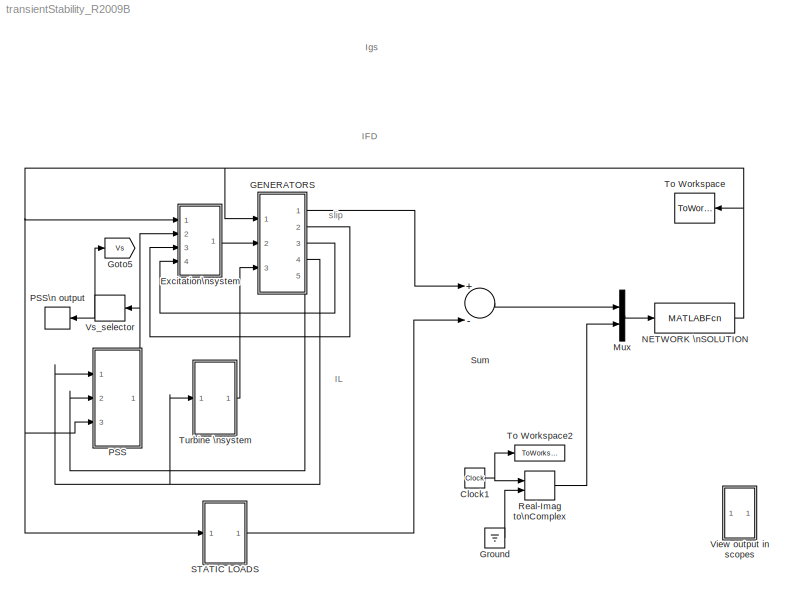
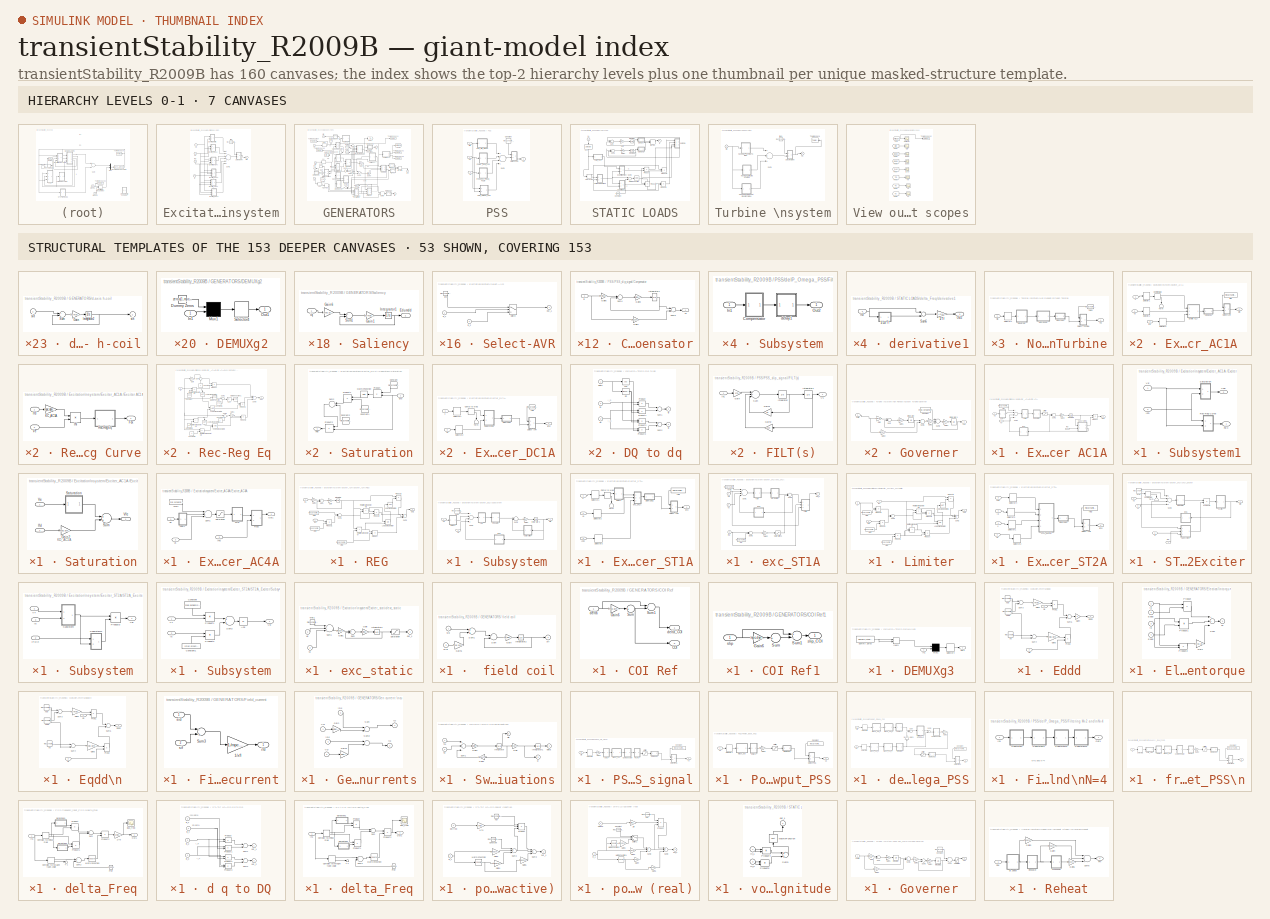
[diagram: thumbnail index - top-2 hierarchy levels (7 canvases) + 53 structural-template representatives of the remaining 153 canvases]
MODEL transientStability_R2009B
KIND model
BLOCK [Clock] Clock1
  SID = 1
BLOCK [SubSystem] Excitation\nsystem
  FunctionWithSeparateData = off
  MaskHideContents = off
  MinAlgLoopOccurrences = off
  Opaque = off
  Ports = [4, 1]
  PropExecContextOutsideSubsystem = off
  RTWSystemCode = Auto
  RequestExecContextInheritance = off
  SID = 2
BLOCK [Outport] Excitation\nsystem/Efd
  IconDisplay = Port number
  InitialOutput = 0
  SID = 494
BLOCK [SubSystem] Excitation\nsystem/Exciter_AC1A 
  FunctionWithSeparateData = off
  MaskHideContents = off
  MinAlgLoopOccurrences = off
  Opaque = off
  Ports = [3, 1]
  PropExecContextOutsideSubsystem = off
  RTWSystemCode = Auto
  RequestExecContextInheritance = off
  SID = 7
BLOCK [ComplexToMagnitudeAngle] Excitation\nsystem/Exciter_AC1A /Comp to Mag
  Ports = [1, 2]
  SID = 11
BLOCK [SubSystem] Excitation\nsystem/Exciter_AC1A /DEMUXg2
  FunctionWithSeparateData = off
  MaskHideContents = off
  MinAlgLoopOccurrences = off
  Opaque = off
  Ports = [1, 1]
  PropExecContextOutsideSubsystem = off
  RTWSystemCode = Auto
  RequestExecContextInheritance = off
  SID = 12
BLOCK [Constant] Excitation\nsystem/Exciter_AC1A /DEMUXg2/Dummy Zeros
  SID = 14
  Value = zeros(1,mpc.dynamicdata.extraVariables.nb-size(mpc.dynamicdata.exc_AC1A,1))
BLOCK [Inport] Excitation\nsystem/Exciter_AC1A /DEMUXg2/In1
  IconDisplay = Port number
  SID = 13
BLOCK [Mux] Excitation\nsystem/Exciter_AC1A /DEMUXg2/Mux1
  Inputs = [mpc.dynamicdata.extraVariables.nb-size(mpc.dynamicdata.exc_AC1A,1)  size(mpc.dynamicdata.exc_AC1A,1)]
  Ports = [2, 1]
  SID = 15
BLOCK [Outport] Excitation\nsystem/Exciter_AC1A /DEMUXg2/Out1
  IconDisplay = Port number
  SID = 17
BLOCK [Selector] Excitation\nsystem/Exciter_AC1A /DEMUXg2/Selector4
  IndexOptions = Index vector (dialog)
  Indices = mpc.dynamicdata.gen_exciterParameters.AC1A_exciterParameters.order_AC1A
  InputPortWidth = mpc.dynamicdata.extraVariables.nb
  OutputSizes = 1
  Ports = [1, 1]
  SID = 16
BLOCK [Outport] Excitation\nsystem/Exciter_AC1A /Efd
  IconDisplay = Port number
  SID = 127
BLOCK [SubSystem] Excitation\nsystem/Exciter_AC1A /Exciter AC1A
  FunctionWithSeparateData = off
  MaskHideContents = off
  MinAlgLoopOccurrences = off
  Opaque = off
  Ports = [3, 1]
  PropExecContextOutsideSubsystem = off
  RTWSystemCode = Auto
  RequestExecContextInheritance = off
  SID = 18
BLOCK [SubSystem] Excitation\nsystem/Exciter_AC1A /Exciter AC1A/ESS
  FunctionWithSeparateData = off
  MaskHideContents = off
  MinAlgLoopOccurrences = off
  Opaque = off
  Ports = [1, 1]
  PropExecContextOutsideSubsystem = off
  RTWSystemCode = Auto
  RequestExecContextInheritance = off
  SID = 22
BLOCK [Gain] Excitation\nsystem/Exciter_AC1A /Exciter AC1A/ESS/Gain3
  Gain = 1./mpc.dynamicdata.gen_exciterParameters.AC1A_exciterParameters.TF_AC1A
  SID = 24
BLOCK [Gain] Excitation\nsystem/Exciter_AC1A /Exciter AC1A/ESS/Gain4
  Gain = mpc.dynamicdata.gen_exciterParameters.AC1A_exciterParameters.KF_AC1A
  SID = 25
BLOCK [Integrator] Excitation\nsystem/Exciter_AC1A /Exciter AC1A/ESS/Integrator4
  InitialCondition = mpc.dynamicdata.gen_exciterParameters.AC1A_exciterParameters.Fst0_AC1A
  Ports = [1, 1]
  SID = 26
BLOCK [Sum] Excitation\nsystem/Exciter_AC1A /Exciter AC1A/ESS/Sum3
  Inputs = +-
  Ports = [2, 1]
  SID = 27
BLOCK [Outport] Excitation\nsystem/Exciter_AC1A /Exciter AC1A/ESS/VF1
  IconDisplay = Port number
  SID = 28
BLOCK [Inport] Excitation\nsystem/Exciter_AC1A /Exciter AC1A/ESS/vfe
  IconDisplay = Port number
  SID = 23
BLOCK [Gain] Excitation\nsystem/Exciter_AC1A /Exciter AC1A/Gain2
  Gain = 1./mpc.dynamicdata.gen_exciterParameters.AC1A_exciterParameters.TE_AC1A
  SID = 29
BLOCK [Inport] Excitation\nsystem/Exciter_AC1A /Exciter AC1A/IFD
  IconDisplay = Port number
  Port = 3
  SID = 21
BLOCK [Integrator] Excitation\nsystem/Exciter_AC1A /Exciter AC1A/Integrator3
  InitialCondition = mpc.dynamicdata.gen_exciterParameters.AC1A_exciterParameters.Ve_AC1A
  LimitOutput = on
  LowerSaturationLimit = 0.01
  Ports = [1, 1]
  SID = 30
BLOCK [Saturate] Excitation\nsystem/Exciter_AC1A /Exciter AC1A/Limiter
  LowerLimit = mpc.dynamicdata.gen_exciterParameters.AC1A_exciterParameters.VRmin_AC1A
  SID = 31
  UpperLimit = mpc.dynamicdata.gen_exciterParameters.AC1A_exciterParameters.VRmax_AC1A
BLOCK [Outport] Excitation\nsystem/Exciter_AC1A /Exciter AC1A/Out1
  IconDisplay = Port number
  SID = 115
BLOCK [Product] Excitation\nsystem/Exciter_AC1A /Exciter AC1A/Product
  Ports = [2, 1]
  SID = 32
BLOCK [SubSystem] Excitation\nsystem/Exciter_AC1A /Exciter AC1A/Regulator
  FunctionWithSeparateData = off
  MaskHideContents = off
  MinAlgLoopOccurrences = off
  Opaque = off
  Ports = [1, 1]
  PropExecContextOutsideSubsystem = off
  RTWSystemCode = Auto
  RequestExecContextInheritance = off
  SID = 33
BLOCK [Gain] Excitation\nsystem/Exciter_AC1A /Exciter AC1A/Regulator/Gain
  Gain = 1./mpc.dynamicdata.gen_exciterParameters.AC1A_exciterParameters.TA_AC1A
  SID = 35
BLOCK [Gain] Excitation\nsystem/Exciter_AC1A /Exciter AC1A/Regulator/Gain1
  Gain = mpc.dynamicdata.gen_exciterParameters.AC1A_exciterParameters.kA_AC1A
  SID = 36
BLOCK [Integrator] Excitation\nsystem/Exciter_AC1A /Exciter AC1A/Regulator/Integrator2
  InitialCondition = mpc.dynamicdata.gen_exciterParameters.AC1A_exciterParameters.VR0_AC1A
  LimitOutput = on
  LowerSaturationLimit = mpc.dynamicdata.gen_exciterParameters.AC1A_exciterParameters.VAmin_AC1A
  Ports = [1, 1]
  SID = 37
  UpperSaturationLimit = mpc.dynamicdata.gen_exciterParameters.AC1A_exciterParameters.VAmax_AC1A
BLOCK [Sum] Excitation\nsystem/Exciter_AC1A /Exciter AC1A/Regulator/Sum
  Inputs = +-
  Ports = [2, 1]
  SID = 38
BLOCK [Outport] Excitation\nsystem/Exciter_AC1A /Exciter AC1A/Regulator/VR
  IconDisplay = Port number
  SID = 39
BLOCK [Inport] Excitation\nsystem/Exciter_AC1A /Exciter AC1A/Regulator/Vin
  IconDisplay = Port number
  SID = 34
BLOCK [SubSystem] Excitation\nsystem/Exciter_AC1A /Exciter AC1A/Subsystem1
  FunctionWithSeparateData = off
  MaskHideContents = off
  MinAlgLoopOccurrences = off
  Opaque = off
  Ports = [2, 2]
  PropExecContextOutsideSubsystem = off
  RTWSystemCode = Auto
  RequestExecContextInheritance = off
  SID = 40
BLOCK [Outport] Excitation\nsystem/Exciter_AC1A /Exciter AC1A/Subsystem1/FEX
  IconDisplay = Port number
  SID = 95
BLOCK [Inport] Excitation\nsystem/Exciter_AC1A /Exciter AC1A/Subsystem1/IFD
  IconDisplay = Port number
  Port = 2
  SID = 42
BLOCK [SubSystem] Excitation\nsystem/Exciter_AC1A /Exciter AC1A/Subsystem1/Rec-Reg Curve
  FunctionWithSeparateData = off
  MaskHideContents = off
  MinAlgLoopOccurrences = off
  Opaque = off
  Ports = [2, 1]
  PropExecContextOutsideSubsystem = off
  RTWSystemCode = Auto
  RequestExecContextInheritance = off
  SID = 43
BLOCK [Outport] Excitation\nsystem/Exciter_AC1A /Exciter AC1A/Subsystem1/Rec-Reg Curve/Fex
  IconDisplay = Port number
  SID = 76
BLOCK [Product] Excitation\nsystem/Exciter_AC1A /Exciter AC1A/Subsystem1/Rec-Reg Curve/IN
  Inputs = */
  Ports = [2, 1]
  SID = 46
BLOCK [Inport] Excitation\nsystem/Exciter_AC1A /Exciter AC1A/Subsystem1/Rec-Reg Curve/Ifd
  IconDisplay = Port number
  SID = 44
BLOCK [Gain] Excitation\nsystem/Exciter_AC1A /Exciter AC1A/Subsystem1/Rec-Reg Curve/KC_AC1A
  Gain = mpc.dynamicdata.gen_exciterParameters.AC1A_exciterParameters.KC_AC1A
  SID = 47
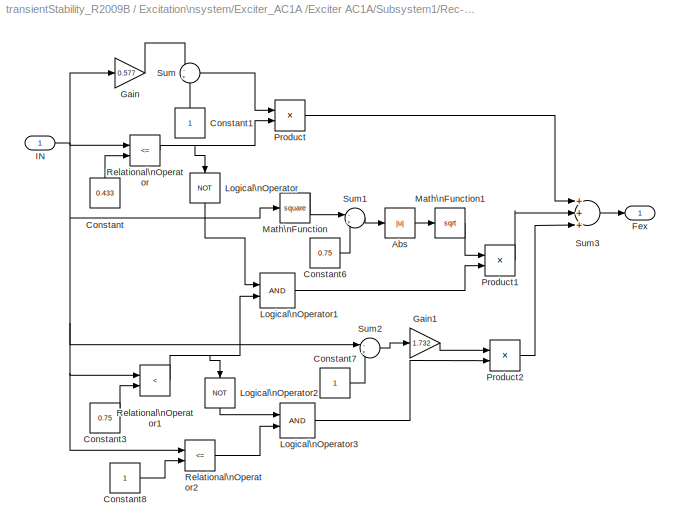
BLOCK [SubSystem] Excitation\nsystem/Exciter_AC1A /Exciter AC1A/Subsystem1/Rec-Reg Curve/Rec-Reg Eq 
  FunctionWithSeparateData = off
  MaskHideContents = off
  MinAlgLoopOccurrences = off
  Opaque = off
  Ports = [1, 1]
  PropExecContextOutsideSubsystem = off
  RTWSystemCode = Auto
  RequestExecContextInheritance = off
  SID = 48
BLOCK [Abs] Excitation\nsystem/Exciter_AC1A /Exciter AC1A/Subsystem1/Rec-Reg Curve/Rec-Reg Eq /Abs
  SID = 50
BLOCK [Constant] Excitation\nsystem/Exciter_AC1A /Exciter AC1A/Subsystem1/Rec-Reg Curve/Rec-Reg Eq /Constant
  SID = 51
  Value = 0.433
BLOCK [Constant] Excitation\nsystem/Exciter_AC1A /Exciter AC1A/Subsystem1/Rec-Reg Curve/Rec-Reg Eq /Constant1
  SID = 52
BLOCK [Constant] Excitation\nsystem/Exciter_AC1A /Exciter AC1A/Subsystem1/Rec-Reg Curve/Rec-Reg Eq /Constant3
  SID = 53
  Value = 0.75
BLOCK [Constant] Excitation\nsystem/Exciter_AC1A /Exciter AC1A/Subsystem1/Rec-Reg Curve/Rec-Reg Eq /Constant6
  SID = 54
  Value = 0.75
BLOCK [Constant] Excitation\nsystem/Exciter_AC1A /Exciter AC1A/Subsystem1/Rec-Reg Curve/Rec-Reg Eq /Constant7
  SID = 55
BLOCK [Constant] Excitation\nsystem/Exciter_AC1A /Exciter AC1A/Subsystem1/Rec-Reg Curve/Rec-Reg Eq /Constant8
  SID = 56
BLOCK [Outport] Excitation\nsystem/Exciter_AC1A /Exciter AC1A/Subsystem1/Rec-Reg Curve/Rec-Reg Eq /Fex
  IconDisplay = Port number
  SID = 75
BLOCK [Gain] Excitation\nsystem/Exciter_AC1A /Exciter AC1A/Subsystem1/Rec-Reg Curve/Rec-Reg Eq /Gain
  Gain = 0.577
  SID = 57
BLOCK [Gain] Excitation\nsystem/Exciter_AC1A /Exciter AC1A/Subsystem1/Rec-Reg Curve/Rec-Reg Eq /Gain1
  Gain = 1.732
  SID = 58
BLOCK [Inport] Excitation\nsystem/Exciter_AC1A /Exciter AC1A/Subsystem1/Rec-Reg Curve/Rec-Reg Eq /IN
  IconDisplay = Port number
  SID = 49
BLOCK [Logic] Excitation\nsystem/Exciter_AC1A /Exciter AC1A/Subsystem1/Rec-Reg Curve/Rec-Reg Eq /Logical\nOperator
  Operator = NOT
  Ports = [1, 1]
  SID = 59
BLOCK [Logic] Excitation\nsystem/Exciter_AC1A /Exciter AC1A/Subsystem1/Rec-Reg Curve/Rec-Reg Eq /Logical\nOperator1
  Ports = [2, 1]
  SID = 60
BLOCK [Logic] Excitation\nsystem/Exciter_AC1A /Exciter AC1A/Subsystem1/Rec-Reg Curve/Rec-Reg Eq /Logical\nOperator2
  Operator = NOT
  Ports = [1, 1]
  SID = 61
BLOCK [Logic] Excitation\nsystem/Exciter_AC1A /Exciter AC1A/Subsystem1/Rec-Reg Curve/Rec-Reg Eq /Logical\nOperator3
  Ports = [2, 1]
  SID = 62
BLOCK [Math] Excitation\nsystem/Exciter_AC1A /Exciter AC1A/Subsystem1/Rec-Reg Curve/Rec-Reg Eq /Math\nFunction
  Operator = square
  Ports = [1, 1]
  SID = 63
BLOCK [Math] Excitation\nsystem/Exciter_AC1A /Exciter AC1A/Subsystem1/Rec-Reg Curve/Rec-Reg Eq /Math\nFunction1
  Operator = sqrt
  Ports = [1, 1]
  SID = 64
BLOCK [Product] Excitation\nsystem/Exciter_AC1A /Exciter AC1A/Subsystem1/Rec-Reg Curve/Rec-Reg Eq /Product
  Ports = [2, 1]
  SID = 65
BLOCK [Product] Excitation\nsystem/Exciter_AC1A /Exciter AC1A/Subsystem1/Rec-Reg Curve/Rec-Reg Eq /Product1
  Ports = [2, 1]
  SID = 66
BLOCK [Product] Excitation\nsystem/Exciter_AC1A /Exciter AC1A/Subsystem1/Rec-Reg Curve/Rec-Reg Eq /Product2
  Ports = [2, 1]
  SID = 67
BLOCK [RelationalOperator] Excitation\nsystem/Exciter_AC1A /Exciter AC1A/Subsystem1/Rec-Reg Curve/Rec-Reg Eq /Relational\nOperator
  Operator = <=
  Ports = [2, 1]
  SID = 68
BLOCK [RelationalOperator] Excitation\nsystem/Exciter_AC1A /Exciter AC1A/Subsystem1/Rec-Reg Curve/Rec-Reg Eq /Relational\nOperator1
  Operator = <
  Ports = [2, 1]
  SID = 69
BLOCK [RelationalOperator] Excitation\nsystem/Exciter_AC1A /Exciter AC1A/Subsystem1/Rec-Reg Curve/Rec-Reg Eq /Relational\nOperator2
  Operator = <=
  Ports = [2, 1]
  SID = 70
BLOCK [Sum] Excitation\nsystem/Exciter_AC1A /Exciter AC1A/Subsystem1/Rec-Reg Curve/Rec-Reg Eq /Sum
  IconShape = round
  Inputs = -+
  Ports = [2, 1]
  SID = 71
BLOCK [Sum] Excitation\nsystem/Exciter_AC1A /Exciter AC1A/Subsystem1/Rec-Reg Curve/Rec-Reg Eq /Sum1
  IconShape = round
  Inputs = -+
  Ports = [2, 1]
  SID = 72
BLOCK [Sum] Excitation\nsystem/Exciter_AC1A /Exciter AC1A/Subsystem1/Rec-Reg Curve/Rec-Reg Eq /Sum2
  IconShape = round
  Inputs = -+
  Ports = [2, 1]
  SID = 73
BLOCK [Sum] Excitation\nsystem/Exciter_AC1A /Exciter AC1A/Subsystem1/Rec-Reg Curve/Rec-Reg Eq /Sum3
  Inputs = +++
  Ports = [3, 1]
  SID = 74
BLOCK [Inport] Excitation\nsystem/Exciter_AC1A /Exciter AC1A/Subsystem1/Rec-Reg Curve/Ve
  IconDisplay = Port number
  Port = 2
  SID = 45
BLOCK [SubSystem] Excitation\nsystem/Exciter_AC1A /Exciter AC1A/Subsystem1/Saturation
  FunctionWithSeparateData = off
  MaskHideContents = off
  MinAlgLoopOccurrences = off
  Opaque = off
  Ports = [2, 1]
  PropExecContextOutsideSubsystem = off
  RTWSystemCode = Auto
  RequestExecContextInheritance = off
  SID = 77
BLOCK [Gain] Excitation\nsystem/Exciter_AC1A /Exciter AC1A/Subsystem1/Saturation/Gain2
  Gain = mpc.dynamicdata.gen_exciterParameters.AC1A_exciterParameters.KD_AC1A
  SID = 80
BLOCK [Inport] Excitation\nsystem/Exciter_AC1A /Exciter AC1A/Subsystem1/Saturation/Ifd
  IconDisplay = Port number
  Port = 2
  SID = 79
BLOCK [SubSystem] Excitation\nsystem/Exciter_AC1A /Exciter AC1A/Subsystem1/Saturation/Saturation
  FunctionWithSeparateData = off
  MaskHideContents = off
  MinAlgLoopOccurrences = off
  Opaque = off
  Ports = [1, 1]
  PropExecContextOutsideSubsystem = off
  RTWSystemCode = Auto
  RequestExecContextInheritance = off
  SID = 81
BLOCK [Constant] Excitation\nsystem/Exciter_AC1A /Exciter AC1A/Subsystem1/Saturation/Saturation/Constant
  SID = 83
  Value = mpc.dynamicdata.gen_exciterParameters.AC1A_exciterParameters.B1
BLOCK [Constant] Excitation\nsystem/Exciter_AC1A /Exciter AC1A/Subsystem1/Saturation/Saturation/Constant1
  SID = 84
  Value = mpc.dynamicdata.gen_exciterParameters.AC1A_exciterParameters.A1
BLOCK [Constant] Excitation\nsystem/Exciter_AC1A /Exciter AC1A/Subsystem1/Saturation/Saturation/Constant2
  SID = 85
  Value = mpc.dynamicdata.gen_exciterParameters.AC1A_exciterParameters.KE_AC1A
BLOCK [Math] Excitation\nsystem/Exciter_AC1A /Exciter AC1A/Subsystem1/Saturation/Saturation/Math\nFunction
  Ports = [1, 1]
  SID = 86
BLOCK [Product] Excitation\nsystem/Exciter_AC1A /Exciter AC1A/Subsystem1/Saturation/Saturation/Product
  Ports = [2, 1]
  SID = 87
BLOCK [Product] Excitation\nsystem/Exciter_AC1A /Exciter AC1A/Subsystem1/Saturation/Saturation/Product1
  Ports = [2, 1]
  SID = 88
BLOCK [Product] Excitation\nsystem/Exciter_AC1A /Exciter AC1A/Subsystem1/Saturation/Saturation/Product2
  Ports = [2, 1]
  SID = 89
BLOCK [Sum] Excitation\nsystem/Exciter_AC1A /Exciter AC1A/Subsystem1/Saturation/Saturation/Sum2
  Ports = [2, 1]
  SID = 90
BLOCK [Inport] Excitation\nsystem/Exciter_AC1A /Exciter AC1A/Subsystem1/Saturation/Saturation/VE
  IconDisplay = Port number
  SID = 82
BLOCK [Outport] Excitation\nsystem/Exciter_AC1A /Exciter AC1A/Subsystem1/Saturation/Saturation/VRb
  IconDisplay = Port number
  SID = 91
BLOCK [Sum] Excitation\nsystem/Exciter_AC1A /Exciter AC1A/Subsystem1/Saturation/Sum
  Ports = [2, 1]
  SID = 92
BLOCK [Inport] Excitation\nsystem/Exciter_AC1A /Exciter AC1A/Subsystem1/Saturation/Ve
  IconDisplay = Port number
  SID = 78
BLOCK [Outport] Excitation\nsystem/Exciter_AC1A /Exciter AC1A/Subsystem1/Saturation/Vfe
  IconDisplay = Port number
  SID = 93
BLOCK [Inport] Excitation\nsystem/Exciter_AC1A /Exciter AC1A/Subsystem1/VE
  IconDisplay = Port number
  SID = 41
BLOCK [Outport] Excitation\nsystem/Exciter_AC1A /Exciter AC1A/Subsystem1/VFE
  IconDisplay = Port number
  Port = 2
  SID = 96
BLOCK [Sum] Excitation\nsystem/Exciter_AC1A /Exciter AC1A/Sum1
  Inputs = +--+
  Ports = [4, 1]
  SID = 97
BLOCK [Sum] Excitation\nsystem/Exciter_AC1A /Exciter AC1A/Sum2
  Inputs = +-
  Ports = [2, 1]
  SID = 98
BLOCK [SubSystem] Excitation\nsystem/Exciter_AC1A /Exciter AC1A/TGR
  FunctionWithSeparateData = off
  MaskHideContents = off
  MinAlgLoopOccurrences = off
  Opaque = off
  Ports = [1, 1]
  PropExecContextOutsideSubsystem = off
  RTWSystemCode = Auto
  RequestExecContextInheritance = off
  SID = 99
BLOCK [Gain] Excitation\nsystem/Exciter_AC1A /Exciter AC1A/TGR/Gain3
  Gain = 1./mpc.dynamicdata.gen_exciterParameters.AC1A_exciterParameters.TB_AC1A
  SID = 101
BLOCK [Gain] Excitation\nsystem/Exciter_AC1A /Exciter AC1A/TGR/Gain4
  Gain = mpc.dynamicdata.gen_exciterParameters.AC1A_exciterParameters.TC_AC1A./mpc.dynamicdata.gen_exciterParameters.AC1A_exciterParameters.TB_AC1A
  SID = 102
BLOCK [Gain] Excitation\nsystem/Exciter_AC1A /Exciter AC1A/TGR/Gain5
  Gain = 1-mpc.dynamicdata.gen_exciterParameters.AC1A_exciterParameters.TC_AC1A./mpc.dynamicdata.gen_exciterParameters.AC1A_exciterParameters.TB_AC1A
  SID = 103
BLOCK [Integrator] Excitation\nsystem/Exciter_AC1A /Exciter AC1A/TGR/Integrator4
  InitialCondition = mpc.dynamicdata.gen_exciterParameters.AC1A_exciterParameters.Tgr0_AC1A
  Ports = [1, 1]
  SID = 104
BLOCK [Sum] Excitation\nsystem/Exciter_AC1A /Exciter AC1A/TGR/Sum3
  Ports = [2, 1]
  SID = 105
BLOCK [Sum] Excitation\nsystem/Exciter_AC1A /Exciter AC1A/TGR/Sum4
  Inputs = +-
  Ports = [2, 1]
  SID = 106
BLOCK [Inport] Excitation\nsystem/Exciter_AC1A /Exciter AC1A/TGR/Ver
  IconDisplay = Port number
  SID = 100
BLOCK [Outport] Excitation\nsystem/Exciter_AC1A /Exciter AC1A/TGR/Vtgr
  IconDisplay = Port number
  SID = 107
BLOCK [Inport] Excitation\nsystem/Exciter_AC1A /Exciter AC1A/Vg
  IconDisplay = Port number
  SID = 19
BLOCK [Constant] Excitation\nsystem/Exciter_AC1A /Exciter AC1A/Vref
  SID = 108
  Value = mpc.dynamicdata.gen_exciterParameters.AC1A_exciterParameters.Vref_AC1A
BLOCK [Inport] Excitation\nsystem/Exciter_AC1A /Exciter AC1A/Vs
  IconDisplay = Port number
  Port = 2
  SID = 20
BLOCK [SubSystem] Excitation\nsystem/Exciter_AC1A /Exciter AC1A/delay1
  FunctionWithSeparateData = off
  MaskHideContents = off
  MinAlgLoopOccurrences = off
  Opaque = off
  Ports = [1, 1]
  PropExecContextOutsideSubsystem = off
  RTWSystemCode = Auto
  RequestExecContextInheritance = off
  SID = 109
BLOCK [Gain] Excitation\nsystem/Exciter_AC1A /Exciter AC1A/delay1/Gain
  Gain = 1./mpc.dynamicdata.gen_exciterParameters.AC1A_exciterParameters.Tr_AC1A
  SID = 111
BLOCK [Integrator] Excitation\nsystem/Exciter_AC1A /Exciter AC1A/delay1/Integrator2
  InitialCondition = mpc.dynamicdata.extraVariables.lfl(mpc.dynamicdata.exc_AC1A(:,1),2)
  Ports = [1, 1]
  SID = 112
BLOCK [Outport] Excitation\nsystem/Exciter_AC1A /Exciter AC1A/delay1/Out1
  IconDisplay = Port number
  SID = 114
BLOCK [Sum] Excitation\nsystem/Exciter_AC1A /Exciter AC1A/delay1/Sum
  Inputs = +-
  Ports = [2, 1]
  SID = 113
BLOCK [Inport] Excitation\nsystem/Exciter_AC1A /Exciter AC1A/delay1/Vin
  IconDisplay = Port number
  SID = 110
BLOCK [Inport] Excitation\nsystem/Exciter_AC1A /IFD
  IconDisplay = Port number
  Port = 3
  SID = 10
BLOCK [SubSystem] Excitation\nsystem/Exciter_AC1A /Select-AVR
  FunctionWithSeparateData = off
  MaskHideContents = off
  MinAlgLoopOccurrences = off
  Opaque = off
  Ports = [2, 1]
  PropExecContextOutsideSubsystem = off
  RTWSystemCode = Auto
  RequestExecContextInheritance = off
  SID = 116
  ShowPortLabels = none
BLOCK [Switch] Excitation\nsystem/Exciter_AC1A /Select-AVR/Switch
  SID = 119
  Threshold = 1
BLOCK [Inport] Excitation\nsystem/Exciter_AC1A /Select-AVR/in_1
  IconDisplay = Port number
  SID = 117
BLOCK [Inport] Excitation\nsystem/Exciter_AC1A /Select-AVR/in_2
  IconDisplay = Port number
  Port = 2
  SID = 118
BLOCK [Outport] Excitation\nsystem/Exciter_AC1A /Select-AVR/out_1
  IconDisplay = Port number
  InitialOutput = 0
  SID = 121
BLOCK [Constant] Excitation\nsystem/Exciter_AC1A /Select-AVR/zeros
  SID = 120
  Value = zeros(1,mpc.dynamicdata.extraVariables.nb)
BLOCK [Selector] Excitation\nsystem/Exciter_AC1A /Selector1
  IndexOptions = Index vector (dialog)
  Indices = mpc.dynamicdata.exc_AC1A(:,1)
  InputPortWidth = mpc.dynamicdata.extraVariables.nb
  OutputSizes = 1
  Ports = [1, 1]
  SID = 122
BLOCK [Selector] Excitation\nsystem/Exciter_AC1A /Selector2
  IndexOptions = Index vector (dialog)
  Indices = mpc.dynamicdata.exc_AC1A(:,1)
  InputPortWidth = mpc.dynamicdata.extraVariables.nb
  OutputSizes = 1
  Ports = [1, 1]
  SID = 123
BLOCK [Selector] Excitation\nsystem/Exciter_AC1A /Selector3
  IndexOptions = Index vector (dialog)
  Indices = mpc.dynamicdata.exc_AC1A(:,1)
  InputPortWidth = mpc.dynamicdata.extraVariables.nb
  OutputSizes = 1
  Ports = [1, 1]
  SID = 124
BLOCK [Terminator] Excitation\nsystem/Exciter_AC1A /Term
  SID = 125
BLOCK [Inport] Excitation\nsystem/Exciter_AC1A /V
  IconDisplay = Port number
  SID = 8
BLOCK [Inport] Excitation\nsystem/Exciter_AC1A /Vs
  IconDisplay = Port number
  Port = 2
  SID = 9
BLOCK [Constant] Excitation\nsystem/Exciter_AC1A /flag
  SID = 126
  Value = mpc.dynamicdata.gen_exciterParameters.SL_AC1A
BLOCK [SubSystem] Excitation\nsystem/Exciter_AC4A
  FunctionWithSeparateData = off
  MaskHideContents = off
  MinAlgLoopOccurrences = off
  Opaque = off
  Ports = [3, 1]
  PropExecContextOutsideSubsystem = off
  RTWSystemCode = Auto
  RequestExecContextInheritance = off
  SID = 128
BLOCK [ComplexToMagnitudeAngle] Excitation\nsystem/Exciter_AC4A/Comp to Mag
  Ports = [1, 2]
  SID = 132
BLOCK [SubSystem] Excitation\nsystem/Exciter_AC4A/DEMUXg2
  FunctionWithSeparateData = off
  MaskHideContents = off
  MinAlgLoopOccurrences = off
  Opaque = off
  Ports = [1, 1]
  PropExecContextOutsideSubsystem = off
  RTWSystemCode = Auto
  RequestExecContextInheritance = off
  SID = 133
BLOCK [Constant] Excitation\nsystem/Exciter_AC4A/DEMUXg2/Dummy Zeros
  SID = 135
  Value = zeros(1,mpc.dynamicdata.extraVariables.nb-size(mpc.dynamicdata.exc_AC4A,1))
BLOCK [Inport] Excitation\nsystem/Exciter_AC4A/DEMUXg2/In1
  IconDisplay = Port number
  SID = 134
BLOCK [Mux] Excitation\nsystem/Exciter_AC4A/DEMUXg2/Mux1
  Inputs = [mpc.dynamicdata.extraVariables.nb-size(mpc.dynamicdata.exc_AC4A,1)  size(mpc.dynamicdata.exc_AC4A,1)]
  Ports = [2, 1]
  SID = 136
BLOCK [Outport] Excitation\nsystem/Exciter_AC4A/DEMUXg2/Out1
  IconDisplay = Port number
  SID = 138
BLOCK [Selector] Excitation\nsystem/Exciter_AC4A/DEMUXg2/Selector4
  IndexOptions = Index vector (dialog)
  Indices = mpc.dynamicdata.gen_exciterParameters.AC4A_exciterParameters.order_AC4A
  InputPortWidth = mpc.dynamicdata.extraVariables.nb
  OutputSizes = 1
  Ports = [1, 1]
  SID = 137
BLOCK [Outport] Excitation\nsystem/Exciter_AC4A/Efd
  IconDisplay = Port number
  SID = 194
BLOCK [SubSystem] Excitation\nsystem/Exciter_AC4A/Exciter_AC4A
  FunctionWithSeparateData = off
  MaskHideContents = off
  MinAlgLoopOccurrences = off
  Opaque = off
  Ports = [3, 1]
  PropExecContextOutsideSubsystem = off
  RTWSystemCode = Auto
  RequestExecContextInheritance = off
  SID = 139
BLOCK [Inport] Excitation\nsystem/Exciter_AC4A/Exciter_AC4A/IFD
  IconDisplay = Port number
  Port = 3
  SID = 142
BLOCK [Outport] Excitation\nsystem/Exciter_AC4A/Exciter_AC4A/Out1
  IconDisplay = Port number
  SID = 182
BLOCK [SubSystem] Excitation\nsystem/Exciter_AC4A/Exciter_AC4A/REG
  FunctionWithSeparateData = off
  MaskHideContents = off
  MinAlgLoopOccurrences = off
  Opaque = off
  Ports = [2, 1]
  PropExecContextOutsideSubsystem = off
  RTWSystemCode = Auto
  RequestExecContextInheritance = off
  SID = 143
BLOCK [Gain] Excitation\nsystem/Exciter_AC4A/Exciter_AC4A/REG/Gain
  Gain = 1./mpc.dynamicdata.gen_exciterParameters.AC4A_exciterParameters.TA_AC4A
  SID = 146
BLOCK [Gain] Excitation\nsystem/Exciter_AC4A/Exciter_AC4A/REG/Gain1
  Gain = mpc.dynamicdata.gen_exciterParameters.AC4A_exciterParameters.kA_AC4A
  SID = 147
BLOCK [Inport] Excitation\nsystem/Exciter_AC4A/Exciter_AC4A/REG/IFD
  IconDisplay = Port number
  Port = 2
  SID = 145
BLOCK [Inport] Excitation\nsystem/Exciter_AC4A/Exciter_AC4A/REG/In1
  IconDisplay = Port number
  SID = 144
BLOCK [Integrator] Excitation\nsystem/Exciter_AC4A/Exciter_AC4A/REG/Integrator2
  InitialCondition = mpc.dynamicdata.gen_exciterParameters.AC4A_exciterParameters.Efd0_AC4A
  Ports = [1, 1]
  SID = 148
BLOCK [Logic] Excitation\nsystem/Exciter_AC4A/Exciter_AC4A/REG/Logical\nOperator
  Operator = OR
  Ports = [2, 1]
  SID = 149
BLOCK [Logic] Excitation\nsystem/Exciter_AC4A/Exciter_AC4A/REG/Logical\nOperator1
  Operator = NOT
  Ports = [1, 1]
  SID = 150
BLOCK [Outport] Excitation\nsystem/Exciter_AC4A/Exciter_AC4A/REG/Out1
  IconDisplay = Port number
  SID = 163
BLOCK [Product] Excitation\nsystem/Exciter_AC4A/Exciter_AC4A/REG/Product
  Ports = [2, 1]
  SID = 151
BLOCK [Product] Excitation\nsystem/Exciter_AC4A/Exciter_AC4A/REG/Product1
  Ports = [2, 1]
  SID = 152
BLOCK [Product] Excitation\nsystem/Exciter_AC4A/Exciter_AC4A/REG/Product2
  Ports = [2, 1]
  SID = 153
BLOCK [Product] Excitation\nsystem/Exciter_AC4A/Exciter_AC4A/REG/Product3
  Ports = [2, 1]
  SID = 154
BLOCK [RelationalOperator] Excitation\nsystem/Exciter_AC4A/Exciter_AC4A/REG/Relational\nOperator
  Operator = <
  Ports = [2, 1]
  SID = 155
BLOCK [RelationalOperator] Excitation\nsystem/Exciter_AC4A/Exciter_AC4A/REG/Relational\nOperator1
  Operator = >
  Ports = [2, 1]
  SID = 156
BLOCK [Sum] Excitation\nsystem/Exciter_AC4A/Exciter_AC4A/REG/Sum
  Inputs = +-
  Ports = [2, 1]
  SID = 157
BLOCK [Sum] Excitation\nsystem/Exciter_AC4A/Exciter_AC4A/REG/Sum1
  Inputs = +-
  Ports = [2, 1]
  SID = 158
BLOCK [Sum] Excitation\nsystem/Exciter_AC4A/Exciter_AC4A/REG/Sum2
  Inputs = +++
  Ports = [3, 1]
  SID = 159
BLOCK [Constant] Excitation\nsystem/Exciter_AC4A/Exciter_AC4A/REG/Vref1
  SID = 160
  Value = mpc.dynamicdata.gen_exciterParameters.AC4A_exciterParameters.VRmin_AC4A
BLOCK [Constant] Excitation\nsystem/Exciter_AC4A/Exciter_AC4A/REG/Vref2
  SID = 161
  Value = mpc.dynamicdata.gen_exciterParameters.AC4A_exciterParameters.KC_AC4A
BLOCK [Constant] Excitation\nsystem/Exciter_AC4A/Exciter_AC4A/REG/Vref3
  SID = 162
  Value = mpc.dynamicdata.gen_exciterParameters.AC4A_exciterParameters.VRmax_AC4A
BLOCK [Saturate] Excitation\nsystem/Exciter_AC4A/Exciter_AC4A/Saturation
  LowerLimit = mpc.dynamicdata.gen_exciterParameters.AC4A_exciterParameters.VImin_AC4A
  SID = 164
  UpperLimit = mpc.dynamicdata.gen_exciterParameters.AC4A_exciterParameters.VImax_AC4A
BLOCK [Sum] Excitation\nsystem/Exciter_AC4A/Exciter_AC4A/Sum1
  Inputs = +-+
  Ports = [3, 1]
  SID = 165
BLOCK [SubSystem] Excitation\nsystem/Exciter_AC4A/Exciter_AC4A/TGR
  FunctionWithSeparateData = off
  MaskHideContents = off
  MinAlgLoopOccurrences = off
  Opaque = off
  Ports = [1, 1]
  PropExecContextOutsideSubsystem = off
  RTWSystemCode = Auto
  RequestExecContextInheritance = off
  SID = 166
BLOCK [Gain] Excitation\nsystem/Exciter_AC4A/Exciter_AC4A/TGR/Gain3
  Gain = 1./mpc.dynamicdata.gen_exciterParameters.AC4A_exciterParameters.TB_AC4A
  SID = 168
BLOCK [Gain] Excitation\nsystem/Exciter_AC4A/Exciter_AC4A/TGR/Gain4
  Gain = mpc.dynamicdata.gen_exciterParameters.AC4A_exciterParameters.TC_AC4A./mpc.dynamicdata.gen_exciterParameters.AC4A_exciterParameters.TB_AC4A
  SID = 169
BLOCK [Gain] Excitation\nsystem/Exciter_AC4A/Exciter_AC4A/TGR/Gain5
  Gain = 1-mpc.dynamicdata.gen_exciterParameters.AC4A_exciterParameters.TC_AC4A./mpc.dynamicdata.gen_exciterParameters.AC4A_exciterParameters.TB_AC4A
  SID = 170
BLOCK [Integrator] Excitation\nsystem/Exciter_AC4A/Exciter_AC4A/TGR/Integrator4
  InitialCondition = mpc.dynamicdata.gen_exciterParameters.AC4A_exciterParameters.Tgr0_AC4A
  Ports = [1, 1]
  SID = 171
BLOCK [Sum] Excitation\nsystem/Exciter_AC4A/Exciter_AC4A/TGR/Sum3
  Ports = [2, 1]
  SID = 172
BLOCK [Sum] Excitation\nsystem/Exciter_AC4A/Exciter_AC4A/TGR/Sum4
  Inputs = +-
  Ports = [2, 1]
  SID = 173
BLOCK [Outport] Excitation\nsystem/Exciter_AC4A/Exciter_AC4A/TGR/V3
  IconDisplay = Port number
  SID = 174
BLOCK [Inport] Excitation\nsystem/Exciter_AC4A/Exciter_AC4A/TGR/Ver
  IconDisplay = Port number
  SID = 167
BLOCK [Inport] Excitation\nsystem/Exciter_AC4A/Exciter_AC4A/Vg
  IconDisplay = Port number
  SID = 140
BLOCK [Constant] Excitation\nsystem/Exciter_AC4A/Exciter_AC4A/Vref1
  SID = 175
  Value = mpc.dynamicdata.gen_exciterParameters.AC4A_exciterParameters.Vref_AC4A
BLOCK [Inport] Excitation\nsystem/Exciter_AC4A/Exciter_AC4A/Vs
  IconDisplay = Port number
  Port = 2
  SID = 141
BLOCK [SubSystem] Excitation\nsystem/Exciter_AC4A/Exciter_AC4A/delay1
  FunctionWithSeparateData = off
  MaskHideContents = off
  MinAlgLoopOccurrences = off
  Opaque = off
  Ports = [1, 1]
  PropExecContextOutsideSubsystem = off
  RTWSystemCode = Auto
  RequestExecContextInheritance = off
  SID = 176
BLOCK [Gain] Excitation\nsystem/Exciter_AC4A/Exciter_AC4A/delay1/Gain
  Gain = 1./mpc.dynamicdata.gen_exciterParameters.AC4A_exciterParameters.Tr_AC4A
  SID = 178
BLOCK [Integrator] Excitation\nsystem/Exciter_AC4A/Exciter_AC4A/delay1/Integrator2
  InitialCondition = mpc.dynamicdata.extraVariables.lfl(mpc.dynamicdata.exc_AC4A(:,1),2)
  Ports = [1, 1]
  SID = 179
BLOCK [Outport] Excitation\nsystem/Exciter_AC4A/Exciter_AC4A/delay1/Out1
  IconDisplay = Port number
  SID = 181
BLOCK [Sum] Excitation\nsystem/Exciter_AC4A/Exciter_AC4A/delay1/Sum
  Inputs = +-
  Ports = [2, 1]
  SID = 180
BLOCK [Inport] Excitation\nsystem/Exciter_AC4A/Exciter_AC4A/delay1/Vin
  IconDisplay = Port number
  SID = 177
BLOCK [Inport] Excitation\nsystem/Exciter_AC4A/IFD
  IconDisplay = Port number
  Port = 3
  SID = 131
BLOCK [SubSystem] Excitation\nsystem/Exciter_AC4A/Select-AVR
  FunctionWithSeparateData = off
  MaskHideContents = off
  MinAlgLoopOccurrences = off
  Opaque = off
  Ports = [2, 1]
  PropExecContextOutsideSubsystem = off
  RTWSystemCode = Auto
  RequestExecContextInheritance = off
  SID = 183
  ShowPortLabels = none
BLOCK [Switch] Excitation\nsystem/Exciter_AC4A/Select-AVR/Switch
  SID = 186
  Threshold = 1
BLOCK [Inport] Excitation\nsystem/Exciter_AC4A/Select-AVR/in_1
  IconDisplay = Port number
  SID = 184
BLOCK [Inport] Excitation\nsystem/Exciter_AC4A/Select-AVR/in_2
  IconDisplay = Port number
  Port = 2
  SID = 185
BLOCK [Outport] Excitation\nsystem/Exciter_AC4A/Select-AVR/out_1
  IconDisplay = Port number
  InitialOutput = 0
  SID = 188
BLOCK [Constant] Excitation\nsystem/Exciter_AC4A/Select-AVR/zeros
  SID = 187
  Value = zeros(1,mpc.dynamicdata.extraVariables.nb)
BLOCK [Selector] Excitation\nsystem/Exciter_AC4A/Selector1
  IndexOptions = Index vector (dialog)
  Indices = mpc.dynamicdata.exc_AC4A(:,1)
  InputPortWidth = mpc.dynamicdata.extraVariables.nb
  OutputSizes = 1
  Ports = [1, 1]
  SID = 189
BLOCK [Selector] Excitation\nsystem/Exciter_AC4A/Selector2
  IndexOptions = Index vector (dialog)
  Indices = mpc.dynamicdata.exc_AC4A(:,1)
  InputPortWidth = mpc.dynamicdata.extraVariables.nb
  OutputSizes = 1
  Ports = [1, 1]
  SID = 190
BLOCK [Selector] Excitation\nsystem/Exciter_AC4A/Selector3
  IndexOptions = Index vector (dialog)
  Indices = mpc.dynamicdata.exc_AC4A(:,1)
  InputPortWidth = mpc.dynamicdata.extraVariables.nb
  OutputSizes = 1
  Ports = [1, 1]
  SID = 191
BLOCK [Terminator] Excitation\nsystem/Exciter_AC4A/Term
  SID = 192
BLOCK [Inport] Excitation\nsystem/Exciter_AC4A/V
  IconDisplay = Port number
  SID = 129
BLOCK [Inport] Excitation\nsystem/Exciter_AC4A/Vs
  IconDisplay = Port number
  Port = 2
  SID = 130
BLOCK [Constant] Excitation\nsystem/Exciter_AC4A/flag
  SID = 193
  Value = mpc.dynamicdata.gen_exciterParameters.SL_AC4A
BLOCK [SubSystem] Excitation\nsystem/Exciter_DC1A
  FunctionWithSeparateData = off
  MaskHideContents = off
  MinAlgLoopOccurrences = off
  Opaque = off
  Ports = [2, 1]
  PropExecContextOutsideSubsystem = off
  RTWSystemCode = Auto
  RequestExecContextInheritance = off
  SID = 195
BLOCK [ComplexToMagnitudeAngle] Excitation\nsystem/Exciter_DC1A/Comp to Mag
  Ports = [1, 2]
  SID = 198
BLOCK [SubSystem] Excitation\nsystem/Exciter_DC1A/DEMUXg2
  FunctionWithSeparateData = off
  MaskHideContents = off
  MinAlgLoopOccurrences = off
  Opaque = off
  Ports = [1, 1]
  PropExecContextOutsideSubsystem = off
  RTWSystemCode = Auto
  RequestExecContextInheritance = off
  SID = 199
BLOCK [Constant] Excitation\nsystem/Exciter_DC1A/DEMUXg2/Dummy Zeros
  SID = 201
  Value = zeros(1,mpc.dynamicdata.extraVariables.nb-size(mpc.dynamicdata.exc_DC1A,1))
BLOCK [Inport] Excitation\nsystem/Exciter_DC1A/DEMUXg2/In1
  IconDisplay = Port number
  SID = 200
BLOCK [Mux] Excitation\nsystem/Exciter_DC1A/DEMUXg2/Mux1
  Inputs = [mpc.dynamicdata.extraVariables.nb-size(mpc.dynamicdata.exc_DC1A,1)  size(mpc.dynamicdata.exc_DC1A,1)]
  Ports = [2, 1]
  SID = 202
BLOCK [Outport] Excitation\nsystem/Exciter_DC1A/DEMUXg2/Out1
  IconDisplay = Port number
  SID = 204
BLOCK [Selector] Excitation\nsystem/Exciter_DC1A/DEMUXg2/Selector4
  IndexOptions = Index vector (dialog)
  Indices = mpc.dynamicdata.gen_exciterParameters.DC1A_exciterParameters.order_DC1A
  InputPortWidth = mpc.dynamicdata.extraVariables.nb
  OutputSizes = 1
  Ports = [1, 1]
  SID = 203
BLOCK [Outport] Excitation\nsystem/Exciter_DC1A/Efd
  IconDisplay = Port number
  SID = 264
BLOCK [SubSystem] Excitation\nsystem/Exciter_DC1A/Select-AVR
  FunctionWithSeparateData = off
  MaskHideContents = off
  MinAlgLoopOccurrences = off
  Opaque = off
  Ports = [2, 1]
  PropExecContextOutsideSubsystem = off
  RTWSystemCode = Auto
  RequestExecContextInheritance = off
  SID = 205
  ShowPortLabels = none
BLOCK [Switch] Excitation\nsystem/Exciter_DC1A/Select-AVR/Switch
  SID = 208
  Threshold = 1
BLOCK [Inport] Excitation\nsystem/Exciter_DC1A/Select-AVR/in_1
  IconDisplay = Port number
  SID = 206
BLOCK [Inport] Excitation\nsystem/Exciter_DC1A/Select-AVR/in_2
  IconDisplay = Port number
  Port = 2
  SID = 207
BLOCK [Outport] Excitation\nsystem/Exciter_DC1A/Select-AVR/out_1
  IconDisplay = Port number
  InitialOutput = 0
  SID = 210
BLOCK [Constant] Excitation\nsystem/Exciter_DC1A/Select-AVR/zeros
  SID = 209
  Value = zeros(1,mpc.dynamicdata.extraVariables.nb)
BLOCK [Selector] Excitation\nsystem/Exciter_DC1A/Selector1
  IndexOptions = Index vector (dialog)
  Indices = mpc.dynamicdata.exc_DC1A(:,1)
  InputPortWidth = mpc.dynamicdata.extraVariables.nb
  OutputSizes = 1
  Ports = [1, 1]
  SID = 211
BLOCK [Selector] Excitation\nsystem/Exciter_DC1A/Selector2
  IndexOptions = Index vector (dialog)
  Indices = mpc.dynamicdata.exc_DC1A(:,1)
  InputPortWidth = mpc.dynamicdata.extraVariables.nb
  OutputSizes = 1
  Ports = [1, 1]
  SID = 212
BLOCK [SubSystem] Excitation\nsystem/Exciter_DC1A/Subsystem
  FunctionWithSeparateData = off
  MaskHideContents = off
  MinAlgLoopOccurrences = off
  Opaque = off
  Ports = [2, 1]
  PropExecContextOutsideSubsystem = off
  RTWSystemCode = Auto
  RequestExecContextInheritance = off
  SID = 213
BLOCK [SubSystem] Excitation\nsystem/Exciter_DC1A/Subsystem/ESS
  FunctionWithSeparateData = off
  MaskHideContents = off
  MinAlgLoopOccurrences = off
  Opaque = off
  Ports = [1, 1]
  PropExecContextOutsideSubsystem = off
  RTWSystemCode = Auto
  RequestExecContextInheritance = off
  SID = 216
BLOCK [Inport] Excitation\nsystem/Exciter_DC1A/Subsystem/ESS/Efd
  IconDisplay = Port number
  SID = 217
BLOCK [Gain] Excitation\nsystem/Exciter_DC1A/Subsystem/ESS/Gain3
  Gain = 1./mpc.dynamicdata.gen_exciterParameters.DC1A_exciterParameters.TF_DC1A
  SID = 218
BLOCK [Gain] Excitation\nsystem/Exciter_DC1A/Subsystem/ESS/Gain4
  Gain = mpc.dynamicdata.gen_exciterParameters.DC1A_exciterParameters.KF_DC1A
  SID = 219
BLOCK [Integrator] Excitation\nsystem/Exciter_DC1A/Subsystem/ESS/Integrator4
  InitialCondition = mpc.dynamicdata.gen_exciterParameters.DC1A_exciterParameters.Fst0_DC1A
  Ports = [1, 1]
  SID = 220
BLOCK [Sum] Excitation\nsystem/Exciter_DC1A/Subsystem/ESS/Sum3
  Inputs = +-
  Ports = [2, 1]
  SID = 221
BLOCK [Outport] Excitation\nsystem/Exciter_DC1A/Subsystem/ESS/VF
  IconDisplay = Port number
  SID = 222
BLOCK [Outport] Excitation\nsystem/Exciter_DC1A/Subsystem/Efd
  IconDisplay = Port number
  SID = 261
BLOCK [Gain] Excitation\nsystem/Exciter_DC1A/Subsystem/Gain2
  Gain = 1./mpc.dynamicdata.gen_exciterParameters.DC1A_exciterParameters.TE_DC1A
  SID = 223
BLOCK [Integrator] Excitation\nsystem/Exciter_DC1A/Subsystem/Integrator3
  InitialCondition = mpc.dynamicdata.gen_exciterParameters.DC1A_exciterParameters.Efd0_DC1A
  Ports = [1, 1]
  SID = 224
BLOCK [SubSystem] Excitation\nsystem/Exciter_DC1A/Subsystem/Regulator
  FunctionWithSeparateData = off
  MaskHideContents = off
  MinAlgLoopOccurrences = off
  Opaque = off
  Ports = [1, 1]
  PropExecContextOutsideSubsystem = off
  RTWSystemCode = Auto
  RequestExecContextInheritance = off
  SID = 225
BLOCK [Gain] Excitation\nsystem/Exciter_DC1A/Subsystem/Regulator/Gain
  Gain = 1./mpc.dynamicdata.gen_exciterParameters.DC1A_exciterParameters.TA_DC1A
  SID = 227
BLOCK [Gain] Excitation\nsystem/Exciter_DC1A/Subsystem/Regulator/Gain1
  Gain = mpc.dynamicdata.gen_exciterParameters.DC1A_exciterParameters.KA_DC1A
  SID = 228
BLOCK [Integrator] Excitation\nsystem/Exciter_DC1A/Subsystem/Regulator/Integrator2
  InitialCondition = mpc.dynamicdata.gen_exciterParameters.DC1A_exciterParameters.VR0_DC1A
  LimitOutput = on
  LowerSaturationLimit = mpc.dynamicdata.gen_exciterParameters.DC1A_exciterParameters.VRmin_DC1A
  Ports = [1, 1]
  SID = 229
  UpperSaturationLimit = mpc.dynamicdata.gen_exciterParameters.DC1A_exciterParameters.VRmax_DC1A
BLOCK [Outport] Excitation\nsystem/Exciter_DC1A/Subsystem/Regulator/Out1
  IconDisplay = Port number
  SID = 231
BLOCK [Sum] Excitation\nsystem/Exciter_DC1A/Subsystem/Regulator/Sum
  Inputs = +-
  Ports = [2, 1]
  SID = 230
BLOCK [Inport] Excitation\nsystem/Exciter_DC1A/Subsystem/Regulator/Vin
  IconDisplay = Port number
  SID = 226
BLOCK [SubSystem] Excitation\nsystem/Exciter_DC1A/Subsystem/Saturation
  FunctionWithSeparateData = off
  MaskHideContents = off
  MinAlgLoopOccurrences = off
  Opaque = off
  Ports = [1, 1]
  PropExecContextOutsideSubsystem = off
  RTWSystemCode = Auto
  RequestExecContextInheritance = off
  SID = 232
BLOCK [Constant] Excitation\nsystem/Exciter_DC1A/Subsystem/Saturation/Constant
  SID = 234
  Value = mpc.dynamicdata.gen_exciterParameters.DC1A_exciterParameters.B_DC1A
BLOCK [Constant] Excitation\nsystem/Exciter_DC1A/Subsystem/Saturation/Constant1
  SID = 235
  Value = mpc.dynamicdata.gen_exciterParameters.DC1A_exciterParameters.A_DC1A
BLOCK [Constant] Excitation\nsystem/Exciter_DC1A/Subsystem/Saturation/Constant2
  SID = 236
  Value = mpc.dynamicdata.gen_exciterParameters.DC1A_exciterParameters.KE_DC1A
BLOCK [Inport] Excitation\nsystem/Exciter_DC1A/Subsystem/Saturation/Efd
  IconDisplay = Port number
  SID = 233
BLOCK [Math] Excitation\nsystem/Exciter_DC1A/Subsystem/Saturation/Math\nFunction
  Ports = [1, 1]
  SID = 237
BLOCK [Product] Excitation\nsystem/Exciter_DC1A/Subsystem/Saturation/Product
  Ports = [2, 1]
  SID = 238
BLOCK [Product] Excitation\nsystem/Exciter_DC1A/Subsystem/Saturation/Product1
  Ports = [2, 1]
  SID = 239
BLOCK [Product] Excitation\nsystem/Exciter_DC1A/Subsystem/Saturation/Product2
  Ports = [2, 1]
  SID = 240
BLOCK [Sum] Excitation\nsystem/Exciter_DC1A/Subsystem/Saturation/Sum2
  Ports = [2, 1]
  SID = 241
BLOCK [Outport] Excitation\nsystem/Exciter_DC1A/Subsystem/Saturation/VRb
  IconDisplay = Port number
  SID = 242
BLOCK [Sum] Excitation\nsystem/Exciter_DC1A/Subsystem/Sum1
  Inputs = +--+
  Ports = [4, 1]
  SID = 243
BLOCK [Sum] Excitation\nsystem/Exciter_DC1A/Subsystem/Sum2
  Inputs = +-
  Ports = [2, 1]
  SID = 244
BLOCK [SubSystem] Excitation\nsystem/Exciter_DC1A/Subsystem/TGR
  FunctionWithSeparateData = off
  MaskHideContents = off
  MinAlgLoopOccurrences = off
  Opaque = off
  Ports = [1, 1]
  PropExecContextOutsideSubsystem = off
  RTWSystemCode = Auto
  RequestExecContextInheritance = off
  SID = 245
BLOCK [Gain] Excitation\nsystem/Exciter_DC1A/Subsystem/TGR/Gain3
  Gain = 1./mpc.dynamicdata.gen_exciterParameters.DC1A_exciterParameters.TB_DC1A
  SID = 247
BLOCK [Gain] Excitation\nsystem/Exciter_DC1A/Subsystem/TGR/Gain4
  Gain = mpc.dynamicdata.gen_exciterParameters.DC1A_exciterParameters.TC_DC1A./mpc.dynamicdata.gen_exciterParameters.DC1A_exciterParameters.TB_DC1A
  SID = 248
BLOCK [Gain] Excitation\nsystem/Exciter_DC1A/Subsystem/TGR/Gain5
  Gain = 1-mpc.dynamicdata.gen_exciterParameters.DC1A_exciterParameters.TC_DC1A./mpc.dynamicdata.gen_exciterParameters.DC1A_exciterParameters.TB_DC1A
  SID = 249
BLOCK [Integrator] Excitation\nsystem/Exciter_DC1A/Subsystem/TGR/Integrator4
  InitialCondition = mpc.dynamicdata.gen_exciterParameters.DC1A_exciterParameters.Tgr0_DC1A
  Ports = [1, 1]
  SID = 250
BLOCK [Sum] Excitation\nsystem/Exciter_DC1A/Subsystem/TGR/Sum3
  Ports = [2, 1]
  SID = 251
BLOCK [Sum] Excitation\nsystem/Exciter_DC1A/Subsystem/TGR/Sum4
  Inputs = +-
  Ports = [2, 1]
  SID = 252
BLOCK [Outport] Excitation\nsystem/Exciter_DC1A/Subsystem/TGR/V3
  IconDisplay = Port number
  SID = 253
BLOCK [Inport] Excitation\nsystem/Exciter_DC1A/Subsystem/TGR/Ver
  IconDisplay = Port number
  SID = 246
BLOCK [Inport] Excitation\nsystem/Exciter_DC1A/Subsystem/Vg
  IconDisplay = Port number
  SID = 214
BLOCK [Constant] Excitation\nsystem/Exciter_DC1A/Subsystem/Vref
  SID = 254
  Value = mpc.dynamicdata.gen_exciterParameters.DC1A_exciterParameters.Vref_DC1A
BLOCK [Inport] Excitation\nsystem/Exciter_DC1A/Subsystem/Vs
  IconDisplay = Port number
  Port = 2
  SID = 215
BLOCK [SubSystem] Excitation\nsystem/Exciter_DC1A/Subsystem/delay1
  FunctionWithSeparateData = off
  MaskHideContents = off
  MinAlgLoopOccurrences = off
  Opaque = off
  Ports = [1, 1]
  PropExecContextOutsideSubsystem = off
  RTWSystemCode = Auto
  RequestExecContextInheritance = off
  SID = 255
BLOCK [Gain] Excitation\nsystem/Exciter_DC1A/Subsystem/delay1/Gain
  Gain = 1./mpc.dynamicdata.gen_exciterParameters.DC1A_exciterParameters.Tr_DC1A
  SID = 257
BLOCK [Integrator] Excitation\nsystem/Exciter_DC1A/Subsystem/delay1/Integrator2
  InitialCondition = mpc.dynamicdata.extraVariables.lfl(mpc.dynamicdata.exc_DC1A(:,1),2)
  Ports = [1, 1]
  SID = 258
BLOCK [Outport] Excitation\nsystem/Exciter_DC1A/Subsystem/delay1/Out1
  IconDisplay = Port number
  SID = 260
BLOCK [Sum] Excitation\nsystem/Exciter_DC1A/Subsystem/delay1/Sum
  Inputs = +-
  Ports = [2, 1]
  SID = 259
BLOCK [Inport] Excitation\nsystem/Exciter_DC1A/Subsystem/delay1/Vin
  IconDisplay = Port number
  SID = 256
BLOCK [Terminator] Excitation\nsystem/Exciter_DC1A/Term
  SID = 262
BLOCK [Inport] Excitation\nsystem/Exciter_DC1A/V
  IconDisplay = Port number
  SID = 196
BLOCK [Inport] Excitation\nsystem/Exciter_DC1A/Vs
  IconDisplay = Port number
  Port = 2
  SID = 197
BLOCK [Constant] Excitation\nsystem/Exciter_DC1A/flag
  SID = 263
  Value = mpc.dynamicdata.gen_exciterParameters.SL_DC1A
BLOCK [SubSystem] Excitation\nsystem/Exciter_ST1A
  FunctionWithSeparateData = off
  MaskHideContents = off
  MinAlgLoopOccurrences = off
  Opaque = off
  Ports = [3, 1]
  PropExecContextOutsideSubsystem = off
  RTWSystemCode = Auto
  RequestExecContextInheritance = off
  SID = 265
BLOCK [ComplexToMagnitudeAngle] Excitation\nsystem/Exciter_ST1A/Comp to Mag
  Ports = [1, 2]
  SID = 269
BLOCK [SubSystem] Excitation\nsystem/Exciter_ST1A/DEMUXg2
  FunctionWithSeparateData = off
  MaskHideContents = off
  MinAlgLoopOccurrences = off
  Opaque = off
  Ports = [1, 1]
  PropExecContextOutsideSubsystem = off
  RTWSystemCode = Auto
  RequestExecContextInheritance = off
  SID = 270
BLOCK [Constant] Excitation\nsystem/Exciter_ST1A/DEMUXg2/Dummy Zeros
  SID = 272
  Value = zeros(1,mpc.dynamicdata.extraVariables.nb-size(mpc.dynamicdata.exc_ST1A,1))
BLOCK [Inport] Excitation\nsystem/Exciter_ST1A/DEMUXg2/In1
  IconDisplay = Port number
  SID = 271
BLOCK [Mux] Excitation\nsystem/Exciter_ST1A/DEMUXg2/Mux1
  Inputs = [mpc.dynamicdata.extraVariables.nb-size(mpc.dynamicdata.exc_ST1A,1)  size(mpc.dynamicdata.exc_ST1A,1)]
  Ports = [2, 1]
  SID = 273
BLOCK [Outport] Excitation\nsystem/Exciter_ST1A/DEMUXg2/Out1
  IconDisplay = Port number
  SID = 275
BLOCK [Selector] Excitation\nsystem/Exciter_ST1A/DEMUXg2/Selector4
  IndexOptions = Index vector (dialog)
  Indices = mpc.dynamicdata.gen_exciterParameters.ST1A_exciterParameters.order_ST1A
  InputPortWidth = mpc.dynamicdata.extraVariables.nb
  OutputSizes = 1
  Ports = [1, 1]
  SID = 274
BLOCK [Outport] Excitation\nsystem/Exciter_ST1A/Efd
  IconDisplay = Port number
  SID = 348
BLOCK [Inport] Excitation\nsystem/Exciter_ST1A/IFD
  IconDisplay = Port number
  Port = 3
  SID = 268
BLOCK [SubSystem] Excitation\nsystem/Exciter_ST1A/Select-AVR
  FunctionWithSeparateData = off
  MaskHideContents = off
  MinAlgLoopOccurrences = off
  Opaque = off
  Ports = [2, 1]
  PropExecContextOutsideSubsystem = off
  RTWSystemCode = Auto
  RequestExecContextInheritance = off
  SID = 276
  ShowPortLabels = none
BLOCK [Switch] Excitation\nsystem/Exciter_ST1A/Select-AVR/Switch
  SID = 279
  Threshold = 1
BLOCK [Inport] Excitation\nsystem/Exciter_ST1A/Select-AVR/in_1
  IconDisplay = Port number
  SID = 277
BLOCK [Inport] Excitation\nsystem/Exciter_ST1A/Select-AVR/in_2
  IconDisplay = Port number
  Port = 2
  SID = 278
BLOCK [Outport] Excitation\nsystem/Exciter_ST1A/Select-AVR/out_1
  IconDisplay = Port number
  InitialOutput = 0
  SID = 281
BLOCK [Constant] Excitation\nsystem/Exciter_ST1A/Select-AVR/zeros
  SID = 280
  Value = zeros(1,mpc.dynamicdata.extraVariables.nb)
BLOCK [Selector] Excitation\nsystem/Exciter_ST1A/Selector1
  IndexOptions = Index vector (dialog)
  Indices = mpc.dynamicdata.exc_ST1A(:,1)
  InputPortWidth = mpc.dynamicdata.extraVariables.nb
  OutputSizes = 1
  Ports = [1, 1]
  SID = 282
BLOCK [Selector] Excitation\nsystem/Exciter_ST1A/Selector2
  IndexOptions = Index vector (dialog)
  Indices = mpc.dynamicdata.exc_ST1A(:,1)
  InputPortWidth = mpc.dynamicdata.extraVariables.nb
  OutputSizes = 1
  Ports = [1, 1]
  SID = 283
BLOCK [Selector] Excitation\nsystem/Exciter_ST1A/Selector3
  IndexOptions = Index vector (dialog)
  Indices = mpc.dynamicdata.exc_ST1A(:,1)
  InputPortWidth = mpc.dynamicdata.extraVariables.nb
  OutputSizes = 1
  Ports = [1, 1]
  SID = 284
BLOCK [Terminator] Excitation\nsystem/Exciter_ST1A/Term
  SID = 285
BLOCK [Inport] Excitation\nsystem/Exciter_ST1A/V
  IconDisplay = Port number
  SID = 266
BLOCK [Inport] Excitation\nsystem/Exciter_ST1A/Vs
  IconDisplay = Port number
  Port = 2
  SID = 267
BLOCK [SubSystem] Excitation\nsystem/Exciter_ST1A/delay1
  FunctionWithSeparateData = off
  MaskHideContents = off
  MinAlgLoopOccurrences = off
  Opaque = off
  Ports = [1, 1]
  PropExecContextOutsideSubsystem = off
  RTWSystemCode = Auto
  RequestExecContextInheritance = off
  SID = 286
BLOCK [Gain] Excitation\nsystem/Exciter_ST1A/delay1/Gain
  Gain = 1./mpc.dynamicdata.gen_exciterParameters.ST1A_exciterParameters.Tr_ST1A
  SID = 288
BLOCK [Integrator] Excitation\nsystem/Exciter_ST1A/delay1/Integrator2
  InitialCondition = mpc.dynamicdata.extraVariables.lfl(mpc.dynamicdata.exc_ST1A(:,1),2)
  Ports = [1, 1]
  SID = 289
BLOCK [Outport] Excitation\nsystem/Exciter_ST1A/delay1/Out1
  IconDisplay = Port number
  SID = 291
BLOCK [Sum] Excitation\nsystem/Exciter_ST1A/delay1/Sum
  Inputs = +-
  Ports = [2, 1]
  SID = 290
BLOCK [Inport] Excitation\nsystem/Exciter_ST1A/delay1/Vin
  IconDisplay = Port number
  SID = 287
BLOCK [SubSystem] Excitation\nsystem/Exciter_ST1A/exc_ST1A
  FunctionWithSeparateData = off
  MaskHideContents = off
  MinAlgLoopOccurrences = off
  Opaque = off
  Ports = [3, 1]
  PropExecContextOutsideSubsystem = off
  RTWSystemCode = Auto
  RequestExecContextInheritance = off
  SID = 292
  ShowPortLabels = none
BLOCK [SubSystem] Excitation\nsystem/Exciter_ST1A/exc_ST1A/ESS
  FunctionWithSeparateData = off
  MaskHideContents = off
  MinAlgLoopOccurrences = off
  Opaque = off
  Ports = [1, 1]
  PropExecContextOutsideSubsystem = off
  RTWSystemCode = Auto
  RequestExecContextInheritance = off
  SID = 296
BLOCK [Inport] Excitation\nsystem/Exciter_ST1A/exc_ST1A/ESS/Efd
  IconDisplay = Port number
  SID = 297
BLOCK [Gain] Excitation\nsystem/Exciter_ST1A/exc_ST1A/ESS/Gain3
  Gain = 1./mpc.dynamicdata.gen_exciterParameters.ST1A_exciterParameters.TF_ST1A
  SID = 298
BLOCK [Gain] Excitation\nsystem/Exciter_ST1A/exc_ST1A/ESS/Gain4
  Gain = mpc.dynamicdata.gen_exciterParameters.ST1A_exciterParameters.KF_ST1A
  SID = 299
BLOCK [Integrator] Excitation\nsystem/Exciter_ST1A/exc_ST1A/ESS/Integrator4
  InitialCondition = mpc.dynamicdata.gen_exciterParameters.ST1A_exciterParameters.Fst0_ST1A
  Ports = [1, 1]
  SID = 300
BLOCK [Sum] Excitation\nsystem/Exciter_ST1A/exc_ST1A/ESS/Sum3
  Inputs = +-
  Ports = [2, 1]
  SID = 301
BLOCK [Outport] Excitation\nsystem/Exciter_ST1A/exc_ST1A/ESS/VF
  IconDisplay = Port number
  SID = 302
BLOCK [Gain] Excitation\nsystem/Exciter_ST1A/exc_ST1A/Gain2
  Gain = mpc.dynamicdata.gen_exciterParameters.ST1A_exciterParameters.KLR_ST1A
  SID = 303
BLOCK [Inport] Excitation\nsystem/Exciter_ST1A/exc_ST1A/IFD
  IconDisplay = Port number
  Port = 3
  SID = 295
BLOCK [Constant] Excitation\nsystem/Exciter_ST1A/exc_ST1A/ILR
  SID = 304
  Value = mpc.dynamicdata.gen_exciterParameters.ST1A_exciterParameters.ILR_ST1A
BLOCK [SubSystem] Excitation\nsystem/Exciter_ST1A/exc_ST1A/Limiter
  FunctionWithSeparateData = off
  MaskHideContents = off
  MinAlgLoopOccurrences = off
  Opaque = off
  Ports = [3, 1]
  PropExecContextOutsideSubsystem = off
  RTWSystemCode = Auto
  RequestExecContextInheritance = off
  SID = 305
BLOCK [Inport] Excitation\nsystem/Exciter_ST1A/exc_ST1A/Limiter/IFD
  IconDisplay = Port number
  Port = 2
  SID = 307
BLOCK [Inport] Excitation\nsystem/Exciter_ST1A/exc_ST1A/Limiter/In1
  IconDisplay = Port number
  SID = 306
BLOCK [Logic] Excitation\nsystem/Exciter_ST1A/exc_ST1A/Limiter/Logical\nOperator
  Operator = OR
  Ports = [2, 1]
  SID = 309
BLOCK [Logic] Excitation\nsystem/Exciter_ST1A/exc_ST1A/Limiter/Logical\nOperator1
  Operator = NOT
  Ports = [1, 1]
  SID = 310
BLOCK [Outport] Excitation\nsystem/Exciter_ST1A/exc_ST1A/Limiter/Out1
  IconDisplay = Port number
  SID = 324
BLOCK [Product] Excitation\nsystem/Exciter_ST1A/exc_ST1A/Limiter/Product
  Ports = [2, 1]
  SID = 311
BLOCK [Product] Excitation\nsystem/Exciter_ST1A/exc_ST1A/Limiter/Product1
  Ports = [2, 1]
  SID = 312
BLOCK [Product] Excitation\nsystem/Exciter_ST1A/exc_ST1A/Limiter/Product2
  Ports = [2, 1]
  SID = 313
BLOCK [Product] Excitation\nsystem/Exciter_ST1A/exc_ST1A/Limiter/Product3
  Ports = [2, 1]
  SID = 314
BLOCK [Product] Excitation\nsystem/Exciter_ST1A/exc_ST1A/Limiter/Product4
  Ports = [2, 1]
  SID = 315
BLOCK [Product] Excitation\nsystem/Exciter_ST1A/exc_ST1A/Limiter/Product5
  Ports = [2, 1]
  SID = 316
BLOCK [RelationalOperator] Excitation\nsystem/Exciter_ST1A/exc_ST1A/Limiter/Relational\nOperator
  Operator = <
  Ports = [2, 1]
  SID = 317
BLOCK [RelationalOperator] Excitation\nsystem/Exciter_ST1A/exc_ST1A/Limiter/Relational\nOperator1
  Operator = >
  Ports = [2, 1]
  SID = 318
BLOCK [Sum] Excitation\nsystem/Exciter_ST1A/exc_ST1A/Limiter/Sum1
  Inputs = +-
  Ports = [2, 1]
  SID = 319
BLOCK [Sum] Excitation\nsystem/Exciter_ST1A/exc_ST1A/Limiter/Sum2
  Inputs = +++
  Ports = [3, 1]
  SID = 320
BLOCK [Constant] Excitation\nsystem/Exciter_ST1A/exc_ST1A/Limiter/Vref1
  SID = 321
  Value = mpc.dynamicdata.gen_exciterParameters.ST1A_exciterParameters.VRmin_ST1A
BLOCK [Constant] Excitation\nsystem/Exciter_ST1A/exc_ST1A/Limiter/Vref2
  SID = 322
  Value = mpc.dynamicdata.gen_exciterParameters.ST1A_exciterParameters.KC_ST1A
BLOCK [Constant] Excitation\nsystem/Exciter_ST1A/exc_ST1A/Limiter/Vref3
  SID = 323
  Value = mpc.dynamicdata.gen_exciterParameters.ST1A_exciterParameters.VRmax_ST1A
BLOCK [Inport] Excitation\nsystem/Exciter_ST1A/exc_ST1A/Limiter/Vt
  IconDisplay = Port number
  Port = 3
  SID = 308
BLOCK [SubSystem] Excitation\nsystem/Exciter_ST1A/exc_ST1A/Rergulator
  FunctionWithSeparateData = off
  MaskHideContents = off
  MinAlgLoopOccurrences = off
  Opaque = off
  Ports = [1, 1]
  PropExecContextOutsideSubsystem = off
  RTWSystemCode = Auto
  RequestExecContextInheritance = off
  SID = 325
BLOCK [Gain] Excitation\nsystem/Exciter_ST1A/exc_ST1A/Rergulator/Gain
  Gain = 1./mpc.dynamicdata.gen_exciterParameters.ST1A_exciterParameters.TA_ST1A
  SID = 327
BLOCK [Gain] Excitation\nsystem/Exciter_ST1A/exc_ST1A/Rergulator/Gain1
  Gain = mpc.dynamicdata.gen_exciterParameters.ST1A_exciterParameters.kA_ST1A
  SID = 328
BLOCK [Inport] Excitation\nsystem/Exciter_ST1A/exc_ST1A/Rergulator/In1
  IconDisplay = Port number
  SID = 326
BLOCK [Integrator] Excitation\nsystem/Exciter_ST1A/exc_ST1A/Rergulator/Integrator2
  InitialCondition = mpc.dynamicdata.gen_exciterParameters.ST1A_exciterParameters.Efd0_ST1A
  Ports = [1, 1]
  SID = 329
BLOCK [Outport] Excitation\nsystem/Exciter_ST1A/exc_ST1A/Rergulator/Out1
  IconDisplay = Port number
  SID = 331
BLOCK [Sum] Excitation\nsystem/Exciter_ST1A/exc_ST1A/Rergulator/Sum
  Inputs = +-
  Ports = [2, 1]
  SID = 330
BLOCK [Saturate] Excitation\nsystem/Exciter_ST1A/exc_ST1A/Saturation1
  LowerLimit = 0
  SID = 332
  UpperLimit = inf
BLOCK [Sum] Excitation\nsystem/Exciter_ST1A/exc_ST1A/Sum1
  Inputs = +-+-
  Ports = [4, 1]
  SID = 333
BLOCK [Sum] Excitation\nsystem/Exciter_ST1A/exc_ST1A/Sum2
  Inputs = +-
  Ports = [2, 1]
  SID = 334
BLOCK [Sum] Excitation\nsystem/Exciter_ST1A/exc_ST1A/Sum3
  Inputs = +-
  Ports = [2, 1]
  SID = 335
BLOCK [SubSystem] Excitation\nsystem/Exciter_ST1A/exc_ST1A/TGR
  FunctionWithSeparateData = off
  MaskHideContents = off
  MinAlgLoopOccurrences = off
  Opaque = off
  Ports = [1, 1]
  PropExecContextOutsideSubsystem = off
  RTWSystemCode = Auto
  RequestExecContextInheritance = off
  SID = 336
BLOCK [Gain] Excitation\nsystem/Exciter_ST1A/exc_ST1A/TGR/Gain3
  Gain = 1./mpc.dynamicdata.gen_exciterParameters.ST1A_exciterParameters.TB_ST1A
  SID = 338
BLOCK [Gain] Excitation\nsystem/Exciter_ST1A/exc_ST1A/TGR/Gain4
  Gain = mpc.dynamicdata.gen_exciterParameters.ST1A_exciterParameters.TC_ST1A./mpc.dynamicdata.gen_exciterParameters.ST1A_exciterParameters.TB_ST1A
  SID = 339
BLOCK [Gain] Excitation\nsystem/Exciter_ST1A/exc_ST1A/TGR/Gain5
  Gain = 1-mpc.dynamicdata.gen_exciterParameters.ST1A_exciterParameters.TC_ST1A./mpc.dynamicdata.gen_exciterParameters.ST1A_exciterParameters.TB_ST1A
  SID = 340
BLOCK [Integrator] Excitation\nsystem/Exciter_ST1A/exc_ST1A/TGR/Integrator4
  InitialCondition = mpc.dynamicdata.gen_exciterParameters.ST1A_exciterParameters.Tgr0_ST1A
  Ports = [1, 1]
  SID = 341
BLOCK [Sum] Excitation\nsystem/Exciter_ST1A/exc_ST1A/TGR/Sum3
  Ports = [2, 1]
  SID = 342
BLOCK [Sum] Excitation\nsystem/Exciter_ST1A/exc_ST1A/TGR/Sum4
  Inputs = +-
  Ports = [2, 1]
  SID = 343
BLOCK [Outport] Excitation\nsystem/Exciter_ST1A/exc_ST1A/TGR/V3
  IconDisplay = Port number
  SID = 344
BLOCK [Inport] Excitation\nsystem/Exciter_ST1A/exc_ST1A/TGR/Ver
  IconDisplay = Port number
  SID = 337
BLOCK [Inport] Excitation\nsystem/Exciter_ST1A/exc_ST1A/Vg
  IconDisplay = Port number
  SID = 293
BLOCK [Constant] Excitation\nsystem/Exciter_ST1A/exc_ST1A/Vref1
  SID = 345
  Value = mpc.dynamicdata.gen_exciterParameters.ST1A_exciterParameters.Vref_ST1A
BLOCK [Inport] Excitation\nsystem/Exciter_ST1A/exc_ST1A/Vs
  IconDisplay = Port number
  Port = 2
  SID = 294
BLOCK [Outport] Excitation\nsystem/Exciter_ST1A/exc_ST1A/out_1
  IconDisplay = Port number
  InitialOutput = 0
  SID = 346
BLOCK [Constant] Excitation\nsystem/Exciter_ST1A/flag
  SID = 347
  Value = mpc.dynamicdata.gen_exciterParameters.SL_ST1A
BLOCK [SubSystem] Excitation\nsystem/Exciter_ST2A
  FunctionWithSeparateData = off
  MaskHideContents = off
  MinAlgLoopOccurrences = off
  Opaque = off
  Ports = [4, 1]
  PropExecContextOutsideSubsystem = off
  RTWSystemCode = Auto
  RequestExecContextInheritance = off
  SID = 349
BLOCK [SubSystem] Excitation\nsystem/Exciter_ST2A/DEMUXg2
  FunctionWithSeparateData = off
  MaskHideContents = off
  MinAlgLoopOccurrences = off
  Opaque = off
  Ports = [1, 1]
  PropExecContextOutsideSubsystem = off
  RTWSystemCode = Auto
  RequestExecContextInheritance = off
  SID = 354
BLOCK [Constant] Excitation\nsystem/Exciter_ST2A/DEMUXg2/Dummy Zeros
  SID = 356
  Value = zeros(1,mpc.dynamicdata.extraVariables.nb-size(mpc.dynamicdata.exc_ST2A,1))
BLOCK [Inport] Excitation\nsystem/Exciter_ST2A/DEMUXg2/In1
  IconDisplay = Port number
  SID = 355
BLOCK [Mux] Excitation\nsystem/Exciter_ST2A/DEMUXg2/Mux1
  Inputs = [mpc.dynamicdata.extraVariables.nb-size(mpc.dynamicdata.exc_ST2A,1)  size(mpc.dynamicdata.exc_ST2A,1)]
  Ports = [2, 1]
  SID = 357
BLOCK [Outport] Excitation\nsystem/Exciter_ST2A/DEMUXg2/Out1
  IconDisplay = Port number
  SID = 359
BLOCK [Selector] Excitation\nsystem/Exciter_ST2A/DEMUXg2/Selector4
  IndexOptions = Index vector (dialog)
  Indices = mpc.dynamicdata.gen_exciterParameters.ST2A_exciterParameters.order_ST2A
  InputPortWidth = mpc.dynamicdata.extraVariables.nb
  OutputSizes = 1
  Ports = [1, 1]
  SID = 358
BLOCK [Outport] Excitation\nsystem/Exciter_ST2A/Efd
  IconDisplay = Port number
  SID = 453
BLOCK [Inport] Excitation\nsystem/Exciter_ST2A/IFD
  IconDisplay = Port number
  Port = 3
  SID = 352
BLOCK [Inport] Excitation\nsystem/Exciter_ST2A/Ia
  IconDisplay = Port number
  Port = 4
  SID = 353
BLOCK [SubSystem] Excitation\nsystem/Exciter_ST2A/ST2A_Exciter
  FunctionWithSeparateData = off
  MaskHideContents = off
  MinAlgLoopOccurrences = off
  Opaque = off
  Ports = [4, 1]
  PropExecContextOutsideSubsystem = off
  RTWSystemCode = Auto
  RequestExecContextInheritance = off
  SID = 360
BLOCK [ComplexToMagnitudeAngle] Excitation\nsystem/Exciter_ST2A/ST2A_Exciter/Comp to Mag
  Ports = [1, 2]
  SID = 365
BLOCK [SubSystem] Excitation\nsystem/Exciter_ST2A/ST2A_Exciter/ESS
  FunctionWithSeparateData = off
  MaskHideContents = off
  MinAlgLoopOccurrences = off
  Opaque = off
  Ports = [1, 1]
  PropExecContextOutsideSubsystem = off
  RTWSystemCode = Auto
  RequestExecContextInheritance = off
  SID = 366
BLOCK [Inport] Excitation\nsystem/Exciter_ST2A/ST2A_Exciter/ESS/EFD
  IconDisplay = Port number
  SID = 367
BLOCK [Gain] Excitation\nsystem/Exciter_ST2A/ST2A_Exciter/ESS/Gain3
  Gain = 1./mpc.dynamicdata.gen_exciterParameters.ST2A_exciterParameters.TF_ST2A
  SID = 368
BLOCK [Gain] Excitation\nsystem/Exciter_ST2A/ST2A_Exciter/ESS/Gain4
  Gain = mpc.dynamicdata.gen_exciterParameters.ST2A_exciterParameters.KF_ST2A
  SID = 369
BLOCK [Integrator] Excitation\nsystem/Exciter_ST2A/ST2A_Exciter/ESS/Integrator4
  InitialCondition = mpc.dynamicdata.gen_exciterParameters.ST2A_exciterParameters.Fst0_ST2A
  Ports = [1, 1]
  SID = 370
BLOCK [Sum] Excitation\nsystem/Exciter_ST2A/ST2A_Exciter/ESS/Sum3
  Inputs = +-
  Ports = [2, 1]
  SID = 371
BLOCK [Outport] Excitation\nsystem/Exciter_ST2A/ST2A_Exciter/ESS/VF
  IconDisplay = Port number
  SID = 372
BLOCK [Outport] Excitation\nsystem/Exciter_ST2A/ST2A_Exciter/Efd
  IconDisplay = Port number
  SID = 441
BLOCK [Inport] Excitation\nsystem/Exciter_ST2A/ST2A_Exciter/IFD
  IconDisplay = Port number
  SID = 361
BLOCK [Inport] Excitation\nsystem/Exciter_ST2A/ST2A_Exciter/Ia
  IconDisplay = Port number
  Port = 2
  SID = 362
BLOCK [Product] Excitation\nsystem/Exciter_ST2A/ST2A_Exciter/Product4
  Ports = [2, 1]
  SID = 373
BLOCK [SubSystem] Excitation\nsystem/Exciter_ST2A/ST2A_Exciter/Regulator
  FunctionWithSeparateData = off
  MaskHideContents = off
  MinAlgLoopOccurrences = off
  Opaque = off
  Ports = [1, 1]
  PropExecContextOutsideSubsystem = off
  RTWSystemCode = Auto
  RequestExecContextInheritance = off
  SID = 374
BLOCK [Gain] Excitation\nsystem/Exciter_ST2A/ST2A_Exciter/Regulator/Gain
  Gain = 1./mpc.dynamicdata.gen_exciterParameters.ST2A_exciterParameters.TA_ST2A
  SID = 376
BLOCK [Gain] Excitation\nsystem/Exciter_ST2A/ST2A_Exciter/Regulator/Gain1
  Gain = mpc.dynamicdata.gen_exciterParameters.ST2A_exciterParameters.kA_ST2A
  SID = 377
BLOCK [Integrator] Excitation\nsystem/Exciter_ST2A/ST2A_Exciter/Regulator/Integrator2
  InitialCondition = mpc.dynamicdata.gen_exciterParameters.ST2A_exciterParameters.VR0_ST2A
  LimitOutput = on
  LowerSaturationLimit = mpc.dynamicdata.gen_exciterParameters.ST2A_exciterParameters.VRmin_ST2A
  Ports = [1, 1]
  SID = 378
  UpperSaturationLimit = mpc.dynamicdata.gen_exciterParameters.ST2A_exciterParameters.VRmax_ST2A
BLOCK [Outport] Excitation\nsystem/Exciter_ST2A/ST2A_Exciter/Regulator/Out1
  IconDisplay = Port number
  SID = 380
BLOCK [Sum] Excitation\nsystem/Exciter_ST2A/ST2A_Exciter/Regulator/Sum
  Inputs = +-
  Ports = [2, 1]
  SID = 379
BLOCK [Inport] Excitation\nsystem/Exciter_ST2A/ST2A_Exciter/Regulator/Vin
  IconDisplay = Port number
  SID = 375
BLOCK [SubSystem] Excitation\nsystem/Exciter_ST2A/ST2A_Exciter/Subsystem
  FunctionWithSeparateData = off
  MaskHideContents = off
  MinAlgLoopOccurrences = off
  Opaque = off
  Ports = [3, 1]
  PropExecContextOutsideSubsystem = off
  RTWSystemCode = Auto
  RequestExecContextInheritance = off
  SID = 381
BLOCK [Inport] Excitation\nsystem/Exciter_ST2A/ST2A_Exciter/Subsystem/IFD\n
  IconDisplay = Port number
  Port = 2
  SID = 383
BLOCK [Inport] Excitation\nsystem/Exciter_ST2A/ST2A_Exciter/Subsystem/Ia
  IconDisplay = Port number
  Port = 3
  SID = 384
BLOCK [Product] Excitation\nsystem/Exciter_ST2A/ST2A_Exciter/Subsystem/Product3
  Ports = [2, 1]
  SID = 385
BLOCK [SubSystem] Excitation\nsystem/Exciter_ST2A/ST2A_Exciter/Subsystem/Subsystem
  FunctionWithSeparateData = off
  MaskHideContents = off
  MinAlgLoopOccurrences = off
  Opaque = off
  Ports = [2, 1]
  PropExecContextOutsideSubsystem = off
  RTWSystemCode = Auto
  RequestExecContextInheritance = off
  SID = 386
BLOCK [Abs] Excitation\nsystem/Exciter_ST2A/ST2A_Exciter/Subsystem/Subsystem/Abs
  SID = 389
BLOCK [Constant] Excitation\nsystem/Exciter_ST2A/ST2A_Exciter/Subsystem/Subsystem/Constant
  SID = 390
  Value = mpc.dynamicdata.gen_exciterParameters.ST2A_exciterParameters.KP_ST2A
BLOCK [Constant] Excitation\nsystem/Exciter_ST2A/ST2A_Exciter/Subsystem/Subsystem/Constant1
  SID = 391
  Value = j*mpc.dynamicdata.gen_exciterParameters.ST2A_exciterParameters.KI_ST2A
BLOCK [Inport] Excitation\nsystem/Exciter_ST2A/ST2A_Exciter/Subsystem/Subsystem/Ia
  IconDisplay = Port number
  Port = 2
  SID = 388
BLOCK [Product] Excitation\nsystem/Exciter_ST2A/ST2A_Exciter/Subsystem/Subsystem/Product1
  Ports = [2, 1]
  SID = 392
BLOCK [Product] Excitation\nsystem/Exciter_ST2A/ST2A_Exciter/Subsystem/Subsystem/Product2
  Ports = [2, 1]
  SID = 393
BLOCK [Sum] Excitation\nsystem/Exciter_ST2A/ST2A_Exciter/Subsystem/Subsystem/Sum2
  Ports = [2, 1]
  SID = 394
BLOCK [Outport] Excitation\nsystem/Exciter_ST2A/ST2A_Exciter/Subsystem/Subsystem/VE
  IconDisplay = Port number
  SID = 395
BLOCK [Inport] Excitation\nsystem/Exciter_ST2A/ST2A_Exciter/Subsystem/Subsystem/VT
  IconDisplay = Port number
  SID = 387
BLOCK [SubSystem] Excitation\nsystem/Exciter_ST2A/ST2A_Exciter/Subsystem/Subsystem2
  FunctionWithSeparateData = off
  MaskHideContents = off
  MinAlgLoopOccurrences = off
  Opaque = off
  Ports = [2, 1]
  PropExecContextOutsideSubsystem = off
  RTWSystemCode = Auto
  RequestExecContextInheritance = off
  SID = 396
BLOCK [Outport] Excitation\nsystem/Exciter_ST2A/ST2A_Exciter/Subsystem/Subsystem2/Fex
  IconDisplay = Port number
  SID = 429
BLOCK [Gain] Excitation\nsystem/Exciter_ST2A/ST2A_Exciter/Subsystem/Subsystem2/Gain
  Gain = mpc.dynamicdata.gen_exciterParameters.ST2A_exciterParameters.KC_ST2A
  SID = 399
BLOCK [Inport] Excitation\nsystem/Exciter_ST2A/ST2A_Exciter/Subsystem/Subsystem2/IFD
  IconDisplay = Port number
  SID = 397
BLOCK [Product] Excitation\nsystem/Exciter_ST2A/ST2A_Exciter/Subsystem/Subsystem2/Product2
  Inputs = */
  Ports = [2, 1]
  SID = 400
BLOCK [SubSystem] Excitation\nsystem/Exciter_ST2A/ST2A_Exciter/Subsystem/Subsystem2/Subsystem
  FunctionWithSeparateData = off
  MaskHideContents = off
  MinAlgLoopOccurrences = off
  Opaque = off
  Ports = [1, 1]
  PropExecContextOutsideSubsystem = off
  RTWSystemCode = Auto
  RequestExecContextInheritance = off
  SID = 401
BLOCK [Abs] Excitation\nsystem/Exciter_ST2A/ST2A_Exciter/Subsystem/Subsystem2/Subsystem/Abs
  SID = 403
BLOCK [Constant] Excitation\nsystem/Exciter_ST2A/ST2A_Exciter/Subsystem/Subsystem2/Subsystem/Constant
  SID = 404
  Value = 0.433
BLOCK [Constant] Excitation\nsystem/Exciter_ST2A/ST2A_Exciter/Subsystem/Subsystem2/Subsystem/Constant1
  SID = 405
BLOCK [Constant] Excitation\nsystem/Exciter_ST2A/ST2A_Exciter/Subsystem/Subsystem2/Subsystem/Constant3
  SID = 406
  Value = 0.75
BLOCK [Constant] Excitation\nsystem/Exciter_ST2A/ST2A_Exciter/Subsystem/Subsystem2/Subsystem/Constant6
  SID = 407
  Value = 0.75
BLOCK [Constant] Excitation\nsystem/Exciter_ST2A/ST2A_Exciter/Subsystem/Subsystem2/Subsystem/Constant7
  SID = 408
BLOCK [Constant] Excitation\nsystem/Exciter_ST2A/ST2A_Exciter/Subsystem/Subsystem2/Subsystem/Constant8
  SID = 409
BLOCK [Outport] Excitation\nsystem/Exciter_ST2A/ST2A_Exciter/Subsystem/Subsystem2/Subsystem/Fex
  IconDisplay = Port number
  SID = 428
BLOCK [Gain] Excitation\nsystem/Exciter_ST2A/ST2A_Exciter/Subsystem/Subsystem2/Subsystem/Gain
  Gain = 0.577
  SID = 410
BLOCK [Gain] Excitation\nsystem/Exciter_ST2A/ST2A_Exciter/Subsystem/Subsystem2/Subsystem/Gain1
  Gain = 1.732
  SID = 411
BLOCK [Inport] Excitation\nsystem/Exciter_ST2A/ST2A_Exciter/Subsystem/Subsystem2/Subsystem/IN
  IconDisplay = Port number
  SID = 402
BLOCK [Logic] Excitation\nsystem/Exciter_ST2A/ST2A_Exciter/Subsystem/Subsystem2/Subsystem/Logical\nOperator
  Operator = NOT
  Ports = [1, 1]
  SID = 412
BLOCK [Logic] Excitation\nsystem/Exciter_ST2A/ST2A_Exciter/Subsystem/Subsystem2/Subsystem/Logical\nOperator1
  Ports = [2, 1]
  SID = 413
BLOCK [Logic] Excitation\nsystem/Exciter_ST2A/ST2A_Exciter/Subsystem/Subsystem2/Subsystem/Logical\nOperator2
  Operator = NOT
  Ports = [1, 1]
  SID = 414
BLOCK [Logic] Excitation\nsystem/Exciter_ST2A/ST2A_Exciter/Subsystem/Subsystem2/Subsystem/Logical\nOperator3
  Ports = [2, 1]
  SID = 415
BLOCK [Math] Excitation\nsystem/Exciter_ST2A/ST2A_Exciter/Subsystem/Subsystem2/Subsystem/Math\nFunction
  Operator = square
  Ports = [1, 1]
  SID = 416
BLOCK [Math] Excitation\nsystem/Exciter_ST2A/ST2A_Exciter/Subsystem/Subsystem2/Subsystem/Math\nFunction1
  Operator = sqrt
  Ports = [1, 1]
  SID = 417
BLOCK [Product] Excitation\nsystem/Exciter_ST2A/ST2A_Exciter/Subsystem/Subsystem2/Subsystem/Product
  Ports = [2, 1]
  SID = 418
BLOCK [Product] Excitation\nsystem/Exciter_ST2A/ST2A_Exciter/Subsystem/Subsystem2/Subsystem/Product1
  Ports = [2, 1]
  SID = 419
BLOCK [Product] Excitation\nsystem/Exciter_ST2A/ST2A_Exciter/Subsystem/Subsystem2/Subsystem/Product2
  Ports = [2, 1]
  SID = 420
BLOCK [RelationalOperator] Excitation\nsystem/Exciter_ST2A/ST2A_Exciter/Subsystem/Subsystem2/Subsystem/Relational\nOperator
  Operator = <=
  Ports = [2, 1]
  SID = 421
BLOCK [RelationalOperator] Excitation\nsystem/Exciter_ST2A/ST2A_Exciter/Subsystem/Subsystem2/Subsystem/Relational\nOperator1
  Operator = <
  Ports = [2, 1]
  SID = 422
BLOCK [RelationalOperator] Excitation\nsystem/Exciter_ST2A/ST2A_Exciter/Subsystem/Subsystem2/Subsystem/Relational\nOperator2
  Operator = <=
  Ports = [2, 1]
  SID = 423
BLOCK [Sum] Excitation\nsystem/Exciter_ST2A/ST2A_Exciter/Subsystem/Subsystem2/Subsystem/Sum
  IconShape = round
  Inputs = -+
  Ports = [2, 1]
  SID = 424
BLOCK [Sum] Excitation\nsystem/Exciter_ST2A/ST2A_Exciter/Subsystem/Subsystem2/Subsystem/Sum1
  IconShape = round
  Inputs = -+
  Ports = [2, 1]
  SID = 425
BLOCK [Sum] Excitation\nsystem/Exciter_ST2A/ST2A_Exciter/Subsystem/Subsystem2/Subsystem/Sum2
  IconShape = round
  Inputs = -+
  Ports = [2, 1]
  SID = 426
BLOCK [Sum] Excitation\nsystem/Exciter_ST2A/ST2A_Exciter/Subsystem/Subsystem2/Subsystem/Sum3
  Inputs = +++
  Ports = [3, 1]
  SID = 427
BLOCK [Inport] Excitation\nsystem/Exciter_ST2A/ST2A_Exciter/Subsystem/Subsystem2/VE
  IconDisplay = Port number
  Port = 2
  SID = 398
BLOCK [Outport] Excitation\nsystem/Exciter_ST2A/ST2A_Exciter/Subsystem/VB
  IconDisplay = Port number
  SID = 430
BLOCK [Inport] Excitation\nsystem/Exciter_ST2A/ST2A_Exciter/Subsystem/VT
  IconDisplay = Port number
  SID = 382
BLOCK [Sum] Excitation\nsystem/Exciter_ST2A/ST2A_Exciter/Sum2
  Inputs = +--+
  Ports = [4, 1]
  SID = 431
BLOCK [Terminator] Excitation\nsystem/Exciter_ST2A/ST2A_Exciter/Term
  SID = 432
BLOCK [Inport] Excitation\nsystem/Exciter_ST2A/ST2A_Exciter/Vg
  IconDisplay = Port number
  Port = 3
  SID = 363
BLOCK [Constant] Excitation\nsystem/Exciter_ST2A/ST2A_Exciter/Vref
  SID = 433
  Value = mpc.dynamicdata.gen_exciterParameters.ST2A_exciterParameters.Vref_ST2A
BLOCK [Inport] Excitation\nsystem/Exciter_ST2A/ST2A_Exciter/Vs
  IconDisplay = Port number
  Port = 4
  SID = 364
BLOCK [SubSystem] Excitation\nsystem/Exciter_ST2A/ST2A_Exciter/exciter
  FunctionWithSeparateData = off
  MaskHideContents = off
  MinAlgLoopOccurrences = off
  Opaque = off
  Ports = [1, 1]
  PropExecContextOutsideSubsystem = off
  RTWSystemCode = Auto
  RequestExecContextInheritance = off
  SID = 434
BLOCK [Gain] Excitation\nsystem/Exciter_ST2A/ST2A_Exciter/exciter/Gain2
  Gain = 1./mpc.dynamicdata.gen_exciterParameters.ST2A_exciterParameters.TE_ST2A
  SID = 436
BLOCK [Gain] Excitation\nsystem/Exciter_ST2A/ST2A_Exciter/exciter/Gain3
  Gain = mpc.dynamicdata.gen_exciterParameters.ST2A_exciterParameters.KE_ST2A
  SID = 437
BLOCK [Inport] Excitation\nsystem/Exciter_ST2A/ST2A_Exciter/exciter/In1
  IconDisplay = Port number
  SID = 435
BLOCK [Integrator] Excitation\nsystem/Exciter_ST2A/ST2A_Exciter/exciter/Integrator3
  InitialCondition = mpc.dynamicdata.gen_exciterParameters.ST2A_exciterParameters.Efd0_ST2A
  LimitOutput = on
  LowerSaturationLimit = 0
  Ports = [1, 1]
  SID = 438
  UpperSaturationLimit = mpc.dynamicdata.gen_exciterParameters.ST2A_exciterParameters.EFDmax_ST2A
BLOCK [Outport] Excitation\nsystem/Exciter_ST2A/ST2A_Exciter/exciter/Out1
  IconDisplay = Port number
  SID = 440
BLOCK [Sum] Excitation\nsystem/Exciter_ST2A/ST2A_Exciter/exciter/Sum1
  Inputs = +-
  Ports = [2, 1]
  SID = 439
BLOCK [SubSystem] Excitation\nsystem/Exciter_ST2A/Select-AVR
  FunctionWithSeparateData = off
  MaskHideContents = off
  MinAlgLoopOccurrences = off
  Opaque = off
  Ports = [2, 1]
  PropExecContextOutsideSubsystem = off
  RTWSystemCode = Auto
  RequestExecContextInheritance = off
  SID = 442
  ShowPortLabels = none
BLOCK [Switch] Excitation\nsystem/Exciter_ST2A/Select-AVR/Switch
  SID = 445
  Threshold = 1
BLOCK [Inport] Excitation\nsystem/Exciter_ST2A/Select-AVR/in_1
  IconDisplay = Port number
  SID = 443
BLOCK [Inport] Excitation\nsystem/Exciter_ST2A/Select-AVR/in_2
  IconDisplay = Port number
  Port = 2
  SID = 444
BLOCK [Outport] Excitation\nsystem/Exciter_ST2A/Select-AVR/out_1
  IconDisplay = Port number
  InitialOutput = 0
  SID = 447
BLOCK [Constant] Excitation\nsystem/Exciter_ST2A/Select-AVR/zeros
  SID = 446
  Value = zeros(1,mpc.dynamicdata.extraVariables.nb)
BLOCK [Selector] Excitation\nsystem/Exciter_ST2A/Selector1
  IndexOptions = Index vector (dialog)
  Indices = mpc.dynamicdata.exc_ST2A(:,1)
  InputPortWidth = mpc.dynamicdata.extraVariables.nb
  OutputSizes = 1
  Ports = [1, 1]
  SID = 448
BLOCK [Selector] Excitation\nsystem/Exciter_ST2A/Selector2
  IndexOptions = Index vector (dialog)
  Indices = mpc.dynamicdata.exc_ST2A(:,1)
  InputPortWidth = mpc.dynamicdata.extraVariables.nb
  OutputSizes = 1
  Ports = [1, 1]
  SID = 449
BLOCK [Selector] Excitation\nsystem/Exciter_ST2A/Selector3
  IndexOptions = Index vector (dialog)
  Indices = mpc.dynamicdata.exc_ST2A(:,1)
  InputPortWidth = mpc.dynamicdata.extraVariables.nb
  OutputSizes = 1
  Ports = [1, 1]
  SID = 450
BLOCK [Selector] Excitation\nsystem/Exciter_ST2A/Selector4
  IndexOptions = Index vector (dialog)
  Indices = mpc.dynamicdata.exc_ST2A(:,1)
  InputPortWidth = mpc.dynamicdata.extraVariables.nb
  OutputSizes = 1
  Ports = [1, 1]
  SID = 451
BLOCK [Inport] Excitation\nsystem/Exciter_ST2A/V
  IconDisplay = Port number
  SID = 350
BLOCK [Inport] Excitation\nsystem/Exciter_ST2A/Vs
  IconDisplay = Port number
  Port = 2
  SID = 351
BLOCK [Constant] Excitation\nsystem/Exciter_ST2A/flag
  SID = 452
  Value = mpc.dynamicdata.gen_exciterParameters.SL_ST2A
BLOCK [SubSystem] Excitation\nsystem/Exciter_static
  FunctionWithSeparateData = off
  MaskHideContents = off
  MinAlgLoopOccurrences = off
  Opaque = off
  Ports = [2, 1]
  PropExecContextOutsideSubsystem = off
  RTWSystemCode = Auto
  RequestExecContextInheritance = off
  SID = 454
BLOCK [ComplexToMagnitudeAngle] Excitation\nsystem/Exciter_static/Comp to Mag
  Ports = [1, 2]
  SID = 457
BLOCK [SubSystem] Excitation\nsystem/Exciter_static/DEMUXg2
  FunctionWithSeparateData = off
  MaskHideContents = off
  MinAlgLoopOccurrences = off
  Opaque = off
  Ports = [1, 1]
  PropExecContextOutsideSubsystem = off
  RTWSystemCode = Auto
  RequestExecContextInheritance = off
  SID = 458
BLOCK [Constant] Excitation\nsystem/Exciter_static/DEMUXg2/Dummy Zeros
  SID = 460
  Value = zeros(1,mpc.dynamicdata.extraVariables.nb-size(mpc.dynamicdata.exc_static,1))
BLOCK [Inport] Excitation\nsystem/Exciter_static/DEMUXg2/In1
  IconDisplay = Port number
  SID = 459
BLOCK [Mux] Excitation\nsystem/Exciter_static/DEMUXg2/Mux1
  Inputs = [mpc.dynamicdata.extraVariables.nb-size(mpc.dynamicdata.exc_static,1)  size(mpc.dynamicdata.exc_static,1)]
  Ports = [2, 1]
  SID = 461
BLOCK [Outport] Excitation\nsystem/Exciter_static/DEMUXg2/Out1
  IconDisplay = Port number
  SID = 463
BLOCK [Selector] Excitation\nsystem/Exciter_static/DEMUXg2/Selector4
  IndexOptions = Index vector (dialog)
  Indices = mpc.dynamicdata.gen_exciterParameters.static_exciterParameters.order_static
  InputPortWidth = mpc.dynamicdata.extraVariables.nb
  OutputSizes = 1
  Ports = [1, 1]
  SID = 462
BLOCK [Outport] Excitation\nsystem/Exciter_static/Efd
  IconDisplay = Port number
  SID = 485
BLOCK [SubSystem] Excitation\nsystem/Exciter_static/Select-AVR
  FunctionWithSeparateData = off
  MaskHideContents = off
  MinAlgLoopOccurrences = off
  Opaque = off
  Ports = [2, 1]
  PropExecContextOutsideSubsystem = off
  RTWSystemCode = Auto
  RequestExecContextInheritance = off
  SID = 464
  ShowPortLabels = none
BLOCK [Switch] Excitation\nsystem/Exciter_static/Select-AVR/Switch
  SID = 467
  Threshold = 1
BLOCK [Inport] Excitation\nsystem/Exciter_static/Select-AVR/in_1
  IconDisplay = Port number
  SID = 465
BLOCK [Inport] Excitation\nsystem/Exciter_static/Select-AVR/in_2
  IconDisplay = Port number
  Port = 2
  SID = 466
BLOCK [Outport] Excitation\nsystem/Exciter_static/Select-AVR/out_1
  IconDisplay = Port number
  InitialOutput = 0
  SID = 469
BLOCK [Constant] Excitation\nsystem/Exciter_static/Select-AVR/zeros
  SID = 468
  Value = zeros(1,mpc.dynamicdata.extraVariables.nb)
BLOCK [Selector] Excitation\nsystem/Exciter_static/Selector1
  IndexOptions = Index vector (dialog)
  Indices = mpc.dynamicdata.exc_static(:,1)
  InputPortWidth = mpc.dynamicdata.extraVariables.nb
  OutputSizes = 1
  Ports = [1, 1]
  SID = 470
BLOCK [Selector] Excitation\nsystem/Exciter_static/Selector2
  IndexOptions = Index vector (dialog)
  Indices = mpc.dynamicdata.exc_static(:,1)
  InputPortWidth = mpc.dynamicdata.extraVariables.nb
  OutputSizes = 1
  Ports = [1, 1]
  SID = 471
BLOCK [Terminator] Excitation\nsystem/Exciter_static/Term
  SID = 472
BLOCK [Inport] Excitation\nsystem/Exciter_static/V
  IconDisplay = Port number
  SID = 455
BLOCK [Inport] Excitation\nsystem/Exciter_static/Vs
  IconDisplay = Port number
  Port = 2
  SID = 456
BLOCK [SubSystem] Excitation\nsystem/Exciter_static/exc_static
  FunctionWithSeparateData = off
  MaskHideContents = off
  MinAlgLoopOccurrences = off
  Opaque = off
  Ports = [2, 1]
  PropExecContextOutsideSubsystem = off
  RTWSystemCode = Auto
  RequestExecContextInheritance = off
  SID = 473
  ShowPortLabels = none
BLOCK [Gain] Excitation\nsystem/Exciter_static/exc_static/Gain
  Gain = 1./mpc.dynamicdata.gen_exciterParameters.static_exciterParameters.TA_static
  SID = 476
BLOCK [Gain] Excitation\nsystem/Exciter_static/exc_static/Gain1
  Gain = mpc.dynamicdata.gen_exciterParameters.static_exciterParameters.kA_static
  SID = 477
BLOCK [Integrator] Excitation\nsystem/Exciter_static/exc_static/Integrator2
  InitialCondition = mpc.dynamicdata.gen_exciterParameters.static_exciterParameters.Efd0_static
  Ports = [1, 1]
  SID = 478
BLOCK [Saturate] Excitation\nsystem/Exciter_static/exc_static/Saturation
  LowerLimit = mpc.dynamicdata.gen_exciterParameters.static_exciterParameters.Efd_min_static
  SID = 479
  UpperLimit = mpc.dynamicdata.gen_exciterParameters.static_exciterParameters.Efd_max_static
BLOCK [Sum] Excitation\nsystem/Exciter_static/exc_static/Sum
  Inputs = +-
  Ports = [2, 1]
  SID = 480
BLOCK [Sum] Excitation\nsystem/Exciter_static/exc_static/Sum1
  Inputs = +-+
  Ports = [3, 1]
  SID = 481
BLOCK [Inport] Excitation\nsystem/Exciter_static/exc_static/Vg
  IconDisplay = Port number
  SID = 474
BLOCK [Constant] Excitation\nsystem/Exciter_static/exc_static/Vref1
  SID = 482
  Value = mpc.dynamicdata.gen_exciterParameters.static_exciterParameters.Vref_static
BLOCK [Inport] Excitation\nsystem/Exciter_static/exc_static/Vs
  IconDisplay = Port number
  Port = 2
  SID = 475
BLOCK [Outport] Excitation\nsystem/Exciter_static/exc_static/out_1
  IconDisplay = Port number
  InitialOutput = 0
  SID = 483
BLOCK [Constant] Excitation\nsystem/Exciter_static/flag
  SID = 484
  Value = mpc.dynamicdata.gen_exciterParameters.SL_static
BLOCK [Inport] Excitation\nsystem/IFD
  IconDisplay = Port number
  Port = 3
  SID = 5
BLOCK [Inport] Excitation\nsystem/Ig
  IconDisplay = Port number
  Port = 4
  SID = 6
BLOCK [SubSystem] Excitation\nsystem/Select-AVR
  FunctionWithSeparateData = off
  MaskHideContents = off
  MinAlgLoopOccurrences = off
  Opaque = off
  Ports = [2, 1]
  PropExecContextOutsideSubsystem = off
  RTWSystemCode = Auto
  RequestExecContextInheritance = off
  SID = 486
  ShowPortLabels = none
BLOCK [Constant] Excitation\nsystem/Select-AVR/Efd
  SID = 489
  Value = mpc.dynamicdata.gen_exciterParameters.exciterInitialCondition.EFD0
BLOCK [Switch] Excitation\nsystem/Select-AVR/Switch
  SID = 490
  Threshold = 1
BLOCK [Inport] Excitation\nsystem/Select-AVR/in_1
  IconDisplay = Port number
  SID = 487
BLOCK [Inport] Excitation\nsystem/Select-AVR/in_2
  IconDisplay = Port number
  Port = 2
  SID = 488
BLOCK [Outport] Excitation\nsystem/Select-AVR/out_1
  IconDisplay = Port number
  InitialOutput = 0
  SID = 491
BLOCK [Sum] Excitation\nsystem/Sum1
  Inputs = ++++++
  Ports = [6, 1]
  SID = 492
BLOCK [Inport] Excitation\nsystem/Vg
  IconDisplay = Port number
  SID = 3
BLOCK [Inport] Excitation\nsystem/Vs
  IconDisplay = Port number
  Port = 2
  SID = 4
BLOCK [Constant] Excitation\nsystem/flag
  SID = 493
  Value = mpc.dynamicdata.gen_exciterParameters.AVR
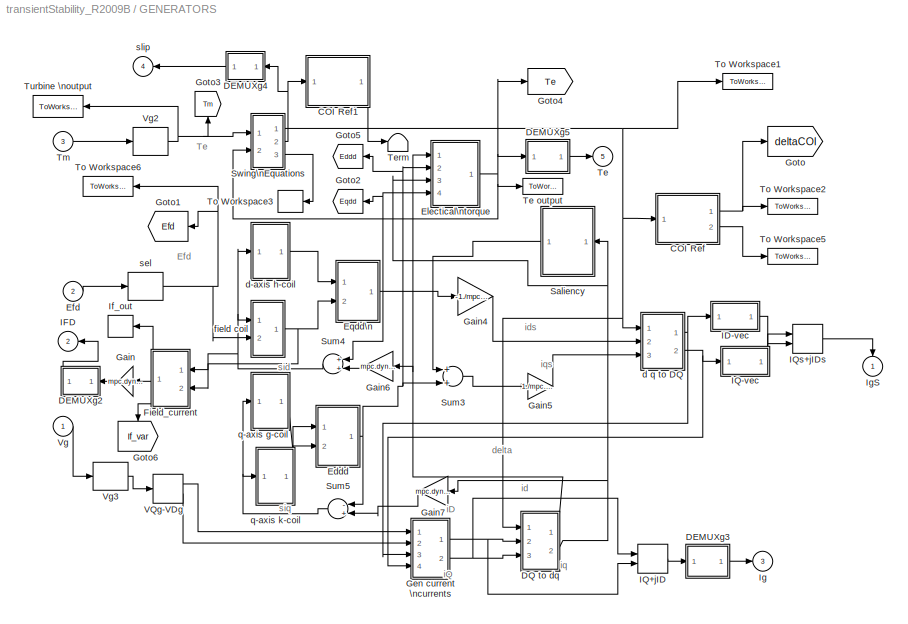
BLOCK [SubSystem] GENERATORS
  FunctionWithSeparateData = off
  MaskHideContents = off
  MinAlgLoopOccurrences = off
  Opaque = off
  Ports = [3, 5]
  PropExecContextOutsideSubsystem = off
  RTWSystemCode = Auto
  RequestExecContextInheritance = off
  SID = 495
BLOCK [SubSystem] GENERATORS/ field coil
  FunctionWithSeparateData = off
  MaskHideContents = off
  MinAlgLoopOccurrences = off
  Opaque = off
  Ports = [2, 1]
  PropExecContextOutsideSubsystem = off
  RTWSystemCode = Auto
  RequestExecContextInheritance = off
  SID = 499
BLOCK [Inport] GENERATORS/ field coil/Efd
  IconDisplay = Port number
  Port = 2
  SID = 501
BLOCK [Gain] GENERATORS/ field coil/Gain
  Gain = 1./mpc.dynamicdata.gen_parameters.Tdd
  SID = 502
BLOCK [Gain] GENERATORS/ field coil/Gain1
  Gain = mpc.dynamicdata.gen_parameters.xdd./(mpc.dynamicdata.gen_parameters.xd-mpc.dynamicdata.gen_parameters.xdd)
  SID = 503
BLOCK [Integrator] GENERATORS/ field coil/Integrator2
  InitialCondition = mpc.dynamicdata.gen_parameters.sif0
  Ports = [1, 1]
  SID = 504
BLOCK [Sum] GENERATORS/ field coil/Sum
  Inputs = +-
  Ports = [2, 1]
  SID = 505
BLOCK [Sum] GENERATORS/ field coil/Sum1
  Ports = [2, 1]
  SID = 506
BLOCK [Inport] GENERATORS/ field coil/sid
  IconDisplay = Port number
  SID = 500
BLOCK [Outport] GENERATORS/ field coil/sif
  IconDisplay = Port number
  InitialOutput = 0
  SID = 507
BLOCK [SubSystem] GENERATORS/COI Ref
  FunctionWithSeparateData = off
  MaskHideContents = off
  MinAlgLoopOccurrences = off
  Opaque = off
  Ports = [1, 2]
  PropExecContextOutsideSubsystem = off
  RTWSystemCode = Auto
  RequestExecContextInheritance = off
  SID = 508
BLOCK [Outport] GENERATORS/COI Ref/COI
  IconDisplay = Port number
  InitialOutput = 0
  Port = 2
  SID = 514
BLOCK [Gain] GENERATORS/COI Ref/Gain6
  Gain = mpc.dynamicdata.gen_parameters.H/sum(mpc.dynamicdata.gen_parameters.H)
  SID = 510
BLOCK [Sum] GENERATORS/COI Ref/Sum
  Inputs = +
  Ports = [1, 1]
  SID = 511
BLOCK [Sum] GENERATORS/COI Ref/Sum1
  Inputs = +-
  Ports = [2, 1]
  SID = 512
BLOCK [Inport] GENERATORS/COI Ref/delta
  IconDisplay = Port number
  SID = 509
BLOCK [Outport] GENERATORS/COI Ref/delta_COI
  IconDisplay = Port number
  InitialOutput = 0
  SID = 513
BLOCK [SubSystem] GENERATORS/COI Ref1
  FunctionWithSeparateData = off
  MaskHideContents = off
  MinAlgLoopOccurrences = off
  Opaque = off
  Ports = [1, 1]
  PropExecContextOutsideSubsystem = off
  RTWSystemCode = Auto
  RequestExecContextInheritance = off
  SID = 515
BLOCK [Gain] GENERATORS/COI Ref1/Gain6
  Gain = mpc.dynamicdata.gen_parameters.H/sum(mpc.dynamicdata.gen_parameters.H)
  SID = 517
BLOCK [Sum] GENERATORS/COI Ref1/Sum
  Inputs = +
  Ports = [1, 1]
  SID = 518
BLOCK [Sum] GENERATORS/COI Ref1/Sum1
  Inputs = +-
  Ports = [2, 1]
  SID = 519
BLOCK [Inport] GENERATORS/COI Ref1/slip
  IconDisplay = Port number
  SID = 516
BLOCK [Outport] GENERATORS/COI Ref1/slip_COI
  IconDisplay = Port number
  InitialOutput = 0
  SID = 520
BLOCK [SubSystem] GENERATORS/DEMUXg2
  FunctionWithSeparateData = off
  MaskHideContents = off
  MinAlgLoopOccurrences = off
  Opaque = off
  Ports = [1, 1]
  PropExecContextOutsideSubsystem = off
  RTWSystemCode = Auto
  RequestExecContextInheritance = off
  SID = 521
BLOCK [Constant] GENERATORS/DEMUXg2/Dummy Zeros
  SID = 523
  Value = zeros(1,mpc.dynamicdata.extraVariables.nb-mpc.dynamicdata.extraVariables.ngen)
BLOCK [Inport] GENERATORS/DEMUXg2/In1
  IconDisplay = Port number
  SID = 522
BLOCK [Mux] GENERATORS/DEMUXg2/Mux1
  Inputs = [mpc.dynamicdata.extraVariables.nb-mpc.dynamicdata.extraVariables.ngen mpc.dynamicdata.extraVariables.ngen]
  Ports = [2, 1]
  SID = 524
BLOCK [Outport] GENERATORS/DEMUXg2/Out1
  IconDisplay = Port number
  SID = 526
BLOCK [Selector] GENERATORS/DEMUXg2/Selector4
  IndexOptions = Index vector (dialog)
  Indices = mpc.dynamicdata.gen_parameters.order_gen
  InputPortWidth = mpc.dynamicdata.extraVariables.nb
  OutputSizes = 1
  Ports = [1, 1]
  SID = 525
BLOCK [SubSystem] GENERATORS/DEMUXg3
  FunctionWithSeparateData = off
  MaskHideContents = off
  MinAlgLoopOccurrences = off
  Opaque = off
  Ports = [1, 1]
  PropExecContextOutsideSubsystem = off
  RTWSystemCode = Auto
  RequestExecContextInheritance = off
  SID = 527
BLOCK [Constant] GENERATORS/DEMUXg3/Dummy Zeros
  SID = 529
  Value = zeros(1,mpc.dynamicdata.extraVariables.nb-mpc.dynamicdata.extraVariables.ngen)
BLOCK [RealImagToComplex] GENERATORS/DEMUXg3/IQ+jID
  Ports = [2, 1]
  SID = 1432
BLOCK [Inport] GENERATORS/DEMUXg3/In1
  IconDisplay = Port number
  SID = 528
BLOCK [Mux] GENERATORS/DEMUXg3/Mux1
  Inputs = [mpc.dynamicdata.extraVariables.nb-mpc.dynamicdata.extraVariables.ngen mpc.dynamicdata.extraVariables.ngen]
  Ports = [2, 1]
  SID = 530
BLOCK [Outport] GENERATORS/DEMUXg3/Out1
  IconDisplay = Port number
  SID = 532
BLOCK [Selector] GENERATORS/DEMUXg3/Selector4
  IndexOptions = Index vector (dialog)
  Indices = mpc.dynamicdata.gen_parameters.order_gen
  InputPortWidth = mpc.dynamicdata.extraVariables.nb
  OutputSizes = 1
  Ports = [1, 1]
  SID = 531
BLOCK [SubSystem] GENERATORS/DEMUXg4
  FunctionWithSeparateData = off
  MaskHideContents = off
  MinAlgLoopOccurrences = off
  Opaque = off
  Ports = [1, 1]
  PropExecContextOutsideSubsystem = off
  RTWSystemCode = Auto
  RequestExecContextInheritance = off
  SID = 533
BLOCK [Constant] GENERATORS/DEMUXg4/Dummy Zeros
  SID = 535
  Value = zeros(1,mpc.dynamicdata.extraVariables.nb-mpc.dynamicdata.extraVariables.ngen)
BLOCK [Inport] GENERATORS/DEMUXg4/In1
  IconDisplay = Port number
  SID = 534
BLOCK [Mux] GENERATORS/DEMUXg4/Mux1
  Inputs = [mpc.dynamicdata.extraVariables.nb-mpc.dynamicdata.extraVariables.ngen mpc.dynamicdata.extraVariables.ngen]
  Ports = [2, 1]
  SID = 536
BLOCK [Outport] GENERATORS/DEMUXg4/Out1
  IconDisplay = Port number
  SID = 538
BLOCK [Selector] GENERATORS/DEMUXg4/Selector4
  IndexOptions = Index vector (dialog)
  Indices = mpc.dynamicdata.gen_parameters.order_gen
  InputPortWidth = mpc.dynamicdata.extraVariables.nb
  OutputSizes = 1
  Ports = [1, 1]
  SID = 537
BLOCK [SubSystem] GENERATORS/DEMUXg5
  FunctionWithSeparateData = off
  MaskHideContents = off
  MinAlgLoopOccurrences = off
  Opaque = off
  Ports = [1, 1]
  PropExecContextOutsideSubsystem = off
  RTWSystemCode = Auto
  RequestExecContextInheritance = off
  SID = 539
BLOCK [Constant] GENERATORS/DEMUXg5/Dummy Zeros
  SID = 541
  Value = zeros(1,mpc.dynamicdata.extraVariables.nb-mpc.dynamicdata.extraVariables.ngen)
BLOCK [Inport] GENERATORS/DEMUXg5/In1
  IconDisplay = Port number
  SID = 540
BLOCK [Mux] GENERATORS/DEMUXg5/Mux1
  Inputs = [mpc.dynamicdata.extraVariables.nb-mpc.dynamicdata.extraVariables.ngen mpc.dynamicdata.extraVariables.ngen]
  Ports = [2, 1]
  SID = 542
BLOCK [Outport] GENERATORS/DEMUXg5/Out1
  IconDisplay = Port number
  SID = 544
BLOCK [Selector] GENERATORS/DEMUXg5/Selector4
  IndexOptions = Index vector (dialog)
  Indices = mpc.dynamicdata.gen_parameters.order_gen
  InputPortWidth = mpc.dynamicdata.extraVariables.nb
  OutputSizes = 1
  Ports = [1, 1]
  SID = 543
BLOCK [SubSystem] GENERATORS/DQ to dq
  FunctionWithSeparateData = off
  MaskHideContents = off
  MinAlgLoopOccurrences = off
  Opaque = off
  Ports = [3, 2]
  PropExecContextOutsideSubsystem = off
  RTWSystemCode = Auto
  RequestExecContextInheritance = off
  SID = 545
BLOCK [Product] GENERATORS/DQ to dq/Product
  Ports = [2, 1]
  SID = 549
BLOCK [Product] GENERATORS/DQ to dq/Product1
  Ports = [2, 1]
  SID = 550
BLOCK [Product] GENERATORS/DQ to dq/Product2
  Ports = [2, 1]
  SID = 551
BLOCK [Product] GENERATORS/DQ to dq/Product3
  Ports = [2, 1]
  SID = 552
BLOCK [Sum] GENERATORS/DQ to dq/Sum1
  Inputs = +-
  Ports = [2, 1]
  SID = 553
BLOCK [Sum] GENERATORS/DQ to dq/Sum2
  Ports = [2, 1]
  SID = 554
BLOCK [Trigonometry] GENERATORS/DQ to dq/cos
  Operator = cos
  Ports = [1, 1]
  SID = 555
BLOCK [Inport] GENERATORS/DQ to dq/delta
  IconDisplay = Port number
  SID = 546
BLOCK [Inport] GENERATORS/DQ to dq/iD
  IconDisplay = Port number
  Port = 2
  SID = 547
BLOCK [Inport] GENERATORS/DQ to dq/iQ
  IconDisplay = Port number
  Port = 3
  SID = 548
BLOCK [Outport] GENERATORS/DQ to dq/id
  IconDisplay = Port number
  InitialOutput = 0
  SID = 557
BLOCK [Outport] GENERATORS/DQ to dq/iq
  IconDisplay = Port number
  InitialOutput = 0
  Port = 2
  SID = 558
BLOCK [Trigonometry] GENERATORS/DQ to dq/sin
  Ports = [1, 1]
  SID = 556
BLOCK [SubSystem] GENERATORS/Eddd
  FunctionWithSeparateData = off
  MaskHideContents = off
  MinAlgLoopOccurrences = off
  Opaque = off
  Ports = [2, 1]
  PropExecContextOutsideSubsystem = off
  RTWSystemCode = Auto
  RequestExecContextInheritance = off
  SID = 561
BLOCK [Outport] GENERATORS/Eddd/Eddd
  IconDisplay = Port number
  SID = 575
BLOCK [Gain] GENERATORS/Eddd/Gain2
  Gain = 1./mpc.dynamicdata.gen_parameters.xqd
  SID = 564
BLOCK [Gain] GENERATORS/Eddd/Gain3
  Gain = mpc.dynamicdata.gen_parameters.xqdd./(mpc.dynamicdata.gen_parameters.xq.*mpc.dynamicdata.gen_parameters.xqd)
  SID = 565
BLOCK [Gain] GENERATORS/Eddd/Gain4
  Gain = -1
  SID = 566
BLOCK [Product] GENERATORS/Eddd/Prod1
  Ports = [2, 1]
  SID = 567
BLOCK [Product] GENERATORS/Eddd/Prod2
  Ports = [2, 1]
  SID = 568
BLOCK [Sum] GENERATORS/Eddd/Sum3
  Inputs = +-
  Ports = [2, 1]
  SID = 569
BLOCK [Sum] GENERATORS/Eddd/Sum4
  Inputs = +-
  Ports = [2, 1]
  SID = 570
BLOCK [Sum] GENERATORS/Eddd/Sum5
  Ports = [2, 1]
  SID = 571
BLOCK [Inport] GENERATORS/Eddd/sig
  IconDisplay = Port number
  Port = 2
  SID = 563
BLOCK [Inport] GENERATORS/Eddd/sik
  IconDisplay = Port number
  SID = 562
BLOCK [Constant] GENERATORS/Eddd/xq
  SID = 572
  Value = mpc.dynamicdata.gen_parameters.xq
BLOCK [Constant] GENERATORS/Eddd/xqd
  SID = 573
  Value = mpc.dynamicdata.gen_parameters.xqd
BLOCK [Constant] GENERATORS/Eddd/xqdd
  SID = 574
  Value = mpc.dynamicdata.gen_parameters.xqdd
BLOCK [Inport] GENERATORS/Efd
  IconDisplay = Port number
  Port = 2
  SID = 497
BLOCK [SubSystem] GENERATORS/Electical\ntorque
  FunctionWithSeparateData = off
  MaskHideContents = off
  MinAlgLoopOccurrences = off
  Opaque = off
  Ports = [4, 1]
  PropExecContextOutsideSubsystem = off
  RTWSystemCode = Auto
  RequestExecContextInheritance = off
  SID = 576
BLOCK [Inport] GENERATORS/Electical\ntorque/Eddd
  IconDisplay = Port number
  Port = 2
  SID = 578
BLOCK [Inport] GENERATORS/Electical\ntorque/Eqdd
  IconDisplay = Port number
  Port = 4
  SID = 580
BLOCK [Gain] GENERATORS/Electical\ntorque/Gain
  Gain = (mpc.dynamicdata.gen_parameters.xddd-mpc.dynamicdata.gen_parameters.xqdd)
  SID = 581
BLOCK [Product] GENERATORS/Electical\ntorque/Product
  Ports = [2, 1]
  SID = 582
BLOCK [Product] GENERATORS/Electical\ntorque/Product1
  Ports = [2, 1]
  SID = 583
BLOCK [Product] GENERATORS/Electical\ntorque/Product2
  Ports = [2, 1]
  SID = 584
BLOCK [Sum] GENERATORS/Electical\ntorque/Sum
  Inputs = 3
  Ports = [3, 1]
  SID = 585
BLOCK [Outport] GENERATORS/Electical\ntorque/Te
  IconDisplay = Port number
  InitialOutput = 0
  SID = 586
BLOCK [Inport] GENERATORS/Electical\ntorque/id
  IconDisplay = Port number
  SID = 577
BLOCK [Inport] GENERATORS/Electical\ntorque/iq
  IconDisplay = Port number
  Port = 3
  SID = 579
BLOCK [SubSystem] GENERATORS/Eqdd\n
  FunctionWithSeparateData = off
  MaskHideContents = off
  MinAlgLoopOccurrences = off
  Opaque = off
  Ports = [2, 1]
  PropExecContextOutsideSubsystem = off
  RTWSystemCode = Auto
  RequestExecContextInheritance = off
  SID = 587
BLOCK [Outport] GENERATORS/Eqdd\n/Eqdd
  IconDisplay = Port number
  SID = 600
BLOCK [Gain] GENERATORS/Eqdd\n/Gain2
  Gain = 1./mpc.dynamicdata.gen_parameters.xdd
  SID = 590
BLOCK [Gain] GENERATORS/Eqdd\n/Gain3
  Gain = mpc.dynamicdata.gen_parameters.xddd./(mpc.dynamicdata.gen_parameters.xd.*mpc.dynamicdata.gen_parameters.xdd)
  SID = 591
BLOCK [Product] GENERATORS/Eqdd\n/Prod1
  Ports = [2, 1]
  SID = 592
BLOCK [Product] GENERATORS/Eqdd\n/Prod2
  Ports = [2, 1]
  SID = 593
BLOCK [Sum] GENERATORS/Eqdd\n/Sum3
  Inputs = +-
  Ports = [2, 1]
  SID = 594
BLOCK [Sum] GENERATORS/Eqdd\n/Sum4
  Inputs = +-
  Ports = [2, 1]
  SID = 595
BLOCK [Sum] GENERATORS/Eqdd\n/Sum5
  Ports = [2, 1]
  SID = 596
BLOCK [Inport] GENERATORS/Eqdd\n/sif
  IconDisplay = Port number
  Port = 2
  SID = 589
BLOCK [Inport] GENERATORS/Eqdd\n/sih
  IconDisplay = Port number
  SID = 588
BLOCK [Constant] GENERATORS/Eqdd\n/xd
  SID = 597
  Value = mpc.dynamicdata.gen_parameters.xd
BLOCK [Constant] GENERATORS/Eqdd\n/xdd
  SID = 598
  Value = mpc.dynamicdata.gen_parameters.xdd
BLOCK [Constant] GENERATORS/Eqdd\n/xddd
  SID = 599
  Value = mpc.dynamicdata.gen_parameters.xddd
BLOCK [SubSystem] GENERATORS/Field_current
  FunctionWithSeparateData = off
  MaskHideContents = off
  MinAlgLoopOccurrences = off
  Opaque = off
  Ports = [2, 1]
  PropExecContextOutsideSubsystem = off
  RTWSystemCode = Auto
  RequestExecContextInheritance = off
  SID = 601
BLOCK [Gain] GENERATORS/Field_current/1//xfl
  Gain = 1./mpc.dynamicdata.gen_parameters.xfl
  SID = 604
BLOCK [Sum] GENERATORS/Field_current/Sum3
  Inputs = -+
  Ports = [2, 1]
  SID = 605
BLOCK [Outport] GENERATORS/Field_current/ifd
  IconDisplay = Port number
  SID = 606
BLOCK [Inport] GENERATORS/Field_current/sid
  IconDisplay = Port number
  SID = 602
BLOCK [Inport] GENERATORS/Field_current/sif
  IconDisplay = Port number
  Port = 2
  SID = 603
BLOCK [Gain] GENERATORS/Gain
  Gain = mpc.dynamicdata.gen_parameters.xd
  SID = 607
BLOCK [Gain] GENERATORS/Gain4
  Gain = -1./mpc.dynamicdata.gen_parameters.xddd
  SID = 608
BLOCK [Gain] GENERATORS/Gain5
  Gain = 1./mpc.dynamicdata.gen_parameters.xddd
  SID = 609
BLOCK [Gain] GENERATORS/Gain6
  Gain = mpc.dynamicdata.gen_parameters.xddd
  SID = 610
BLOCK [Gain] GENERATORS/Gain7
  Gain = mpc.dynamicdata.gen_parameters.xqdd
  SID = 611
BLOCK [SubSystem] GENERATORS/Gen current \ncurrents
  FunctionWithSeparateData = off
  MaskHideContents = off
  MinAlgLoopOccurrences = off
  Opaque = off
  Ports = [4, 2]
  PropExecContextOutsideSubsystem = off
  RTWSystemCode = Auto
  RequestExecContextInheritance = off
  SID = 612
BLOCK [Gain] GENERATORS/Gen current \ncurrents/Gain
  Gain = 1./mpc.dynamicdata.gen_parameters.xddd
  SID = 617
BLOCK [Gain] GENERATORS/Gen current \ncurrents/Gain1
  Gain = 1./mpc.dynamicdata.gen_parameters.xddd
  SID = 618
BLOCK [Sum] GENERATORS/Gen current \ncurrents/Sum
  Ports = [2, 1]
  SID = 619
BLOCK [Sum] GENERATORS/Gen current \ncurrents/Sum2
  Inputs = +-
  Ports = [2, 1]
  SID = 620
BLOCK [Inport] GENERATORS/Gen current \ncurrents/VD
  IconDisplay = Port number
  Port = 2
  SID = 614
BLOCK [Inport] GENERATORS/Gen current \ncurrents/VQ
  IconDisplay = Port number
  SID = 613
BLOCK [Outport] GENERATORS/Gen current \ncurrents/iD
  IconDisplay = Port number
  InitialOutput = 0
  SID = 621
BLOCK [Inport] GENERATORS/Gen current \ncurrents/iDs
  IconDisplay = Port number
  Port = 3
  SID = 615
BLOCK [Outport] GENERATORS/Gen current \ncurrents/iQ
  IconDisplay = Port number
  InitialOutput = 0
  Port = 2
  SID = 622
BLOCK [Inport] GENERATORS/Gen current \ncurrents/iQs
  IconDisplay = Port number
  Port = 4
  SID = 616
BLOCK [Goto] GENERATORS/Goto
  GotoTag = deltaCOI
  SID = 623
  TagVisibility = global
BLOCK [Goto] GENERATORS/Goto1
  GotoTag = Efd
  SID = 624
  TagVisibility = global
BLOCK [Goto] GENERATORS/Goto2
  GotoTag = Eqdd
  SID = 625
  TagVisibility = global
BLOCK [Goto] GENERATORS/Goto3
  GotoTag = Tm
  SID = 626
  TagVisibility = global
BLOCK [Goto] GENERATORS/Goto4
  GotoTag = Te
  SID = 627
  TagVisibility = global
BLOCK [Goto] GENERATORS/Goto5
  GotoTag = Eddd
  SID = 628
  TagVisibility = global
BLOCK [Goto] GENERATORS/Goto6
  GotoTag = If_var
  SID = 629
  TagVisibility = global
BLOCK [SubSystem] GENERATORS/ID-vec
  FunctionWithSeparateData = off
  MaskHideContents = off
  MinAlgLoopOccurrences = off
  Opaque = off
  Ports = [1, 1]
  PropExecContextOutsideSubsystem = off
  RTWSystemCode = Auto
  RequestExecContextInheritance = off
  SID = 630
BLOCK [Constant] GENERATORS/ID-vec/Dummy Zeros
  SID = 632
  Value = zeros(1,mpc.dynamicdata.extraVariables.nb-mpc.dynamicdata.extraVariables.ngen)
BLOCK [Inport] GENERATORS/ID-vec/In1
  IconDisplay = Port number
  SID = 631
BLOCK [Mux] GENERATORS/ID-vec/Mux1
  Inputs = [mpc.dynamicdata.extraVariables.nb-mpc.dynamicdata.extraVariables.ngen; mpc.dynamicdata.extraVariables.ngen]
  Ports = [2, 1]
  SID = 633
BLOCK [Outport] GENERATORS/ID-vec/Out1
  IconDisplay = Port number
  SID = 635
BLOCK [Selector] GENERATORS/ID-vec/Selector4
  IndexOptions = Index vector (dialog)
  Indices = mpc.dynamicdata.gen_parameters.order_gen
  InputPortWidth = mpc.dynamicdata.extraVariables.nb
  OutputSizes = 1
  Ports = [1, 1]
  SID = 634
BLOCK [Outport] GENERATORS/IFD
  IconDisplay = Port number
  InitialOutput = 0
  Port = 2
  SID = 711
BLOCK [RealImagToComplex] GENERATORS/IQ+jID
  Ports = [2, 1]
  SID = 636
BLOCK [SubSystem] GENERATORS/IQ-vec
  FunctionWithSeparateData = off
  MaskHideContents = off
  MinAlgLoopOccurrences = off
  Opaque = off
  Ports = [1, 1]
  PropExecContextOutsideSubsystem = off
  RTWSystemCode = Auto
  RequestExecContextInheritance = off
  SID = 637
BLOCK [Constant] GENERATORS/IQ-vec/Dummy Zeros
  SID = 639
  Value = zeros(1,mpc.dynamicdata.extraVariables.nb-mpc.dynamicdata.extraVariables.ngen)
BLOCK [Inport] GENERATORS/IQ-vec/In1
  IconDisplay = Port number
  SID = 638
BLOCK [Mux] GENERATORS/IQ-vec/Mux1
  Inputs = [mpc.dynamicdata.extraVariables.nb-mpc.dynamicdata.extraVariables.ngen; mpc.dynamicdata.extraVariables.ngen]
  Ports = [2, 1]
  SID = 640
BLOCK [Outport] GENERATORS/IQ-vec/Out1
  IconDisplay = Port number
  SID = 642
BLOCK [Selector] GENERATORS/IQ-vec/Selector4
  IndexOptions = Index vector (dialog)
  Indices = mpc.dynamicdata.gen_parameters.order_gen
  InputPortWidth = mpc.dynamicdata.extraVariables.nb
  OutputSizes = 1
  Ports = [1, 1]
  SID = 641
BLOCK [RealImagToComplex] GENERATORS/IQs+jIDs
  Ports = [2, 1]
  SID = 643
BLOCK [ToWorkspace] GENERATORS/If_out
  MaxDataPoints = inf
  Ports = [1]
  SID = 644
  SampleTime = 0.01
  VariableName = If_var
BLOCK [Outport] GENERATORS/Ig
  IconDisplay = Port number
  InitialOutput = 0
  Port = 3
  SID = 712
BLOCK [Outport] GENERATORS/IgS
  IconDisplay = Port number
  InitialOutput = 0
  SID = 710
BLOCK [SubSystem] GENERATORS/Saliency
  FunctionWithSeparateData = off
  MaskHideContents = off
  MinAlgLoopOccurrences = off
  Opaque = off
  Ports = [1, 1]
  PropExecContextOutsideSubsystem = off
  RTWSystemCode = Auto
  RequestExecContextInheritance = off
  SID = 645
BLOCK [Outport] GENERATORS/Saliency/Edumdd
  IconDisplay = Port number
  InitialOutput = 0
  SID = 651
BLOCK [Gain] GENERATORS/Saliency/Gain1
  Gain = 1./mpc.dynamicdata.gen_parameters.Tdummy
  SID = 647
BLOCK [Gain] GENERATORS/Saliency/Gain6
  Gain = (mpc.dynamicdata.gen_parameters.xddd-mpc.dynamicdata.gen_parameters.xqdd)
  SID = 648
BLOCK [Integrator] GENERATORS/Saliency/Integrator1
  InitialCondition = mpc.dynamicdata.gen_parameters.Edummydd0
  Ports = [1, 1]
  SID = 649
BLOCK [Sum] GENERATORS/Saliency/Sum1
  Inputs = +-
  Ports = [2, 1]
  SID = 650
BLOCK [Inport] GENERATORS/Saliency/iq
  IconDisplay = Port number
  SID = 646
BLOCK [Sum] GENERATORS/Sum3
  Ports = [2, 1]
  SID = 652
BLOCK [Sum] GENERATORS/Sum4
  Ports = [2, 1]
  SID = 653
BLOCK [Sum] GENERATORS/Sum5
  Inputs = -+
  Ports = [2, 1]
  SID = 654
BLOCK [SubSystem] GENERATORS/Swing\nEquations
  FunctionWithSeparateData = off
  MaskHideContents = off
  MinAlgLoopOccurrences = off
  Opaque = off
  Ports = [2, 3]
  PropExecContextOutsideSubsystem = off
  RTWSystemCode = Auto
  RequestExecContextInheritance = off
  SID = 655
  ShowPortLabels = none
BLOCK [Gain] GENERATORS/Swing\nEquations/Gain
  Gain = mpc.dynamicdata.extraVariables.wB
  SID = 658
BLOCK [Gain] GENERATORS/Swing\nEquations/Gain1
  Gain = mpc.dynamicdata.gen_parameters.D
  SID = 659
BLOCK [Gain] GENERATORS/Swing\nEquations/Gain2
  Gain = 1/2./mpc.dynamicdata.gen_parameters.H
  SID = 660
BLOCK [Integrator] GENERATORS/Swing\nEquations/Integrator
  Ports = [1, 1]
  SID = 661
BLOCK [Integrator] GENERATORS/Swing\nEquations/Integrator1
  InitialCondition = mpc.dynamicdata.gen_parameters.delta0
  Ports = [1, 1]
  SID = 662
BLOCK [Sum] GENERATORS/Swing\nEquations/Sum1
  Inputs = +--
  Ports = [3, 1]
  SID = 663
BLOCK [Inport] GENERATORS/Swing\nEquations/Te
  IconDisplay = Port number
  Port = 2
  SID = 657
BLOCK [Inport] GENERATORS/Swing\nEquations/Tm
  IconDisplay = Port number
  SID = 656
BLOCK [Outport] GENERATORS/Swing\nEquations/delta
  IconDisplay = Port number
  InitialOutput = 0
  SID = 664
BLOCK [Outport] GENERATORS/Swing\nEquations/slip
  IconDisplay = Port number
  InitialOutput = 0
  Port = 2
  SID = 665
BLOCK [Outport] GENERATORS/Swing\nEquations/w
  IconDisplay = Port number
  InitialOutput = 0
  Port = 3
  SID = 1437
BLOCK [Outport] GENERATORS/Te
  IconDisplay = Port number
  InitialOutput = 0
  Port = 5
  SID = 714
BLOCK [ToWorkspace] GENERATORS/Te output
  MaxDataPoints = inf
  Ports = [1]
  SID = 666
  SampleTime = 0.01
  VariableName = Te_out
BLOCK [Terminator] GENERATORS/Term
  SID = 667
BLOCK [Inport] GENERATORS/Tm
  IconDisplay = Port number
  Port = 3
  SID = 498
BLOCK [ToWorkspace] GENERATORS/To Workspace1
  MaxDataPoints = inf
  Ports = [1]
  SID = 1434
  SampleTime = 0.01
  VariableName = delta
BLOCK [ToWorkspace] GENERATORS/To Workspace2
  MaxDataPoints = inf
  Ports = [1]
  SID = 668
  SampleTime = 0.01
  VariableName = delta_COI
BLOCK [ToWorkspace] GENERATORS/To Workspace3
  MaxDataPoints = inf
  Ports = [1]
  SID = 1438
  SampleTime = 0.01
  VariableName = w
BLOCK [ToWorkspace] GENERATORS/To Workspace5
  MaxDataPoints = inf
  Ports = [1]
  SID = 669
  SampleTime = 0.01
  VariableName = COI
BLOCK [ToWorkspace] GENERATORS/To Workspace6
  MaxDataPoints = inf
  Ports = [1]
  SID = 670
  SampleTime = 0.01
  VariableName = Efd_var
BLOCK [ToWorkspace] GENERATORS/Turbine \noutput
  MaxDataPoints = inf
  Ports = [1]
  SID = 671
  SampleTime = 0.01
  VariableName = Tm_out
BLOCK [ComplexToRealImag] GENERATORS/VQg-VDg
  Ports = [1, 2]
  SID = 672
BLOCK [Inport] GENERATORS/Vg
  IconDisplay = Port number
  SID = 496
BLOCK [Selector] GENERATORS/Vg2
  IndexOptions = Index vector (dialog)
  Indices = (mpc.dynamicdata.gen(:,1))
  InputPortWidth = mpc.dynamicdata.extraVariables.nb
  OutputSizes = 1
  Ports = [1, 1]
  SID = 673
BLOCK [Selector] GENERATORS/Vg3
  IndexOptions = Index vector (dialog)
  Indices = (mpc.dynamicdata.gen(:,1))
  InputPortWidth = mpc.dynamicdata.extraVariables.nb
  OutputSizes = 1
  Ports = [1, 1]
  SID = 674
BLOCK [SubSystem] GENERATORS/d q to DQ
  FunctionWithSeparateData = off
  MaskHideContents = off
  MinAlgLoopOccurrences = off
  Opaque = off
  Ports = [3, 2]
  PropExecContextOutsideSubsystem = off
  RTWSystemCode = Auto
  RequestExecContextInheritance = off
  SID = 675
BLOCK [Product] GENERATORS/d q to DQ/Product
  Ports = [2, 1]
  SID = 679
BLOCK [Product] GENERATORS/d q to DQ/Product1
  Ports = [2, 1]
  SID = 680
BLOCK [Product] GENERATORS/d q to DQ/Product2
  Ports = [2, 1]
  SID = 681
BLOCK [Product] GENERATORS/d q to DQ/Product3
  Ports = [2, 1]
  SID = 682
BLOCK [Sum] GENERATORS/d q to DQ/Sum1
  Ports = [2, 1]
  SID = 683
BLOCK [Sum] GENERATORS/d q to DQ/Sum2
  Inputs = -+
  Ports = [2, 1]
  SID = 684
BLOCK [Trigonometry] GENERATORS/d q to DQ/cos
  Operator = cos
  Ports = [1, 1]
  SID = 685
BLOCK [Inport] GENERATORS/d q to DQ/delta
  IconDisplay = Port number
  SID = 676
BLOCK [Outport] GENERATORS/d q to DQ/iDs
  IconDisplay = Port number
  InitialOutput = 0
  SID = 687
BLOCK [Outport] GENERATORS/d q to DQ/iQs
  IconDisplay = Port number
  InitialOutput = 0
  Port = 2
  SID = 688
BLOCK [Inport] GENERATORS/d q to DQ/ids
  IconDisplay = Port number
  Port = 2
  SID = 677
BLOCK [Inport] GENERATORS/d q to DQ/iqs
  IconDisplay = Port number
  Port = 3
  SID = 678
BLOCK [Trigonometry] GENERATORS/d q to DQ/sin
  Ports = [1, 1]
  SID = 686
BLOCK [SubSystem] GENERATORS/d-axis h-coil
  FunctionWithSeparateData = off
  MaskHideContents = off
  MinAlgLoopOccurrences = off
  Opaque = off
  Ports = [1, 1]
  PropExecContextOutsideSubsystem = off
  RTWSystemCode = Auto
  RequestExecContextInheritance = off
  SID = 691
BLOCK [Gain] GENERATORS/d-axis h-coil/Gain
  Gain = 1./mpc.dynamicdata.gen_parameters.Tddd
  SID = 693
BLOCK [Integrator] GENERATORS/d-axis h-coil/Integrator2
  InitialCondition = mpc.dynamicdata.gen_parameters.sih0
  Ports = [1, 1]
  SID = 694
BLOCK [Sum] GENERATORS/d-axis h-coil/Sum
  Inputs = +-
  Ports = [2, 1]
  SID = 695
BLOCK [Inport] GENERATORS/d-axis h-coil/sid
  IconDisplay = Port number
  SID = 692
BLOCK [Outport] GENERATORS/d-axis h-coil/sih
  IconDisplay = Port number
  InitialOutput = 0
  SID = 696
BLOCK [SubSystem] GENERATORS/q-axis g-coil
  FunctionWithSeparateData = off
  MaskHideContents = off
  MinAlgLoopOccurrences = off
  Opaque = off
  Ports = [1, 1]
  PropExecContextOutsideSubsystem = off
  RTWSystemCode = Auto
  RequestExecContextInheritance = off
  SID = 697
BLOCK [Gain] GENERATORS/q-axis g-coil/Gain
  Gain = 1./mpc.dynamicdata.gen_parameters.Tqd
  SID = 699
BLOCK [Integrator] GENERATORS/q-axis g-coil/Integrator2
  InitialCondition = mpc.dynamicdata.gen_parameters.sig0
  Ports = [1, 1]
  SID = 700
BLOCK [Sum] GENERATORS/q-axis g-coil/Sum
  Inputs = +-
  Ports = [2, 1]
  SID = 701
BLOCK [Outport] GENERATORS/q-axis g-coil/sig
  IconDisplay = Port number
  InitialOutput = 0
  SID = 702
BLOCK [Inport] GENERATORS/q-axis g-coil/siq
  IconDisplay = Port number
  SID = 698
BLOCK [SubSystem] GENERATORS/q-axis k-coil
  FunctionWithSeparateData = off
  MaskHideContents = off
  MinAlgLoopOccurrences = off
  Opaque = off
  Ports = [1, 1]
  PropExecContextOutsideSubsystem = off
  RTWSystemCode = Auto
  RequestExecContextInheritance = off
  SID = 703
BLOCK [Gain] GENERATORS/q-axis k-coil/Gain
  Gain = 1./mpc.dynamicdata.gen_parameters.Tqdd
  SID = 705
BLOCK [Integrator] GENERATORS/q-axis k-coil/Integrator2
  InitialCondition = mpc.dynamicdata.gen_parameters.sik0
  Ports = [1, 1]
  SID = 706
BLOCK [Sum] GENERATORS/q-axis k-coil/Sum
  Inputs = +-
  Ports = [2, 1]
  SID = 707
BLOCK [Outport] GENERATORS/q-axis k-coil/sik
  IconDisplay = Port number
  InitialOutput = 0
  SID = 708
BLOCK [Inport] GENERATORS/q-axis k-coil/siq
  IconDisplay = Port number
  SID = 704
BLOCK [Selector] GENERATORS/sel
  IndexOptions = Index vector (dialog)
  Indices = (mpc.dynamicdata.gen(:,1))
  InputPortWidth = mpc.dynamicdata.extraVariables.nb
  OutputSizes = 1
  Ports = [1, 1]
  SID = 709
BLOCK [Outport] GENERATORS/slip
  IconDisplay = Port number
  InitialOutput = 0
  Port = 4
  SID = 713
BLOCK [Goto] Goto5
  GotoTag = Vs
  SID = 726
  TagVisibility = global
BLOCK [Ground] Ground
  SID = 727
BLOCK [Mux] Mux
  DisplayOption = bar
  Inputs = [mpc.dynamicdata.extraVariables.nb 1]
  Ports = [2, 1]
  SID = 728
BLOCK [MATLABFcn] NETWORK \nSOLUTION
  MATLABFcn = ( mpc.dynamicdata.Yform.Y  * (abs(u(mpc.dynamicdata.extraVariables.nb+1))<mpc.dynamicdata.Yform.Tfault)  + mpc.dynamicdata.Yform.Yf  * (abs(u(mpc.dynamicdata.extraVariables.nb+1))>=mpc.dynamicdata.Yform.Tfault & abs(u(mpc.dynamicdata.extraVariables.nb+1)) <(mpc.dynamicdata.Yform.Tfault+mpc.dynamicdata.Yform.Tclear) ) + mpc.dynamicdata.Yform.Ypf * (abs(u(mpc.dynamicdata.extraVariables.nb+1)) >= (mp...<+105ch>
  OutputDimensions = mpc.dynamicdata.extraVariables.nb
  OutputSignalType = complex
  Ports = [1, 1]
  SID = 729
BLOCK [SubSystem] PSS
  FunctionWithSeparateData = off
  MaskHideContents = off
  MinAlgLoopOccurrences = off
  Opaque = off
  Ports = [3, 1]
  PropExecContextOutsideSubsystem = off
  RTWSystemCode = Auto
  RequestExecContextInheritance = off
  SID = 730
BLOCK [Constant] PSS/Constant
  SID = 734
  Value = mpc.dynamicdata.gen_pssParameters.PSS
BLOCK [SubSystem] PSS/PSS_slip_signal
  FunctionWithSeparateData = off
  MaskHideContents = off
  MinAlgLoopOccurrences = off
  Opaque = off
  Ports = [1, 1]
  PropExecContextOutsideSubsystem = off
  RTWSystemCode = Auto
  RequestExecContextInheritance = off
  SID = 735
BLOCK [SubSystem] PSS/PSS_slip_signal/Compensator
  FunctionWithSeparateData = off
  MaskHideContents = off
  MinAlgLoopOccurrences = off
  Opaque = off
  Ports = [1, 1]
  PropExecContextOutsideSubsystem = off
  RTWSystemCode = Auto
  RequestExecContextInheritance = off
  SID = 737
BLOCK [Gain] PSS/PSS_slip_signal/Compensator/Gain3
  Gain = 1./mpc.dynamicdata.gen_pssParameters.pss_slip_signalParameters.T2_slip
  SID = 739
BLOCK [Gain] PSS/PSS_slip_signal/Compensator/Gain4
  Gain = mpc.dynamicdata.gen_pssParameters.pss_slip_signalParameters.T1_slip./mpc.dynamicdata.gen_pssParameters.pss_slip_signalParameters.T2_slip
  SID = 740
BLOCK [Gain] PSS/PSS_slip_signal/Compensator/Gain5
  Gain = 1-mpc.dynamicdata.gen_pssParameters.pss_slip_signalParameters.T1_slip./mpc.dynamicdata.gen_pssParameters.pss_slip_signalParameters.T2_slip
  SID = 741
BLOCK [Integrator] PSS/PSS_slip_signal/Compensator/Integrator4
  Ports = [1, 1]
  SID = 742
BLOCK [Sum] PSS/PSS_slip_signal/Compensator/Sum3
  Ports = [2, 1]
  SID = 743
BLOCK [Sum] PSS/PSS_slip_signal/Compensator/Sum4
  Inputs = +-
  Ports = [2, 1]
  SID = 744
BLOCK [Outport] PSS/PSS_slip_signal/Compensator/Vs
  IconDisplay = Port number
  SID = 745
BLOCK [Inport] PSS/PSS_slip_signal/Compensator/in
  IconDisplay = Port number
  SID = 738
BLOCK [Constant] PSS/PSS_slip_signal/Constant
  SID = 746
  Value = mpc.dynamicdata.gen_pssParameters.SL_slip_pss
BLOCK [SubSystem] PSS/PSS_slip_signal/DEMUXg2
  FunctionWithSeparateData = off
  MaskHideContents = off
  MinAlgLoopOccurrences = off
  Opaque = off
  Ports = [1, 1]
  PropExecContextOutsideSubsystem = off
  RTWSystemCode = Auto
  RequestExecContextInheritance = off
  SID = 747
BLOCK [Constant] PSS/PSS_slip_signal/DEMUXg2/Dummy Zeros
  SID = 749
  Value = zeros(1,mpc.dynamicdata.extraVariables.nb-size(mpc.dynamicdata.slip_pss,1))
BLOCK [Inport] PSS/PSS_slip_signal/DEMUXg2/In1
  IconDisplay = Port number
  SID = 748
BLOCK [Mux] PSS/PSS_slip_signal/DEMUXg2/Mux1
  Inputs = [mpc.dynamicdata.extraVariables.nb-size(mpc.dynamicdata.slip_pss,1)  size(mpc.dynamicdata.slip_pss,1)]
  Ports = [2, 1]
  SID = 750
BLOCK [Outport] PSS/PSS_slip_signal/DEMUXg2/Out1
  IconDisplay = Port number
  SID = 752
BLOCK [Selector] PSS/PSS_slip_signal/DEMUXg2/Selector4
  IndexOptions = Index vector (dialog)
  Indices = mpc.dynamicdata.gen_pssParameters.pss_slip_signalParameters.order_slip_pss
  InputPortWidth = mpc.dynamicdata.extraVariables.nb
  OutputSizes = 1
  Ports = [1, 1]
  SID = 751
BLOCK [SubSystem] PSS/PSS_slip_signal/FILT(s)
  FunctionWithSeparateData = off
  MaskHideContents = off
  MinAlgLoopOccurrences = off
  Opaque = off
  Ports = [1, 1]
  PropExecContextOutsideSubsystem = off
  RTWSystemCode = Auto
  RequestExecContextInheritance = off
  SID = 753
BLOCK [Gain] PSS/PSS_slip_signal/FILT(s)/Gain
  Gain = 570
  SID = 755
BLOCK [Gain] PSS/PSS_slip_signal/FILT(s)/Gain1
  Gain = 35
  SID = 756
BLOCK [Gain] PSS/PSS_slip_signal/FILT(s)/Gain2
  Gain = 570
  SID = 757
BLOCK [Inport] PSS/PSS_slip_signal/FILT(s)/In1
  IconDisplay = Port number
  SID = 754
BLOCK [Integrator] PSS/PSS_slip_signal/FILT(s)/Integrator
  Ports = [1, 1]
  SID = 758
BLOCK [Integrator] PSS/PSS_slip_signal/FILT(s)/Integrator1
  Ports = [1, 1]
  SID = 759
BLOCK [Sum] PSS/PSS_slip_signal/FILT(s)/Sum
  Inputs = |+--
  Ports = [3, 1]
  SID = 760
BLOCK [Outport] PSS/PSS_slip_signal/FILT(s)/Vs
  IconDisplay = Port number
  SID = 761
BLOCK [Gain] PSS/PSS_slip_signal/Gain2
  Gain = mpc.dynamicdata.gen_pssParameters.pss_slip_signalParameters.Kslip_pss
  SID = 762
BLOCK [Saturate] PSS/PSS_slip_signal/Limiter
  LowerLimit = mpc.dynamicdata.gen_pssParameters.pss_slip_signalParameters.VS_slip_min
  SID = 763
  UpperLimit = mpc.dynamicdata.gen_pssParameters.pss_slip_signalParameters.VS_slip_max
BLOCK [SubSystem] PSS/PSS_slip_signal/Select-PSS
  FunctionWithSeparateData = off
  MaskHideContents = off
  MinAlgLoopOccurrences = off
  Opaque = off
  Ports = [2, 1]
  PropExecContextOutsideSubsystem = off
  RTWSystemCode = Auto
  RequestExecContextInheritance = off
  SID = 764
  ShowPortLabels = none
BLOCK [Switch] PSS/PSS_slip_signal/Select-PSS/Switch
  SID = 767
  Threshold = 1
BLOCK [Constant] PSS/PSS_slip_signal/Select-PSS/Vs=0
  SID = 768
  Value = zeros(1,mpc.dynamicdata.extraVariables.nb)
BLOCK [Inport] PSS/PSS_slip_signal/Select-PSS/in_1
  IconDisplay = Port number
  SID = 765
BLOCK [Inport] PSS/PSS_slip_signal/Select-PSS/in_2
  IconDisplay = Port number
  Port = 2
  SID = 766
BLOCK [Outport] PSS/PSS_slip_signal/Select-PSS/out_1
  IconDisplay = Port number
  InitialOutput = 0
  SID = 769
BLOCK [Selector] PSS/PSS_slip_signal/Selector1
  IndexOptions = Index vector (dialog)
  Indices = mpc.dynamicdata.slip_pss(:,1)
  InputPortWidth = mpc.dynamicdata.extraVariables.nb
  OutputSizes = 1
  Ports = [1, 1]
  SID = 770
BLOCK [SubSystem] PSS/PSS_slip_signal/Wash_out
  FunctionWithSeparateData = off
  MaskHideContents = off
  MinAlgLoopOccurrences = off
  Opaque = off
  Ports = [1, 1]
  PropExecContextOutsideSubsystem = off
  RTWSystemCode = Auto
  RequestExecContextInheritance = off
  SID = 771
BLOCK [Gain] PSS/PSS_slip_signal/Wash_out/Gain3
  Gain = 1./mpc.dynamicdata.gen_pssParameters.pss_slip_signalParameters.Tw_slip
  SID = 773
BLOCK [Gain] PSS/PSS_slip_signal/Wash_out/Gain4
  Gain = mpc.dynamicdata.gen_pssParameters.pss_slip_signalParameters.Tw_slip
  SID = 774
BLOCK [Integrator] PSS/PSS_slip_signal/Wash_out/Integrator4
  Ports = [1, 1]
  SID = 775
BLOCK [Sum] PSS/PSS_slip_signal/Wash_out/Sum3
  Inputs = +-
  Ports = [2, 1]
  SID = 776
BLOCK [Inport] PSS/PSS_slip_signal/Wash_out/in
  IconDisplay = Port number
  SID = 772
BLOCK [Outport] PSS/PSS_slip_signal/Wash_out/out
  IconDisplay = Port number
  SID = 777
BLOCK [SubSystem] PSS/PSS_slip_signal/delay
  FunctionWithSeparateData = off
  MaskHideContents = off
  MinAlgLoopOccurrences = off
  Opaque = off
  Ports = [1, 1]
  PropExecContextOutsideSubsystem = off
  RTWSystemCode = Auto
  RequestExecContextInheritance = off
  SID = 778
BLOCK [Gain] PSS/PSS_slip_signal/delay/Gain
  Gain = 1./mpc.dynamicdata.gen_pssParameters.pss_slip_signalParameters.Td1_slip
  SID = 780
BLOCK [Integrator] PSS/PSS_slip_signal/delay/Integrator2
  Ports = [1, 1]
  SID = 781
BLOCK [Outport] PSS/PSS_slip_signal/delay/Out1
  IconDisplay = Port number
  SID = 783
BLOCK [Sum] PSS/PSS_slip_signal/delay/Sum
  Inputs = +-
  Ports = [2, 1]
  SID = 782
BLOCK [Inport] PSS/PSS_slip_signal/delay/Vin
  IconDisplay = Port number
  SID = 779
BLOCK [Inport] PSS/PSS_slip_signal/slip
  IconDisplay = Port number
  SID = 736
BLOCK [Outport] PSS/PSS_slip_signal/vs
  IconDisplay = Port number
  SID = 784
BLOCK [SubSystem] PSS/Power_input_PSS
  FunctionWithSeparateData = off
  MaskHideContents = off
  MinAlgLoopOccurrences = off
  Opaque = off
  Ports = [1, 1]
  PropExecContextOutsideSubsystem = off
  RTWSystemCode = Auto
  RequestExecContextInheritance = off
  SID = 785
BLOCK [Constant] PSS/Power_input_PSS/Constant
  SID = 787
  Value = mpc.dynamicdata.gen_pssParameters.SL_power_pss
BLOCK [SubSystem] PSS/Power_input_PSS/DEMUXg2
  FunctionWithSeparateData = off
  MaskHideContents = off
  MinAlgLoopOccurrences = off
  Opaque = off
  Ports = [1, 1]
  PropExecContextOutsideSubsystem = off
  RTWSystemCode = Auto
  RequestExecContextInheritance = off
  SID = 788
BLOCK [Constant] PSS/Power_input_PSS/DEMUXg2/Dummy Zeros
  SID = 790
  Value = zeros(1,mpc.dynamicdata.extraVariables.nb-size(mpc.dynamicdata.power_pss,1))
BLOCK [Inport] PSS/Power_input_PSS/DEMUXg2/In1
  IconDisplay = Port number
  SID = 789
BLOCK [Mux] PSS/Power_input_PSS/DEMUXg2/Mux1
  Inputs = [mpc.dynamicdata.extraVariables.nb-size(mpc.dynamicdata.power_pss,1)  size(mpc.dynamicdata.power_pss,1)]
  Ports = [2, 1]
  SID = 791
BLOCK [Outport] PSS/Power_input_PSS/DEMUXg2/Out1
  IconDisplay = Port number
  SID = 793
BLOCK [Selector] PSS/Power_input_PSS/DEMUXg2/Selector4
  IndexOptions = Index vector (dialog)
  Indices = mpc.dynamicdata.gen_pssParameters.pss_power_signalParameters.order_power_pss
  InputPortWidth = mpc.dynamicdata.extraVariables.nb
  OutputSizes = 1
  Ports = [1, 1]
  SID = 792
BLOCK [Gain] PSS/Power_input_PSS/Gain2
  Gain = -mpc.dynamicdata.gen_pssParameters.pss_power_signalParameters.Kpower_pss
  SID = 794
BLOCK [Saturate] PSS/Power_input_PSS/Limiter
  LowerLimit = mpc.dynamicdata.gen_pssParameters.pss_power_signalParameters.VS_power_min
  SID = 795
  UpperLimit = mpc.dynamicdata.gen_pssParameters.pss_power_signalParameters.VS_power_max
BLOCK [SubSystem] PSS/Power_input_PSS/Select-PSS
  FunctionWithSeparateData = off
  MaskHideContents = off
  MinAlgLoopOccurrences = off
  Opaque = off
  Ports = [2, 1]
  PropExecContextOutsideSubsystem = off
  RTWSystemCode = Auto
  RequestExecContextInheritance = off
  SID = 796
  ShowPortLabels = none
BLOCK [Switch] PSS/Power_input_PSS/Select-PSS/Switch
  SID = 799
  Threshold = 1
BLOCK [Constant] PSS/Power_input_PSS/Select-PSS/Vs=0
  SID = 800
  Value = zeros(1,mpc.dynamicdata.extraVariables.nb)
BLOCK [Inport] PSS/Power_input_PSS/Select-PSS/in_1
  IconDisplay = Port number
  SID = 797
BLOCK [Inport] PSS/Power_input_PSS/Select-PSS/in_2
  IconDisplay = Port number
  Port = 2
  SID = 798
BLOCK [Outport] PSS/Power_input_PSS/Select-PSS/out_1
  IconDisplay = Port number
  InitialOutput = 0
  SID = 801
BLOCK [Selector] PSS/Power_input_PSS/Selector1
  IndexOptions = Index vector (dialog)
  Indices = mpc.dynamicdata.power_pss(:,1)
  InputPortWidth = mpc.dynamicdata.extraVariables.nb
  OutputSizes = 1
  Ports = [1, 1]
  SID = 802
BLOCK [Inport] PSS/Power_input_PSS/Te
  IconDisplay = Port number
  SID = 786
BLOCK [Outport] PSS/Power_input_PSS/Vs
  IconDisplay = Port number
  SID = 816
BLOCK [SubSystem] PSS/Power_input_PSS/Wash_out
  FunctionWithSeparateData = off
  MaskHideContents = off
  MinAlgLoopOccurrences = off
  Opaque = off
  Ports = [1, 1]
  PropExecContextOutsideSubsystem = off
  RTWSystemCode = Auto
  RequestExecContextInheritance = off
  SID = 803
BLOCK [Gain] PSS/Power_input_PSS/Wash_out/Gain3
  Gain = 1./mpc.dynamicdata.gen_pssParameters.pss_power_signalParameters.Tw_power
  SID = 805
BLOCK [Gain] PSS/Power_input_PSS/Wash_out/Gain4
  Gain = mpc.dynamicdata.gen_pssParameters.pss_power_signalParameters.Tw_power
  SID = 806
BLOCK [Integrator] PSS/Power_input_PSS/Wash_out/Integrator4
  InitialCondition = mpc.dynamicdata.gen_pssParameters.pss_power_signalParameters.Tm0_power.*mpc.dynamicdata.gen_pssParameters.pss_power_signalParameters.Tw_power
  Ports = [1, 1]
  SID = 807
BLOCK [Sum] PSS/Power_input_PSS/Wash_out/Sum3
  Inputs = +-
  Ports = [2, 1]
  SID = 808
BLOCK [Inport] PSS/Power_input_PSS/Wash_out/in
  IconDisplay = Port number
  SID = 804
BLOCK [Outport] PSS/Power_input_PSS/Wash_out/out
  IconDisplay = Port number
  SID = 809
BLOCK [SubSystem] PSS/Power_input_PSS/delay1
  FunctionWithSeparateData = off
  MaskHideContents = off
  MinAlgLoopOccurrences = off
  Opaque = off
  Ports = [1, 1]
  PropExecContextOutsideSubsystem = off
  RTWSystemCode = Auto
  RequestExecContextInheritance = off
  SID = 810
BLOCK [Gain] PSS/Power_input_PSS/delay1/Gain
  Gain = 1./mpc.dynamicdata.gen_pssParameters.pss_power_signalParameters.Td1_power
  SID = 812
BLOCK [Integrator] PSS/Power_input_PSS/delay1/Integrator2
  Ports = [1, 1]
  SID = 813
BLOCK [Outport] PSS/Power_input_PSS/delay1/Out1
  IconDisplay = Port number
  SID = 815
BLOCK [Sum] PSS/Power_input_PSS/delay1/Sum
  Inputs = +-
  Ports = [2, 1]
  SID = 814
BLOCK [Inport] PSS/Power_input_PSS/delay1/Vin
  IconDisplay = Port number
  SID = 811
BLOCK [SubSystem] PSS/Select-PSS
  FunctionWithSeparateData = off
  MaskHideContents = off
  MinAlgLoopOccurrences = off
  Opaque = off
  Ports = [2, 1]
  PropExecContextOutsideSubsystem = off
  RTWSystemCode = Auto
  RequestExecContextInheritance = off
  SID = 817
  ShowPortLabels = none
BLOCK [Switch] PSS/Select-PSS/Switch
  SID = 820
  Threshold = 1
BLOCK [Constant] PSS/Select-PSS/Vs=0
  SID = 821
  Value = zeros(1,mpc.dynamicdata.extraVariables.nb)
BLOCK [Inport] PSS/Select-PSS/in_1
  IconDisplay = Port number
  SID = 818
BLOCK [Inport] PSS/Select-PSS/in_2
  IconDisplay = Port number
  Port = 2
  SID = 819
BLOCK [Outport] PSS/Select-PSS/out_1
  IconDisplay = Port number
  InitialOutput = 0
  SID = 822
BLOCK [Sum] PSS/Sum1
  Inputs = ++++
  Ports = [4, 1]
  SID = 823
BLOCK [Inport] PSS/Te
  IconDisplay = Port number
  Port = 2
  SID = 732
BLOCK [Outport] PSS/VS
  IconDisplay = Port number
  SID = 1061
BLOCK [Inport] PSS/Vt
  IconDisplay = Port number
  Port = 3
  SID = 733
BLOCK [SubSystem] PSS/delP_Omega_PSS
  FunctionWithSeparateData = off
  MaskHideContents = off
  MinAlgLoopOccurrences = off
  Opaque = off
  Ports = [2, 1]
  PropExecContextOutsideSubsystem = off
  RTWSystemCode = Auto
  RequestExecContextInheritance = off
  SID = 824
BLOCK [SubSystem] PSS/delP_Omega_PSS/Compensator
  FunctionWithSeparateData = off
  MaskHideContents = off
  MinAlgLoopOccurrences = off
  Opaque = off
  Ports = [1, 1]
  PropExecContextOutsideSubsystem = off
  RTWSystemCode = Auto
  RequestExecContextInheritance = off
  SID = 827
BLOCK [Gain] PSS/delP_Omega_PSS/Compensator/Gain3
  Gain = 1./mpc.dynamicdata.gen_pssParameters.pss_delPw_signalParameters.T2_delPw
  SID = 829
BLOCK [Gain] PSS/delP_Omega_PSS/Compensator/Gain4
  Gain = mpc.dynamicdata.gen_pssParameters.pss_delPw_signalParameters.T1_delPw./mpc.dynamicdata.gen_pssParameters.pss_delPw_signalParameters.T2_delPw
  SID = 830
BLOCK [Gain] PSS/delP_Omega_PSS/Compensator/Gain5
  Gain = 1-mpc.dynamicdata.gen_pssParameters.pss_delPw_signalParameters.T1_delPw./mpc.dynamicdata.gen_pssParameters.pss_delPw_signalParameters.T2_delPw
  SID = 831
BLOCK [Integrator] PSS/delP_Omega_PSS/Compensator/Integrator4
  Ports = [1, 1]
  SID = 832
BLOCK [Sum] PSS/delP_Omega_PSS/Compensator/Sum3
  Ports = [2, 1]
  SID = 833
BLOCK [Sum] PSS/delP_Omega_PSS/Compensator/Sum4
  Inputs = +-
  Ports = [2, 1]
  SID = 834
BLOCK [Outport] PSS/delP_Omega_PSS/Compensator/Vs
  IconDisplay = Port number
  SID = 835
BLOCK [Inport] PSS/delP_Omega_PSS/Compensator/in
  IconDisplay = Port number
  SID = 828
BLOCK [Constant] PSS/delP_Omega_PSS/Constant
  SID = 836
  Value = mpc.dynamicdata.gen_pssParameters.SL_delPw_pss
BLOCK [SubSystem] PSS/delP_Omega_PSS/DEMUXg2
  FunctionWithSeparateData = off
  MaskHideContents = off
  MinAlgLoopOccurrences = off
  Opaque = off
  Ports = [1, 1]
  PropExecContextOutsideSubsystem = off
  RTWSystemCode = Auto
  RequestExecContextInheritance = off
  SID = 837
BLOCK [Constant] PSS/delP_Omega_PSS/DEMUXg2/Dummy Zeros
  SID = 839
  Value = zeros(1,mpc.dynamicdata.extraVariables.nb-size(mpc.dynamicdata.delPw_pss,1))
BLOCK [Inport] PSS/delP_Omega_PSS/DEMUXg2/In1
  IconDisplay = Port number
  SID = 838
BLOCK [Mux] PSS/delP_Omega_PSS/DEMUXg2/Mux1
  Inputs = [mpc.dynamicdata.extraVariables.nb-size(mpc.dynamicdata.delPw_pss,1)  size(mpc.dynamicdata.delPw_pss,1)]
  Ports = [2, 1]
  SID = 840
BLOCK [Outport] PSS/delP_Omega_PSS/DEMUXg2/Out1
  IconDisplay = Port number
  SID = 842
BLOCK [Selector] PSS/delP_Omega_PSS/DEMUXg2/Selector4
  IndexOptions = Index vector (dialog)
  Indices = mpc.dynamicdata.gen_pssParameters.pss_delPw_signalParameters.order_delPw_pss
  InputPortWidth = mpc.dynamicdata.extraVariables.nb
  OutputSizes = 1
  Ports = [1, 1]
  SID = 841
BLOCK [SubSystem] PSS/delP_Omega_PSS/Filtering M=2 and\nN=4
  FunctionWithSeparateData = off
  MaskHideContents = off
  MinAlgLoopOccurrences = off
  Opaque = off
  Ports = [1, 1]
  PropExecContextOutsideSubsystem = off
  RTWSystemCode = Auto
  RequestExecContextInheritance = off
  SID = 843
BLOCK [Inport] PSS/delP_Omega_PSS/Filtering M=2 and\nN=4/In1
  IconDisplay = Port number
  SID = 844
BLOCK [Outport] PSS/delP_Omega_PSS/Filtering M=2 and\nN=4/Out1
  IconDisplay = Port number
  SID = 917
BLOCK [SubSystem] PSS/delP_Omega_PSS/Filtering M=2 and\nN=4/Subsystem
  FunctionWithSeparateData = off
  MaskHideContents = off
  MinAlgLoopOccurrences = off
  Opaque = off
  Ports = [1, 1]
  PropExecContextOutsideSubsystem = off
  RTWSystemCode = Auto
  RequestExecContextInheritance = off
  SID = 845
BLOCK [SubSystem] PSS/delP_Omega_PSS/Filtering M=2 and\nN=4/Subsystem/Compensator
  FunctionWithSeparateData = off
  MaskHideContents = off
  MinAlgLoopOccurrences = off
  Opaque = off
  Ports = [1, 1]
  PropExecContextOutsideSubsystem = off
  RTWSystemCode = Auto
  RequestExecContextInheritance = off
  SID = 847
BLOCK [Gain] PSS/delP_Omega_PSS/Filtering M=2 and\nN=4/Subsystem/Compensator/Gain3
  Gain = 1./mpc.dynamicdata.gen_pssParameters.pss_delPw_signalParameters.T9_delPw
  SID = 849
BLOCK [Gain] PSS/delP_Omega_PSS/Filtering M=2 and\nN=4/Subsystem/Compensator/Gain4
  Gain = mpc.dynamicdata.gen_pssParameters.pss_delPw_signalParameters.T8_delPw./mpc.dynamicdata.gen_pssParameters.pss_delPw_signalParameters.T9_delPw
  SID = 850
BLOCK [Gain] PSS/delP_Omega_PSS/Filtering M=2 and\nN=4/Subsystem/Compensator/Gain5
  Gain = 1-mpc.dynamicdata.gen_pssParameters.pss_delPw_signalParameters.T8_delPw./mpc.dynamicdata.gen_pssParameters.pss_delPw_signalParameters.T9_delPw
  SID = 851
BLOCK [Integrator] PSS/delP_Omega_PSS/Filtering M=2 and\nN=4/Subsystem/Compensator/Integrator4
  Ports = [1, 1]
  SID = 852
BLOCK [Sum] PSS/delP_Omega_PSS/Filtering M=2 and\nN=4/Subsystem/Compensator/Sum3
  Ports = [2, 1]
  SID = 853
BLOCK [Sum] PSS/delP_Omega_PSS/Filtering M=2 and\nN=4/Subsystem/Compensator/Sum4
  Inputs = +-
  Ports = [2, 1]
  SID = 854
BLOCK [Outport] PSS/delP_Omega_PSS/Filtering M=2 and\nN=4/Subsystem/Compensator/Vs
  IconDisplay = Port number
  SID = 855
BLOCK [Inport] PSS/delP_Omega_PSS/Filtering M=2 and\nN=4/Subsystem/Compensator/in
  IconDisplay = Port number
  SID = 848
BLOCK [Inport] PSS/delP_Omega_PSS/Filtering M=2 and\nN=4/Subsystem/In1
  IconDisplay = Port number
  SID = 846
BLOCK [Outport] PSS/delP_Omega_PSS/Filtering M=2 and\nN=4/Subsystem/Out2
  IconDisplay = Port number
  SID = 862
BLOCK [SubSystem] PSS/delP_Omega_PSS/Filtering M=2 and\nN=4/Subsystem/delay1
  FunctionWithSeparateData = off
  MaskHideContents = off
  MinAlgLoopOccurrences = off
  Opaque = off
  Ports = [1, 1]
  PropExecContextOutsideSubsystem = off
  RTWSystemCode = Auto
  RequestExecContextInheritance = off
  SID = 856
BLOCK [Gain] PSS/delP_Omega_PSS/Filtering M=2 and\nN=4/Subsystem/delay1/Gain
  Gain = 1./mpc.dynamicdata.gen_pssParameters.pss_delPw_signalParameters.T9_delPw
  SID = 858
BLOCK [Integrator] PSS/delP_Omega_PSS/Filtering M=2 and\nN=4/Subsystem/delay1/Integrator2
  Ports = [1, 1]
  SID = 859
BLOCK [Outport] PSS/delP_Omega_PSS/Filtering M=2 and\nN=4/Subsystem/delay1/Out1
  IconDisplay = Port number
  SID = 861
BLOCK [Sum] PSS/delP_Omega_PSS/Filtering M=2 and\nN=4/Subsystem/delay1/Sum
  Inputs = +-
  Ports = [2, 1]
  SID = 860
BLOCK [Inport] PSS/delP_Omega_PSS/Filtering M=2 and\nN=4/Subsystem/delay1/Vin
  IconDisplay = Port number
  SID = 857
BLOCK [SubSystem] PSS/delP_Omega_PSS/Filtering M=2 and\nN=4/Subsystem1
  FunctionWithSeparateData = off
  MaskHideContents = off
  MinAlgLoopOccurrences = off
  Opaque = off
  Ports = [1, 1]
  PropExecContextOutsideSubsystem = off
  RTWSystemCode = Auto
  RequestExecContextInheritance = off
  SID = 863
BLOCK [SubSystem] PSS/delP_Omega_PSS/Filtering M=2 and\nN=4/Subsystem1/Compensator
  FunctionWithSeparateData = off
  MaskHideContents = off
  MinAlgLoopOccurrences = off
  Opaque = off
  Ports = [1, 1]
  PropExecContextOutsideSubsystem = off
  RTWSystemCode = Auto
  RequestExecContextInheritance = off
  SID = 865
BLOCK [Gain] PSS/delP_Omega_PSS/Filtering M=2 and\nN=4/Subsystem1/Compensator/Gain3
  Gain = 1./mpc.dynamicdata.gen_pssParameters.pss_delPw_signalParameters.T9_delPw
  SID = 867
BLOCK [Gain] PSS/delP_Omega_PSS/Filtering M=2 and\nN=4/Subsystem1/Compensator/Gain4
  Gain = mpc.dynamicdata.gen_pssParameters.pss_delPw_signalParameters.T8_delPw./mpc.dynamicdata.gen_pssParameters.pss_delPw_signalParameters.T9_delPw
  SID = 868
BLOCK [Gain] PSS/delP_Omega_PSS/Filtering M=2 and\nN=4/Subsystem1/Compensator/Gain5
  Gain = 1-mpc.dynamicdata.gen_pssParameters.pss_delPw_signalParameters.T8_delPw./mpc.dynamicdata.gen_pssParameters.pss_delPw_signalParameters.T9_delPw
  SID = 869
BLOCK [Integrator] PSS/delP_Omega_PSS/Filtering M=2 and\nN=4/Subsystem1/Compensator/Integrator4
  Ports = [1, 1]
  SID = 870
BLOCK [Sum] PSS/delP_Omega_PSS/Filtering M=2 and\nN=4/Subsystem1/Compensator/Sum3
  Ports = [2, 1]
  SID = 871
BLOCK [Sum] PSS/delP_Omega_PSS/Filtering M=2 and\nN=4/Subsystem1/Compensator/Sum4
  Inputs = +-
  Ports = [2, 1]
  SID = 872
BLOCK [Outport] PSS/delP_Omega_PSS/Filtering M=2 and\nN=4/Subsystem1/Compensator/Vs
  IconDisplay = Port number
  SID = 873
BLOCK [Inport] PSS/delP_Omega_PSS/Filtering M=2 and\nN=4/Subsystem1/Compensator/in
  IconDisplay = Port number
  SID = 866
BLOCK [Inport] PSS/delP_Omega_PSS/Filtering M=2 and\nN=4/Subsystem1/In1
  IconDisplay = Port number
  SID = 864
BLOCK [Outport] PSS/delP_Omega_PSS/Filtering M=2 and\nN=4/Subsystem1/Out2
  IconDisplay = Port number
  SID = 880
BLOCK [SubSystem] PSS/delP_Omega_PSS/Filtering M=2 and\nN=4/Subsystem1/delay1
  FunctionWithSeparateData = off
  MaskHideContents = off
  MinAlgLoopOccurrences = off
  Opaque = off
  Ports = [1, 1]
  PropExecContextOutsideSubsystem = off
  RTWSystemCode = Auto
  RequestExecContextInheritance = off
  SID = 874
BLOCK [Gain] PSS/delP_Omega_PSS/Filtering M=2 and\nN=4/Subsystem1/delay1/Gain
  Gain = 1./mpc.dynamicdata.gen_pssParameters.pss_delPw_signalParameters.T9_delPw
  SID = 876
BLOCK [Integrator] PSS/delP_Omega_PSS/Filtering M=2 and\nN=4/Subsystem1/delay1/Integrator2
  Ports = [1, 1]
  SID = 877
BLOCK [Outport] PSS/delP_Omega_PSS/Filtering M=2 and\nN=4/Subsystem1/delay1/Out1
  IconDisplay = Port number
  SID = 879
BLOCK [Sum] PSS/delP_Omega_PSS/Filtering M=2 and\nN=4/Subsystem1/delay1/Sum
  Inputs = +-
  Ports = [2, 1]
  SID = 878
BLOCK [Inport] PSS/delP_Omega_PSS/Filtering M=2 and\nN=4/Subsystem1/delay1/Vin
  IconDisplay = Port number
  SID = 875
BLOCK [SubSystem] PSS/delP_Omega_PSS/Filtering M=2 and\nN=4/Subsystem2
  FunctionWithSeparateData = off
  MaskHideContents = off
  MinAlgLoopOccurrences = off
  Opaque = off
  Ports = [1, 1]
  PropExecContextOutsideSubsystem = off
  RTWSystemCode = Auto
  RequestExecContextInheritance = off
  SID = 881
BLOCK [SubSystem] PSS/delP_Omega_PSS/Filtering M=2 and\nN=4/Subsystem2/Compensator
  FunctionWithSeparateData = off
  MaskHideContents = off
  MinAlgLoopOccurrences = off
  Opaque = off
  Ports = [1, 1]
  PropExecContextOutsideSubsystem = off
  RTWSystemCode = Auto
  RequestExecContextInheritance = off
  SID = 883
BLOCK [Gain] PSS/delP_Omega_PSS/Filtering M=2 and\nN=4/Subsystem2/Compensator/Gain3
  Gain = 1./mpc.dynamicdata.gen_pssParameters.pss_delPw_signalParameters.T9_delPw
  SID = 885
BLOCK [Gain] PSS/delP_Omega_PSS/Filtering M=2 and\nN=4/Subsystem2/Compensator/Gain4
  Gain = mpc.dynamicdata.gen_pssParameters.pss_delPw_signalParameters.T8_delPw./mpc.dynamicdata.gen_pssParameters.pss_delPw_signalParameters.T9_delPw
  SID = 886
BLOCK [Gain] PSS/delP_Omega_PSS/Filtering M=2 and\nN=4/Subsystem2/Compensator/Gain5
  Gain = 1-mpc.dynamicdata.gen_pssParameters.pss_delPw_signalParameters.T8_delPw./mpc.dynamicdata.gen_pssParameters.pss_delPw_signalParameters.T9_delPw
  SID = 887
BLOCK [Integrator] PSS/delP_Omega_PSS/Filtering M=2 and\nN=4/Subsystem2/Compensator/Integrator4
  Ports = [1, 1]
  SID = 888
BLOCK [Sum] PSS/delP_Omega_PSS/Filtering M=2 and\nN=4/Subsystem2/Compensator/Sum3
  Ports = [2, 1]
  SID = 889
BLOCK [Sum] PSS/delP_Omega_PSS/Filtering M=2 and\nN=4/Subsystem2/Compensator/Sum4
  Inputs = +-
  Ports = [2, 1]
  SID = 890
BLOCK [Outport] PSS/delP_Omega_PSS/Filtering M=2 and\nN=4/Subsystem2/Compensator/Vs
  IconDisplay = Port number
  SID = 891
BLOCK [Inport] PSS/delP_Omega_PSS/Filtering M=2 and\nN=4/Subsystem2/Compensator/in
  IconDisplay = Port number
  SID = 884
BLOCK [Inport] PSS/delP_Omega_PSS/Filtering M=2 and\nN=4/Subsystem2/In1
  IconDisplay = Port number
  SID = 882
BLOCK [Outport] PSS/delP_Omega_PSS/Filtering M=2 and\nN=4/Subsystem2/Out2
  IconDisplay = Port number
  SID = 898
BLOCK [SubSystem] PSS/delP_Omega_PSS/Filtering M=2 and\nN=4/Subsystem2/delay1
  FunctionWithSeparateData = off
  MaskHideContents = off
  MinAlgLoopOccurrences = off
  Opaque = off
  Ports = [1, 1]
  PropExecContextOutsideSubsystem = off
  RTWSystemCode = Auto
  RequestExecContextInheritance = off
  SID = 892
BLOCK [Gain] PSS/delP_Omega_PSS/Filtering M=2 and\nN=4/Subsystem2/delay1/Gain
  Gain = 1./mpc.dynamicdata.gen_pssParameters.pss_delPw_signalParameters.T9_delPw
  SID = 894
BLOCK [Integrator] PSS/delP_Omega_PSS/Filtering M=2 and\nN=4/Subsystem2/delay1/Integrator2
  Ports = [1, 1]
  SID = 895
BLOCK [Outport] PSS/delP_Omega_PSS/Filtering M=2 and\nN=4/Subsystem2/delay1/Out1
  IconDisplay = Port number
  SID = 897
BLOCK [Sum] PSS/delP_Omega_PSS/Filtering M=2 and\nN=4/Subsystem2/delay1/Sum
  Inputs = +-
  Ports = [2, 1]
  SID = 896
BLOCK [Inport] PSS/delP_Omega_PSS/Filtering M=2 and\nN=4/Subsystem2/delay1/Vin
  IconDisplay = Port number
  SID = 893
BLOCK [SubSystem] PSS/delP_Omega_PSS/Filtering M=2 and\nN=4/Subsystem3
  FunctionWithSeparateData = off
  MaskHideContents = off
  MinAlgLoopOccurrences = off
  Opaque = off
  Ports = [1, 1]
  PropExecContextOutsideSubsystem = off
  RTWSystemCode = Auto
  RequestExecContextInheritance = off
  SID = 899
BLOCK [SubSystem] PSS/delP_Omega_PSS/Filtering M=2 and\nN=4/Subsystem3/Compensator
  FunctionWithSeparateData = off
  MaskHideContents = off
  MinAlgLoopOccurrences = off
  Opaque = off
  Ports = [1, 1]
  PropExecContextOutsideSubsystem = off
  RTWSystemCode = Auto
  RequestExecContextInheritance = off
  SID = 901
BLOCK [Gain] PSS/delP_Omega_PSS/Filtering M=2 and\nN=4/Subsystem3/Compensator/Gain3
  Gain = 1./mpc.dynamicdata.gen_pssParameters.pss_delPw_signalParameters.T9_delPw
  SID = 903
BLOCK [Gain] PSS/delP_Omega_PSS/Filtering M=2 and\nN=4/Subsystem3/Compensator/Gain4
  Gain = mpc.dynamicdata.gen_pssParameters.pss_delPw_signalParameters.T8_delPw./mpc.dynamicdata.gen_pssParameters.pss_delPw_signalParameters.T9_delPw
  SID = 904
BLOCK [Gain] PSS/delP_Omega_PSS/Filtering M=2 and\nN=4/Subsystem3/Compensator/Gain5
  Gain = 1-mpc.dynamicdata.gen_pssParameters.pss_delPw_signalParameters.T8_delPw./mpc.dynamicdata.gen_pssParameters.pss_delPw_signalParameters.T9_delPw
  SID = 905
BLOCK [Integrator] PSS/delP_Omega_PSS/Filtering M=2 and\nN=4/Subsystem3/Compensator/Integrator4
  Ports = [1, 1]
  SID = 906
BLOCK [Sum] PSS/delP_Omega_PSS/Filtering M=2 and\nN=4/Subsystem3/Compensator/Sum3
  Ports = [2, 1]
  SID = 907
BLOCK [Sum] PSS/delP_Omega_PSS/Filtering M=2 and\nN=4/Subsystem3/Compensator/Sum4
  Inputs = +-
  Ports = [2, 1]
  SID = 908
BLOCK [Outport] PSS/delP_Omega_PSS/Filtering M=2 and\nN=4/Subsystem3/Compensator/Vs
  IconDisplay = Port number
  SID = 909
BLOCK [Inport] PSS/delP_Omega_PSS/Filtering M=2 and\nN=4/Subsystem3/Compensator/in
  IconDisplay = Port number
  SID = 902
BLOCK [Inport] PSS/delP_Omega_PSS/Filtering M=2 and\nN=4/Subsystem3/In1
  IconDisplay = Port number
  SID = 900
BLOCK [Outport] PSS/delP_Omega_PSS/Filtering M=2 and\nN=4/Subsystem3/Out2
  IconDisplay = Port number
  SID = 916
BLOCK [SubSystem] PSS/delP_Omega_PSS/Filtering M=2 and\nN=4/Subsystem3/delay1
  FunctionWithSeparateData = off
  MaskHideContents = off
  MinAlgLoopOccurrences = off
  Opaque = off
  Ports = [1, 1]
  PropExecContextOutsideSubsystem = off
  RTWSystemCode = Auto
  RequestExecContextInheritance = off
  SID = 910
BLOCK [Gain] PSS/delP_Omega_PSS/Filtering M=2 and\nN=4/Subsystem3/delay1/Gain
  Gain = 1./mpc.dynamicdata.gen_pssParameters.pss_delPw_signalParameters.T9_delPw
  SID = 912
BLOCK [Integrator] PSS/delP_Omega_PSS/Filtering M=2 and\nN=4/Subsystem3/delay1/Integrator2
  Ports = [1, 1]
  SID = 913
BLOCK [Outport] PSS/delP_Omega_PSS/Filtering M=2 and\nN=4/Subsystem3/delay1/Out1
  IconDisplay = Port number
  SID = 915
BLOCK [Sum] PSS/delP_Omega_PSS/Filtering M=2 and\nN=4/Subsystem3/delay1/Sum
  Inputs = +-
  Ports = [2, 1]
  SID = 914
BLOCK [Inport] PSS/delP_Omega_PSS/Filtering M=2 and\nN=4/Subsystem3/delay1/Vin
  IconDisplay = Port number
  SID = 911
BLOCK [Gain] PSS/delP_Omega_PSS/Gain1
  Gain = mpc.dynamicdata.gen_pssParameters.pss_delPw_signalParameters.Ks3_delPw
  SID = 919
BLOCK [Gain] PSS/delP_Omega_PSS/Gain2
  Gain = mpc.dynamicdata.gen_pssParameters.pss_delPw_signalParameters.Ks1_delPw
  SID = 920
BLOCK [SubSystem] PSS/delP_Omega_PSS/Integrator
  FunctionWithSeparateData = off
  MaskHideContents = off
  MinAlgLoopOccurrences = off
  Opaque = off
  Ports = [1, 1]
  PropExecContextOutsideSubsystem = off
  RTWSystemCode = Auto
  RequestExecContextInheritance = off
  SID = 921
BLOCK [Gain] PSS/delP_Omega_PSS/Integrator/Gain
  Gain = 1./mpc.dynamicdata.gen_pssParameters.pss_delPw_signalParameters.T7_delPw
  SID = 923
BLOCK [Gain] PSS/delP_Omega_PSS/Integrator/Gain1
  Gain = mpc.dynamicdata.gen_pssParameters.pss_delPw_signalParameters.T7_delPw./(2*mpc.dynamicdata.gen_pssParameters.pss_delPw_signalParameters.H_delPw)
  SID = 924
BLOCK [Integrator] PSS/delP_Omega_PSS/Integrator/Integrator2
  Ports = [1, 1]
  SID = 925
BLOCK [Outport] PSS/delP_Omega_PSS/Integrator/Out1
  IconDisplay = Port number
  SID = 927
BLOCK [Sum] PSS/delP_Omega_PSS/Integrator/Sum
  Inputs = +-
  Ports = [2, 1]
  SID = 926
BLOCK [Inport] PSS/delP_Omega_PSS/Integrator/Vin
  IconDisplay = Port number
  SID = 922
BLOCK [Saturate] PSS/delP_Omega_PSS/Limiter
  LowerLimit = mpc.dynamicdata.gen_pssParameters.pss_delPw_signalParameters.VS_delPw_min
  SID = 928
  UpperLimit = mpc.dynamicdata.gen_pssParameters.pss_delPw_signalParameters.VS_delPw_max
BLOCK [SubSystem] PSS/delP_Omega_PSS/Select-PSS
  FunctionWithSeparateData = off
  MaskHideContents = off
  MinAlgLoopOccurrences = off
  Opaque = off
  Ports = [2, 1]
  PropExecContextOutsideSubsystem = off
  RTWSystemCode = Auto
  RequestExecContextInheritance = off
  SID = 929
  ShowPortLabels = none
BLOCK [Switch] PSS/delP_Omega_PSS/Select-PSS/Switch
  SID = 932
  Threshold = 1
BLOCK [Constant] PSS/delP_Omega_PSS/Select-PSS/Vs=0
  SID = 933
  Value = zeros(1,mpc.dynamicdata.extraVariables.nb)
BLOCK [Inport] PSS/delP_Omega_PSS/Select-PSS/in_1
  IconDisplay = Port number
  SID = 930
BLOCK [Inport] PSS/delP_Omega_PSS/Select-PSS/in_2
  IconDisplay = Port number
  Port = 2
  SID = 931
BLOCK [Outport] PSS/delP_Omega_PSS/Select-PSS/out_1
  IconDisplay = Port number
  InitialOutput = 0
  SID = 934
BLOCK [Selector] PSS/delP_Omega_PSS/Selector1
  IndexOptions = Index vector (dialog)
  Indices = mpc.dynamicdata.delPw_pss(:,1)
  InputPortWidth = mpc.dynamicdata.extraVariables.nb
  OutputSizes = 1
  Ports = [1, 1]
  SID = 935
BLOCK [Selector] PSS/delP_Omega_PSS/Selector2
  IndexOptions = Index vector (dialog)
  Indices = mpc.dynamicdata.delPw_pss(:,1)
  InputPortWidth = mpc.dynamicdata.extraVariables.nb
  OutputSizes = 1
  Ports = [1, 1]
  SID = 936
BLOCK [Sum] PSS/delP_Omega_PSS/Sum
  Ports = [2, 1]
  SID = 937
BLOCK [Sum] PSS/delP_Omega_PSS/Sum1
  Inputs = +-
  Ports = [2, 1]
  SID = 938
BLOCK [Inport] PSS/delP_Omega_PSS/Te
  IconDisplay = Port number
  Port = 2
  SID = 826
BLOCK [Outport] PSS/delP_Omega_PSS/Vs
  IconDisplay = Port number
  SID = 973
BLOCK [SubSystem] PSS/delP_Omega_PSS/Wash_out_1
  FunctionWithSeparateData = off
  MaskHideContents = off
  MinAlgLoopOccurrences = off
  Opaque = off
  Ports = [1, 1]
  PropExecContextOutsideSubsystem = off
  RTWSystemCode = Auto
  RequestExecContextInheritance = off
  SID = 939
BLOCK [Gain] PSS/delP_Omega_PSS/Wash_out_1/Gain3
  Gain = 1./mpc.dynamicdata.gen_pssParameters.pss_delPw_signalParameters.Tw1_delPw
  SID = 941
BLOCK [Gain] PSS/delP_Omega_PSS/Wash_out_1/Gain4
  Gain = mpc.dynamicdata.gen_pssParameters.pss_delPw_signalParameters.Tw1_delPw
  SID = 942
BLOCK [Integrator] PSS/delP_Omega_PSS/Wash_out_1/Integrator4
  Ports = [1, 1]
  SID = 943
BLOCK [Sum] PSS/delP_Omega_PSS/Wash_out_1/Sum3
  Inputs = +-
  Ports = [2, 1]
  SID = 944
BLOCK [Inport] PSS/delP_Omega_PSS/Wash_out_1/in
  IconDisplay = Port number
  SID = 940
BLOCK [Outport] PSS/delP_Omega_PSS/Wash_out_1/out
  IconDisplay = Port number
  SID = 945
BLOCK [SubSystem] PSS/delP_Omega_PSS/Wash_out_2
  FunctionWithSeparateData = off
  MaskHideContents = off
  MinAlgLoopOccurrences = off
  Opaque = off
  Ports = [1, 1]
  PropExecContextOutsideSubsystem = off
  RTWSystemCode = Auto
  RequestExecContextInheritance = off
  SID = 946
BLOCK [Gain] PSS/delP_Omega_PSS/Wash_out_2/Gain3
  Gain = 1./mpc.dynamicdata.gen_pssParameters.pss_delPw_signalParameters.Tw2_delPw
  SID = 948
BLOCK [Gain] PSS/delP_Omega_PSS/Wash_out_2/Gain4
  Gain = mpc.dynamicdata.gen_pssParameters.pss_delPw_signalParameters.Tw2_delPw
  SID = 949
BLOCK [Integrator] PSS/delP_Omega_PSS/Wash_out_2/Integrator4
  Ports = [1, 1]
  SID = 950
BLOCK [Sum] PSS/delP_Omega_PSS/Wash_out_2/Sum3
  Inputs = +-
  Ports = [2, 1]
  SID = 951
BLOCK [Inport] PSS/delP_Omega_PSS/Wash_out_2/in
  IconDisplay = Port number
  SID = 947
BLOCK [Outport] PSS/delP_Omega_PSS/Wash_out_2/out
  IconDisplay = Port number
  SID = 952
BLOCK [SubSystem] PSS/delP_Omega_PSS/Wash_out_3
  FunctionWithSeparateData = off
  MaskHideContents = off
  MinAlgLoopOccurrences = off
  Opaque = off
  Ports = [1, 1]
  PropExecContextOutsideSubsystem = off
  RTWSystemCode = Auto
  RequestExecContextInheritance = off
  SID = 953
BLOCK [Gain] PSS/delP_Omega_PSS/Wash_out_3/Gain3
  Gain = 1./mpc.dynamicdata.gen_pssParameters.pss_delPw_signalParameters.Tw3_delPw
  SID = 955
BLOCK [Gain] PSS/delP_Omega_PSS/Wash_out_3/Gain4
  Gain = mpc.dynamicdata.gen_pssParameters.pss_delPw_signalParameters.Tw3_delPw
  SID = 956
BLOCK [Integrator] PSS/delP_Omega_PSS/Wash_out_3/Integrator4
  InitialCondition = mpc.dynamicdata.gen_pssParameters.pss_delPw_signalParameters.Tm0_delPw.*mpc.dynamicdata.gen_pssParameters.pss_delPw_signalParameters.Tw3_delPw
  Ports = [1, 1]
  SID = 957
BLOCK [Sum] PSS/delP_Omega_PSS/Wash_out_3/Sum3
  Inputs = +-
  Ports = [2, 1]
  SID = 958
BLOCK [Inport] PSS/delP_Omega_PSS/Wash_out_3/in
  IconDisplay = Port number
  SID = 954
BLOCK [Outport] PSS/delP_Omega_PSS/Wash_out_3/out
  IconDisplay = Port number
  SID = 959
BLOCK [SubSystem] PSS/delP_Omega_PSS/Wash_out_4
  FunctionWithSeparateData = off
  MaskHideContents = off
  MinAlgLoopOccurrences = off
  Opaque = off
  Ports = [1, 1]
  PropExecContextOutsideSubsystem = off
  RTWSystemCode = Auto
  RequestExecContextInheritance = off
  SID = 960
BLOCK [Gain] PSS/delP_Omega_PSS/Wash_out_4/Gain3
  Gain = 1./mpc.dynamicdata.gen_pssParameters.pss_delPw_signalParameters.Tw4_delPw
  SID = 962
BLOCK [Gain] PSS/delP_Omega_PSS/Wash_out_4/Gain4
  Gain = mpc.dynamicdata.gen_pssParameters.pss_delPw_signalParameters.Tw4_delPw
  SID = 963
BLOCK [Integrator] PSS/delP_Omega_PSS/Wash_out_4/Integrator4
  Ports = [1, 1]
  SID = 964
BLOCK [Sum] PSS/delP_Omega_PSS/Wash_out_4/Sum3
  Inputs = +-
  Ports = [2, 1]
  SID = 965
BLOCK [Inport] PSS/delP_Omega_PSS/Wash_out_4/in
  IconDisplay = Port number
  SID = 961
BLOCK [Outport] PSS/delP_Omega_PSS/Wash_out_4/out
  IconDisplay = Port number
  SID = 966
BLOCK [SubSystem] PSS/delP_Omega_PSS/delay
  FunctionWithSeparateData = off
  MaskHideContents = off
  MinAlgLoopOccurrences = off
  Opaque = off
  Ports = [1, 1]
  PropExecContextOutsideSubsystem = off
  RTWSystemCode = Auto
  RequestExecContextInheritance = off
  SID = 967
BLOCK [Gain] PSS/delP_Omega_PSS/delay/Gain
  Gain = 1./mpc.dynamicdata.gen_pssParameters.pss_delPw_signalParameters.T6_delPw
  SID = 969
BLOCK [Integrator] PSS/delP_Omega_PSS/delay/Integrator2
  Ports = [1, 1]
  SID = 970
BLOCK [Outport] PSS/delP_Omega_PSS/delay/Out1
  IconDisplay = Port number
  SID = 972
BLOCK [Sum] PSS/delP_Omega_PSS/delay/Sum
  Inputs = +-
  Ports = [2, 1]
  SID = 971
BLOCK [Inport] PSS/delP_Omega_PSS/delay/Vin
  IconDisplay = Port number
  SID = 968
BLOCK [Inport] PSS/delP_Omega_PSS/slip
  IconDisplay = Port number
  SID = 825
BLOCK [SubSystem] PSS/frequency_input_PSS\n
  FunctionWithSeparateData = off
  MaskHideContents = off
  MinAlgLoopOccurrences = off
  Opaque = off
  Ports = [1, 1]
  PropExecContextOutsideSubsystem = off
  RTWSystemCode = Auto
  RequestExecContextInheritance = off
  SID = 974
BLOCK [SubSystem] PSS/frequency_input_PSS\n/Compensator
  FunctionWithSeparateData = off
  MaskHideContents = off
  MinAlgLoopOccurrences = off
  Opaque = off
  Ports = [1, 1]
  PropExecContextOutsideSubsystem = off
  RTWSystemCode = Auto
  RequestExecContextInheritance = off
  SID = 976
BLOCK [Gain] PSS/frequency_input_PSS\n/Compensator/Gain3
  Gain = 1./mpc.dynamicdata.gen_pssParameters.pss_freq_signalParameters.T2_freq
  SID = 978
BLOCK [Gain] PSS/frequency_input_PSS\n/Compensator/Gain4
  Gain = mpc.dynamicdata.gen_pssParameters.pss_freq_signalParameters.T1_freq./mpc.dynamicdata.gen_pssParameters.pss_freq_signalParameters.T2_freq
  SID = 979
BLOCK [Gain] PSS/frequency_input_PSS\n/Compensator/Gain5
  Gain = 1-mpc.dynamicdata.gen_pssParameters.pss_freq_signalParameters.T1_freq./mpc.dynamicdata.gen_pssParameters.pss_freq_signalParameters.T2_freq
  SID = 980
BLOCK [Integrator] PSS/frequency_input_PSS\n/Compensator/Integrator4
  Ports = [1, 1]
  SID = 981
BLOCK [Sum] PSS/frequency_input_PSS\n/Compensator/Sum3
  Ports = [2, 1]
  SID = 982
BLOCK [Sum] PSS/frequency_input_PSS\n/Compensator/Sum4
  Inputs = +-
  Ports = [2, 1]
  SID = 983
BLOCK [Outport] PSS/frequency_input_PSS\n/Compensator/Vs
  IconDisplay = Port number
  SID = 984
BLOCK [Inport] PSS/frequency_input_PSS\n/Compensator/in
  IconDisplay = Port number
  SID = 977
BLOCK [Constant] PSS/frequency_input_PSS\n/Constant
  SID = 985
  Value = mpc.dynamicdata.gen_pssParameters.SL_freq_pss
BLOCK [SubSystem] PSS/frequency_input_PSS\n/DEMUXg2
  FunctionWithSeparateData = off
  MaskHideContents = off
  MinAlgLoopOccurrences = off
  Opaque = off
  Ports = [1, 1]
  PropExecContextOutsideSubsystem = off
  RTWSystemCode = Auto
  RequestExecContextInheritance = off
  SID = 986
BLOCK [Constant] PSS/frequency_input_PSS\n/DEMUXg2/Dummy Zeros
  SID = 988
  Value = zeros(1,mpc.dynamicdata.extraVariables.nb-size(mpc.dynamicdata.freq_pss,1))
BLOCK [Inport] PSS/frequency_input_PSS\n/DEMUXg2/In1
  IconDisplay = Port number
  SID = 987
BLOCK [Mux] PSS/frequency_input_PSS\n/DEMUXg2/Mux1
  Inputs = [mpc.dynamicdata.extraVariables.nb-size(mpc.dynamicdata.freq_pss,1)  size(mpc.dynamicdata.freq_pss,1)]
  Ports = [2, 1]
  SID = 989
BLOCK [Outport] PSS/frequency_input_PSS\n/DEMUXg2/Out1
  IconDisplay = Port number
  SID = 991
BLOCK [Selector] PSS/frequency_input_PSS\n/DEMUXg2/Selector4
  IndexOptions = Index vector (dialog)
  Indices = mpc.dynamicdata.gen_pssParameters.pss_freq_signalParameters.order_freq_pss
  InputPortWidth = mpc.dynamicdata.extraVariables.nb
  OutputSizes = 1
  Ports = [1, 1]
  SID = 990
BLOCK [SubSystem] PSS/frequency_input_PSS\n/FILT(s)
  FunctionWithSeparateData = off
  MaskHideContents = off
  MinAlgLoopOccurrences = off
  Opaque = off
  Ports = [1, 1]
  PropExecContextOutsideSubsystem = off
  RTWSystemCode = Auto
  RequestExecContextInheritance = off
  SID = 992
BLOCK [Gain] PSS/frequency_input_PSS\n/FILT(s)/Gain
  Gain = 570
  SID = 994
BLOCK [Gain] PSS/frequency_input_PSS\n/FILT(s)/Gain1
  Gain = 35
  SID = 995
BLOCK [Gain] PSS/frequency_input_PSS\n/FILT(s)/Gain2
  Gain = 570
  SID = 996
BLOCK [Inport] PSS/frequency_input_PSS\n/FILT(s)/In1
  IconDisplay = Port number
  SID = 993
BLOCK [Integrator] PSS/frequency_input_PSS\n/FILT(s)/Integrator
  Ports = [1, 1]
  SID = 997
BLOCK [Integrator] PSS/frequency_input_PSS\n/FILT(s)/Integrator1
  Ports = [1, 1]
  SID = 998
BLOCK [Sum] PSS/frequency_input_PSS\n/FILT(s)/Sum
  Inputs = |+--
  Ports = [3, 1]
  SID = 999
BLOCK [Outport] PSS/frequency_input_PSS\n/FILT(s)/Vs
  IconDisplay = Port number
  SID = 1000
BLOCK [Gain] PSS/frequency_input_PSS\n/Gain2
  Gain = mpc.dynamicdata.gen_pssParameters.pss_freq_signalParameters.Kfreq_pss
  SID = 1001
BLOCK [Saturate] PSS/frequency_input_PSS\n/Limiter
  LowerLimit = mpc.dynamicdata.gen_pssParameters.pss_freq_signalParameters.VS_freq_min
  SID = 1002
  UpperLimit = mpc.dynamicdata.gen_pssParameters.pss_freq_signalParameters.VS_freq_max
BLOCK [SubSystem] PSS/frequency_input_PSS\n/Select-PSS
  FunctionWithSeparateData = off
  MaskHideContents = off
  MinAlgLoopOccurrences = off
  Opaque = off
  Ports = [2, 1]
  PropExecContextOutsideSubsystem = off
  RTWSystemCode = Auto
  RequestExecContextInheritance = off
  SID = 1003
  ShowPortLabels = none
BLOCK [Switch] PSS/frequency_input_PSS\n/Select-PSS/Switch
  SID = 1006
  Threshold = 1
BLOCK [Constant] PSS/frequency_input_PSS\n/Select-PSS/Vs=0
  SID = 1007
  Value = zeros(1,mpc.dynamicdata.extraVariables.nb)
BLOCK [Inport] PSS/frequency_input_PSS\n/Select-PSS/in_1
  IconDisplay = Port number
  SID = 1004
BLOCK [Inport] PSS/frequency_input_PSS\n/Select-PSS/in_2
  IconDisplay = Port number
  Port = 2
  SID = 1005
BLOCK [Outport] PSS/frequency_input_PSS\n/Select-PSS/out_1
  IconDisplay = Port number
  InitialOutput = 0
  SID = 1008
BLOCK [Selector] PSS/frequency_input_PSS\n/Selector1
  IndexOptions = Index vector (dialog)
  Indices = mpc.dynamicdata.freq_pss(:,1)
  InputPortWidth = mpc.dynamicdata.extraVariables.nb
  OutputSizes = 1
  Ports = [1, 1]
  SID = 1009
BLOCK [Inport] PSS/frequency_input_PSS\n/V
  IconDisplay = Port number
  SID = 975
BLOCK [Outport] PSS/frequency_input_PSS\n/Vs
  IconDisplay = Port number
  SID = 1060
BLOCK [SubSystem] PSS/frequency_input_PSS\n/Wash_out
  FunctionWithSeparateData = off
  MaskHideContents = off
  MinAlgLoopOccurrences = off
  Opaque = off
  Ports = [1, 1]
  PropExecContextOutsideSubsystem = off
  RTWSystemCode = Auto
  RequestExecContextInheritance = off
  SID = 1010
BLOCK [Gain] PSS/frequency_input_PSS\n/Wash_out/Gain3
  Gain = 1./mpc.dynamicdata.gen_pssParameters.pss_freq_signalParameters.Tw_freq
  SID = 1012
BLOCK [Gain] PSS/frequency_input_PSS\n/Wash_out/Gain4
  Gain = mpc.dynamicdata.gen_pssParameters.pss_freq_signalParameters.Tw_freq
  SID = 1013
BLOCK [Integrator] PSS/frequency_input_PSS\n/Wash_out/Integrator4
  Ports = [1, 1]
  SID = 1014
BLOCK [Sum] PSS/frequency_input_PSS\n/Wash_out/Sum3
  Inputs = +-
  Ports = [2, 1]
  SID = 1015
BLOCK [Inport] PSS/frequency_input_PSS\n/Wash_out/in
  IconDisplay = Port number
  SID = 1011
BLOCK [Outport] PSS/frequency_input_PSS\n/Wash_out/out
  IconDisplay = Port number
  SID = 1016
BLOCK [SubSystem] PSS/frequency_input_PSS\n/delay
  FunctionWithSeparateData = off
  MaskHideContents = off
  MinAlgLoopOccurrences = off
  Opaque = off
  Ports = [1, 1]
  PropExecContextOutsideSubsystem = off
  RTWSystemCode = Auto
  RequestExecContextInheritance = off
  SID = 1017
BLOCK [Gain] PSS/frequency_input_PSS\n/delay/Gain
  Gain = 1./mpc.dynamicdata.gen_pssParameters.pss_freq_signalParameters.Td1_freq
  SID = 1019
BLOCK [Integrator] PSS/frequency_input_PSS\n/delay/Integrator2
  Ports = [1, 1]
  SID = 1020
BLOCK [Outport] PSS/frequency_input_PSS\n/delay/Out1
  IconDisplay = Port number
  SID = 1022
BLOCK [Sum] PSS/frequency_input_PSS\n/delay/Sum
  Inputs = +-
  Ports = [2, 1]
  SID = 1021
BLOCK [Inport] PSS/frequency_input_PSS\n/delay/Vin
  IconDisplay = Port number
  SID = 1018
BLOCK [SubSystem] PSS/frequency_input_PSS\n/delta_Freq
  FunctionWithSeparateData = off
  MaskHideContents = off
  MinAlgLoopOccurrences = off
  Opaque = off
  Ports = [1, 1]
  PropExecContextOutsideSubsystem = off
  RTWSystemCode = Auto
  RequestExecContextInheritance = off
  SID = 1023
BLOCK [Gain] PSS/frequency_input_PSS\n/delta_Freq/1//fo
  Gain = 1/(mpc.dynamicdata.extraVariables.wB/2/pi)
  SID = 1025
BLOCK [Scope] PSS/frequency_input_PSS\n/delta_Freq/Bus_freq
  DataFormat = StructureWithTime
  Decimation = 1
  Grid = on
  LimitDataPoints = off
  MaxDataPoints = 5000
  Ports = [1]
  SID = 1026
  SampleInput = off
  SampleTime = -1
  SaveName = ScopeData
  SaveToWorkspace = off
  TickLabels = OneTimeTick
  TimeRange = 3
  YMax = 0.5
  YMin = -0.4
  ZoomMode = on
BLOCK [ComplexToMagnitudeAngle] PSS/frequency_input_PSS\n/delta_Freq/Complex to\nMagnitude-Angle
  Ports = [1, 2]
  SID = 1027
BLOCK [ComplexToRealImag] PSS/frequency_input_PSS\n/delta_Freq/Complex to\nReal-Imag
  Ports = [1, 2]
  SID = 1028
BLOCK [Inport] PSS/frequency_input_PSS\n/delta_Freq/In1
  IconDisplay = Port number
  SID = 1024
BLOCK [Math] PSS/frequency_input_PSS\n/delta_Freq/Math\nFunction
  Operator = square
  Ports = [1, 1]
  SID = 1029
BLOCK [Outport] PSS/frequency_input_PSS\n/delta_Freq/Out1
  IconDisplay = Port number
  SID = 1059
BLOCK [Constant] PSS/frequency_input_PSS\n/delta_Freq/Pref
  SID = 1030
  Value = 0.00001
BLOCK [Product] PSS/frequency_input_PSS\n/delta_Freq/Product
  Ports = [2, 1]
  SID = 1031
BLOCK [Product] PSS/frequency_input_PSS\n/delta_Freq/Product1
  Ports = [2, 1]
  SID = 1032
BLOCK [Product] PSS/frequency_input_PSS\n/delta_Freq/Product2
  Inputs = */
  Ports = [2, 1]
  SID = 1033
BLOCK [Sum] PSS/frequency_input_PSS\n/delta_Freq/Sum
  Inputs = +-
  Ports = [2, 1]
  SID = 1034
BLOCK [Sum] PSS/frequency_input_PSS\n/delta_Freq/Sum2
  Ports = [2, 1]
  SID = 1035
BLOCK [Terminator] PSS/frequency_input_PSS\n/delta_Freq/T 1
  SID = 1036
BLOCK [SubSystem] PSS/frequency_input_PSS\n/delta_Freq/derivative1
  FunctionWithSeparateData = off
  MaskHideContents = off
  MinAlgLoopOccurrences = off
  Opaque = off
  Ports = [1, 1]
  PropExecContextOutsideSubsystem = off
  RTWSystemCode = Auto
  RequestExecContextInheritance = off
  SID = 1037
BLOCK [SubSystem] PSS/frequency_input_PSS\n/delta_Freq/derivative1/1//1+s*Tf
  FunctionWithSeparateData = off
  MaskHideContents = off
  MinAlgLoopOccurrences = off
  Opaque = off
  Ports = [1, 1]
  PropExecContextOutsideSubsystem = off
  RTWSystemCode = Auto
  RequestExecContextInheritance = off
  SID = 1039
BLOCK [Gain] PSS/frequency_input_PSS\n/delta_Freq/derivative1/1//1+s*Tf/1//Tf
  Gain = [1./0.02]
  SID = 1041
BLOCK [Inport] PSS/frequency_input_PSS\n/delta_Freq/derivative1/1//1+s*Tf/In1
  IconDisplay = Port number
  SID = 1040
BLOCK [Integrator] PSS/frequency_input_PSS\n/delta_Freq/derivative1/1//1+s*Tf/In2
  InitialCondition = imag(mpc.dynamicdata.Vpre(mpc.dynamicdata.freq_pss(:,1)))
  Ports = [1, 1]
  SID = 1042
BLOCK [Outport] PSS/frequency_input_PSS\n/delta_Freq/derivative1/1//1+s*Tf/Out1
  IconDisplay = Port number
  SID = 1044
BLOCK [Sum] PSS/frequency_input_PSS\n/delta_Freq/derivative1/1//1+s*Tf/Sum3
  Inputs = +-
  Ports = [2, 1]
  SID = 1043
BLOCK [Gain] PSS/frequency_input_PSS\n/delta_Freq/derivative1/1//Tf
  Gain = [1./0.02]/2/pi
  SID = 1045
BLOCK [Inport] PSS/frequency_input_PSS\n/delta_Freq/derivative1/In3
  IconDisplay = Port number
  SID = 1038
BLOCK [Outport] PSS/frequency_input_PSS\n/delta_Freq/derivative1/Out2
  IconDisplay = Port number
  SID = 1047
BLOCK [Sum] PSS/frequency_input_PSS\n/delta_Freq/derivative1/Sum6
  Inputs = +-
  Ports = [2, 1]
  SID = 1046
BLOCK [SubSystem] PSS/frequency_input_PSS\n/delta_Freq/derivative2
  FunctionWithSeparateData = off
  MaskHideContents = off
  MinAlgLoopOccurrences = off
  Opaque = off
  Ports = [1, 1]
  PropExecContextOutsideSubsystem = off
  RTWSystemCode = Auto
  RequestExecContextInheritance = off
  SID = 1048
BLOCK [SubSystem] PSS/frequency_input_PSS\n/delta_Freq/derivative2/1//1+s*Tf
  FunctionWithSeparateData = off
  MaskHideContents = off
  MinAlgLoopOccurrences = off
  Opaque = off
  Ports = [1, 1]
  PropExecContextOutsideSubsystem = off
  RTWSystemCode = Auto
  RequestExecContextInheritance = off
  SID = 1050
BLOCK [Gain] PSS/frequency_input_PSS\n/delta_Freq/derivative2/1//1+s*Tf/1//Tf
  Gain = [1./0.02]
  SID = 1052
BLOCK [Inport] PSS/frequency_input_PSS\n/delta_Freq/derivative2/1//1+s*Tf/In1
  IconDisplay = Port number
  SID = 1051
BLOCK [Integrator] PSS/frequency_input_PSS\n/delta_Freq/derivative2/1//1+s*Tf/In2
  InitialCondition = real(mpc.dynamicdata.Vpre(mpc.dynamicdata.freq_pss(:,1)))
  Ports = [1, 1]
  SID = 1053
BLOCK [Outport] PSS/frequency_input_PSS\n/delta_Freq/derivative2/1//1+s*Tf/Out1
  IconDisplay = Port number
  SID = 1055
BLOCK [Sum] PSS/frequency_input_PSS\n/delta_Freq/derivative2/1//1+s*Tf/Sum3
  Inputs = +-
  Ports = [2, 1]
  SID = 1054
BLOCK [Gain] PSS/frequency_input_PSS\n/delta_Freq/derivative2/1//Tf
  Gain = [1./0.02]/2/pi
  SID = 1056
BLOCK [Inport] PSS/frequency_input_PSS\n/delta_Freq/derivative2/In3
  IconDisplay = Port number
  SID = 1049
BLOCK [Outport] PSS/frequency_input_PSS\n/delta_Freq/derivative2/Out2
  IconDisplay = Port number
  SID = 1058
BLOCK [Sum] PSS/frequency_input_PSS\n/delta_Freq/derivative2/Sum6
  Inputs = +-
  Ports = [2, 1]
  SID = 1057
BLOCK [Inport] PSS/slip
  IconDisplay = Port number
  SID = 731
BLOCK [ToWorkspace] PSS\n output
  MaxDataPoints = inf
  Ports = [1]
  SID = 1062
  SampleTime = 0.01
  VariableName = Vs
BLOCK [RealImagToComplex] Real-Imag to\nComplex
  Ports = [2, 1]
  SID = 1063
BLOCK [SubSystem] STATIC LOADS
  FunctionWithSeparateData = off
  MaskHideContents = off
  MinAlgLoopOccurrences = off
  Opaque = off
  Ports = [1, 1]
  PropExecContextOutsideSubsystem = off
  RTWSystemCode = Auto
  RequestExecContextInheritance = off
  SID = 1064
  ShowPortLabels = none
BLOCK [Constant] STATIC LOADS/Constant
  SID = 1066
  Value = 0.0001
BLOCK [SubSystem] STATIC LOADS/DEMUXl
  FunctionWithSeparateData = off
  MaskHideContents = off
  MinAlgLoopOccurrences = off
  Opaque = off
  Ports = [1, 1]
  PropExecContextOutsideSubsystem = off
  RTWSystemCode = Auto
  RequestExecContextInheritance = off
  SID = 1067
BLOCK [Constant] STATIC LOADS/DEMUXl/Dummy Zeros
  SID = 1069
  Value = zeros(1,mpc.dynamicdata.extraVariables.nb-mpc.dynamicdata.extraVariables.nload)
BLOCK [Inport] STATIC LOADS/DEMUXl/In1
  IconDisplay = Port number
  SID = 1068
BLOCK [Mux] STATIC LOADS/DEMUXl/Mux1
  Inputs = [mpc.dynamicdata.extraVariables.nb-mpc.dynamicdata.extraVariables.nload mpc.dynamicdata.extraVariables.nload]
  Ports = [2, 1]
  SID = 1070
BLOCK [Outport] STATIC LOADS/DEMUXl/Out1
  IconDisplay = Port number
  SID = 1072
BLOCK [Selector] STATIC LOADS/DEMUXl/Selector4
  IndexOptions = Index vector (dialog)
  Indices = mpc.dynamicdata.load.load_zip_model.order_load
  InputPortWidth = mpc.dynamicdata.extraVariables.nb
  OutputSizes = 1
  Ports = [1, 1]
  SID = 1071
BLOCK [SubSystem] STATIC LOADS/DEMUXl1
  FunctionWithSeparateData = off
  MaskHideContents = off
  MinAlgLoopOccurrences = off
  Opaque = off
  Ports = [1, 1]
  PropExecContextOutsideSubsystem = off
  RTWSystemCode = Auto
  RequestExecContextInheritance = off
  SID = 1073
BLOCK [Constant] STATIC LOADS/DEMUXl1/Dummy Zeros
  SID = 1075
  Value = zeros(1,mpc.dynamicdata.extraVariables.nb-mpc.dynamicdata.extraVariables.nload)
BLOCK [Inport] STATIC LOADS/DEMUXl1/In1
  IconDisplay = Port number
  SID = 1074
BLOCK [Mux] STATIC LOADS/DEMUXl1/Mux1
  Inputs = [mpc.dynamicdata.extraVariables.nb-mpc.dynamicdata.extraVariables.nload mpc.dynamicdata.extraVariables.nload]
  Ports = [2, 1]
  SID = 1076
BLOCK [Outport] STATIC LOADS/DEMUXl1/Out1
  IconDisplay = Port number
  SID = 1078
BLOCK [Selector] STATIC LOADS/DEMUXl1/Selector4
  IndexOptions = Index vector (dialog)
  Indices = mpc.dynamicdata.load.load_zip_model.order_load
  InputPortWidth = mpc.dynamicdata.extraVariables.nb
  OutputSizes = 1
  Ports = [1, 1]
  SID = 1077
BLOCK [Gain] STATIC LOADS/Gain
  Gain = 1./mpc.dynamicdata.load.load_zip_model.TL
  SID = 1079
BLOCK [Gain] STATIC LOADS/Gain1
  Gain = 1./mpc.dynamicdata.load.load_zip_model.TL
  SID = 1080
BLOCK [Outport] STATIC LOADS/IL
  IconDisplay = Port number
  InitialOutput = 0
  SID = 1186
BLOCK [RealImagToComplex] STATIC LOADS/IQl+j*IDL
  Ports = [2, 1]
  SID = 1081
BLOCK [Integrator] STATIC LOADS/Integrator
  Ports = [1, 1]
  SID = 1082
BLOCK [Integrator] STATIC LOADS/Integrator1
  Ports = [1, 1]
  SID = 1083
BLOCK [Math] STATIC LOADS/Math\nFunction
  Operator = reciprocal
  Ports = [1, 1]
  SID = 1084
BLOCK [Product] STATIC LOADS/Product
  Ports = [2, 1]
  SID = 1085
BLOCK [Product] STATIC LOADS/Product1
  Ports = [2, 1]
  SID = 1086
BLOCK [Product] STATIC LOADS/Product2
  Ports = [2, 1]
  SID = 1087
BLOCK [Product] STATIC LOADS/Product3
  Ports = [2, 1]
  SID = 1088
BLOCK [Sum] STATIC LOADS/Sum
  Inputs = +-
  Ports = [2, 1]
  SID = 1089
BLOCK [Sum] STATIC LOADS/Sum1
  Inputs = +-
  Ports = [2, 1]
  SID = 1090
BLOCK [Sum] STATIC LOADS/Sum2
  Ports = [2, 1]
  SID = 1091
BLOCK [Inport] STATIC LOADS/VL
  IconDisplay = Port number
  SID = 1065
BLOCK [Selector] STATIC LOADS/VL1
  IndexOptions = Index vector (dialog)
  Indices = (mpc.dynamicdata.extraVariables.ld(:,1))
  InputPortWidth = mpc.dynamicdata.extraVariables.nb
  OutputSizes = 1
  Ports = [1, 1]
  SID = 1092
BLOCK [ComplexToRealImag] STATIC LOADS/VQL+j*VDL
  Ports = [1, 2]
  SID = 1093
BLOCK [SubSystem] STATIC LOADS/d q to DQ
  FunctionWithSeparateData = off
  MaskHideContents = off
  MinAlgLoopOccurrences = off
  Opaque = off
  Ports = [4, 2]
  PropExecContextOutsideSubsystem = off
  RTWSystemCode = Auto
  RequestExecContextInheritance = off
  SID = 1094
  ShowPortLabels = none
BLOCK [Product] STATIC LOADS/d q to DQ/Product
  Ports = [2, 1]
  SID = 1099
BLOCK [Product] STATIC LOADS/d q to DQ/Product1
  Ports = [2, 1]
  SID = 1100
BLOCK [Product] STATIC LOADS/d q to DQ/Product2
  Ports = [2, 1]
  SID = 1101
BLOCK [Product] STATIC LOADS/d q to DQ/Product3
  Ports = [2, 1]
  SID = 1102
BLOCK [Sum] STATIC LOADS/d q to DQ/Sum1
  Inputs = -+
  Ports = [2, 1]
  SID = 1103
BLOCK [Sum] STATIC LOADS/d q to DQ/Sum2
  Ports = [2, 1]
  SID = 1104
BLOCK [Inport] STATIC LOADS/d q to DQ/in_1
  IconDisplay = Port number
  SID = 1095
BLOCK [Inport] STATIC LOADS/d q to DQ/in_2
  IconDisplay = Port number
  Port = 3
  SID = 1097
BLOCK [Inport] STATIC LOADS/d q to DQ/in_3
  IconDisplay = Port number
  Port = 4
  SID = 1098
BLOCK [Inport] STATIC LOADS/d q to DQ/in_4
  IconDisplay = Port number
  Port = 2
  SID = 1096
BLOCK [Outport] STATIC LOADS/d q to DQ/out_1
  IconDisplay = Port number
  InitialOutput = 0
  SID = 1105
BLOCK [Outport] STATIC LOADS/d q to DQ/out_2
  IconDisplay = Port number
  InitialOutput = 0
  Port = 2
  SID = 1106
BLOCK [SubSystem] STATIC LOADS/delta_Freq
  FunctionWithSeparateData = off
  MaskHideContents = off
  MinAlgLoopOccurrences = off
  Opaque = off
  Ports = [1, 1]
  PropExecContextOutsideSubsystem = off
  RTWSystemCode = Auto
  RequestExecContextInheritance = off
  SID = 1111
BLOCK [Scope] STATIC LOADS/delta_Freq/Bus_freq
  DataFormat = StructureWithTime
  Decimation = 1
  Grid = on
  LimitDataPoints = off
  MaxDataPoints = 5000
  Ports = [1]
  SID = 1113
  SampleInput = off
  SampleTime = -1
  SaveName = ScopeData
  SaveToWorkspace = off
  TickLabels = OneTimeTick
  TimeRange = 3
  YMax = 0.5
  YMin = -0.4
  ZoomMode = on
BLOCK [ComplexToMagnitudeAngle] STATIC LOADS/delta_Freq/Complex to\nMagnitude-Angle
  Ports = [1, 2]
  SID = 1114
BLOCK [ComplexToRealImag] STATIC LOADS/delta_Freq/Complex to\nReal-Imag
  Ports = [1, 2]
  SID = 1115
BLOCK [Inport] STATIC LOADS/delta_Freq/In1
  IconDisplay = Port number
  SID = 1112
BLOCK [Math] STATIC LOADS/delta_Freq/Math\nFunction
  Operator = square
  Ports = [1, 1]
  SID = 1116
BLOCK [Outport] STATIC LOADS/delta_Freq/Out1
  IconDisplay = Port number
  SID = 1146
BLOCK [Constant] STATIC LOADS/delta_Freq/Pref
  SID = 1117
  Value = 0.00001
BLOCK [Product] STATIC LOADS/delta_Freq/Product
  Ports = [2, 1]
  SID = 1118
BLOCK [Product] STATIC LOADS/delta_Freq/Product1
  Ports = [2, 1]
  SID = 1119
BLOCK [Product] STATIC LOADS/delta_Freq/Product2
  Inputs = */
  Ports = [2, 1]
  SID = 1120
BLOCK [Sum] STATIC LOADS/delta_Freq/Sum
  Inputs = +-
  Ports = [2, 1]
  SID = 1121
BLOCK [Sum] STATIC LOADS/delta_Freq/Sum2
  Ports = [2, 1]
  SID = 1122
BLOCK [Terminator] STATIC LOADS/delta_Freq/T 1
  SID = 1123
BLOCK [SubSystem] STATIC LOADS/delta_Freq/derivative1
  FunctionWithSeparateData = off
  MaskHideContents = off
  MinAlgLoopOccurrences = off
  Opaque = off
  Ports = [1, 1]
  PropExecContextOutsideSubsystem = off
  RTWSystemCode = Auto
  RequestExecContextInheritance = off
  SID = 1124
BLOCK [SubSystem] STATIC LOADS/delta_Freq/derivative1/1//1+s*Tf
  FunctionWithSeparateData = off
  MaskHideContents = off
  MinAlgLoopOccurrences = off
  Opaque = off
  Ports = [1, 1]
  PropExecContextOutsideSubsystem = off
  RTWSystemCode = Auto
  RequestExecContextInheritance = off
  SID = 1126
BLOCK [Gain] STATIC LOADS/delta_Freq/derivative1/1//1+s*Tf/1//Tf
  Gain = [1./0.02]
  SID = 1128
BLOCK [Inport] STATIC LOADS/delta_Freq/derivative1/1//1+s*Tf/In1
  IconDisplay = Port number
  SID = 1127
BLOCK [Integrator] STATIC LOADS/delta_Freq/derivative1/1//1+s*Tf/In2
  InitialCondition = imag(mpc.dynamicdata.Vpre(mpc.dynamicdata.extraVariables.ld(:,1)))
  Ports = [1, 1]
  SID = 1129
BLOCK [Outport] STATIC LOADS/delta_Freq/derivative1/1//1+s*Tf/Out1
  IconDisplay = Port number
  SID = 1131
BLOCK [Sum] STATIC LOADS/delta_Freq/derivative1/1//1+s*Tf/Sum3
  Inputs = +-
  Ports = [2, 1]
  SID = 1130
BLOCK [Gain] STATIC LOADS/delta_Freq/derivative1/1//Tf
  Gain = [1./0.02]/2/pi
  SID = 1132
BLOCK [Inport] STATIC LOADS/delta_Freq/derivative1/In3
  IconDisplay = Port number
  SID = 1125
BLOCK [Outport] STATIC LOADS/delta_Freq/derivative1/Out2
  IconDisplay = Port number
  SID = 1134
BLOCK [Sum] STATIC LOADS/delta_Freq/derivative1/Sum6
  Inputs = +-
  Ports = [2, 1]
  SID = 1133
BLOCK [SubSystem] STATIC LOADS/delta_Freq/derivative2
  FunctionWithSeparateData = off
  MaskHideContents = off
  MinAlgLoopOccurrences = off
  Opaque = off
  Ports = [1, 1]
  PropExecContextOutsideSubsystem = off
  RTWSystemCode = Auto
  RequestExecContextInheritance = off
  SID = 1135
BLOCK [SubSystem] STATIC LOADS/delta_Freq/derivative2/1//1+s*Tf
  FunctionWithSeparateData = off
  MaskHideContents = off
  MinAlgLoopOccurrences = off
  Opaque = off
  Ports = [1, 1]
  PropExecContextOutsideSubsystem = off
  RTWSystemCode = Auto
  RequestExecContextInheritance = off
  SID = 1137
BLOCK [Gain] STATIC LOADS/delta_Freq/derivative2/1//1+s*Tf/1//Tf
  Gain = [1./0.02]
  SID = 1139
BLOCK [Inport] STATIC LOADS/delta_Freq/derivative2/1//1+s*Tf/In1
  IconDisplay = Port number
  SID = 1138
BLOCK [Integrator] STATIC LOADS/delta_Freq/derivative2/1//1+s*Tf/In2
  InitialCondition = real(mpc.dynamicdata.Vpre(mpc.dynamicdata.extraVariables.ld(:,1)))
  Ports = [1, 1]
  SID = 1140
BLOCK [Outport] STATIC LOADS/delta_Freq/derivative2/1//1+s*Tf/Out1
  IconDisplay = Port number
  SID = 1142
BLOCK [Sum] STATIC LOADS/delta_Freq/derivative2/1//1+s*Tf/Sum3
  Inputs = +-
  Ports = [2, 1]
  SID = 1141
BLOCK [Gain] STATIC LOADS/delta_Freq/derivative2/1//Tf
  Gain = [1./0.02]/2/pi
  SID = 1143
BLOCK [Inport] STATIC LOADS/delta_Freq/derivative2/In3
  IconDisplay = Port number
  SID = 1136
BLOCK [Outport] STATIC LOADS/delta_Freq/derivative2/Out2
  IconDisplay = Port number
  SID = 1145
BLOCK [Sum] STATIC LOADS/delta_Freq/derivative2/Sum6
  Inputs = +-
  Ports = [2, 1]
  SID = 1144
BLOCK [SubSystem] STATIC LOADS/power (reactive)
  FunctionWithSeparateData = off
  MaskHideContents = off
  MinAlgLoopOccurrences = off
  Opaque = off
  Ports = [2, 1]
  PropExecContextOutsideSubsystem = off
  RTWSystemCode = Auto
  RequestExecContextInheritance = off
  SID = 1147
  ShowPortLabels = none
BLOCK [Gain] STATIC LOADS/power (reactive)/1//fo
  Gain = 1/(mpc.dynamicdata.extraVariables.wB/2/pi)
  SID = 1150
BLOCK [Constant] STATIC LOADS/power (reactive)/Constant
  SID = 1151
  Value = mpc.dynamicdata.load.load_zip_model.kcpr
BLOCK [Gain] STATIC LOADS/power (reactive)/Gain3
  Gain = mpc.dynamicdata.load.load_zip_model.kccr
  SID = 1152
BLOCK [Gain] STATIC LOADS/power (reactive)/Gain4
  Gain = mpc.dynamicdata.load.load_zip_model.kcir
  SID = 1153
BLOCK [Gain] STATIC LOADS/power (reactive)/Gain5
  Gain = mpc.dynamicdata.Yform.kcir1
  SID = 1154
BLOCK [Math] STATIC LOADS/power (reactive)/Math\nFunction
  Operator = square
  Ports = [1, 1]
  SID = 1155
BLOCK [Product] STATIC LOADS/power (reactive)/Product
  Inputs = ***
  Ports = [3, 1]
  SID = 1156
BLOCK [Sum] STATIC LOADS/power (reactive)/Sum2
  Inputs = +++
  Ports = [3, 1]
  SID = 1157
BLOCK [Sum] STATIC LOADS/power (reactive)/Sum3
  Inputs = -+-
  Ports = [3, 1]
  SID = 1158
BLOCK [Inport] STATIC LOADS/power (reactive)/del freq
  IconDisplay = Port number
  SID = 1148
BLOCK [Inport] STATIC LOADS/power (reactive)/in_1
  IconDisplay = Port number
  Port = 2
  SID = 1149
BLOCK [Constant] STATIC LOADS/power (reactive)/kqf
  SID = 1159
  Value = mpc.dynamicdata.Yform.kqf
BLOCK [Outport] STATIC LOADS/power (reactive)/out_1
  IconDisplay = Port number
  InitialOutput = 0
  SID = 1160
BLOCK [SubSystem] STATIC LOADS/power (real)
  FunctionWithSeparateData = off
  MaskHideContents = off
  MinAlgLoopOccurrences = off
  Opaque = off
  Ports = [2, 1]
  PropExecContextOutsideSubsystem = off
  RTWSystemCode = Auto
  RequestExecContextInheritance = off
  SID = 1161
  ShowPortLabels = none
BLOCK [Gain] STATIC LOADS/power (real)/1//fo
  Gain = 1/(mpc.dynamicdata.extraVariables.wB/2/pi)
  SID = 1164
BLOCK [Constant] STATIC LOADS/power (real)/Constant
  SID = 1165
  Value = mpc.dynamicdata.load.load_zip_model.kcp
BLOCK [Gain] STATIC LOADS/power (real)/Gain3
  Gain = mpc.dynamicdata.load.load_zip_model.kcc
  SID = 1166
BLOCK [Gain] STATIC LOADS/power (real)/Gain4
  Gain = mpc.dynamicdata.load.load_zip_model.kci
  SID = 1167
BLOCK [Gain] STATIC LOADS/power (real)/Gain5
  Gain = mpc.dynamicdata.load.load_zip_model.kcp/0.6/0.6
  SID = 1168
BLOCK [Gain] STATIC LOADS/power (real)/Gain6
  Gain = mpc.dynamicdata.Yform.kci1
  SID = 1169
BLOCK [Math] STATIC LOADS/power (real)/Math\nFunction1
  Operator = square
  Ports = [1, 1]
  SID = 1170
BLOCK [Math] STATIC LOADS/power (real)/Math\nFunction2
  Operator = square
  Ports = [1, 1]
  SID = 1171
BLOCK [Product] STATIC LOADS/power (real)/Product
  Inputs = ***
  Ports = [3, 1]
  SID = 1172
BLOCK [Sum] STATIC LOADS/power (real)/Sum2
  Inputs = +++
  Ports = [3, 1]
  SID = 1173
BLOCK [Sum] STATIC LOADS/power (real)/Sum3
  Inputs = ++-
  Ports = [3, 1]
  SID = 1174
BLOCK [Switch] STATIC LOADS/power (real)/Switch1
  SID = 1175
  Threshold = 0.6
BLOCK [Inport] STATIC LOADS/power (real)/del freq
  IconDisplay = Port number
  Port = 2
  SID = 1163
BLOCK [Inport] STATIC LOADS/power (real)/in_1
  IconDisplay = Port number
  SID = 1162
BLOCK [Constant] STATIC LOADS/power (real)/kpf
  SID = 1176
  Value = mpc.dynamicdata.Yform.kpf
BLOCK [Outport] STATIC LOADS/power (real)/out_2
  IconDisplay = Port number
  InitialOutput = 0
  SID = 1177
BLOCK [SubSystem] STATIC LOADS/voltage magnitude
  FunctionWithSeparateData = off
  MaskHideContents = off
  MinAlgLoopOccurrences = off
  Opaque = off
  Ports = [2, 1]
  PropExecContextOutsideSubsystem = off
  RTWSystemCode = Auto
  RequestExecContextInheritance = off
  SID = 1178
  ShowPortLabels = none
BLOCK [Math] STATIC LOADS/voltage magnitude/Math\nFunction
  Operator = sqrt
  Ports = [1, 1]
  SID = 1181
BLOCK [Product] STATIC LOADS/voltage magnitude/Product4
  Ports = [2, 1]
  SID = 1182
BLOCK [Product] STATIC LOADS/voltage magnitude/Product5
  Ports = [2, 1]
  SID = 1183
BLOCK [Sum] STATIC LOADS/voltage magnitude/Sum3
  Ports = [2, 1]
  SID = 1184
BLOCK [Inport] STATIC LOADS/voltage magnitude/in_1
  IconDisplay = Port number
  SID = 1179
BLOCK [Inport] STATIC LOADS/voltage magnitude/in_2
  IconDisplay = Port number
  Port = 2
  SID = 1180
BLOCK [Outport] STATIC LOADS/voltage magnitude/out_1
  IconDisplay = Port number
  InitialOutput = 0
  SID = 1185
BLOCK [Sum] Sum
  Inputs = +-
  Ports = [2, 1]
  SID = 1189
BLOCK [ToWorkspace] To Workspace
  MaxDataPoints = inf
  Ports = [1]
  SID = 1190
  SampleTime = 0.01
  VariableName = Vbus
BLOCK [ToWorkspace] To Workspace2
  MaxDataPoints = inf
  Ports = [1]
  SID = 1191
  SampleTime = 0.01
  VariableName = time
BLOCK [SubSystem] Turbine \nsystem
  FunctionWithSeparateData = off
  MaskHideContents = off
  MinAlgLoopOccurrences = off
  Opaque = off
  Ports = [1, 1]
  PropExecContextOutsideSubsystem = off
  RTWSystemCode = Auto
  RequestExecContextInheritance = off
  SID = 1192
BLOCK [SubSystem] Turbine \nsystem/Non Reheat\nSteam Turbine
  FunctionWithSeparateData = off
  MaskHideContents = off
  MinAlgLoopOccurrences = off
  Opaque = off
  Ports = [1, 1]
  PropExecContextOutsideSubsystem = off
  RTWSystemCode = Auto
  RequestExecContextInheritance = off
  SID = 1194
BLOCK [SubSystem] Turbine \nsystem/Non Reheat\nSteam Turbine/DEMUXg2
  FunctionWithSeparateData = off
  MaskHideContents = off
  MinAlgLoopOccurrences = off
  Opaque = off
  Ports = [1, 1]
  PropExecContextOutsideSubsystem = off
  RTWSystemCode = Auto
  RequestExecContextInheritance = off
  SID = 1196
BLOCK [Constant] Turbine \nsystem/Non Reheat\nSteam Turbine/DEMUXg2/Dummy Zeros
  SID = 1198
  Value = zeros(1,mpc.dynamicdata.extraVariables.nb-size(mpc.dynamicdata.turb_nrst,1))
BLOCK [Inport] Turbine \nsystem/Non Reheat\nSteam Turbine/DEMUXg2/In1
  IconDisplay = Port number
  SID = 1197
BLOCK [Mux] Turbine \nsystem/Non Reheat\nSteam Turbine/DEMUXg2/Mux1
  Inputs = [mpc.dynamicdata.extraVariables.nb-size(mpc.dynamicdata.turb_nrst,1)  size(mpc.dynamicdata.turb_nrst,1)]
  Ports = [2, 1]
  SID = 1199
BLOCK [Outport] Turbine \nsystem/Non Reheat\nSteam Turbine/DEMUXg2/Out1
  IconDisplay = Port number
  SID = 1201
BLOCK [Selector] Turbine \nsystem/Non Reheat\nSteam Turbine/DEMUXg2/Selector4
  IndexOptions = Index vector (dialog)
  Indices = mpc.dynamicdata.gen_turbineParameters.NonReheat_turbineParameters.order_nrst
  InputPortWidth = mpc.dynamicdata.extraVariables.nb
  OutputSizes = 1
  Ports = [1, 1]
  SID = 1200
BLOCK [SubSystem] Turbine \nsystem/Non Reheat\nSteam Turbine/Governer
  FunctionWithSeparateData = off
  MaskHideContents = off
  MinAlgLoopOccurrences = off
  Opaque = off
  Ports = [1, 1]
  PropExecContextOutsideSubsystem = off
  RTWSystemCode = Auto
  RequestExecContextInheritance = off
  SID = 1202
BLOCK [Constant] Turbine \nsystem/Non Reheat\nSteam Turbine/Governer/Constant
  SID = 1204
  Value = mpc.dynamicdata.gen_turbineParameters.NonReheat_turbineParameters.Pgv_nrt0
BLOCK [Gain] Turbine \nsystem/Non Reheat\nSteam Turbine/Governer/Gain
  Gain = 1-mpc.dynamicdata.gen_turbineParameters.NonReheat_turbineParameters.T2_nrt./mpc.dynamicdata.gen_turbineParameters.NonReheat_turbineParameters.T1_nrt
  SID = 1205
BLOCK [Gain] Turbine \nsystem/Non Reheat\nSteam Turbine/Governer/Gain1
  Gain = 1./mpc.dynamicdata.gen_turbineParameters.NonReheat_turbineParameters.T1_nrt
  SID = 1206
BLOCK [Gain] Turbine \nsystem/Non Reheat\nSteam Turbine/Governer/Gain2
  Gain = mpc.dynamicdata.gen_turbineParameters.NonReheat_turbineParameters.T2_nrt./mpc.dynamicdata.gen_turbineParameters.NonReheat_turbineParameters.T1_nrt
  SID = 1207
BLOCK [Gain] Turbine \nsystem/Non Reheat\nSteam Turbine/Governer/Gain3
  Gain = mpc.dynamicdata.gen_turbineParameters.NonReheat_turbineParameters.K_nrt
  SID = 1208
BLOCK [Gain] Turbine \nsystem/Non Reheat\nSteam Turbine/Governer/Gain4
  Gain = 1./mpc.dynamicdata.gen_turbineParameters.NonReheat_turbineParameters.T3_nrt
  SID = 1209
BLOCK [Integrator] Turbine \nsystem/Non Reheat\nSteam Turbine/Governer/Integrator
  Ports = [1, 1]
  SID = 1210
BLOCK [Integrator] Turbine \nsystem/Non Reheat\nSteam Turbine/Governer/Integrator1
  InitialCondition = mpc.dynamicdata.gen_turbineParameters.NonReheat_turbineParameters.Pgv_nrt0
  LimitOutput = on
  LowerSaturationLimit = mpc.dynamicdata.gen_turbineParameters.NonReheat_turbineParameters.Pgv_nrt_min.*mpc.dynamicdata.gen_turbineParameters.NonReheat_turbineParameters.Pgv_nrt0
  Ports = [1, 1]
  SID = 1211
  UpperSaturationLimit = mpc.dynamicdata.gen_turbineParameters.NonReheat_turbineParameters.Pgv_nrt_max.*mpc.dynamicdata.gen_turbineParameters.NonReheat_turbineParameters.Pgv_nrt0
BLOCK [Outport] Turbine \nsystem/Non Reheat\nSteam Turbine/Governer/Pgv
  IconDisplay = Port number
  SID = 1215
BLOCK [Sum] Turbine \nsystem/Non Reheat\nSteam Turbine/Governer/Sum
  Inputs = +-
  Ports = [2, 1]
  SID = 1212
BLOCK [Sum] Turbine \nsystem/Non Reheat\nSteam Turbine/Governer/Sum1
  Ports = [2, 1]
  SID = 1213
BLOCK [Sum] Turbine \nsystem/Non Reheat\nSteam Turbine/Governer/Sum3
  Inputs = +--
  Ports = [3, 1]
  SID = 1214
BLOCK [Inport] Turbine \nsystem/Non Reheat\nSteam Turbine/Governer/dWB
  IconDisplay = Port number
  SID = 1203
BLOCK [SubSystem] Turbine \nsystem/Non Reheat\nSteam Turbine/Nonreheat
  FunctionWithSeparateData = off
  MaskHideContents = off
  MinAlgLoopOccurrences = off
  Opaque = off
  Ports = [1, 1]
  PropExecContextOutsideSubsystem = off
  RTWSystemCode = Auto
  RequestExecContextInheritance = off
  SID = 1216
BLOCK [Gain] Turbine \nsystem/Non Reheat\nSteam Turbine/Nonreheat/Gain
  Gain = 1./mpc.dynamicdata.gen_turbineParameters.NonReheat_turbineParameters.Tch_nrt
  SID = 1218
BLOCK [Integrator] Turbine \nsystem/Non Reheat\nSteam Turbine/Nonreheat/Integrator
  InitialCondition = mpc.dynamicdata.gen_turbineParameters.NonReheat_turbineParameters.Pgv_nrt0
  Ports = [1, 1]
  SID = 1219
BLOCK [Inport] Turbine \nsystem/Non Reheat\nSteam Turbine/Nonreheat/Pgv
  IconDisplay = Port number
  SID = 1217
BLOCK [Sum] Turbine \nsystem/Non Reheat\nSteam Turbine/Nonreheat/Sum
  IconShape = round
  Inputs = |+-
  Ports = [2, 1]
  SID = 1220
BLOCK [Outport] Turbine \nsystem/Non Reheat\nSteam Turbine/Nonreheat/Tm
  IconDisplay = Port number
  SID = 1221
BLOCK [SubSystem] Turbine \nsystem/Non Reheat\nSteam Turbine/Select-Turbine
  FunctionWithSeparateData = off
  MaskHideContents = off
  MinAlgLoopOccurrences = off
  Opaque = off
  Ports = [2, 1]
  PropExecContextOutsideSubsystem = off
  RTWSystemCode = Auto
  RequestExecContextInheritance = off
  SID = 1222
  ShowPortLabels = none
BLOCK [Switch] Turbine \nsystem/Non Reheat\nSteam Turbine/Select-Turbine/Switch
  SID = 1225
  Threshold = 1
BLOCK [Inport] Turbine \nsystem/Non Reheat\nSteam Turbine/Select-Turbine/in_1
  IconDisplay = Port number
  SID = 1223
BLOCK [Inport] Turbine \nsystem/Non Reheat\nSteam Turbine/Select-Turbine/in_2
  IconDisplay = Port number
  Port = 2
  SID = 1224
BLOCK [Outport] Turbine \nsystem/Non Reheat\nSteam Turbine/Select-Turbine/out_1
  IconDisplay = Port number
  InitialOutput = 0
  SID = 1227
BLOCK [Constant] Turbine \nsystem/Non Reheat\nSteam Turbine/Select-Turbine/zeros
  SID = 1226
  Value = zeros(1,mpc.dynamicdata.extraVariables.nb)
BLOCK [Selector] Turbine \nsystem/Non Reheat\nSteam Turbine/Selector1
  IndexOptions = Index vector (dialog)
  Indices = mpc.dynamicdata.turb_nrst(:,1)
  InputPortWidth = mpc.dynamicdata.extraVariables.nb
  OutputSizes = 1
  Ports = [1, 1]
  SID = 1228
BLOCK [Outport] Turbine \nsystem/Non Reheat\nSteam Turbine/Tm
  IconDisplay = Port number
  SID = 1230
BLOCK [Constant] Turbine \nsystem/Non Reheat\nSteam Turbine/flag1
  SID = 1229
  Value = mpc.dynamicdata.gen_turbineParameters.SL_NRST
BLOCK [Inport] Turbine \nsystem/Non Reheat\nSteam Turbine/slip
  IconDisplay = Port number
  SID = 1195
BLOCK [SubSystem] Turbine \nsystem/Select-Turbine
  FunctionWithSeparateData = off
  MaskHideContents = off
  MinAlgLoopOccurrences = off
  Opaque = off
  Ports = [2, 1]
  PropExecContextOutsideSubsystem = off
  RTWSystemCode = Auto
  RequestExecContextInheritance = off
  SID = 1231
  ShowPortLabels = none
BLOCK [Switch] Turbine \nsystem/Select-Turbine/Switch
  SID = 1234
  Threshold = 1
BLOCK [Constant] Turbine \nsystem/Select-Turbine/Tm
  SID = 1235
  Value = mpc.dynamicdata.gen_turbineParameters.turbineInitialCondition.TmA0
BLOCK [Inport] Turbine \nsystem/Select-Turbine/in_1
  IconDisplay = Port number
  SID = 1232
BLOCK [Inport] Turbine \nsystem/Select-Turbine/in_2
  IconDisplay = Port number
  Port = 2
  SID = 1233
BLOCK [Outport] Turbine \nsystem/Select-Turbine/out_1
  IconDisplay = Port number
  InitialOutput = 0
  SID = 1236
BLOCK [SubSystem] Turbine \nsystem/Sped Gov_Hydro\nTurbine
  FunctionWithSeparateData = off
  MaskHideContents = off
  MinAlgLoopOccurrences = off
  Opaque = off
  Ports = [1, 1]
  PropExecContextOutsideSubsystem = off
  RTWSystemCode = Auto
  RequestExecContextInheritance = off
  SID = 1237
BLOCK [SubSystem] Turbine \nsystem/Sped Gov_Hydro\nTurbine/DEMUXg2
  FunctionWithSeparateData = off
  MaskHideContents = off
  MinAlgLoopOccurrences = off
  Opaque = off
  Ports = [1, 1]
  PropExecContextOutsideSubsystem = off
  RTWSystemCode = Auto
  RequestExecContextInheritance = off
  SID = 1239
BLOCK [Constant] Turbine \nsystem/Sped Gov_Hydro\nTurbine/DEMUXg2/Dummy Zeros
  SID = 1241
  Value = zeros(1,mpc.dynamicdata.extraVariables.nb-size(mpc.dynamicdata.turb_hydro,1))
BLOCK [Inport] Turbine \nsystem/Sped Gov_Hydro\nTurbine/DEMUXg2/In1
  IconDisplay = Port number
  SID = 1240
BLOCK [Mux] Turbine \nsystem/Sped Gov_Hydro\nTurbine/DEMUXg2/Mux1
  Inputs = [mpc.dynamicdata.extraVariables.nb-size(mpc.dynamicdata.turb_hydro,1)  size(mpc.dynamicdata.turb_hydro,1)]
  Ports = [2, 1]
  SID = 1242
BLOCK [Outport] Turbine \nsystem/Sped Gov_Hydro\nTurbine/DEMUXg2/Out1
  IconDisplay = Port number
  SID = 1244
BLOCK [Selector] Turbine \nsystem/Sped Gov_Hydro\nTurbine/DEMUXg2/Selector4
  IndexOptions = Index vector (dialog)
  Indices = mpc.dynamicdata.gen_turbineParameters.hydro_turbineParameters.order_hydro
  InputPortWidth = mpc.dynamicdata.extraVariables.nb
  OutputSizes = 1
  Ports = [1, 1]
  SID = 1243
BLOCK [SubSystem] Turbine \nsystem/Sped Gov_Hydro\nTurbine/Governer
  FunctionWithSeparateData = off
  MaskHideContents = off
  MinAlgLoopOccurrences = off
  Opaque = off
  Ports = [1, 1]
  PropExecContextOutsideSubsystem = off
  RTWSystemCode = Auto
  RequestExecContextInheritance = off
  SID = 1245
BLOCK [Constant] Turbine \nsystem/Sped Gov_Hydro\nTurbine/Governer/Constant
  SID = 1247
  Value = mpc.dynamicdata.gen_turbineParameters.hydro_turbineParameters.Pgv_ht0
BLOCK [Gain] Turbine \nsystem/Sped Gov_Hydro\nTurbine/Governer/Gain
  Gain = 1-mpc.dynamicdata.gen_turbineParameters.hydro_turbineParameters.T2_ht./mpc.dynamicdata.gen_turbineParameters.hydro_turbineParameters.T1_ht
  SID = 1248
BLOCK [Gain] Turbine \nsystem/Sped Gov_Hydro\nTurbine/Governer/Gain1
  Gain = 1./mpc.dynamicdata.gen_turbineParameters.hydro_turbineParameters.T1_ht
  SID = 1249
BLOCK [Gain] Turbine \nsystem/Sped Gov_Hydro\nTurbine/Governer/Gain2
  Gain = mpc.dynamicdata.gen_turbineParameters.hydro_turbineParameters.T2_ht./mpc.dynamicdata.gen_turbineParameters.hydro_turbineParameters.T1_ht
  SID = 1250
BLOCK [Gain] Turbine \nsystem/Sped Gov_Hydro\nTurbine/Governer/Gain3
  Gain = mpc.dynamicdata.gen_turbineParameters.hydro_turbineParameters.K_ht
  SID = 1251
BLOCK [Gain] Turbine \nsystem/Sped Gov_Hydro\nTurbine/Governer/Gain4
  Gain = 1./mpc.dynamicdata.gen_turbineParameters.hydro_turbineParameters.T3_ht
  SID = 1252
BLOCK [Integrator] Turbine \nsystem/Sped Gov_Hydro\nTurbine/Governer/Integrator
  Ports = [1, 1]
  SID = 1253
BLOCK [Integrator] Turbine \nsystem/Sped Gov_Hydro\nTurbine/Governer/Integrator1
  Ports = [1, 1]
  SID = 1254
BLOCK [Outport] Turbine \nsystem/Sped Gov_Hydro\nTurbine/Governer/Pgv
  IconDisplay = Port number
  SID = 1260
BLOCK [Saturate] Turbine \nsystem/Sped Gov_Hydro\nTurbine/Governer/Saturation
  LowerLimit = mpc.dynamicdata.gen_turbineParameters.hydro_turbineParameters.Pgv_ht_min.*mpc.dynamicdata.gen_turbineParameters.hydro_turbineParameters.Pgv_ht0
  SID = 1255
  UpperLimit = mpc.dynamicdata.gen_turbineParameters.hydro_turbineParameters.Pgv_ht_max.*mpc.dynamicdata.gen_turbineParameters.hydro_turbineParameters.Pgv_ht0
BLOCK [Sum] Turbine \nsystem/Sped Gov_Hydro\nTurbine/Governer/Sum
  Inputs = +-
  Ports = [2, 1]
  SID = 1256
BLOCK [Sum] Turbine \nsystem/Sped Gov_Hydro\nTurbine/Governer/Sum1
  Ports = [2, 1]
  SID = 1257
BLOCK [Sum] Turbine \nsystem/Sped Gov_Hydro\nTurbine/Governer/Sum3
  Inputs = +-
  Ports = [2, 1]
  SID = 1258
BLOCK [Sum] Turbine \nsystem/Sped Gov_Hydro\nTurbine/Governer/Sum4
  Inputs = +-
  Ports = [2, 1]
  SID = 1259
BLOCK [Inport] Turbine \nsystem/Sped Gov_Hydro\nTurbine/Governer/del WB
  IconDisplay = Port number
  SID = 1246
BLOCK [SubSystem] Turbine \nsystem/Sped Gov_Hydro\nTurbine/HydroTurbine
  FunctionWithSeparateData = off
  MaskHideContents = off
  MinAlgLoopOccurrences = off
  Opaque = off
  Ports = [1, 1]
  PropExecContextOutsideSubsystem = off
  RTWSystemCode = Auto
  RequestExecContextInheritance = off
  SID = 1261
BLOCK [Gain] Turbine \nsystem/Sped Gov_Hydro\nTurbine/HydroTurbine/Gain
  Gain = 1-(-mpc.dynamicdata.gen_turbineParameters.hydro_turbineParameters.T_wht)./(0.5*mpc.dynamicdata.gen_turbineParameters.hydro_turbineParameters.T_wht)
  SID = 1263
BLOCK [Gain] Turbine \nsystem/Sped Gov_Hydro\nTurbine/HydroTurbine/Gain1
  Gain = 1./(0.5*mpc.dynamicdata.gen_turbineParameters.hydro_turbineParameters.T_wht)
  SID = 1264
BLOCK [Gain] Turbine \nsystem/Sped Gov_Hydro\nTurbine/HydroTurbine/Gain2
  Gain = -mpc.dynamicdata.gen_turbineParameters.hydro_turbineParameters.T_wht./(0.5*mpc.dynamicdata.gen_turbineParameters.hydro_turbineParameters.T_wht)
  SID = 1265
BLOCK [Integrator] Turbine \nsystem/Sped Gov_Hydro\nTurbine/HydroTurbine/Integrator
  InitialCondition = mpc.dynamicdata.gen_turbineParameters.hydro_turbineParameters.Tgr_ht0
  Ports = [1, 1]
  SID = 1266
BLOCK [Inport] Turbine \nsystem/Sped Gov_Hydro\nTurbine/HydroTurbine/Pgv
  IconDisplay = Port number
  SID = 1262
BLOCK [Sum] Turbine \nsystem/Sped Gov_Hydro\nTurbine/HydroTurbine/Sum
  Inputs = +-
  Ports = [2, 1]
  SID = 1267
BLOCK [Sum] Turbine \nsystem/Sped Gov_Hydro\nTurbine/HydroTurbine/Sum1
  Ports = [2, 1]
  SID = 1268
BLOCK [Outport] Turbine \nsystem/Sped Gov_Hydro\nTurbine/HydroTurbine/Tm
  IconDisplay = Port number
  SID = 1269
BLOCK [SubSystem] Turbine \nsystem/Sped Gov_Hydro\nTurbine/Select-Turbine
  FunctionWithSeparateData = off
  MaskHideContents = off
  MinAlgLoopOccurrences = off
  Opaque = off
  Ports = [2, 1]
  PropExecContextOutsideSubsystem = off
  RTWSystemCode = Auto
  RequestExecContextInheritance = off
  SID = 1270
  ShowPortLabels = none
BLOCK [Switch] Turbine \nsystem/Sped Gov_Hydro\nTurbine/Select-Turbine/Switch
  SID = 1273
  Threshold = 1
BLOCK [Inport] Turbine \nsystem/Sped Gov_Hydro\nTurbine/Select-Turbine/in_1
  IconDisplay = Port number
  SID = 1271
BLOCK [Inport] Turbine \nsystem/Sped Gov_Hydro\nTurbine/Select-Turbine/in_2
  IconDisplay = Port number
  Port = 2
  SID = 1272
BLOCK [Outport] Turbine \nsystem/Sped Gov_Hydro\nTurbine/Select-Turbine/out_1
  IconDisplay = Port number
  InitialOutput = 0
  SID = 1275
BLOCK [Constant] Turbine \nsystem/Sped Gov_Hydro\nTurbine/Select-Turbine/zeros
  SID = 1274
  Value = zeros(1,mpc.dynamicdata.extraVariables.nb)
BLOCK [Selector] Turbine \nsystem/Sped Gov_Hydro\nTurbine/Selector1
  IndexOptions = Index vector (dialog)
  Indices = mpc.dynamicdata.turb_hydro(:,1)
  InputPortWidth = mpc.dynamicdata.extraVariables.nb
  OutputSizes = 1
  Ports = [1, 1]
  SID = 1276
BLOCK [Outport] Turbine \nsystem/Sped Gov_Hydro\nTurbine/Tm
  IconDisplay = Port number
  SID = 1278
BLOCK [Constant] Turbine \nsystem/Sped Gov_Hydro\nTurbine/flag1
  SID = 1277
  Value = mpc.dynamicdata.gen_turbineParameters.SL_HYDRO
BLOCK [Inport] Turbine \nsystem/Sped Gov_Hydro\nTurbine/slip
  IconDisplay = Port number
  SID = 1238
BLOCK [SubSystem] Turbine \nsystem/Speed Gov.\nReheat Steam \nTurbine
  FunctionWithSeparateData = off
  MaskHideContents = off
  MinAlgLoopOccurrences = off
  Opaque = off
  Ports = [1, 1]
  PropExecContextOutsideSubsystem = off
  RTWSystemCode = Auto
  RequestExecContextInheritance = off
  SID = 1279
BLOCK [SubSystem] Turbine \nsystem/Speed Gov.\nReheat Steam \nTurbine/DEMUXg2
  FunctionWithSeparateData = off
  MaskHideContents = off
  MinAlgLoopOccurrences = off
  Opaque = off
  Ports = [1, 1]
  PropExecContextOutsideSubsystem = off
  RTWSystemCode = Auto
  RequestExecContextInheritance = off
  SID = 1281
BLOCK [Constant] Turbine \nsystem/Speed Gov.\nReheat Steam \nTurbine/DEMUXg2/Dummy Zeros
  SID = 1283
  Value = zeros(1,mpc.dynamicdata.extraVariables.nb-size(mpc.dynamicdata.turb_rhst,1))
BLOCK [Inport] Turbine \nsystem/Speed Gov.\nReheat Steam \nTurbine/DEMUXg2/In1
  IconDisplay = Port number
  SID = 1282
BLOCK [Mux] Turbine \nsystem/Speed Gov.\nReheat Steam \nTurbine/DEMUXg2/Mux1
  Inputs = [mpc.dynamicdata.extraVariables.nb-size(mpc.dynamicdata.turb_rhst,1)  size(mpc.dynamicdata.turb_rhst,1)]
  Ports = [2, 1]
  SID = 1284
BLOCK [Outport] Turbine \nsystem/Speed Gov.\nReheat Steam \nTurbine/DEMUXg2/Out1
  IconDisplay = Port number
  SID = 1286
BLOCK [Selector] Turbine \nsystem/Speed Gov.\nReheat Steam \nTurbine/DEMUXg2/Selector4
  IndexOptions = Index vector (dialog)
  Indices = mpc.dynamicdata.gen_turbineParameters.Reheat_turbineParameters.order_rhst
  InputPortWidth = mpc.dynamicdata.extraVariables.nb
  OutputSizes = 1
  Ports = [1, 1]
  SID = 1285
BLOCK [SubSystem] Turbine \nsystem/Speed Gov.\nReheat Steam \nTurbine/Governer
  FunctionWithSeparateData = off
  MaskHideContents = off
  MinAlgLoopOccurrences = off
  Opaque = off
  Ports = [1, 1]
  PropExecContextOutsideSubsystem = off
  RTWSystemCode = Auto
  RequestExecContextInheritance = off
  SID = 1287
BLOCK [Constant] Turbine \nsystem/Speed Gov.\nReheat Steam \nTurbine/Governer/Constant
  SID = 1289
  Value = mpc.dynamicdata.gen_turbineParameters.Reheat_turbineParameters.Pgv_rht0
BLOCK [Gain] Turbine \nsystem/Speed Gov.\nReheat Steam \nTurbine/Governer/Gain
  Gain = 1-mpc.dynamicdata.gen_turbineParameters.Reheat_turbineParameters.T2_rht./mpc.dynamicdata.gen_turbineParameters.Reheat_turbineParameters.T1_rht
  SID = 1290
BLOCK [Gain] Turbine \nsystem/Speed Gov.\nReheat Steam \nTurbine/Governer/Gain1
  Gain = 1./mpc.dynamicdata.gen_turbineParameters.Reheat_turbineParameters.T1_rht
  SID = 1291
BLOCK [Gain] Turbine \nsystem/Speed Gov.\nReheat Steam \nTurbine/Governer/Gain2
  Gain = mpc.dynamicdata.gen_turbineParameters.Reheat_turbineParameters.T2_rht./mpc.dynamicdata.gen_turbineParameters.Reheat_turbineParameters.T1_rht
  SID = 1292
BLOCK [Gain] Turbine \nsystem/Speed Gov.\nReheat Steam \nTurbine/Governer/Gain3
  Gain = mpc.dynamicdata.gen_turbineParameters.Reheat_turbineParameters.K_rht
  SID = 1293
BLOCK [Gain] Turbine \nsystem/Speed Gov.\nReheat Steam \nTurbine/Governer/Gain4
  Gain = 1./mpc.dynamicdata.gen_turbineParameters.Reheat_turbineParameters.T3_rht
  SID = 1294
BLOCK [Integrator] Turbine \nsystem/Speed Gov.\nReheat Steam \nTurbine/Governer/Integrator
  Ports = [1, 1]
  SID = 1295
BLOCK [Integrator] Turbine \nsystem/Speed Gov.\nReheat Steam \nTurbine/Governer/Integrator1
  InitialCondition = mpc.dynamicdata.gen_turbineParameters.Reheat_turbineParameters.Pgv_rht0
  LimitOutput = on
  LowerSaturationLimit = mpc.dynamicdata.gen_turbineParameters.Reheat_turbineParameters.Pgv_rht_min.*mpc.dynamicdata.gen_turbineParameters.Reheat_turbineParameters.Pgv_rht0
  Ports = [1, 1]
  SID = 1296
  UpperSaturationLimit = mpc.dynamicdata.gen_turbineParameters.Reheat_turbineParameters.Pgv_rht_max.*mpc.dynamicdata.gen_turbineParameters.Reheat_turbineParameters.Pgv_rht0
BLOCK [Outport] Turbine \nsystem/Speed Gov.\nReheat Steam \nTurbine/Governer/Pgv
  IconDisplay = Port number
  SID = 1300
BLOCK [Sum] Turbine \nsystem/Speed Gov.\nReheat Steam \nTurbine/Governer/Sum
  Inputs = +-
  Ports = [2, 1]
  SID = 1297
BLOCK [Sum] Turbine \nsystem/Speed Gov.\nReheat Steam \nTurbine/Governer/Sum1
  Ports = [2, 1]
  SID = 1298
BLOCK [Sum] Turbine \nsystem/Speed Gov.\nReheat Steam \nTurbine/Governer/Sum3
  Inputs = +--
  Ports = [3, 1]
  SID = 1299
BLOCK [Inport] Turbine \nsystem/Speed Gov.\nReheat Steam \nTurbine/Governer/dWB
  IconDisplay = Port number
  SID = 1288
BLOCK [SubSystem] Turbine \nsystem/Speed Gov.\nReheat Steam \nTurbine/Reheat
  FunctionWithSeparateData = off
  MaskHideContents = off
  MinAlgLoopOccurrences = off
  Opaque = off
  Ports = [1, 1]
  PropExecContextOutsideSubsystem = off
  RTWSystemCode = Auto
  RequestExecContextInheritance = off
  SID = 1301
BLOCK [SubSystem] Turbine \nsystem/Speed Gov.\nReheat Steam \nTurbine/Reheat/Crossover
  FunctionWithSeparateData = off
  MaskHideContents = off
  MinAlgLoopOccurrences = off
  Opaque = off
  Ports = [1, 1]
  PropExecContextOutsideSubsystem = off
  RTWSystemCode = Auto
  RequestExecContextInheritance = off
  SID = 1303
BLOCK [Gain] Turbine \nsystem/Speed Gov.\nReheat Steam \nTurbine/Reheat/Crossover/Gain2
  Gain = 1./mpc.dynamicdata.gen_turbineParameters.Reheat_turbineParameters.TCO_rht
  SID = 1305
BLOCK [Inport] Turbine \nsystem/Speed Gov.\nReheat Steam \nTurbine/Reheat/Crossover/In1
  IconDisplay = Port number
  SID = 1304
BLOCK [Integrator] Turbine \nsystem/Speed Gov.\nReheat Steam \nTurbine/Reheat/Crossover/Integrator2
  InitialCondition = mpc.dynamicdata.gen_turbineParameters.Reheat_turbineParameters.LP_rht0
  Ports = [1, 1]
  SID = 1306
BLOCK [Outport] Turbine \nsystem/Speed Gov.\nReheat Steam \nTurbine/Reheat/Crossover/Out1
  IconDisplay = Port number
  SID = 1308
BLOCK [Sum] Turbine \nsystem/Speed Gov.\nReheat Steam \nTurbine/Reheat/Crossover/Sum2
  IconShape = round
  Inputs = |+-
  Ports = [2, 1]
  SID = 1307
BLOCK [Gain] Turbine \nsystem/Speed Gov.\nReheat Steam \nTurbine/Reheat/Gain3
  Gain = mpc.dynamicdata.gen_turbineParameters.Reheat_turbineParameters.FHP_rht
  SID = 1309
BLOCK [Gain] Turbine \nsystem/Speed Gov.\nReheat Steam \nTurbine/Reheat/Gain4
  Gain = mpc.dynamicdata.gen_turbineParameters.Reheat_turbineParameters.FIP_rht
  SID = 1310
BLOCK [Gain] Turbine \nsystem/Speed Gov.\nReheat Steam \nTurbine/Reheat/Gain5
  Gain = mpc.dynamicdata.gen_turbineParameters.Reheat_turbineParameters.FLP_rht
  SID = 1311
BLOCK [Inport] Turbine \nsystem/Speed Gov.\nReheat Steam \nTurbine/Reheat/Pgv
  IconDisplay = Port number
  SID = 1302
BLOCK [Outport] Turbine \nsystem/Speed Gov.\nReheat Steam \nTurbine/Reheat/Pm
  IconDisplay = Port number
  SID = 1325
BLOCK [SubSystem] Turbine \nsystem/Speed Gov.\nReheat Steam \nTurbine/Reheat/Reheater
  FunctionWithSeparateData = off
  MaskHideContents = off
  MinAlgLoopOccurrences = off
  Opaque = off
  Ports = [1, 1]
  PropExecContextOutsideSubsystem = off
  RTWSystemCode = Auto
  RequestExecContextInheritance = off
  SID = 1312
BLOCK [Gain] Turbine \nsystem/Speed Gov.\nReheat Steam \nTurbine/Reheat/Reheater/Gain1
  Gain = 1./mpc.dynamicdata.gen_turbineParameters.Reheat_turbineParameters.TRH_rht
  SID = 1314
BLOCK [Inport] Turbine \nsystem/Speed Gov.\nReheat Steam \nTurbine/Reheat/Reheater/In1
  IconDisplay = Port number
  SID = 1313
BLOCK [Integrator] Turbine \nsystem/Speed Gov.\nReheat Steam \nTurbine/Reheat/Reheater/Integrator1
  InitialCondition = mpc.dynamicdata.gen_turbineParameters.Reheat_turbineParameters.IP_rht0
  Ports = [1, 1]
  SID = 1315
BLOCK [Outport] Turbine \nsystem/Speed Gov.\nReheat Steam \nTurbine/Reheat/Reheater/Out1
  IconDisplay = Port number
  SID = 1317
BLOCK [Sum] Turbine \nsystem/Speed Gov.\nReheat Steam \nTurbine/Reheat/Reheater/Sum1
  IconShape = round
  Inputs = |+-
  Ports = [2, 1]
  SID = 1316
BLOCK [SubSystem] Turbine \nsystem/Speed Gov.\nReheat Steam \nTurbine/Reheat/St.Chest
  FunctionWithSeparateData = off
  MaskHideContents = off
  MinAlgLoopOccurrences = off
  Opaque = off
  Ports = [1, 1]
  PropExecContextOutsideSubsystem = off
  RTWSystemCode = Auto
  RequestExecContextInheritance = off
  SID = 1318
BLOCK [Gain] Turbine \nsystem/Speed Gov.\nReheat Steam \nTurbine/Reheat/St.Chest/Gain
  Gain = 1./mpc.dynamicdata.gen_turbineParameters.Reheat_turbineParameters.TCH_rht
  SID = 1320
BLOCK [Inport] Turbine \nsystem/Speed Gov.\nReheat Steam \nTurbine/Reheat/St.Chest/In1
  IconDisplay = Port number
  SID = 1319
BLOCK [Integrator] Turbine \nsystem/Speed Gov.\nReheat Steam \nTurbine/Reheat/St.Chest/Integrator
  InitialCondition = mpc.dynamicdata.gen_turbineParameters.Reheat_turbineParameters.HP_rht0
  Ports = [1, 1]
  SID = 1321
BLOCK [Outport] Turbine \nsystem/Speed Gov.\nReheat Steam \nTurbine/Reheat/St.Chest/Out1
  IconDisplay = Port number
  SID = 1323
BLOCK [Sum] Turbine \nsystem/Speed Gov.\nReheat Steam \nTurbine/Reheat/St.Chest/Sum
  IconShape = round
  Inputs = |+-
  Ports = [2, 1]
  SID = 1322
BLOCK [Sum] Turbine \nsystem/Speed Gov.\nReheat Steam \nTurbine/Reheat/Sum5
  Inputs = +++
  Ports = [3, 1]
  SID = 1324
BLOCK [SubSystem] Turbine \nsystem/Speed Gov.\nReheat Steam \nTurbine/Select-Turbine
  FunctionWithSeparateData = off
  MaskHideContents = off
  MinAlgLoopOccurrences = off
  Opaque = off
  Ports = [2, 1]
  PropExecContextOutsideSubsystem = off
  RTWSystemCode = Auto
  RequestExecContextInheritance = off
  SID = 1326
  ShowPortLabels = none
BLOCK [Switch] Turbine \nsystem/Speed Gov.\nReheat Steam \nTurbine/Select-Turbine/Switch
  SID = 1329
  Threshold = 1
BLOCK [Inport] Turbine \nsystem/Speed Gov.\nReheat Steam \nTurbine/Select-Turbine/in_1
  IconDisplay = Port number
  SID = 1327
BLOCK [Inport] Turbine \nsystem/Speed Gov.\nReheat Steam \nTurbine/Select-Turbine/in_2
  IconDisplay = Port number
  Port = 2
  SID = 1328
BLOCK [Outport] Turbine \nsystem/Speed Gov.\nReheat Steam \nTurbine/Select-Turbine/out_1
  IconDisplay = Port number
  InitialOutput = 0
  SID = 1331
BLOCK [Constant] Turbine \nsystem/Speed Gov.\nReheat Steam \nTurbine/Select-Turbine/zeros
  SID = 1330
  Value = zeros(1,mpc.dynamicdata.extraVariables.nb)
BLOCK [Selector] Turbine \nsystem/Speed Gov.\nReheat Steam \nTurbine/Selector1
  IndexOptions = Index vector (dialog)
  Indices = mpc.dynamicdata.turb_rhst(:,1)
  InputPortWidth = mpc.dynamicdata.extraVariables.nb
  OutputSizes = 1
  Ports = [1, 1]
  SID = 1332
BLOCK [Outport] Turbine \nsystem/Speed Gov.\nReheat Steam \nTurbine/Tm
  IconDisplay = Port number
  InitialOutput = 0
  SID = 1334
BLOCK [Constant] Turbine \nsystem/Speed Gov.\nReheat Steam \nTurbine/flag1
  SID = 1333
  Value = mpc.dynamicdata.gen_turbineParameters.SL_RHST
BLOCK [Inport] Turbine \nsystem/Speed Gov.\nReheat Steam \nTurbine/slip
  IconDisplay = Port number
  SID = 1280
BLOCK [Sum] Turbine \nsystem/Sum1
  Inputs = +++
  Ports = [3, 1]
  SID = 1335
BLOCK [Outport] Turbine \nsystem/Tm
  IconDisplay = Port number
  InitialOutput = 0
  SID = 1337
BLOCK [ToWorkspace] Turbine \nsystem/To Workspace
  MaxDataPoints = inf
  Ports = [1]
  SID = 1435
  SampleTime = 0.01
  VariableName = Tm
BLOCK [Constant] Turbine \nsystem/flag1
  SID = 1336
  Value = mpc.dynamicdata.gen_turbineParameters.TURB
BLOCK [Inport] Turbine \nsystem/slip
  IconDisplay = Port number
  SID = 1193
BLOCK [SubSystem] View output in scopes
  FunctionWithSeparateData = off
  MaskHideContents = off
  MinAlgLoopOccurrences = off
  Opaque = off
  Ports = []
  PropExecContextOutsideSubsystem = off
  RTWSystemCode = Auto
  RequestExecContextInheritance = off
  SID = 1338
BLOCK [Scope] View output in scopes/ Eddd
  DataFormat = StructureWithTime
  Decimation = 1
  Grid = on
  LimitDataPoints = off
  MaxDataPoints = 5000
  Ports = [1]
  SID = 1339
  SampleInput = off
  SampleTime = -1
  SaveName = ScopeData
  SaveToWorkspace = off
  TickLabels = OneTimeTick
  TimeRange = 5
  YMax = 0.08592
  YMin = -0.77325
  ZoomMode = on
BLOCK [Scope] View output in scopes/ Eqdd
  DataFormat = StructureWithTime
  Decimation = 1
  Grid = on
  LimitDataPoints = off
  MaxDataPoints = 5000
  Ports = [1]
  SID = 1340
  SampleInput = off
  SampleTime = -1
  SaveName = ScopeData
  SaveToWorkspace = off
  TickLabels = OneTimeTick
  TimeRange = 5
  YMax = 1.40655
  YMin = 0.7568
  ZoomMode = on
BLOCK [Scope] View output in scopes/ If_var
  DataFormat = StructureWithTime
  Decimation = 1
  Grid = on
  LimitDataPoints = off
  MaxDataPoints = 5000
  Ports = [1]
  SID = 1341
  SampleInput = off
  SampleTime = -1
  SaveName = ScopeData
  SaveToWorkspace = off
  TickLabels = OneTimeTick
  TimeRange = 5
  YMax = 2209.20869
  YMin = -245.34539
  ZoomMode = on
BLOCK [Scope] View output in scopes/Efd
  DataFormat = StructureWithTime
  Decimation = 1
  Grid = on
  LimitDataPoints = off
  MaxDataPoints = 5000
  Ports = [1]
  SID = 1342
  SampleInput = off
  SampleTime = -1
  SaveName = ScopeData
  SaveToWorkspace = off
  TickLabels = OneTimeTick
  TimeRange = 3
  YMax = 10.87625
  YMin = -8.98625
  ZoomMode = on
BLOCK [From] View output in scopes/From
  CloseFcn = tagdialog Close
  GotoTag = deltaCOI
  SID = 1343
  TagVisibility = global
BLOCK [From] View output in scopes/From1
  CloseFcn = tagdialog Close
  GotoTag = Efd
  SID = 1344
  TagVisibility = global
BLOCK [From] View output in scopes/From2
  CloseFcn = tagdialog Close
  GotoTag = Eqdd
  SID = 1345
  TagVisibility = global
BLOCK [From] View output in scopes/From3
  CloseFcn = tagdialog Close
  GotoTag = Tm
  SID = 1346
  TagVisibility = global
BLOCK [From] View output in scopes/From4
  CloseFcn = tagdialog Close
  GotoTag = Te
  SID = 1347
  TagVisibility = global
BLOCK [From] View output in scopes/From5
  CloseFcn = tagdialog Close
  GotoTag = Eddd
  SID = 1348
  TagVisibility = global
BLOCK [From] View output in scopes/From6
  CloseFcn = tagdialog Close
  GotoTag = Vs
  SID = 1349
  TagVisibility = global
BLOCK [From] View output in scopes/From7
  CloseFcn = tagdialog Close
  GotoTag = If_var
  SID = 1350
  TagVisibility = global
BLOCK [Scope] View output in scopes/Te
  DataFormat = StructureWithTime
  Decimation = 1
  Grid = on
  LimitDataPoints = on
  MaxDataPoints = 5000
  Ports = [1]
  SID = 1351
  SampleInput = off
  SampleTime = -1
  SaveName = ScopeData
  SaveToWorkspace = off
  TickLabels = OneTimeTick
  TimeRange = auto
  YMax = 641.63523
  YMin = -71.17144
  ZoomMode = on
BLOCK [Scope] View output in scopes/Tm
  DataFormat = StructureWithTime
  Decimation = 1
  Grid = on
  LimitDataPoints = off
  MaxDataPoints = 5000
  Ports = [1]
  SID = 1352
  SampleInput = off
  SampleTime = -1
  SaveName = ScopeData
  SaveToWorkspace = off
  TickLabels = OneTimeTick
  TimeRange = 5
  YMax = 639.355
  YMin = -70.795
  ZoomMode = on
BLOCK [ToWorkspace] View output in scopes/To Workspace2
  MaxDataPoints = inf
  Ports = [1]
  SID = 1433
  SampleTime = 0.01
  VariableName = deltaCOI_new
BLOCK [Scope] View output in scopes/Vs
  DataFormat = StructureWithTime
  Decimation = 1
  Grid = on
  LimitDataPoints = on
  MaxDataPoints = 5000
  Ports = [1]
  SID = 1353
  SampleInput = off
  SampleTime = -1
  SaveName = ScopeData
  SaveToWorkspace = off
  TickLabels = OneTimeTick
  TimeRange = auto
  YMax = 1.00000
  YMin = -1.00000
  ZoomMode = on
BLOCK [Scope] View output in scopes/deltaCOI
  DataFormat = StructureWithTime
  Decimation = 1
  Grid = on
  LimitDataPoints = off
  MaxDataPoints = 5000
  Ports = [1]
  SID = 1354
  SampleInput = off
  SampleTime = -1
  SaveName = ScopeData
  SaveToWorkspace = off
  TickLabels = OneTimeTick
  TimeRange = auto
  YMax = 0.53926
  YMin = -0.4595
  ZoomMode = on
BLOCK [Selector] Vs_selector
  IndexOptions = Index vector (dialog)
  Indices = (mpc.dynamicdata.gen(:,1))
  InputPortWidth = mpc.dynamicdata.extraVariables.nb
  OutputSizes = 1
  Ports = [1, 1]
  SID = 1355
ANNOTATION (root): IFD
ANNOTATION (root): IL
ANNOTATION (root): Igs
ANNOTATION (root): slip
ANNOTATION Excitation\nsystem/Exciter_AC1A /Exciter AC1A/Subsystem1/Saturation: KD_AC1A
ANNOTATION GENERATORS: Efd
ANNOTATION GENERATORS: Te
ANNOTATION GENERATORS: delta
ANNOTATION GENERATORS: iD
ANNOTATION GENERATORS: iQ
ANNOTATION GENERATORS: id
ANNOTATION GENERATORS: ids
ANNOTATION GENERATORS: iq
ANNOTATION GENERATORS: iqs
ANNOTATION GENERATORS: sid
ANNOTATION GENERATORS: siq
ANNOTATION GENERATORS/DQ to dq: I_D
ANNOTATION GENERATORS/DQ to dq: I_Q
ANNOTATION GENERATORS/d q to DQ: I_dS
ANNOTATION GENERATORS/d q to DQ: I_qS
ANNOTATION PSS/delP_Omega_PSS/Filtering M=2 and\nN=4: M=2 and N=4
ANNOTATION STATIC LOADS: P
ANNOTATION STATIC LOADS: Q
ANNOTATION STATIC LOADS/d q to DQ: I_P
ANNOTATION STATIC LOADS/d q to DQ: I_R
ANNOTATION STATIC LOADS/d q to DQ: cos(delta)\n
ANNOTATION STATIC LOADS/d q to DQ: sin(delta)
NET Clock1:1 -> Real-Imag to\nComplex:1, To Workspace2:1
LINE Excitation\nsystem/Exciter_AC1A /Comp to Mag:1 -> Excitation\nsystem/Exciter_AC1A /Exciter AC1A:1
LINE Excitation\nsystem/Exciter_AC1A /Comp to Mag:2 -> Excitation\nsystem/Exciter_AC1A /Term:1
LINE Excitation\nsystem/Exciter_AC1A /DEMUXg2/Dummy Zeros:1 -> Excitation\nsystem/Exciter_AC1A /DEMUXg2/Mux1:1
LINE Excitation\nsystem/Exciter_AC1A /DEMUXg2/In1:1 -> Excitation\nsystem/Exciter_AC1A /DEMUXg2/Mux1:2
LINE Excitation\nsystem/Exciter_AC1A /DEMUXg2/Mux1:1 -> Excitation\nsystem/Exciter_AC1A /DEMUXg2/Selector4:1
LINE Excitation\nsystem/Exciter_AC1A /DEMUXg2/Selector4:1 -> Excitation\nsystem/Exciter_AC1A /DEMUXg2/Out1:1
LINE Excitation\nsystem/Exciter_AC1A /DEMUXg2:1 -> Excitation\nsystem/Exciter_AC1A /Select-AVR:2
NET Excitation\nsystem/Exciter_AC1A /Exciter AC1A/ESS/Gain3:1 -> Excitation\nsystem/Exciter_AC1A /Exciter AC1A/ESS/Integrator4:1, Excitation\nsystem/Exciter_AC1A /Exciter AC1A/ESS/VF1:1
LINE Excitation\nsystem/Exciter_AC1A /Exciter AC1A/ESS/Gain4:1 -> Excitation\nsystem/Exciter_AC1A /Exciter AC1A/ESS/Sum3:1
LINE Excitation\nsystem/Exciter_AC1A /Exciter AC1A/ESS/Integrator4:1 -> Excitation\nsystem/Exciter_AC1A /Exciter AC1A/ESS/Sum3:2
LINE Excitation\nsystem/Exciter_AC1A /Exciter AC1A/ESS/Sum3:1 -> Excitation\nsystem/Exciter_AC1A /Exciter AC1A/ESS/Gain3:1
LINE Excitation\nsystem/Exciter_AC1A /Exciter AC1A/ESS/vfe:1 -> Excitation\nsystem/Exciter_AC1A /Exciter AC1A/ESS/Gain4:1
LINE Excitation\nsystem/Exciter_AC1A /Exciter AC1A/ESS:1 -> Excitation\nsystem/Exciter_AC1A /Exciter AC1A/Sum1:3
LINE Excitation\nsystem/Exciter_AC1A /Exciter AC1A/Gain2:1 -> Excitation\nsystem/Exciter_AC1A /Exciter AC1A/Integrator3:1
LINE Excitation\nsystem/Exciter_AC1A /Exciter AC1A/IFD:1 -> Excitation\nsystem/Exciter_AC1A /Exciter AC1A/Subsystem1:2
NET Excitation\nsystem/Exciter_AC1A /Exciter AC1A/Integrator3:1 -> Excitation\nsystem/Exciter_AC1A /Exciter AC1A/Product:1, Excitation\nsystem/Exciter_AC1A /Exciter AC1A/Subsystem1:1
LINE Excitation\nsystem/Exciter_AC1A /Exciter AC1A/Limiter:1 -> Excitation\nsystem/Exciter_AC1A /Exciter AC1A/Sum2:1
LINE Excitation\nsystem/Exciter_AC1A /Exciter AC1A/Product:1 -> Excitation\nsystem/Exciter_AC1A /Exciter AC1A/Out1:1
LINE Excitation\nsystem/Exciter_AC1A /Exciter AC1A/Regulator/Gain1:1 -> Excitation\nsystem/Exciter_AC1A /Exciter AC1A/Regulator/Sum:1
LINE Excitation\nsystem/Exciter_AC1A /Exciter AC1A/Regulator/Gain:1 -> Excitation\nsystem/Exciter_AC1A /Exciter AC1A/Regulator/Integrator2:1
NET Excitation\nsystem/Exciter_AC1A /Exciter AC1A/Regulator/Integrator2:1 -> Excitation\nsystem/Exciter_AC1A /Exciter AC1A/Regulator/Sum:2, Excitation\nsystem/Exciter_AC1A /Exciter AC1A/Regulator/VR:1
LINE Excitation\nsystem/Exciter_AC1A /Exciter AC1A/Regulator/Sum:1 -> Excitation\nsystem/Exciter_AC1A /Exciter AC1A/Regulator/Gain:1
LINE Excitation\nsystem/Exciter_AC1A /Exciter AC1A/Regulator/Vin:1 -> Excitation\nsystem/Exciter_AC1A /Exciter AC1A/Regulator/Gain1:1
LINE Excitation\nsystem/Exciter_AC1A /Exciter AC1A/Regulator:1 -> Excitation\nsystem/Exciter_AC1A /Exciter AC1A/Limiter:1
NET Excitation\nsystem/Exciter_AC1A /Exciter AC1A/Subsystem1/IFD:1 -> Excitation\nsystem/Exciter_AC1A /Exciter AC1A/Subsystem1/Rec-Reg Curve:1, Excitation\nsystem/Exciter_AC1A /Exciter AC1A/Subsystem1/Saturation:2
LINE Excitation\nsystem/Exciter_AC1A /Exciter AC1A/Subsystem1/Rec-Reg Curve/IN:1 -> Excitation\nsystem/Exciter_AC1A /Exciter AC1A/Subsystem1/Rec-Reg Curve/Rec-Reg Eq :1
LINE Excitation\nsystem/Exciter_AC1A /Exciter AC1A/Subsystem1/Rec-Reg Curve/Ifd:1 -> Excitation\nsystem/Exciter_AC1A /Exciter AC1A/Subsystem1/Rec-Reg Curve/KC_AC1A:1
LINE Excitation\nsystem/Exciter_AC1A /Exciter AC1A/Subsystem1/Rec-Reg Curve/KC_AC1A:1 -> Excitation\nsystem/Exciter_AC1A /Exciter AC1A/Subsystem1/Rec-Reg Curve/IN:1
LINE Excitation\nsystem/Exciter_AC1A /Exciter AC1A/Subsystem1/Rec-Reg Curve/Rec-Reg Eq /Abs:1 -> Excitation\nsystem/Exciter_AC1A /Exciter AC1A/Subsystem1/Rec-Reg Curve/Rec-Reg Eq /Math\nFunction1:1
LINE Excitation\nsystem/Exciter_AC1A /Exciter AC1A/Subsystem1/Rec-Reg Curve/Rec-Reg Eq /Constant1:1 -> Excitation\nsystem/Exciter_AC1A /Exciter AC1A/Subsystem1/Rec-Reg Curve/Rec-Reg Eq /Sum:2
LINE Excitation\nsystem/Exciter_AC1A /Exciter AC1A/Subsystem1/Rec-Reg Curve/Rec-Reg Eq /Constant3:1 -> Excitation\nsystem/Exciter_AC1A /Exciter AC1A/Subsystem1/Rec-Reg Curve/Rec-Reg Eq /Relational\nOperator1:2
LINE Excitation\nsystem/Exciter_AC1A /Exciter AC1A/Subsystem1/Rec-Reg Curve/Rec-Reg Eq /Constant6:1 -> Excitation\nsystem/Exciter_AC1A /Exciter AC1A/Subsystem1/Rec-Reg Curve/Rec-Reg Eq /Sum1:2
LINE Excitation\nsystem/Exciter_AC1A /Exciter AC1A/Subsystem1/Rec-Reg Curve/Rec-Reg Eq /Constant7:1 -> Excitation\nsystem/Exciter_AC1A /Exciter AC1A/Subsystem1/Rec-Reg Curve/Rec-Reg Eq /Sum2:2
LINE Excitation\nsystem/Exciter_AC1A /Exciter AC1A/Subsystem1/Rec-Reg Curve/Rec-Reg Eq /Constant8:1 -> Excitation\nsystem/Exciter_AC1A /Exciter AC1A/Subsystem1/Rec-Reg Curve/Rec-Reg Eq /Relational\nOperator2:2
LINE Excitation\nsystem/Exciter_AC1A /Exciter AC1A/Subsystem1/Rec-Reg Curve/Rec-Reg Eq /Constant:1 -> Excitation\nsystem/Exciter_AC1A /Exciter AC1A/Subsystem1/Rec-Reg Curve/Rec-Reg Eq /Relational\nOperator:2
LINE Excitation\nsystem/Exciter_AC1A /Exciter AC1A/Subsystem1/Rec-Reg Curve/Rec-Reg Eq /Gain1:1 -> Excitation\nsystem/Exciter_AC1A /Exciter AC1A/Subsystem1/Rec-Reg Curve/Rec-Reg Eq /Product2:1
LINE Excitation\nsystem/Exciter_AC1A /Exciter AC1A/Subsystem1/Rec-Reg Curve/Rec-Reg Eq /Gain:1 -> Excitation\nsystem/Exciter_AC1A /Exciter AC1A/Subsystem1/Rec-Reg Curve/Rec-Reg Eq /Sum:1
NET Excitation\nsystem/Exciter_AC1A /Exciter AC1A/Subsystem1/Rec-Reg Curve/Rec-Reg Eq /IN:1 -> Excitation\nsystem/Exciter_AC1A /Exciter AC1A/Subsystem1/Rec-Reg Curve/Rec-Reg Eq /Gain:1, Excitation\nsystem/Exciter_AC1A /Exciter AC1A/Subsystem1/Rec-Reg Curve/Rec-Reg Eq /Math\nFunction:1, Excitation\nsystem/Exciter_AC1A /Exciter AC1A/Subsystem1/Rec-Reg Curve/Rec-Reg Eq /Relational\nOperator1:1, Excitation\nsystem/Exciter_AC1A /Exciter AC1A/Subsystem1/Rec-Reg Curve/Rec-Reg Eq /Relational\nOperator2:1, Excitation\nsystem/Exciter_AC1A /Exciter AC1A/Subsystem1/Rec-Reg Curve/Rec-Reg Eq /Relational\nOperator:1, Excitation\nsystem/Exciter_AC1A /Exciter AC1A/Subsystem1/Rec-Reg Curve/Rec-Reg Eq /Sum2:1
LINE Excitation\nsystem/Exciter_AC1A /Exciter AC1A/Subsystem1/Rec-Reg Curve/Rec-Reg Eq /Logical\nOperator1:1 -> Excitation\nsystem/Exciter_AC1A /Exciter AC1A/Subsystem1/Rec-Reg Curve/Rec-Reg Eq /Product1:2
LINE Excitation\nsystem/Exciter_AC1A /Exciter AC1A/Subsystem1/Rec-Reg Curve/Rec-Reg Eq /Logical\nOperator2:1 -> Excitation\nsystem/Exciter_AC1A /Exciter AC1A/Subsystem1/Rec-Reg Curve/Rec-Reg Eq /Logical\nOperator3:1
LINE Excitation\nsystem/Exciter_AC1A /Exciter AC1A/Subsystem1/Rec-Reg Curve/Rec-Reg Eq /Logical\nOperator3:1 -> Excitation\nsystem/Exciter_AC1A /Exciter AC1A/Subsystem1/Rec-Reg Curve/Rec-Reg Eq /Product2:2
LINE Excitation\nsystem/Exciter_AC1A /Exciter AC1A/Subsystem1/Rec-Reg Curve/Rec-Reg Eq /Logical\nOperator:1 -> Excitation\nsystem/Exciter_AC1A /Exciter AC1A/Subsystem1/Rec-Reg Curve/Rec-Reg Eq /Logical\nOperator1:1
LINE Excitation\nsystem/Exciter_AC1A /Exciter AC1A/Subsystem1/Rec-Reg Curve/Rec-Reg Eq /Math\nFunction1:1 -> Excitation\nsystem/Exciter_AC1A /Exciter AC1A/Subsystem1/Rec-Reg Curve/Rec-Reg Eq /Product1:1
LINE Excitation\nsystem/Exciter_AC1A /Exciter AC1A/Subsystem1/Rec-Reg Curve/Rec-Reg Eq /Math\nFunction:1 -> Excitation\nsystem/Exciter_AC1A /Exciter AC1A/Subsystem1/Rec-Reg Curve/Rec-Reg Eq /Sum1:1
LINE Excitation\nsystem/Exciter_AC1A /Exciter AC1A/Subsystem1/Rec-Reg Curve/Rec-Reg Eq /Product1:1 -> Excitation\nsystem/Exciter_AC1A /Exciter AC1A/Subsystem1/Rec-Reg Curve/Rec-Reg Eq /Sum3:2
LINE Excitation\nsystem/Exciter_AC1A /Exciter AC1A/Subsystem1/Rec-Reg Curve/Rec-Reg Eq /Product2:1 -> Excitation\nsystem/Exciter_AC1A /Exciter AC1A/Subsystem1/Rec-Reg Curve/Rec-Reg Eq /Sum3:3
LINE Excitation\nsystem/Exciter_AC1A /Exciter AC1A/Subsystem1/Rec-Reg Curve/Rec-Reg Eq /Product:1 -> Excitation\nsystem/Exciter_AC1A /Exciter AC1A/Subsystem1/Rec-Reg Curve/Rec-Reg Eq /Sum3:1
NET Excitation\nsystem/Exciter_AC1A /Exciter AC1A/Subsystem1/Rec-Reg Curve/Rec-Reg Eq /Relational\nOperator1:1 -> Excitation\nsystem/Exciter_AC1A /Exciter AC1A/Subsystem1/Rec-Reg Curve/Rec-Reg Eq /Logical\nOperator1:2, Excitation\nsystem/Exciter_AC1A /Exciter AC1A/Subsystem1/Rec-Reg Curve/Rec-Reg Eq /Logical\nOperator2:1
LINE Excitation\nsystem/Exciter_AC1A /Exciter AC1A/Subsystem1/Rec-Reg Curve/Rec-Reg Eq /Relational\nOperator2:1 -> Excitation\nsystem/Exciter_AC1A /Exciter AC1A/Subsystem1/Rec-Reg Curve/Rec-Reg Eq /Logical\nOperator3:2
NET Excitation\nsystem/Exciter_AC1A /Exciter AC1A/Subsystem1/Rec-Reg Curve/Rec-Reg Eq /Relational\nOperator:1 -> Excitation\nsystem/Exciter_AC1A /Exciter AC1A/Subsystem1/Rec-Reg Curve/Rec-Reg Eq /Logical\nOperator:1, Excitation\nsystem/Exciter_AC1A /Exciter AC1A/Subsystem1/Rec-Reg Curve/Rec-Reg Eq /Product:2
LINE Excitation\nsystem/Exciter_AC1A /Exciter AC1A/Subsystem1/Rec-Reg Curve/Rec-Reg Eq /Sum1:1 -> Excitation\nsystem/Exciter_AC1A /Exciter AC1A/Subsystem1/Rec-Reg Curve/Rec-Reg Eq /Abs:1
LINE Excitation\nsystem/Exciter_AC1A /Exciter AC1A/Subsystem1/Rec-Reg Curve/Rec-Reg Eq /Sum2:1 -> Excitation\nsystem/Exciter_AC1A /Exciter AC1A/Subsystem1/Rec-Reg Curve/Rec-Reg Eq /Gain1:1
LINE Excitation\nsystem/Exciter_AC1A /Exciter AC1A/Subsystem1/Rec-Reg Curve/Rec-Reg Eq /Sum3:1 -> Excitation\nsystem/Exciter_AC1A /Exciter AC1A/Subsystem1/Rec-Reg Curve/Rec-Reg Eq /Fex:1
LINE Excitation\nsystem/Exciter_AC1A /Exciter AC1A/Subsystem1/Rec-Reg Curve/Rec-Reg Eq /Sum:1 -> Excitation\nsystem/Exciter_AC1A /Exciter AC1A/Subsystem1/Rec-Reg Curve/Rec-Reg Eq /Product:1
LINE Excitation\nsystem/Exciter_AC1A /Exciter AC1A/Subsystem1/Rec-Reg Curve/Rec-Reg Eq :1 -> Excitation\nsystem/Exciter_AC1A /Exciter AC1A/Subsystem1/Rec-Reg Curve/Fex:1
LINE Excitation\nsystem/Exciter_AC1A /Exciter AC1A/Subsystem1/Rec-Reg Curve/Ve:1 -> Excitation\nsystem/Exciter_AC1A /Exciter AC1A/Subsystem1/Rec-Reg Curve/IN:2
LINE Excitation\nsystem/Exciter_AC1A /Exciter AC1A/Subsystem1/Rec-Reg Curve:1 -> Excitation\nsystem/Exciter_AC1A /Exciter AC1A/Subsystem1/FEX:1
LINE Excitation\nsystem/Exciter_AC1A /Exciter AC1A/Subsystem1/Saturation/Gain2:1 -> Excitation\nsystem/Exciter_AC1A /Exciter AC1A/Subsystem1/Saturation/Sum:2
LINE Excitation\nsystem/Exciter_AC1A /Exciter AC1A/Subsystem1/Saturation/Ifd:1 -> Excitation\nsystem/Exciter_AC1A /Exciter AC1A/Subsystem1/Saturation/Gain2:1
LINE Excitation\nsystem/Exciter_AC1A /Exciter AC1A/Subsystem1/Saturation/Saturation/Constant1:1 -> Excitation\nsystem/Exciter_AC1A /Exciter AC1A/Subsystem1/Saturation/Saturation/Product1:2
LINE Excitation\nsystem/Exciter_AC1A /Exciter AC1A/Subsystem1/Saturation/Saturation/Constant2:1 -> Excitation\nsystem/Exciter_AC1A /Exciter AC1A/Subsystem1/Saturation/Saturation/Sum2:2
LINE Excitation\nsystem/Exciter_AC1A /Exciter AC1A/Subsystem1/Saturation/Saturation/Constant:1 -> Excitation\nsystem/Exciter_AC1A /Exciter AC1A/Subsystem1/Saturation/Saturation/Product:1
LINE Excitation\nsystem/Exciter_AC1A /Exciter AC1A/Subsystem1/Saturation/Saturation/Math\nFunction:1 -> Excitation\nsystem/Exciter_AC1A /Exciter AC1A/Subsystem1/Saturation/Saturation/Product1:1
LINE Excitation\nsystem/Exciter_AC1A /Exciter AC1A/Subsystem1/Saturation/Saturation/Product1:1 -> Excitation\nsystem/Exciter_AC1A /Exciter AC1A/Subsystem1/Saturation/Saturation/Sum2:1
LINE Excitation\nsystem/Exciter_AC1A /Exciter AC1A/Subsystem1/Saturation/Saturation/Product2:1 -> Excitation\nsystem/Exciter_AC1A /Exciter AC1A/Subsystem1/Saturation/Saturation/VRb:1
LINE Excitation\nsystem/Exciter_AC1A /Exciter AC1A/Subsystem1/Saturation/Saturation/Product:1 -> Excitation\nsystem/Exciter_AC1A /Exciter AC1A/Subsystem1/Saturation/Saturation/Math\nFunction:1
LINE Excitation\nsystem/Exciter_AC1A /Exciter AC1A/Subsystem1/Saturation/Saturation/Sum2:1 -> Excitation\nsystem/Exciter_AC1A /Exciter AC1A/Subsystem1/Saturation/Saturation/Product2:1
NET Excitation\nsystem/Exciter_AC1A /Exciter AC1A/Subsystem1/Saturation/Saturation/VE:1 -> Excitation\nsystem/Exciter_AC1A /Exciter AC1A/Subsystem1/Saturation/Saturation/Product2:2, Excitation\nsystem/Exciter_AC1A /Exciter AC1A/Subsystem1/Saturation/Saturation/Product:2
LINE Excitation\nsystem/Exciter_AC1A /Exciter AC1A/Subsystem1/Saturation/Saturation:1 -> Excitation\nsystem/Exciter_AC1A /Exciter AC1A/Subsystem1/Saturation/Sum:1
LINE Excitation\nsystem/Exciter_AC1A /Exciter AC1A/Subsystem1/Saturation/Sum:1 -> Excitation\nsystem/Exciter_AC1A /Exciter AC1A/Subsystem1/Saturation/Vfe:1
LINE Excitation\nsystem/Exciter_AC1A /Exciter AC1A/Subsystem1/Saturation/Ve:1 -> Excitation\nsystem/Exciter_AC1A /Exciter AC1A/Subsystem1/Saturation/Saturation:1
LINE Excitation\nsystem/Exciter_AC1A /Exciter AC1A/Subsystem1/Saturation:1 -> Excitation\nsystem/Exciter_AC1A /Exciter AC1A/Subsystem1/VFE:1
NET Excitation\nsystem/Exciter_AC1A /Exciter AC1A/Subsystem1/VE:1 -> Excitation\nsystem/Exciter_AC1A /Exciter AC1A/Subsystem1/Rec-Reg Curve:2, Excitation\nsystem/Exciter_AC1A /Exciter AC1A/Subsystem1/Saturation:1
LINE Excitation\nsystem/Exciter_AC1A /Exciter AC1A/Subsystem1:1 -> Excitation\nsystem/Exciter_AC1A /Exciter AC1A/Product:2
NET Excitation\nsystem/Exciter_AC1A /Exciter AC1A/Subsystem1:2 -> Excitation\nsystem/Exciter_AC1A /Exciter AC1A/ESS:1, Excitation\nsystem/Exciter_AC1A /Exciter AC1A/Sum2:2
LINE Excitation\nsystem/Exciter_AC1A /Exciter AC1A/Sum1:1 -> Excitation\nsystem/Exciter_AC1A /Exciter AC1A/TGR:1
LINE Excitation\nsystem/Exciter_AC1A /Exciter AC1A/Sum2:1 -> Excitation\nsystem/Exciter_AC1A /Exciter AC1A/Gain2:1
LINE Excitation\nsystem/Exciter_AC1A /Exciter AC1A/TGR/Gain3:1 -> Excitation\nsystem/Exciter_AC1A /Exciter AC1A/TGR/Integrator4:1
LINE Excitation\nsystem/Exciter_AC1A /Exciter AC1A/TGR/Gain4:1 -> Excitation\nsystem/Exciter_AC1A /Exciter AC1A/TGR/Sum3:2
LINE Excitation\nsystem/Exciter_AC1A /Exciter AC1A/TGR/Gain5:1 -> Excitation\nsystem/Exciter_AC1A /Exciter AC1A/TGR/Sum4:1
NET Excitation\nsystem/Exciter_AC1A /Exciter AC1A/TGR/Integrator4:1 -> Excitation\nsystem/Exciter_AC1A /Exciter AC1A/TGR/Sum3:1, Excitation\nsystem/Exciter_AC1A /Exciter AC1A/TGR/Sum4:2
LINE Excitation\nsystem/Exciter_AC1A /Exciter AC1A/TGR/Sum3:1 -> Excitation\nsystem/Exciter_AC1A /Exciter AC1A/TGR/Vtgr:1
LINE Excitation\nsystem/Exciter_AC1A /Exciter AC1A/TGR/Sum4:1 -> Excitation\nsystem/Exciter_AC1A /Exciter AC1A/TGR/Gain3:1
NET Excitation\nsystem/Exciter_AC1A /Exciter AC1A/TGR/Ver:1 -> Excitation\nsystem/Exciter_AC1A /Exciter AC1A/TGR/Gain4:1, Excitation\nsystem/Exciter_AC1A /Exciter AC1A/TGR/Gain5:1
LINE Excitation\nsystem/Exciter_AC1A /Exciter AC1A/TGR:1 -> Excitation\nsystem/Exciter_AC1A /Exciter AC1A/Regulator:1
LINE Excitation\nsystem/Exciter_AC1A /Exciter AC1A/Vg:1 -> Excitation\nsystem/Exciter_AC1A /Exciter AC1A/delay1:1
LINE Excitation\nsystem/Exciter_AC1A /Exciter AC1A/Vref:1 -> Excitation\nsystem/Exciter_AC1A /Exciter AC1A/Sum1:1
LINE Excitation\nsystem/Exciter_AC1A /Exciter AC1A/Vs:1 -> Excitation\nsystem/Exciter_AC1A /Exciter AC1A/Sum1:4
LINE Excitation\nsystem/Exciter_AC1A /Exciter AC1A/delay1/Gain:1 -> Excitation\nsystem/Exciter_AC1A /Exciter AC1A/delay1/Integrator2:1
NET Excitation\nsystem/Exciter_AC1A /Exciter AC1A/delay1/Integrator2:1 -> Excitation\nsystem/Exciter_AC1A /Exciter AC1A/delay1/Out1:1, Excitation\nsystem/Exciter_AC1A /Exciter AC1A/delay1/Sum:2
LINE Excitation\nsystem/Exciter_AC1A /Exciter AC1A/delay1/Sum:1 -> Excitation\nsystem/Exciter_AC1A /Exciter AC1A/delay1/Gain:1
LINE Excitation\nsystem/Exciter_AC1A /Exciter AC1A/delay1/Vin:1 -> Excitation\nsystem/Exciter_AC1A /Exciter AC1A/delay1/Sum:1
LINE Excitation\nsystem/Exciter_AC1A /Exciter AC1A/delay1:1 -> Excitation\nsystem/Exciter_AC1A /Exciter AC1A/Sum1:2
LINE Excitation\nsystem/Exciter_AC1A /Exciter AC1A:1 -> Excitation\nsystem/Exciter_AC1A /DEMUXg2:1
LINE Excitation\nsystem/Exciter_AC1A /IFD:1 -> Excitation\nsystem/Exciter_AC1A /Selector3:1
LINE Excitation\nsystem/Exciter_AC1A /Select-AVR/Switch:1 -> Excitation\nsystem/Exciter_AC1A /Select-AVR/out_1:1
LINE Excitation\nsystem/Exciter_AC1A /Select-AVR/in_1:1 -> Excitation\nsystem/Exciter_AC1A /Select-AVR/Switch:2
LINE Excitation\nsystem/Exciter_AC1A /Select-AVR/in_2:1 -> Excitation\nsystem/Exciter_AC1A /Select-AVR/Switch:3
LINE Excitation\nsystem/Exciter_AC1A /Select-AVR/zeros:1 -> Excitation\nsystem/Exciter_AC1A /Select-AVR/Switch:1
LINE Excitation\nsystem/Exciter_AC1A /Select-AVR:1 -> Excitation\nsystem/Exciter_AC1A /Efd:1
LINE Excitation\nsystem/Exciter_AC1A /Selector1:1 -> Excitation\nsystem/Exciter_AC1A /Comp to Mag:1
LINE Excitation\nsystem/Exciter_AC1A /Selector2:1 -> Excitation\nsystem/Exciter_AC1A /Exciter AC1A:2
LINE Excitation\nsystem/Exciter_AC1A /Selector3:1 -> Excitation\nsystem/Exciter_AC1A /Exciter AC1A:3
LINE Excitation\nsystem/Exciter_AC1A /V:1 -> Excitation\nsystem/Exciter_AC1A /Selector1:1
LINE Excitation\nsystem/Exciter_AC1A /Vs:1 -> Excitation\nsystem/Exciter_AC1A /Selector2:1
LINE Excitation\nsystem/Exciter_AC1A /flag:1 -> Excitation\nsystem/Exciter_AC1A /Select-AVR:1
LINE Excitation\nsystem/Exciter_AC1A :1 -> Excitation\nsystem/Sum1:5
LINE Excitation\nsystem/Exciter_AC4A/Comp to Mag:1 -> Excitation\nsystem/Exciter_AC4A/Exciter_AC4A:1
LINE Excitation\nsystem/Exciter_AC4A/Comp to Mag:2 -> Excitation\nsystem/Exciter_AC4A/Term:1
LINE Excitation\nsystem/Exciter_AC4A/DEMUXg2/Dummy Zeros:1 -> Excitation\nsystem/Exciter_AC4A/DEMUXg2/Mux1:1
LINE Excitation\nsystem/Exciter_AC4A/DEMUXg2/In1:1 -> Excitation\nsystem/Exciter_AC4A/DEMUXg2/Mux1:2
LINE Excitation\nsystem/Exciter_AC4A/DEMUXg2/Mux1:1 -> Excitation\nsystem/Exciter_AC4A/DEMUXg2/Selector4:1
LINE Excitation\nsystem/Exciter_AC4A/DEMUXg2/Selector4:1 -> Excitation\nsystem/Exciter_AC4A/DEMUXg2/Out1:1
LINE Excitation\nsystem/Exciter_AC4A/DEMUXg2:1 -> Excitation\nsystem/Exciter_AC4A/Select-AVR:2
LINE Excitation\nsystem/Exciter_AC4A/Exciter_AC4A/IFD:1 -> Excitation\nsystem/Exciter_AC4A/Exciter_AC4A/REG:2
LINE Excitation\nsystem/Exciter_AC4A/Exciter_AC4A/REG/Gain1:1 -> Excitation\nsystem/Exciter_AC4A/Exciter_AC4A/REG/Sum:1
LINE Excitation\nsystem/Exciter_AC4A/Exciter_AC4A/REG/Gain:1 -> Excitation\nsystem/Exciter_AC4A/Exciter_AC4A/REG/Integrator2:1
LINE Excitation\nsystem/Exciter_AC4A/Exciter_AC4A/REG/IFD:1 -> Excitation\nsystem/Exciter_AC4A/Exciter_AC4A/REG/Product1:1
LINE Excitation\nsystem/Exciter_AC4A/Exciter_AC4A/REG/In1:1 -> Excitation\nsystem/Exciter_AC4A/Exciter_AC4A/REG/Gain1:1
NET Excitation\nsystem/Exciter_AC4A/Exciter_AC4A/REG/Integrator2:1 -> Excitation\nsystem/Exciter_AC4A/Exciter_AC4A/REG/Product3:1, Excitation\nsystem/Exciter_AC4A/Exciter_AC4A/REG/Relational\nOperator1:1, Excitation\nsystem/Exciter_AC4A/Exciter_AC4A/REG/Relational\nOperator:1, Excitation\nsystem/Exciter_AC4A/Exciter_AC4A/REG/Sum:2
LINE Excitation\nsystem/Exciter_AC4A/Exciter_AC4A/REG/Logical\nOperator1:1 -> Excitation\nsystem/Exciter_AC4A/Exciter_AC4A/REG/Product3:2
LINE Excitation\nsystem/Exciter_AC4A/Exciter_AC4A/REG/Logical\nOperator:1 -> Excitation\nsystem/Exciter_AC4A/Exciter_AC4A/REG/Logical\nOperator1:1
LINE Excitation\nsystem/Exciter_AC4A/Exciter_AC4A/REG/Product1:1 -> Excitation\nsystem/Exciter_AC4A/Exciter_AC4A/REG/Sum1:2
LINE Excitation\nsystem/Exciter_AC4A/Exciter_AC4A/REG/Product2:1 -> Excitation\nsystem/Exciter_AC4A/Exciter_AC4A/REG/Sum2:2
LINE Excitation\nsystem/Exciter_AC4A/Exciter_AC4A/REG/Product3:1 -> Excitation\nsystem/Exciter_AC4A/Exciter_AC4A/REG/Sum2:1
LINE Excitation\nsystem/Exciter_AC4A/Exciter_AC4A/REG/Product:1 -> Excitation\nsystem/Exciter_AC4A/Exciter_AC4A/REG/Sum2:3
NET Excitation\nsystem/Exciter_AC4A/Exciter_AC4A/REG/Relational\nOperator1:1 -> Excitation\nsystem/Exciter_AC4A/Exciter_AC4A/REG/Logical\nOperator:1, Excitation\nsystem/Exciter_AC4A/Exciter_AC4A/REG/Product2:1
NET Excitation\nsystem/Exciter_AC4A/Exciter_AC4A/REG/Relational\nOperator:1 -> Excitation\nsystem/Exciter_AC4A/Exciter_AC4A/REG/Logical\nOperator:2, Excitation\nsystem/Exciter_AC4A/Exciter_AC4A/REG/Product:1
NET Excitation\nsystem/Exciter_AC4A/Exciter_AC4A/REG/Sum1:1 -> Excitation\nsystem/Exciter_AC4A/Exciter_AC4A/REG/Product2:2, Excitation\nsystem/Exciter_AC4A/Exciter_AC4A/REG/Relational\nOperator1:2
LINE Excitation\nsystem/Exciter_AC4A/Exciter_AC4A/REG/Sum2:1 -> Excitation\nsystem/Exciter_AC4A/Exciter_AC4A/REG/Out1:1
LINE Excitation\nsystem/Exciter_AC4A/Exciter_AC4A/REG/Sum:1 -> Excitation\nsystem/Exciter_AC4A/Exciter_AC4A/REG/Gain:1
NET Excitation\nsystem/Exciter_AC4A/Exciter_AC4A/REG/Vref1:1 -> Excitation\nsystem/Exciter_AC4A/Exciter_AC4A/REG/Product:2, Excitation\nsystem/Exciter_AC4A/Exciter_AC4A/REG/Relational\nOperator:2
LINE Excitation\nsystem/Exciter_AC4A/Exciter_AC4A/REG/Vref2:1 -> Excitation\nsystem/Exciter_AC4A/Exciter_AC4A/REG/Product1:2
LINE Excitation\nsystem/Exciter_AC4A/Exciter_AC4A/REG/Vref3:1 -> Excitation\nsystem/Exciter_AC4A/Exciter_AC4A/REG/Sum1:1
LINE Excitation\nsystem/Exciter_AC4A/Exciter_AC4A/REG:1 -> Excitation\nsystem/Exciter_AC4A/Exciter_AC4A/Out1:1
LINE Excitation\nsystem/Exciter_AC4A/Exciter_AC4A/Saturation:1 -> Excitation\nsystem/Exciter_AC4A/Exciter_AC4A/TGR:1
LINE Excitation\nsystem/Exciter_AC4A/Exciter_AC4A/Sum1:1 -> Excitation\nsystem/Exciter_AC4A/Exciter_AC4A/Saturation:1
LINE Excitation\nsystem/Exciter_AC4A/Exciter_AC4A/TGR/Gain3:1 -> Excitation\nsystem/Exciter_AC4A/Exciter_AC4A/TGR/Integrator4:1
LINE Excitation\nsystem/Exciter_AC4A/Exciter_AC4A/TGR/Gain4:1 -> Excitation\nsystem/Exciter_AC4A/Exciter_AC4A/TGR/Sum3:2
LINE Excitation\nsystem/Exciter_AC4A/Exciter_AC4A/TGR/Gain5:1 -> Excitation\nsystem/Exciter_AC4A/Exciter_AC4A/TGR/Sum4:1
NET Excitation\nsystem/Exciter_AC4A/Exciter_AC4A/TGR/Integrator4:1 -> Excitation\nsystem/Exciter_AC4A/Exciter_AC4A/TGR/Sum3:1, Excitation\nsystem/Exciter_AC4A/Exciter_AC4A/TGR/Sum4:2
LINE Excitation\nsystem/Exciter_AC4A/Exciter_AC4A/TGR/Sum3:1 -> Excitation\nsystem/Exciter_AC4A/Exciter_AC4A/TGR/V3:1
LINE Excitation\nsystem/Exciter_AC4A/Exciter_AC4A/TGR/Sum4:1 -> Excitation\nsystem/Exciter_AC4A/Exciter_AC4A/TGR/Gain3:1
NET Excitation\nsystem/Exciter_AC4A/Exciter_AC4A/TGR/Ver:1 -> Excitation\nsystem/Exciter_AC4A/Exciter_AC4A/TGR/Gain4:1, Excitation\nsystem/Exciter_AC4A/Exciter_AC4A/TGR/Gain5:1
LINE Excitation\nsystem/Exciter_AC4A/Exciter_AC4A/TGR:1 -> Excitation\nsystem/Exciter_AC4A/Exciter_AC4A/REG:1
LINE Excitation\nsystem/Exciter_AC4A/Exciter_AC4A/Vg:1 -> Excitation\nsystem/Exciter_AC4A/Exciter_AC4A/delay1:1
LINE Excitation\nsystem/Exciter_AC4A/Exciter_AC4A/Vref1:1 -> Excitation\nsystem/Exciter_AC4A/Exciter_AC4A/Sum1:1
LINE Excitation\nsystem/Exciter_AC4A/Exciter_AC4A/Vs:1 -> Excitation\nsystem/Exciter_AC4A/Exciter_AC4A/Sum1:3
LINE Excitation\nsystem/Exciter_AC4A/Exciter_AC4A/delay1/Gain:1 -> Excitation\nsystem/Exciter_AC4A/Exciter_AC4A/delay1/Integrator2:1
NET Excitation\nsystem/Exciter_AC4A/Exciter_AC4A/delay1/Integrator2:1 -> Excitation\nsystem/Exciter_AC4A/Exciter_AC4A/delay1/Out1:1, Excitation\nsystem/Exciter_AC4A/Exciter_AC4A/delay1/Sum:2
LINE Excitation\nsystem/Exciter_AC4A/Exciter_AC4A/delay1/Sum:1 -> Excitation\nsystem/Exciter_AC4A/Exciter_AC4A/delay1/Gain:1
LINE Excitation\nsystem/Exciter_AC4A/Exciter_AC4A/delay1/Vin:1 -> Excitation\nsystem/Exciter_AC4A/Exciter_AC4A/delay1/Sum:1
LINE Excitation\nsystem/Exciter_AC4A/Exciter_AC4A/delay1:1 -> Excitation\nsystem/Exciter_AC4A/Exciter_AC4A/Sum1:2
LINE Excitation\nsystem/Exciter_AC4A/Exciter_AC4A:1 -> Excitation\nsystem/Exciter_AC4A/DEMUXg2:1
LINE Excitation\nsystem/Exciter_AC4A/IFD:1 -> Excitation\nsystem/Exciter_AC4A/Selector3:1
LINE Excitation\nsystem/Exciter_AC4A/Select-AVR/Switch:1 -> Excitation\nsystem/Exciter_AC4A/Select-AVR/out_1:1
LINE Excitation\nsystem/Exciter_AC4A/Select-AVR/in_1:1 -> Excitation\nsystem/Exciter_AC4A/Select-AVR/Switch:2
LINE Excitation\nsystem/Exciter_AC4A/Select-AVR/in_2:1 -> Excitation\nsystem/Exciter_AC4A/Select-AVR/Switch:3
LINE Excitation\nsystem/Exciter_AC4A/Select-AVR/zeros:1 -> Excitation\nsystem/Exciter_AC4A/Select-AVR/Switch:1
LINE Excitation\nsystem/Exciter_AC4A/Select-AVR:1 -> Excitation\nsystem/Exciter_AC4A/Efd:1
LINE Excitation\nsystem/Exciter_AC4A/Selector1:1 -> Excitation\nsystem/Exciter_AC4A/Comp to Mag:1
LINE Excitation\nsystem/Exciter_AC4A/Selector2:1 -> Excitation\nsystem/Exciter_AC4A/Exciter_AC4A:2
LINE Excitation\nsystem/Exciter_AC4A/Selector3:1 -> Excitation\nsystem/Exciter_AC4A/Exciter_AC4A:3
LINE Excitation\nsystem/Exciter_AC4A/V:1 -> Excitation\nsystem/Exciter_AC4A/Selector1:1
LINE Excitation\nsystem/Exciter_AC4A/Vs:1 -> Excitation\nsystem/Exciter_AC4A/Selector2:1
LINE Excitation\nsystem/Exciter_AC4A/flag:1 -> Excitation\nsystem/Exciter_AC4A/Select-AVR:1
LINE Excitation\nsystem/Exciter_AC4A:1 -> Excitation\nsystem/Sum1:3
LINE Excitation\nsystem/Exciter_DC1A/Comp to Mag:1 -> Excitation\nsystem/Exciter_DC1A/Subsystem:1
LINE Excitation\nsystem/Exciter_DC1A/Comp to Mag:2 -> Excitation\nsystem/Exciter_DC1A/Term:1
LINE Excitation\nsystem/Exciter_DC1A/DEMUXg2/Dummy Zeros:1 -> Excitation\nsystem/Exciter_DC1A/DEMUXg2/Mux1:1
LINE Excitation\nsystem/Exciter_DC1A/DEMUXg2/In1:1 -> Excitation\nsystem/Exciter_DC1A/DEMUXg2/Mux1:2
LINE Excitation\nsystem/Exciter_DC1A/DEMUXg2/Mux1:1 -> Excitation\nsystem/Exciter_DC1A/DEMUXg2/Selector4:1
LINE Excitation\nsystem/Exciter_DC1A/DEMUXg2/Selector4:1 -> Excitation\nsystem/Exciter_DC1A/DEMUXg2/Out1:1
LINE Excitation\nsystem/Exciter_DC1A/DEMUXg2:1 -> Excitation\nsystem/Exciter_DC1A/Select-AVR:2
LINE Excitation\nsystem/Exciter_DC1A/Select-AVR/Switch:1 -> Excitation\nsystem/Exciter_DC1A/Select-AVR/out_1:1
LINE Excitation\nsystem/Exciter_DC1A/Select-AVR/in_1:1 -> Excitation\nsystem/Exciter_DC1A/Select-AVR/Switch:2
LINE Excitation\nsystem/Exciter_DC1A/Select-AVR/in_2:1 -> Excitation\nsystem/Exciter_DC1A/Select-AVR/Switch:3
LINE Excitation\nsystem/Exciter_DC1A/Select-AVR/zeros:1 -> Excitation\nsystem/Exciter_DC1A/Select-AVR/Switch:1
LINE Excitation\nsystem/Exciter_DC1A/Select-AVR:1 -> Excitation\nsystem/Exciter_DC1A/Efd:1
LINE Excitation\nsystem/Exciter_DC1A/Selector1:1 -> Excitation\nsystem/Exciter_DC1A/Comp to Mag:1
LINE Excitation\nsystem/Exciter_DC1A/Selector2:1 -> Excitation\nsystem/Exciter_DC1A/Subsystem:2
LINE Excitation\nsystem/Exciter_DC1A/Subsystem/ESS/Efd:1 -> Excitation\nsystem/Exciter_DC1A/Subsystem/ESS/Gain4:1
NET Excitation\nsystem/Exciter_DC1A/Subsystem/ESS/Gain3:1 -> Excitation\nsystem/Exciter_DC1A/Subsystem/ESS/Integrator4:1, Excitation\nsystem/Exciter_DC1A/Subsystem/ESS/VF:1
LINE Excitation\nsystem/Exciter_DC1A/Subsystem/ESS/Gain4:1 -> Excitation\nsystem/Exciter_DC1A/Subsystem/ESS/Sum3:1
LINE Excitation\nsystem/Exciter_DC1A/Subsystem/ESS/Integrator4:1 -> Excitation\nsystem/Exciter_DC1A/Subsystem/ESS/Sum3:2
LINE Excitation\nsystem/Exciter_DC1A/Subsystem/ESS/Sum3:1 -> Excitation\nsystem/Exciter_DC1A/Subsystem/ESS/Gain3:1
LINE Excitation\nsystem/Exciter_DC1A/Subsystem/ESS:1 -> Excitation\nsystem/Exciter_DC1A/Subsystem/Sum1:3
LINE Excitation\nsystem/Exciter_DC1A/Subsystem/Gain2:1 -> Excitation\nsystem/Exciter_DC1A/Subsystem/Integrator3:1
NET Excitation\nsystem/Exciter_DC1A/Subsystem/Integrator3:1 -> Excitation\nsystem/Exciter_DC1A/Subsystem/ESS:1, Excitation\nsystem/Exciter_DC1A/Subsystem/Efd:1, Excitation\nsystem/Exciter_DC1A/Subsystem/Saturation:1
LINE Excitation\nsystem/Exciter_DC1A/Subsystem/Regulator/Gain1:1 -> Excitation\nsystem/Exciter_DC1A/Subsystem/Regulator/Sum:1
LINE Excitation\nsystem/Exciter_DC1A/Subsystem/Regulator/Gain:1 -> Excitation\nsystem/Exciter_DC1A/Subsystem/Regulator/Integrator2:1
NET Excitation\nsystem/Exciter_DC1A/Subsystem/Regulator/Integrator2:1 -> Excitation\nsystem/Exciter_DC1A/Subsystem/Regulator/Out1:1, Excitation\nsystem/Exciter_DC1A/Subsystem/Regulator/Sum:2
LINE Excitation\nsystem/Exciter_DC1A/Subsystem/Regulator/Sum:1 -> Excitation\nsystem/Exciter_DC1A/Subsystem/Regulator/Gain:1
LINE Excitation\nsystem/Exciter_DC1A/Subsystem/Regulator/Vin:1 -> Excitation\nsystem/Exciter_DC1A/Subsystem/Regulator/Gain1:1
LINE Excitation\nsystem/Exciter_DC1A/Subsystem/Regulator:1 -> Excitation\nsystem/Exciter_DC1A/Subsystem/Sum2:1
LINE Excitation\nsystem/Exciter_DC1A/Subsystem/Saturation/Constant1:1 -> Excitation\nsystem/Exciter_DC1A/Subsystem/Saturation/Product1:2
LINE Excitation\nsystem/Exciter_DC1A/Subsystem/Saturation/Constant2:1 -> Excitation\nsystem/Exciter_DC1A/Subsystem/Saturation/Sum2:2
LINE Excitation\nsystem/Exciter_DC1A/Subsystem/Saturation/Constant:1 -> Excitation\nsystem/Exciter_DC1A/Subsystem/Saturation/Product:1
NET Excitation\nsystem/Exciter_DC1A/Subsystem/Saturation/Efd:1 -> Excitation\nsystem/Exciter_DC1A/Subsystem/Saturation/Product2:2, Excitation\nsystem/Exciter_DC1A/Subsystem/Saturation/Product:2
LINE Excitation\nsystem/Exciter_DC1A/Subsystem/Saturation/Math\nFunction:1 -> Excitation\nsystem/Exciter_DC1A/Subsystem/Saturation/Product1:1
LINE Excitation\nsystem/Exciter_DC1A/Subsystem/Saturation/Product1:1 -> Excitation\nsystem/Exciter_DC1A/Subsystem/Saturation/Sum2:1
LINE Excitation\nsystem/Exciter_DC1A/Subsystem/Saturation/Product2:1 -> Excitation\nsystem/Exciter_DC1A/Subsystem/Saturation/VRb:1
LINE Excitation\nsystem/Exciter_DC1A/Subsystem/Saturation/Product:1 -> Excitation\nsystem/Exciter_DC1A/Subsystem/Saturation/Math\nFunction:1
LINE Excitation\nsystem/Exciter_DC1A/Subsystem/Saturation/Sum2:1 -> Excitation\nsystem/Exciter_DC1A/Subsystem/Saturation/Product2:1
LINE Excitation\nsystem/Exciter_DC1A/Subsystem/Saturation:1 -> Excitation\nsystem/Exciter_DC1A/Subsystem/Sum2:2
LINE Excitation\nsystem/Exciter_DC1A/Subsystem/Sum1:1 -> Excitation\nsystem/Exciter_DC1A/Subsystem/TGR:1
LINE Excitation\nsystem/Exciter_DC1A/Subsystem/Sum2:1 -> Excitation\nsystem/Exciter_DC1A/Subsystem/Gain2:1
LINE Excitation\nsystem/Exciter_DC1A/Subsystem/TGR/Gain3:1 -> Excitation\nsystem/Exciter_DC1A/Subsystem/TGR/Integrator4:1
LINE Excitation\nsystem/Exciter_DC1A/Subsystem/TGR/Gain4:1 -> Excitation\nsystem/Exciter_DC1A/Subsystem/TGR/Sum3:2
LINE Excitation\nsystem/Exciter_DC1A/Subsystem/TGR/Gain5:1 -> Excitation\nsystem/Exciter_DC1A/Subsystem/TGR/Sum4:1
NET Excitation\nsystem/Exciter_DC1A/Subsystem/TGR/Integrator4:1 -> Excitation\nsystem/Exciter_DC1A/Subsystem/TGR/Sum3:1, Excitation\nsystem/Exciter_DC1A/Subsystem/TGR/Sum4:2
LINE Excitation\nsystem/Exciter_DC1A/Subsystem/TGR/Sum3:1 -> Excitation\nsystem/Exciter_DC1A/Subsystem/TGR/V3:1
LINE Excitation\nsystem/Exciter_DC1A/Subsystem/TGR/Sum4:1 -> Excitation\nsystem/Exciter_DC1A/Subsystem/TGR/Gain3:1
NET Excitation\nsystem/Exciter_DC1A/Subsystem/TGR/Ver:1 -> Excitation\nsystem/Exciter_DC1A/Subsystem/TGR/Gain4:1, Excitation\nsystem/Exciter_DC1A/Subsystem/TGR/Gain5:1
LINE Excitation\nsystem/Exciter_DC1A/Subsystem/TGR:1 -> Excitation\nsystem/Exciter_DC1A/Subsystem/Regulator:1
LINE Excitation\nsystem/Exciter_DC1A/Subsystem/Vg:1 -> Excitation\nsystem/Exciter_DC1A/Subsystem/delay1:1
LINE Excitation\nsystem/Exciter_DC1A/Subsystem/Vref:1 -> Excitation\nsystem/Exciter_DC1A/Subsystem/Sum1:1
LINE Excitation\nsystem/Exciter_DC1A/Subsystem/Vs:1 -> Excitation\nsystem/Exciter_DC1A/Subsystem/Sum1:4
LINE Excitation\nsystem/Exciter_DC1A/Subsystem/delay1/Gain:1 -> Excitation\nsystem/Exciter_DC1A/Subsystem/delay1/Integrator2:1
NET Excitation\nsystem/Exciter_DC1A/Subsystem/delay1/Integrator2:1 -> Excitation\nsystem/Exciter_DC1A/Subsystem/delay1/Out1:1, Excitation\nsystem/Exciter_DC1A/Subsystem/delay1/Sum:2
LINE Excitation\nsystem/Exciter_DC1A/Subsystem/delay1/Sum:1 -> Excitation\nsystem/Exciter_DC1A/Subsystem/delay1/Gain:1
LINE Excitation\nsystem/Exciter_DC1A/Subsystem/delay1/Vin:1 -> Excitation\nsystem/Exciter_DC1A/Subsystem/delay1/Sum:1
LINE Excitation\nsystem/Exciter_DC1A/Subsystem/delay1:1 -> Excitation\nsystem/Exciter_DC1A/Subsystem/Sum1:2
LINE Excitation\nsystem/Exciter_DC1A/Subsystem:1 -> Excitation\nsystem/Exciter_DC1A/DEMUXg2:1
LINE Excitation\nsystem/Exciter_DC1A/V:1 -> Excitation\nsystem/Exciter_DC1A/Selector1:1
LINE Excitation\nsystem/Exciter_DC1A/Vs:1 -> Excitation\nsystem/Exciter_DC1A/Selector2:1
LINE Excitation\nsystem/Exciter_DC1A/flag:1 -> Excitation\nsystem/Exciter_DC1A/Select-AVR:1
LINE Excitation\nsystem/Exciter_DC1A:1 -> Excitation\nsystem/Sum1:2
LINE Excitation\nsystem/Exciter_ST1A/Comp to Mag:1 -> Excitation\nsystem/Exciter_ST1A/delay1:1
LINE Excitation\nsystem/Exciter_ST1A/Comp to Mag:2 -> Excitation\nsystem/Exciter_ST1A/Term:1
LINE Excitation\nsystem/Exciter_ST1A/DEMUXg2/Dummy Zeros:1 -> Excitation\nsystem/Exciter_ST1A/DEMUXg2/Mux1:1
LINE Excitation\nsystem/Exciter_ST1A/DEMUXg2/In1:1 -> Excitation\nsystem/Exciter_ST1A/DEMUXg2/Mux1:2
LINE Excitation\nsystem/Exciter_ST1A/DEMUXg2/Mux1:1 -> Excitation\nsystem/Exciter_ST1A/DEMUXg2/Selector4:1
LINE Excitation\nsystem/Exciter_ST1A/DEMUXg2/Selector4:1 -> Excitation\nsystem/Exciter_ST1A/DEMUXg2/Out1:1
LINE Excitation\nsystem/Exciter_ST1A/DEMUXg2:1 -> Excitation\nsystem/Exciter_ST1A/Select-AVR:2
LINE Excitation\nsystem/Exciter_ST1A/IFD:1 -> Excitation\nsystem/Exciter_ST1A/Selector3:1
LINE Excitation\nsystem/Exciter_ST1A/Select-AVR/Switch:1 -> Excitation\nsystem/Exciter_ST1A/Select-AVR/out_1:1
LINE Excitation\nsystem/Exciter_ST1A/Select-AVR/in_1:1 -> Excitation\nsystem/Exciter_ST1A/Select-AVR/Switch:2
LINE Excitation\nsystem/Exciter_ST1A/Select-AVR/in_2:1 -> Excitation\nsystem/Exciter_ST1A/Select-AVR/Switch:3
LINE Excitation\nsystem/Exciter_ST1A/Select-AVR/zeros:1 -> Excitation\nsystem/Exciter_ST1A/Select-AVR/Switch:1
LINE Excitation\nsystem/Exciter_ST1A/Select-AVR:1 -> Excitation\nsystem/Exciter_ST1A/Efd:1
LINE Excitation\nsystem/Exciter_ST1A/Selector1:1 -> Excitation\nsystem/Exciter_ST1A/Comp to Mag:1
LINE Excitation\nsystem/Exciter_ST1A/Selector2:1 -> Excitation\nsystem/Exciter_ST1A/exc_ST1A:2
LINE Excitation\nsystem/Exciter_ST1A/Selector3:1 -> Excitation\nsystem/Exciter_ST1A/exc_ST1A:3
LINE Excitation\nsystem/Exciter_ST1A/V:1 -> Excitation\nsystem/Exciter_ST1A/Selector1:1
LINE Excitation\nsystem/Exciter_ST1A/Vs:1 -> Excitation\nsystem/Exciter_ST1A/Selector2:1
LINE Excitation\nsystem/Exciter_ST1A/delay1/Gain:1 -> Excitation\nsystem/Exciter_ST1A/delay1/Integrator2:1
NET Excitation\nsystem/Exciter_ST1A/delay1/Integrator2:1 -> Excitation\nsystem/Exciter_ST1A/delay1/Out1:1, Excitation\nsystem/Exciter_ST1A/delay1/Sum:2
LINE Excitation\nsystem/Exciter_ST1A/delay1/Sum:1 -> Excitation\nsystem/Exciter_ST1A/delay1/Gain:1
LINE Excitation\nsystem/Exciter_ST1A/delay1/Vin:1 -> Excitation\nsystem/Exciter_ST1A/delay1/Sum:1
LINE Excitation\nsystem/Exciter_ST1A/delay1:1 -> Excitation\nsystem/Exciter_ST1A/exc_ST1A:1
LINE Excitation\nsystem/Exciter_ST1A/exc_ST1A/ESS/Efd:1 -> Excitation\nsystem/Exciter_ST1A/exc_ST1A/ESS/Gain4:1
NET Excitation\nsystem/Exciter_ST1A/exc_ST1A/ESS/Gain3:1 -> Excitation\nsystem/Exciter_ST1A/exc_ST1A/ESS/Integrator4:1, Excitation\nsystem/Exciter_ST1A/exc_ST1A/ESS/VF:1
LINE Excitation\nsystem/Exciter_ST1A/exc_ST1A/ESS/Gain4:1 -> Excitation\nsystem/Exciter_ST1A/exc_ST1A/ESS/Sum3:1
LINE Excitation\nsystem/Exciter_ST1A/exc_ST1A/ESS/Integrator4:1 -> Excitation\nsystem/Exciter_ST1A/exc_ST1A/ESS/Sum3:2
LINE Excitation\nsystem/Exciter_ST1A/exc_ST1A/ESS/Sum3:1 -> Excitation\nsystem/Exciter_ST1A/exc_ST1A/ESS/Gain3:1
LINE Excitation\nsystem/Exciter_ST1A/exc_ST1A/ESS:1 -> Excitation\nsystem/Exciter_ST1A/exc_ST1A/Sum1:4
LINE Excitation\nsystem/Exciter_ST1A/exc_ST1A/Gain2:1 -> Excitation\nsystem/Exciter_ST1A/exc_ST1A/Saturation1:1
NET Excitation\nsystem/Exciter_ST1A/exc_ST1A/IFD:1 -> Excitation\nsystem/Exciter_ST1A/exc_ST1A/Limiter:2, Excitation\nsystem/Exciter_ST1A/exc_ST1A/Sum2:1
LINE Excitation\nsystem/Exciter_ST1A/exc_ST1A/ILR:1 -> Excitation\nsystem/Exciter_ST1A/exc_ST1A/Sum2:2
LINE Excitation\nsystem/Exciter_ST1A/exc_ST1A/Limiter/IFD:1 -> Excitation\nsystem/Exciter_ST1A/exc_ST1A/Limiter/Product1:1
NET Excitation\nsystem/Exciter_ST1A/exc_ST1A/Limiter/In1:1 -> Excitation\nsystem/Exciter_ST1A/exc_ST1A/Limiter/Product3:1, Excitation\nsystem/Exciter_ST1A/exc_ST1A/Limiter/Relational\nOperator1:1, Excitation\nsystem/Exciter_ST1A/exc_ST1A/Limiter/Relational\nOperator:1
LINE Excitation\nsystem/Exciter_ST1A/exc_ST1A/Limiter/Logical\nOperator1:1 -> Excitation\nsystem/Exciter_ST1A/exc_ST1A/Limiter/Product3:2
LINE Excitation\nsystem/Exciter_ST1A/exc_ST1A/Limiter/Logical\nOperator:1 -> Excitation\nsystem/Exciter_ST1A/exc_ST1A/Limiter/Logical\nOperator1:1
LINE Excitation\nsystem/Exciter_ST1A/exc_ST1A/Limiter/Product1:1 -> Excitation\nsystem/Exciter_ST1A/exc_ST1A/Limiter/Sum1:2
LINE Excitation\nsystem/Exciter_ST1A/exc_ST1A/Limiter/Product2:1 -> Excitation\nsystem/Exciter_ST1A/exc_ST1A/Limiter/Sum2:2
LINE Excitation\nsystem/Exciter_ST1A/exc_ST1A/Limiter/Product3:1 -> Excitation\nsystem/Exciter_ST1A/exc_ST1A/Limiter/Sum2:1
LINE Excitation\nsystem/Exciter_ST1A/exc_ST1A/Limiter/Product4:1 -> Excitation\nsystem/Exciter_ST1A/exc_ST1A/Limiter/Sum1:1
NET Excitation\nsystem/Exciter_ST1A/exc_ST1A/Limiter/Product5:1 -> Excitation\nsystem/Exciter_ST1A/exc_ST1A/Limiter/Product:2, Excitation\nsystem/Exciter_ST1A/exc_ST1A/Limiter/Relational\nOperator:2
LINE Excitation\nsystem/Exciter_ST1A/exc_ST1A/Limiter/Product:1 -> Excitation\nsystem/Exciter_ST1A/exc_ST1A/Limiter/Sum2:3
NET Excitation\nsystem/Exciter_ST1A/exc_ST1A/Limiter/Relational\nOperator1:1 -> Excitation\nsystem/Exciter_ST1A/exc_ST1A/Limiter/Logical\nOperator:1, Excitation\nsystem/Exciter_ST1A/exc_ST1A/Limiter/Product2:1
NET Excitation\nsystem/Exciter_ST1A/exc_ST1A/Limiter/Relational\nOperator:1 -> Excitation\nsystem/Exciter_ST1A/exc_ST1A/Limiter/Logical\nOperator:2, Excitation\nsystem/Exciter_ST1A/exc_ST1A/Limiter/Product:1
NET Excitation\nsystem/Exciter_ST1A/exc_ST1A/Limiter/Sum1:1 -> Excitation\nsystem/Exciter_ST1A/exc_ST1A/Limiter/Product2:2, Excitation\nsystem/Exciter_ST1A/exc_ST1A/Limiter/Relational\nOperator1:2
LINE Excitation\nsystem/Exciter_ST1A/exc_ST1A/Limiter/Sum2:1 -> Excitation\nsystem/Exciter_ST1A/exc_ST1A/Limiter/Out1:1
LINE Excitation\nsystem/Exciter_ST1A/exc_ST1A/Limiter/Vref1:1 -> Excitation\nsystem/Exciter_ST1A/exc_ST1A/Limiter/Product5:2
LINE Excitation\nsystem/Exciter_ST1A/exc_ST1A/Limiter/Vref2:1 -> Excitation\nsystem/Exciter_ST1A/exc_ST1A/Limiter/Product1:2
LINE Excitation\nsystem/Exciter_ST1A/exc_ST1A/Limiter/Vref3:1 -> Excitation\nsystem/Exciter_ST1A/exc_ST1A/Limiter/Product4:2
NET Excitation\nsystem/Exciter_ST1A/exc_ST1A/Limiter/Vt:1 -> Excitation\nsystem/Exciter_ST1A/exc_ST1A/Limiter/Product4:1, Excitation\nsystem/Exciter_ST1A/exc_ST1A/Limiter/Product5:1
LINE Excitation\nsystem/Exciter_ST1A/exc_ST1A/Limiter:1 -> Excitation\nsystem/Exciter_ST1A/exc_ST1A/out_1:1
LINE Excitation\nsystem/Exciter_ST1A/exc_ST1A/Rergulator/Gain1:1 -> Excitation\nsystem/Exciter_ST1A/exc_ST1A/Rergulator/Sum:1
LINE Excitation\nsystem/Exciter_ST1A/exc_ST1A/Rergulator/Gain:1 -> Excitation\nsystem/Exciter_ST1A/exc_ST1A/Rergulator/Integrator2:1
LINE Excitation\nsystem/Exciter_ST1A/exc_ST1A/Rergulator/In1:1 -> Excitation\nsystem/Exciter_ST1A/exc_ST1A/Rergulator/Gain1:1
NET Excitation\nsystem/Exciter_ST1A/exc_ST1A/Rergulator/Integrator2:1 -> Excitation\nsystem/Exciter_ST1A/exc_ST1A/Rergulator/Out1:1, Excitation\nsystem/Exciter_ST1A/exc_ST1A/Rergulator/Sum:2
LINE Excitation\nsystem/Exciter_ST1A/exc_ST1A/Rergulator/Sum:1 -> Excitation\nsystem/Exciter_ST1A/exc_ST1A/Rergulator/Gain:1
LINE Excitation\nsystem/Exciter_ST1A/exc_ST1A/Rergulator:1 -> Excitation\nsystem/Exciter_ST1A/exc_ST1A/Sum3:1
LINE Excitation\nsystem/Exciter_ST1A/exc_ST1A/Saturation1:1 -> Excitation\nsystem/Exciter_ST1A/exc_ST1A/Sum3:2
LINE Excitation\nsystem/Exciter_ST1A/exc_ST1A/Sum1:1 -> Excitation\nsystem/Exciter_ST1A/exc_ST1A/TGR:1
LINE Excitation\nsystem/Exciter_ST1A/exc_ST1A/Sum2:1 -> Excitation\nsystem/Exciter_ST1A/exc_ST1A/Gain2:1
NET Excitation\nsystem/Exciter_ST1A/exc_ST1A/Sum3:1 -> Excitation\nsystem/Exciter_ST1A/exc_ST1A/ESS:1, Excitation\nsystem/Exciter_ST1A/exc_ST1A/Limiter:1
LINE Excitation\nsystem/Exciter_ST1A/exc_ST1A/TGR/Gain3:1 -> Excitation\nsystem/Exciter_ST1A/exc_ST1A/TGR/Integrator4:1
LINE Excitation\nsystem/Exciter_ST1A/exc_ST1A/TGR/Gain4:1 -> Excitation\nsystem/Exciter_ST1A/exc_ST1A/TGR/Sum3:2
LINE Excitation\nsystem/Exciter_ST1A/exc_ST1A/TGR/Gain5:1 -> Excitation\nsystem/Exciter_ST1A/exc_ST1A/TGR/Sum4:1
NET Excitation\nsystem/Exciter_ST1A/exc_ST1A/TGR/Integrator4:1 -> Excitation\nsystem/Exciter_ST1A/exc_ST1A/TGR/Sum3:1, Excitation\nsystem/Exciter_ST1A/exc_ST1A/TGR/Sum4:2
LINE Excitation\nsystem/Exciter_ST1A/exc_ST1A/TGR/Sum3:1 -> Excitation\nsystem/Exciter_ST1A/exc_ST1A/TGR/V3:1
LINE Excitation\nsystem/Exciter_ST1A/exc_ST1A/TGR/Sum4:1 -> Excitation\nsystem/Exciter_ST1A/exc_ST1A/TGR/Gain3:1
NET Excitation\nsystem/Exciter_ST1A/exc_ST1A/TGR/Ver:1 -> Excitation\nsystem/Exciter_ST1A/exc_ST1A/TGR/Gain4:1, Excitation\nsystem/Exciter_ST1A/exc_ST1A/TGR/Gain5:1
LINE Excitation\nsystem/Exciter_ST1A/exc_ST1A/TGR:1 -> Excitation\nsystem/Exciter_ST1A/exc_ST1A/Rergulator:1
NET Excitation\nsystem/Exciter_ST1A/exc_ST1A/Vg:1 -> Excitation\nsystem/Exciter_ST1A/exc_ST1A/Limiter:3, Excitation\nsystem/Exciter_ST1A/exc_ST1A/Sum1:2
LINE Excitation\nsystem/Exciter_ST1A/exc_ST1A/Vref1:1 -> Excitation\nsystem/Exciter_ST1A/exc_ST1A/Sum1:1
LINE Excitation\nsystem/Exciter_ST1A/exc_ST1A/Vs:1 -> Excitation\nsystem/Exciter_ST1A/exc_ST1A/Sum1:3
LINE Excitation\nsystem/Exciter_ST1A/exc_ST1A:1 -> Excitation\nsystem/Exciter_ST1A/DEMUXg2:1
LINE Excitation\nsystem/Exciter_ST1A/flag:1 -> Excitation\nsystem/Exciter_ST1A/Select-AVR:1
LINE Excitation\nsystem/Exciter_ST1A:1 -> Excitation\nsystem/Sum1:6
LINE Excitation\nsystem/Exciter_ST2A/DEMUXg2/Dummy Zeros:1 -> Excitation\nsystem/Exciter_ST2A/DEMUXg2/Mux1:1
LINE Excitation\nsystem/Exciter_ST2A/DEMUXg2/In1:1 -> Excitation\nsystem/Exciter_ST2A/DEMUXg2/Mux1:2
LINE Excitation\nsystem/Exciter_ST2A/DEMUXg2/Mux1:1 -> Excitation\nsystem/Exciter_ST2A/DEMUXg2/Selector4:1
LINE Excitation\nsystem/Exciter_ST2A/DEMUXg2/Selector4:1 -> Excitation\nsystem/Exciter_ST2A/DEMUXg2/Out1:1
LINE Excitation\nsystem/Exciter_ST2A/DEMUXg2:1 -> Excitation\nsystem/Exciter_ST2A/Select-AVR:2
LINE Excitation\nsystem/Exciter_ST2A/IFD:1 -> Excitation\nsystem/Exciter_ST2A/Selector4:1
LINE Excitation\nsystem/Exciter_ST2A/Ia:1 -> Excitation\nsystem/Exciter_ST2A/Selector3:1
LINE Excitation\nsystem/Exciter_ST2A/ST2A_Exciter/Comp to Mag:1 -> Excitation\nsystem/Exciter_ST2A/ST2A_Exciter/Sum2:2
LINE Excitation\nsystem/Exciter_ST2A/ST2A_Exciter/Comp to Mag:2 -> Excitation\nsystem/Exciter_ST2A/ST2A_Exciter/Term:1
LINE Excitation\nsystem/Exciter_ST2A/ST2A_Exciter/ESS/EFD:1 -> Excitation\nsystem/Exciter_ST2A/ST2A_Exciter/ESS/Gain4:1
NET Excitation\nsystem/Exciter_ST2A/ST2A_Exciter/ESS/Gain3:1 -> Excitation\nsystem/Exciter_ST2A/ST2A_Exciter/ESS/Integrator4:1, Excitation\nsystem/Exciter_ST2A/ST2A_Exciter/ESS/VF:1
LINE Excitation\nsystem/Exciter_ST2A/ST2A_Exciter/ESS/Gain4:1 -> Excitation\nsystem/Exciter_ST2A/ST2A_Exciter/ESS/Sum3:1
LINE Excitation\nsystem/Exciter_ST2A/ST2A_Exciter/ESS/Integrator4:1 -> Excitation\nsystem/Exciter_ST2A/ST2A_Exciter/ESS/Sum3:2
LINE Excitation\nsystem/Exciter_ST2A/ST2A_Exciter/ESS/Sum3:1 -> Excitation\nsystem/Exciter_ST2A/ST2A_Exciter/ESS/Gain3:1
LINE Excitation\nsystem/Exciter_ST2A/ST2A_Exciter/ESS:1 -> Excitation\nsystem/Exciter_ST2A/ST2A_Exciter/Sum2:3
LINE Excitation\nsystem/Exciter_ST2A/ST2A_Exciter/IFD:1 -> Excitation\nsystem/Exciter_ST2A/ST2A_Exciter/Subsystem:2
LINE Excitation\nsystem/Exciter_ST2A/ST2A_Exciter/Ia:1 -> Excitation\nsystem/Exciter_ST2A/ST2A_Exciter/Subsystem:3
LINE Excitation\nsystem/Exciter_ST2A/ST2A_Exciter/Product4:1 -> Excitation\nsystem/Exciter_ST2A/ST2A_Exciter/exciter:1
LINE Excitation\nsystem/Exciter_ST2A/ST2A_Exciter/Regulator/Gain1:1 -> Excitation\nsystem/Exciter_ST2A/ST2A_Exciter/Regulator/Sum:1
LINE Excitation\nsystem/Exciter_ST2A/ST2A_Exciter/Regulator/Gain:1 -> Excitation\nsystem/Exciter_ST2A/ST2A_Exciter/Regulator/Integrator2:1
NET Excitation\nsystem/Exciter_ST2A/ST2A_Exciter/Regulator/Integrator2:1 -> Excitation\nsystem/Exciter_ST2A/ST2A_Exciter/Regulator/Out1:1, Excitation\nsystem/Exciter_ST2A/ST2A_Exciter/Regulator/Sum:2
LINE Excitation\nsystem/Exciter_ST2A/ST2A_Exciter/Regulator/Sum:1 -> Excitation\nsystem/Exciter_ST2A/ST2A_Exciter/Regulator/Gain:1
LINE Excitation\nsystem/Exciter_ST2A/ST2A_Exciter/Regulator/Vin:1 -> Excitation\nsystem/Exciter_ST2A/ST2A_Exciter/Regulator/Gain1:1
LINE Excitation\nsystem/Exciter_ST2A/ST2A_Exciter/Regulator:1 -> Excitation\nsystem/Exciter_ST2A/ST2A_Exciter/Product4:1
LINE Excitation\nsystem/Exciter_ST2A/ST2A_Exciter/Subsystem/IFD\n:1 -> Excitation\nsystem/Exciter_ST2A/ST2A_Exciter/Subsystem/Subsystem2:1
LINE Excitation\nsystem/Exciter_ST2A/ST2A_Exciter/Subsystem/Ia:1 -> Excitation\nsystem/Exciter_ST2A/ST2A_Exciter/Subsystem/Subsystem:2
LINE Excitation\nsystem/Exciter_ST2A/ST2A_Exciter/Subsystem/Product3:1 -> Excitation\nsystem/Exciter_ST2A/ST2A_Exciter/Subsystem/VB:1
LINE Excitation\nsystem/Exciter_ST2A/ST2A_Exciter/Subsystem/Subsystem/Abs:1 -> Excitation\nsystem/Exciter_ST2A/ST2A_Exciter/Subsystem/Subsystem/VE:1
LINE Excitation\nsystem/Exciter_ST2A/ST2A_Exciter/Subsystem/Subsystem/Constant1:1 -> Excitation\nsystem/Exciter_ST2A/ST2A_Exciter/Subsystem/Subsystem/Product2:2
LINE Excitation\nsystem/Exciter_ST2A/ST2A_Exciter/Subsystem/Subsystem/Constant:1 -> Excitation\nsystem/Exciter_ST2A/ST2A_Exciter/Subsystem/Subsystem/Product1:1
LINE Excitation\nsystem/Exciter_ST2A/ST2A_Exciter/Subsystem/Subsystem/Ia:1 -> Excitation\nsystem/Exciter_ST2A/ST2A_Exciter/Subsystem/Subsystem/Product2:1
LINE Excitation\nsystem/Exciter_ST2A/ST2A_Exciter/Subsystem/Subsystem/Product1:1 -> Excitation\nsystem/Exciter_ST2A/ST2A_Exciter/Subsystem/Subsystem/Sum2:1
LINE Excitation\nsystem/Exciter_ST2A/ST2A_Exciter/Subsystem/Subsystem/Product2:1 -> Excitation\nsystem/Exciter_ST2A/ST2A_Exciter/Subsystem/Subsystem/Sum2:2
LINE Excitation\nsystem/Exciter_ST2A/ST2A_Exciter/Subsystem/Subsystem/Sum2:1 -> Excitation\nsystem/Exciter_ST2A/ST2A_Exciter/Subsystem/Subsystem/Abs:1
LINE Excitation\nsystem/Exciter_ST2A/ST2A_Exciter/Subsystem/Subsystem/VT:1 -> Excitation\nsystem/Exciter_ST2A/ST2A_Exciter/Subsystem/Subsystem/Product1:2
LINE Excitation\nsystem/Exciter_ST2A/ST2A_Exciter/Subsystem/Subsystem2/Gain:1 -> Excitation\nsystem/Exciter_ST2A/ST2A_Exciter/Subsystem/Subsystem2/Product2:1
LINE Excitation\nsystem/Exciter_ST2A/ST2A_Exciter/Subsystem/Subsystem2/IFD:1 -> Excitation\nsystem/Exciter_ST2A/ST2A_Exciter/Subsystem/Subsystem2/Gain:1
LINE Excitation\nsystem/Exciter_ST2A/ST2A_Exciter/Subsystem/Subsystem2/Product2:1 -> Excitation\nsystem/Exciter_ST2A/ST2A_Exciter/Subsystem/Subsystem2/Subsystem:1
LINE Excitation\nsystem/Exciter_ST2A/ST2A_Exciter/Subsystem/Subsystem2/Subsystem/Abs:1 -> Excitation\nsystem/Exciter_ST2A/ST2A_Exciter/Subsystem/Subsystem2/Subsystem/Math\nFunction1:1
LINE Excitation\nsystem/Exciter_ST2A/ST2A_Exciter/Subsystem/Subsystem2/Subsystem/Constant1:1 -> Excitation\nsystem/Exciter_ST2A/ST2A_Exciter/Subsystem/Subsystem2/Subsystem/Sum:2
LINE Excitation\nsystem/Exciter_ST2A/ST2A_Exciter/Subsystem/Subsystem2/Subsystem/Constant3:1 -> Excitation\nsystem/Exciter_ST2A/ST2A_Exciter/Subsystem/Subsystem2/Subsystem/Relational\nOperator1:2
LINE Excitation\nsystem/Exciter_ST2A/ST2A_Exciter/Subsystem/Subsystem2/Subsystem/Constant6:1 -> Excitation\nsystem/Exciter_ST2A/ST2A_Exciter/Subsystem/Subsystem2/Subsystem/Sum1:2
LINE Excitation\nsystem/Exciter_ST2A/ST2A_Exciter/Subsystem/Subsystem2/Subsystem/Constant7:1 -> Excitation\nsystem/Exciter_ST2A/ST2A_Exciter/Subsystem/Subsystem2/Subsystem/Sum2:2
LINE Excitation\nsystem/Exciter_ST2A/ST2A_Exciter/Subsystem/Subsystem2/Subsystem/Constant8:1 -> Excitation\nsystem/Exciter_ST2A/ST2A_Exciter/Subsystem/Subsystem2/Subsystem/Relational\nOperator2:2
LINE Excitation\nsystem/Exciter_ST2A/ST2A_Exciter/Subsystem/Subsystem2/Subsystem/Constant:1 -> Excitation\nsystem/Exciter_ST2A/ST2A_Exciter/Subsystem/Subsystem2/Subsystem/Relational\nOperator:2
LINE Excitation\nsystem/Exciter_ST2A/ST2A_Exciter/Subsystem/Subsystem2/Subsystem/Gain1:1 -> Excitation\nsystem/Exciter_ST2A/ST2A_Exciter/Subsystem/Subsystem2/Subsystem/Product2:1
LINE Excitation\nsystem/Exciter_ST2A/ST2A_Exciter/Subsystem/Subsystem2/Subsystem/Gain:1 -> Excitation\nsystem/Exciter_ST2A/ST2A_Exciter/Subsystem/Subsystem2/Subsystem/Sum:1
NET Excitation\nsystem/Exciter_ST2A/ST2A_Exciter/Subsystem/Subsystem2/Subsystem/IN:1 -> Excitation\nsystem/Exciter_ST2A/ST2A_Exciter/Subsystem/Subsystem2/Subsystem/Gain:1, Excitation\nsystem/Exciter_ST2A/ST2A_Exciter/Subsystem/Subsystem2/Subsystem/Math\nFunction:1, Excitation\nsystem/Exciter_ST2A/ST2A_Exciter/Subsystem/Subsystem2/Subsystem/Relational\nOperator1:1, Excitation\nsystem/Exciter_ST2A/ST2A_Exciter/Subsystem/Subsystem2/Subsystem/Relational\nOperator2:1, Excitation\nsystem/Exciter_ST2A/ST2A_Exciter/Subsystem/Subsystem2/Subsystem/Relational\nOperator:1, Excitation\nsystem/Exciter_ST2A/ST2A_Exciter/Subsystem/Subsystem2/Subsystem/Sum2:1
LINE Excitation\nsystem/Exciter_ST2A/ST2A_Exciter/Subsystem/Subsystem2/Subsystem/Logical\nOperator1:1 -> Excitation\nsystem/Exciter_ST2A/ST2A_Exciter/Subsystem/Subsystem2/Subsystem/Product1:2
LINE Excitation\nsystem/Exciter_ST2A/ST2A_Exciter/Subsystem/Subsystem2/Subsystem/Logical\nOperator2:1 -> Excitation\nsystem/Exciter_ST2A/ST2A_Exciter/Subsystem/Subsystem2/Subsystem/Logical\nOperator3:1
LINE Excitation\nsystem/Exciter_ST2A/ST2A_Exciter/Subsystem/Subsystem2/Subsystem/Logical\nOperator3:1 -> Excitation\nsystem/Exciter_ST2A/ST2A_Exciter/Subsystem/Subsystem2/Subsystem/Product2:2
LINE Excitation\nsystem/Exciter_ST2A/ST2A_Exciter/Subsystem/Subsystem2/Subsystem/Logical\nOperator:1 -> Excitation\nsystem/Exciter_ST2A/ST2A_Exciter/Subsystem/Subsystem2/Subsystem/Logical\nOperator1:1
LINE Excitation\nsystem/Exciter_ST2A/ST2A_Exciter/Subsystem/Subsystem2/Subsystem/Math\nFunction1:1 -> Excitation\nsystem/Exciter_ST2A/ST2A_Exciter/Subsystem/Subsystem2/Subsystem/Product1:1
LINE Excitation\nsystem/Exciter_ST2A/ST2A_Exciter/Subsystem/Subsystem2/Subsystem/Math\nFunction:1 -> Excitation\nsystem/Exciter_ST2A/ST2A_Exciter/Subsystem/Subsystem2/Subsystem/Sum1:1
LINE Excitation\nsystem/Exciter_ST2A/ST2A_Exciter/Subsystem/Subsystem2/Subsystem/Product1:1 -> Excitation\nsystem/Exciter_ST2A/ST2A_Exciter/Subsystem/Subsystem2/Subsystem/Sum3:2
LINE Excitation\nsystem/Exciter_ST2A/ST2A_Exciter/Subsystem/Subsystem2/Subsystem/Product2:1 -> Excitation\nsystem/Exciter_ST2A/ST2A_Exciter/Subsystem/Subsystem2/Subsystem/Sum3:3
LINE Excitation\nsystem/Exciter_ST2A/ST2A_Exciter/Subsystem/Subsystem2/Subsystem/Product:1 -> Excitation\nsystem/Exciter_ST2A/ST2A_Exciter/Subsystem/Subsystem2/Subsystem/Sum3:1
NET Excitation\nsystem/Exciter_ST2A/ST2A_Exciter/Subsystem/Subsystem2/Subsystem/Relational\nOperator1:1 -> Excitation\nsystem/Exciter_ST2A/ST2A_Exciter/Subsystem/Subsystem2/Subsystem/Logical\nOperator1:2, Excitation\nsystem/Exciter_ST2A/ST2A_Exciter/Subsystem/Subsystem2/Subsystem/Logical\nOperator2:1
LINE Excitation\nsystem/Exciter_ST2A/ST2A_Exciter/Subsystem/Subsystem2/Subsystem/Relational\nOperator2:1 -> Excitation\nsystem/Exciter_ST2A/ST2A_Exciter/Subsystem/Subsystem2/Subsystem/Logical\nOperator3:2
NET Excitation\nsystem/Exciter_ST2A/ST2A_Exciter/Subsystem/Subsystem2/Subsystem/Relational\nOperator:1 -> Excitation\nsystem/Exciter_ST2A/ST2A_Exciter/Subsystem/Subsystem2/Subsystem/Logical\nOperator:1, Excitation\nsystem/Exciter_ST2A/ST2A_Exciter/Subsystem/Subsystem2/Subsystem/Product:2
LINE Excitation\nsystem/Exciter_ST2A/ST2A_Exciter/Subsystem/Subsystem2/Subsystem/Sum1:1 -> Excitation\nsystem/Exciter_ST2A/ST2A_Exciter/Subsystem/Subsystem2/Subsystem/Abs:1
LINE Excitation\nsystem/Exciter_ST2A/ST2A_Exciter/Subsystem/Subsystem2/Subsystem/Sum2:1 -> Excitation\nsystem/Exciter_ST2A/ST2A_Exciter/Subsystem/Subsystem2/Subsystem/Gain1:1
LINE Excitation\nsystem/Exciter_ST2A/ST2A_Exciter/Subsystem/Subsystem2/Subsystem/Sum3:1 -> Excitation\nsystem/Exciter_ST2A/ST2A_Exciter/Subsystem/Subsystem2/Subsystem/Fex:1
LINE Excitation\nsystem/Exciter_ST2A/ST2A_Exciter/Subsystem/Subsystem2/Subsystem/Sum:1 -> Excitation\nsystem/Exciter_ST2A/ST2A_Exciter/Subsystem/Subsystem2/Subsystem/Product:1
LINE Excitation\nsystem/Exciter_ST2A/ST2A_Exciter/Subsystem/Subsystem2/Subsystem:1 -> Excitation\nsystem/Exciter_ST2A/ST2A_Exciter/Subsystem/Subsystem2/Fex:1
LINE Excitation\nsystem/Exciter_ST2A/ST2A_Exciter/Subsystem/Subsystem2/VE:1 -> Excitation\nsystem/Exciter_ST2A/ST2A_Exciter/Subsystem/Subsystem2/Product2:2
LINE Excitation\nsystem/Exciter_ST2A/ST2A_Exciter/Subsystem/Subsystem2:1 -> Excitation\nsystem/Exciter_ST2A/ST2A_Exciter/Subsystem/Product3:2
NET Excitation\nsystem/Exciter_ST2A/ST2A_Exciter/Subsystem/Subsystem:1 -> Excitation\nsystem/Exciter_ST2A/ST2A_Exciter/Subsystem/Product3:1, Excitation\nsystem/Exciter_ST2A/ST2A_Exciter/Subsystem/Subsystem2:2
LINE Excitation\nsystem/Exciter_ST2A/ST2A_Exciter/Subsystem/VT:1 -> Excitation\nsystem/Exciter_ST2A/ST2A_Exciter/Subsystem/Subsystem:1
LINE Excitation\nsystem/Exciter_ST2A/ST2A_Exciter/Subsystem:1 -> Excitation\nsystem/Exciter_ST2A/ST2A_Exciter/Product4:2
LINE Excitation\nsystem/Exciter_ST2A/ST2A_Exciter/Sum2:1 -> Excitation\nsystem/Exciter_ST2A/ST2A_Exciter/Regulator:1
NET Excitation\nsystem/Exciter_ST2A/ST2A_Exciter/Vg:1 -> Excitation\nsystem/Exciter_ST2A/ST2A_Exciter/Comp to Mag:1, Excitation\nsystem/Exciter_ST2A/ST2A_Exciter/Subsystem:1
LINE Excitation\nsystem/Exciter_ST2A/ST2A_Exciter/Vref:1 -> Excitation\nsystem/Exciter_ST2A/ST2A_Exciter/Sum2:1
LINE Excitation\nsystem/Exciter_ST2A/ST2A_Exciter/Vs:1 -> Excitation\nsystem/Exciter_ST2A/ST2A_Exciter/Sum2:4
LINE Excitation\nsystem/Exciter_ST2A/ST2A_Exciter/exciter/Gain2:1 -> Excitation\nsystem/Exciter_ST2A/ST2A_Exciter/exciter/Integrator3:1
LINE Excitation\nsystem/Exciter_ST2A/ST2A_Exciter/exciter/Gain3:1 -> Excitation\nsystem/Exciter_ST2A/ST2A_Exciter/exciter/Sum1:2
LINE Excitation\nsystem/Exciter_ST2A/ST2A_Exciter/exciter/In1:1 -> Excitation\nsystem/Exciter_ST2A/ST2A_Exciter/exciter/Sum1:1
NET Excitation\nsystem/Exciter_ST2A/ST2A_Exciter/exciter/Integrator3:1 -> Excitation\nsystem/Exciter_ST2A/ST2A_Exciter/exciter/Gain3:1, Excitation\nsystem/Exciter_ST2A/ST2A_Exciter/exciter/Out1:1
LINE Excitation\nsystem/Exciter_ST2A/ST2A_Exciter/exciter/Sum1:1 -> Excitation\nsystem/Exciter_ST2A/ST2A_Exciter/exciter/Gain2:1
NET Excitation\nsystem/Exciter_ST2A/ST2A_Exciter/exciter:1 -> Excitation\nsystem/Exciter_ST2A/ST2A_Exciter/ESS:1, Excitation\nsystem/Exciter_ST2A/ST2A_Exciter/Efd:1
LINE Excitation\nsystem/Exciter_ST2A/ST2A_Exciter:1 -> Excitation\nsystem/Exciter_ST2A/DEMUXg2:1
LINE Excitation\nsystem/Exciter_ST2A/Select-AVR/Switch:1 -> Excitation\nsystem/Exciter_ST2A/Select-AVR/out_1:1
LINE Excitation\nsystem/Exciter_ST2A/Select-AVR/in_1:1 -> Excitation\nsystem/Exciter_ST2A/Select-AVR/Switch:2
LINE Excitation\nsystem/Exciter_ST2A/Select-AVR/in_2:1 -> Excitation\nsystem/Exciter_ST2A/Select-AVR/Switch:3
LINE Excitation\nsystem/Exciter_ST2A/Select-AVR/zeros:1 -> Excitation\nsystem/Exciter_ST2A/Select-AVR/Switch:1
LINE Excitation\nsystem/Exciter_ST2A/Select-AVR:1 -> Excitation\nsystem/Exciter_ST2A/Efd:1
LINE Excitation\nsystem/Exciter_ST2A/Selector1:1 -> Excitation\nsystem/Exciter_ST2A/ST2A_Exciter:3
LINE Excitation\nsystem/Exciter_ST2A/Selector2:1 -> Excitation\nsystem/Exciter_ST2A/ST2A_Exciter:4
LINE Excitation\nsystem/Exciter_ST2A/Selector3:1 -> Excitation\nsystem/Exciter_ST2A/ST2A_Exciter:2
LINE Excitation\nsystem/Exciter_ST2A/Selector4:1 -> Excitation\nsystem/Exciter_ST2A/ST2A_Exciter:1
LINE Excitation\nsystem/Exciter_ST2A/V:1 -> Excitation\nsystem/Exciter_ST2A/Selector1:1
LINE Excitation\nsystem/Exciter_ST2A/Vs:1 -> Excitation\nsystem/Exciter_ST2A/Selector2:1
LINE Excitation\nsystem/Exciter_ST2A/flag:1 -> Excitation\nsystem/Exciter_ST2A/Select-AVR:1
LINE Excitation\nsystem/Exciter_ST2A:1 -> Excitation\nsystem/Sum1:4
LINE Excitation\nsystem/Exciter_static/Comp to Mag:1 -> Excitation\nsystem/Exciter_static/exc_static:1
LINE Excitation\nsystem/Exciter_static/Comp to Mag:2 -> Excitation\nsystem/Exciter_static/Term:1
LINE Excitation\nsystem/Exciter_static/DEMUXg2/Dummy Zeros:1 -> Excitation\nsystem/Exciter_static/DEMUXg2/Mux1:1
LINE Excitation\nsystem/Exciter_static/DEMUXg2/In1:1 -> Excitation\nsystem/Exciter_static/DEMUXg2/Mux1:2
LINE Excitation\nsystem/Exciter_static/DEMUXg2/Mux1:1 -> Excitation\nsystem/Exciter_static/DEMUXg2/Selector4:1
LINE Excitation\nsystem/Exciter_static/DEMUXg2/Selector4:1 -> Excitation\nsystem/Exciter_static/DEMUXg2/Out1:1
LINE Excitation\nsystem/Exciter_static/DEMUXg2:1 -> Excitation\nsystem/Exciter_static/Select-AVR:2
LINE Excitation\nsystem/Exciter_static/Select-AVR/Switch:1 -> Excitation\nsystem/Exciter_static/Select-AVR/out_1:1
LINE Excitation\nsystem/Exciter_static/Select-AVR/in_1:1 -> Excitation\nsystem/Exciter_static/Select-AVR/Switch:2
LINE Excitation\nsystem/Exciter_static/Select-AVR/in_2:1 -> Excitation\nsystem/Exciter_static/Select-AVR/Switch:3
LINE Excitation\nsystem/Exciter_static/Select-AVR/zeros:1 -> Excitation\nsystem/Exciter_static/Select-AVR/Switch:1
LINE Excitation\nsystem/Exciter_static/Select-AVR:1 -> Excitation\nsystem/Exciter_static/Efd:1
LINE Excitation\nsystem/Exciter_static/Selector1:1 -> Excitation\nsystem/Exciter_static/Comp to Mag:1
LINE Excitation\nsystem/Exciter_static/Selector2:1 -> Excitation\nsystem/Exciter_static/exc_static:2
LINE Excitation\nsystem/Exciter_static/V:1 -> Excitation\nsystem/Exciter_static/Selector1:1
LINE Excitation\nsystem/Exciter_static/Vs:1 -> Excitation\nsystem/Exciter_static/Selector2:1
LINE Excitation\nsystem/Exciter_static/exc_static/Gain1:1 -> Excitation\nsystem/Exciter_static/exc_static/Sum:1
LINE Excitation\nsystem/Exciter_static/exc_static/Gain:1 -> Excitation\nsystem/Exciter_static/exc_static/Integrator2:1
NET Excitation\nsystem/Exciter_static/exc_static/Integrator2:1 -> Excitation\nsystem/Exciter_static/exc_static/Saturation:1, Excitation\nsystem/Exciter_static/exc_static/Sum:2
LINE Excitation\nsystem/Exciter_static/exc_static/Saturation:1 -> Excitation\nsystem/Exciter_static/exc_static/out_1:1
LINE Excitation\nsystem/Exciter_static/exc_static/Sum1:1 -> Excitation\nsystem/Exciter_static/exc_static/Gain1:1
LINE Excitation\nsystem/Exciter_static/exc_static/Sum:1 -> Excitation\nsystem/Exciter_static/exc_static/Gain:1
LINE Excitation\nsystem/Exciter_static/exc_static/Vg:1 -> Excitation\nsystem/Exciter_static/exc_static/Sum1:2
LINE Excitation\nsystem/Exciter_static/exc_static/Vref1:1 -> Excitation\nsystem/Exciter_static/exc_static/Sum1:1
LINE Excitation\nsystem/Exciter_static/exc_static/Vs:1 -> Excitation\nsystem/Exciter_static/exc_static/Sum1:3
LINE Excitation\nsystem/Exciter_static/exc_static:1 -> Excitation\nsystem/Exciter_static/DEMUXg2:1
LINE Excitation\nsystem/Exciter_static/flag:1 -> Excitation\nsystem/Exciter_static/Select-AVR:1
LINE Excitation\nsystem/Exciter_static:1 -> Excitation\nsystem/Sum1:1
NET Excitation\nsystem/IFD:1 -> Excitation\nsystem/Exciter_AC1A :3, Excitation\nsystem/Exciter_AC4A:3, Excitation\nsystem/Exciter_ST1A:3, Excitation\nsystem/Exciter_ST2A:3
LINE Excitation\nsystem/Ig:1 -> Excitation\nsystem/Exciter_ST2A:4
LINE Excitation\nsystem/Select-AVR/Efd:1 -> Excitation\nsystem/Select-AVR/Switch:1
LINE Excitation\nsystem/Select-AVR/Switch:1 -> Excitation\nsystem/Select-AVR/out_1:1
LINE Excitation\nsystem/Select-AVR/in_1:1 -> Excitation\nsystem/Select-AVR/Switch:2
LINE Excitation\nsystem/Select-AVR/in_2:1 -> Excitation\nsystem/Select-AVR/Switch:3
LINE Excitation\nsystem/Select-AVR:1 -> Excitation\nsystem/Efd:1
LINE Excitation\nsystem/Sum1:1 -> Excitation\nsystem/Select-AVR:2
NET Excitation\nsystem/Vg:1 -> Excitation\nsystem/Exciter_AC1A :1, Excitation\nsystem/Exciter_AC4A:1, Excitation\nsystem/Exciter_DC1A:1, Excitation\nsystem/Exciter_ST1A:1, Excitation\nsystem/Exciter_ST2A:1, Excitation\nsystem/Exciter_static:1
NET Excitation\nsystem/Vs:1 -> Excitation\nsystem/Exciter_AC1A :2, Excitation\nsystem/Exciter_AC4A:2, Excitation\nsystem/Exciter_DC1A:2, Excitation\nsystem/Exciter_ST1A:2, Excitation\nsystem/Exciter_ST2A:2, Excitation\nsystem/Exciter_static:2
LINE Excitation\nsystem/flag:1 -> Excitation\nsystem/Select-AVR:1
LINE Excitation\nsystem:1 -> GENERATORS:2
LINE GENERATORS/ field coil/Efd:1 -> GENERATORS/ field coil/Gain1:1
LINE GENERATORS/ field coil/Gain1:1 -> GENERATORS/ field coil/Sum1:2
LINE GENERATORS/ field coil/Gain:1 -> GENERATORS/ field coil/Integrator2:1
NET GENERATORS/ field coil/Integrator2:1 -> GENERATORS/ field coil/Sum:2, GENERATORS/ field coil/sif:1
LINE GENERATORS/ field coil/Sum1:1 -> GENERATORS/ field coil/Sum:1
LINE GENERATORS/ field coil/Sum:1 -> GENERATORS/ field coil/Gain:1
LINE GENERATORS/ field coil/sid:1 -> GENERATORS/ field coil/Sum1:1
NET GENERATORS/ field coil:1 -> GENERATORS/Eqdd\n:2, GENERATORS/Field_current:2
LINE GENERATORS/COI Ref/Gain6:1 -> GENERATORS/COI Ref/Sum:1
LINE GENERATORS/COI Ref/Sum1:1 -> GENERATORS/COI Ref/delta_COI:1
NET GENERATORS/COI Ref/Sum:1 -> GENERATORS/COI Ref/COI:1, GENERATORS/COI Ref/Sum1:2
NET GENERATORS/COI Ref/delta:1 -> GENERATORS/COI Ref/Gain6:1, GENERATORS/COI Ref/Sum1:1
LINE GENERATORS/COI Ref1/Gain6:1 -> GENERATORS/COI Ref1/Sum:1
LINE GENERATORS/COI Ref1/Sum1:1 -> GENERATORS/COI Ref1/slip_COI:1
LINE GENERATORS/COI Ref1/Sum:1 -> GENERATORS/COI Ref1/Sum1:2
NET GENERATORS/COI Ref1/slip:1 -> GENERATORS/COI Ref1/Gain6:1, GENERATORS/COI Ref1/Sum1:1
LINE GENERATORS/COI Ref1:1 -> GENERATORS/Term:1
NET GENERATORS/COI Ref:1 -> GENERATORS/Goto:1, GENERATORS/To Workspace2:1
LINE GENERATORS/COI Ref:2 -> GENERATORS/To Workspace5:1
LINE GENERATORS/DEMUXg2/Dummy Zeros:1 -> GENERATORS/DEMUXg2/Mux1:1
LINE GENERATORS/DEMUXg2/In1:1 -> GENERATORS/DEMUXg2/Mux1:2
LINE GENERATORS/DEMUXg2/Mux1:1 -> GENERATORS/DEMUXg2/Selector4:1
LINE GENERATORS/DEMUXg2/Selector4:1 -> GENERATORS/DEMUXg2/Out1:1
LINE GENERATORS/DEMUXg2:1 -> GENERATORS/IFD:1
NET GENERATORS/DEMUXg3/Dummy Zeros:1 -> GENERATORS/DEMUXg3/IQ+jID:1, GENERATORS/DEMUXg3/IQ+jID:2
LINE GENERATORS/DEMUXg3/IQ+jID:1 -> GENERATORS/DEMUXg3/Mux1:1
LINE GENERATORS/DEMUXg3/In1:1 -> GENERATORS/DEMUXg3/Mux1:2
LINE GENERATORS/DEMUXg3/Mux1:1 -> GENERATORS/DEMUXg3/Selector4:1
LINE GENERATORS/DEMUXg3/Selector4:1 -> GENERATORS/DEMUXg3/Out1:1
LINE GENERATORS/DEMUXg3:1 -> GENERATORS/Ig:1
LINE GENERATORS/DEMUXg4/Dummy Zeros:1 -> GENERATORS/DEMUXg4/Mux1:1
LINE GENERATORS/DEMUXg4/In1:1 -> GENERATORS/DEMUXg4/Mux1:2
LINE GENERATORS/DEMUXg4/Mux1:1 -> GENERATORS/DEMUXg4/Selector4:1
LINE GENERATORS/DEMUXg4/Selector4:1 -> GENERATORS/DEMUXg4/Out1:1
LINE GENERATORS/DEMUXg4:1 -> GENERATORS/slip:1
LINE GENERATORS/DEMUXg5/Dummy Zeros:1 -> GENERATORS/DEMUXg5/Mux1:1
LINE GENERATORS/DEMUXg5/In1:1 -> GENERATORS/DEMUXg5/Mux1:2
LINE GENERATORS/DEMUXg5/Mux1:1 -> GENERATORS/DEMUXg5/Selector4:1
LINE GENERATORS/DEMUXg5/Selector4:1 -> GENERATORS/DEMUXg5/Out1:1
LINE GENERATORS/DEMUXg5:1 -> GENERATORS/Te:1
LINE GENERATORS/DQ to dq/Product1:1 -> GENERATORS/DQ to dq/Sum1:2
LINE GENERATORS/DQ to dq/Product2:1 -> GENERATORS/DQ to dq/Sum2:1
LINE GENERATORS/DQ to dq/Product3:1 -> GENERATORS/DQ to dq/Sum2:2
LINE GENERATORS/DQ to dq/Product:1 -> GENERATORS/DQ to dq/Sum1:1
LINE GENERATORS/DQ to dq/Sum1:1 -> GENERATORS/DQ to dq/id:1
LINE GENERATORS/DQ to dq/Sum2:1 -> GENERATORS/DQ to dq/iq:1
NET GENERATORS/DQ to dq/cos:1 -> GENERATORS/DQ to dq/Product3:2, GENERATORS/DQ to dq/Product:2
NET GENERATORS/DQ to dq/delta:1 -> GENERATORS/DQ to dq/cos:1, GENERATORS/DQ to dq/sin:1
NET GENERATORS/DQ to dq/iD:1 -> GENERATORS/DQ to dq/Product2:1, GENERATORS/DQ to dq/Product:1
NET GENERATORS/DQ to dq/iQ:1 -> GENERATORS/DQ to dq/Product1:1, GENERATORS/DQ to dq/Product3:1
NET GENERATORS/DQ to dq/sin:1 -> GENERATORS/DQ to dq/Product1:2, GENERATORS/DQ to dq/Product2:2
NET GENERATORS/DQ to dq:1 -> GENERATORS/Electical\ntorque:1, GENERATORS/Gain6:1
NET GENERATORS/DQ to dq:2 -> GENERATORS/Electical\ntorque:3, GENERATORS/Gain7:1, GENERATORS/Saliency:1
LINE GENERATORS/Eddd/Gain2:1 -> GENERATORS/Eddd/Prod1:1
LINE GENERATORS/Eddd/Gain3:1 -> GENERATORS/Eddd/Prod2:1
LINE GENERATORS/Eddd/Gain4:1 -> GENERATORS/Eddd/Eddd:1
LINE GENERATORS/Eddd/Prod1:1 -> GENERATORS/Eddd/Sum5:1
LINE GENERATORS/Eddd/Prod2:1 -> GENERATORS/Eddd/Sum5:2
LINE GENERATORS/Eddd/Sum3:1 -> GENERATORS/Eddd/Gain2:1
LINE GENERATORS/Eddd/Sum4:1 -> GENERATORS/Eddd/Gain3:1
LINE GENERATORS/Eddd/Sum5:1 -> GENERATORS/Eddd/Gain4:1
LINE GENERATORS/Eddd/sig:1 -> GENERATORS/Eddd/Prod2:2
LINE GENERATORS/Eddd/sik:1 -> GENERATORS/Eddd/Prod1:2
LINE GENERATORS/Eddd/xq:1 -> GENERATORS/Eddd/Sum4:1
NET GENERATORS/Eddd/xqd:1 -> GENERATORS/Eddd/Sum3:1, GENERATORS/Eddd/Sum4:2
LINE GENERATORS/Eddd/xqdd:1 -> GENERATORS/Eddd/Sum3:2
NET GENERATORS/Eddd:1 -> GENERATORS/Electical\ntorque:2, GENERATORS/Goto5:1, GENERATORS/Sum3:2, GENERATORS/Sum5:1
LINE GENERATORS/Efd:1 -> GENERATORS/sel:1
LINE GENERATORS/Electical\ntorque/Eddd:1 -> GENERATORS/Electical\ntorque/Product:2
LINE GENERATORS/Electical\ntorque/Eqdd:1 -> GENERATORS/Electical\ntorque/Product1:2
LINE GENERATORS/Electical\ntorque/Gain:1 -> GENERATORS/Electical\ntorque/Sum:3
LINE GENERATORS/Electical\ntorque/Product1:1 -> GENERATORS/Electical\ntorque/Sum:2
LINE GENERATORS/Electical\ntorque/Product2:1 -> GENERATORS/Electical\ntorque/Gain:1
LINE GENERATORS/Electical\ntorque/Product:1 -> GENERATORS/Electical\ntorque/Sum:1
LINE GENERATORS/Electical\ntorque/Sum:1 -> GENERATORS/Electical\ntorque/Te:1
NET GENERATORS/Electical\ntorque/id:1 -> GENERATORS/Electical\ntorque/Product2:1, GENERATORS/Electical\ntorque/Product:1
NET GENERATORS/Electical\ntorque/iq:1 -> GENERATORS/Electical\ntorque/Product1:1, GENERATORS/Electical\ntorque/Product2:2
NET GENERATORS/Electical\ntorque:1 -> GENERATORS/DEMUXg5:1, GENERATORS/Goto4:1, GENERATORS/Swing\nEquations:2, GENERATORS/Te output:1
LINE GENERATORS/Eqdd\n/Gain2:1 -> GENERATORS/Eqdd\n/Prod1:1
LINE GENERATORS/Eqdd\n/Gain3:1 -> GENERATORS/Eqdd\n/Prod2:1
LINE GENERATORS/Eqdd\n/Prod1:1 -> GENERATORS/Eqdd\n/Sum5:1
LINE GENERATORS/Eqdd\n/Prod2:1 -> GENERATORS/Eqdd\n/Sum5:2
LINE GENERATORS/Eqdd\n/Sum3:1 -> GENERATORS/Eqdd\n/Gain2:1
LINE GENERATORS/Eqdd\n/Sum4:1 -> GENERATORS/Eqdd\n/Gain3:1
LINE GENERATORS/Eqdd\n/Sum5:1 -> GENERATORS/Eqdd\n/Eqdd:1
LINE GENERATORS/Eqdd\n/sif:1 -> GENERATORS/Eqdd\n/Prod2:2
LINE GENERATORS/Eqdd\n/sih:1 -> GENERATORS/Eqdd\n/Prod1:2
LINE GENERATORS/Eqdd\n/xd:1 -> GENERATORS/Eqdd\n/Sum4:1
NET GENERATORS/Eqdd\n/xdd:1 -> GENERATORS/Eqdd\n/Sum3:1, GENERATORS/Eqdd\n/Sum4:2
LINE GENERATORS/Eqdd\n/xddd:1 -> GENERATORS/Eqdd\n/Sum3:2
NET GENERATORS/Eqdd\n:1 -> GENERATORS/Electical\ntorque:4, GENERATORS/Gain4:1, GENERATORS/Goto2:1, GENERATORS/Sum4:1
LINE GENERATORS/Field_current/1//xfl:1 -> GENERATORS/Field_current/ifd:1
LINE GENERATORS/Field_current/Sum3:1 -> GENERATORS/Field_current/1//xfl:1
LINE GENERATORS/Field_current/sid:1 -> GENERATORS/Field_current/Sum3:1
LINE GENERATORS/Field_current/sif:1 -> GENERATORS/Field_current/Sum3:2
NET GENERATORS/Field_current:1 -> GENERATORS/Gain:1, GENERATORS/Goto6:1, GENERATORS/If_out:1
LINE GENERATORS/Gain4:1 -> GENERATORS/d q to DQ:2
LINE GENERATORS/Gain5:1 -> GENERATORS/d q to DQ:3
LINE GENERATORS/Gain6:1 -> GENERATORS/Sum4:2
LINE GENERATORS/Gain7:1 -> GENERATORS/Sum5:2
LINE GENERATORS/Gain:1 -> GENERATORS/DEMUXg2:1
LINE GENERATORS/Gen current \ncurrents/Gain1:1 -> GENERATORS/Gen current \ncurrents/Sum2:2
LINE GENERATORS/Gen current \ncurrents/Gain:1 -> GENERATORS/Gen current \ncurrents/Sum:2
LINE GENERATORS/Gen current \ncurrents/Sum2:1 -> GENERATORS/Gen current \ncurrents/iQ:1
LINE GENERATORS/Gen current \ncurrents/Sum:1 -> GENERATORS/Gen current \ncurrents/iD:1
LINE GENERATORS/Gen current \ncurrents/VD:1 -> GENERATORS/Gen current \ncurrents/Gain1:1
LINE GENERATORS/Gen current \ncurrents/VQ:1 -> GENERATORS/Gen current \ncurrents/Gain:1
LINE GENERATORS/Gen current \ncurrents/iDs:1 -> GENERATORS/Gen current \ncurrents/Sum:1
LINE GENERATORS/Gen current \ncurrents/iQs:1 -> GENERATORS/Gen current \ncurrents/Sum2:1
NET GENERATORS/Gen current \ncurrents:1 -> GENERATORS/DQ to dq:2, GENERATORS/IQ+jID:2
NET GENERATORS/Gen current \ncurrents:2 -> GENERATORS/DQ to dq:3, GENERATORS/IQ+jID:1
LINE GENERATORS/ID-vec/Dummy Zeros:1 -> GENERATORS/ID-vec/Mux1:1
LINE GENERATORS/ID-vec/In1:1 -> GENERATORS/ID-vec/Mux1:2
LINE GENERATORS/ID-vec/Mux1:1 -> GENERATORS/ID-vec/Selector4:1
LINE GENERATORS/ID-vec/Selector4:1 -> GENERATORS/ID-vec/Out1:1
LINE GENERATORS/ID-vec:1 -> GENERATORS/IQs+jIDs:2
LINE GENERATORS/IQ+jID:1 -> GENERATORS/DEMUXg3:1
LINE GENERATORS/IQ-vec/Dummy Zeros:1 -> GENERATORS/IQ-vec/Mux1:1
LINE GENERATORS/IQ-vec/In1:1 -> GENERATORS/IQ-vec/Mux1:2
LINE GENERATORS/IQ-vec/Mux1:1 -> GENERATORS/IQ-vec/Selector4:1
LINE GENERATORS/IQ-vec/Selector4:1 -> GENERATORS/IQ-vec/Out1:1
LINE GENERATORS/IQ-vec:1 -> GENERATORS/IQs+jIDs:1
LINE GENERATORS/IQs+jIDs:1 -> GENERATORS/IgS:1
LINE GENERATORS/Saliency/Gain1:1 -> GENERATORS/Saliency/Integrator1:1
LINE GENERATORS/Saliency/Gain6:1 -> GENERATORS/Saliency/Sum1:1
NET GENERATORS/Saliency/Integrator1:1 -> GENERATORS/Saliency/Edumdd:1, GENERATORS/Saliency/Sum1:2
LINE GENERATORS/Saliency/Sum1:1 -> GENERATORS/Saliency/Gain1:1
LINE GENERATORS/Saliency/iq:1 -> GENERATORS/Saliency/Gain6:1
LINE GENERATORS/Saliency:1 -> GENERATORS/Sum3:1
LINE GENERATORS/Sum3:1 -> GENERATORS/Gain5:1
NET GENERATORS/Sum4:1 -> GENERATORS/ field coil:1, GENERATORS/Field_current:1, GENERATORS/d-axis h-coil:1
NET GENERATORS/Sum5:1 -> GENERATORS/q-axis g-coil:1, GENERATORS/q-axis k-coil:1
LINE GENERATORS/Swing\nEquations/Gain1:1 -> GENERATORS/Swing\nEquations/Sum1:3
LINE GENERATORS/Swing\nEquations/Gain2:1 -> GENERATORS/Swing\nEquations/Integrator:1
NET GENERATORS/Swing\nEquations/Gain:1 -> GENERATORS/Swing\nEquations/Integrator1:1, GENERATORS/Swing\nEquations/w:1
LINE GENERATORS/Swing\nEquations/Integrator1:1 -> GENERATORS/Swing\nEquations/delta:1
NET GENERATORS/Swing\nEquations/Integrator:1 -> GENERATORS/Swing\nEquations/Gain1:1, GENERATORS/Swing\nEquations/Gain:1, GENERATORS/Swing\nEquations/slip:1
LINE GENERATORS/Swing\nEquations/Sum1:1 -> GENERATORS/Swing\nEquations/Gain2:1
LINE GENERATORS/Swing\nEquations/Te:1 -> GENERATORS/Swing\nEquations/Sum1:2
LINE GENERATORS/Swing\nEquations/Tm:1 -> GENERATORS/Swing\nEquations/Sum1:1
NET GENERATORS/Swing\nEquations:1 -> GENERATORS/COI Ref:1, GENERATORS/DQ to dq:1, GENERATORS/To Workspace1:1, GENERATORS/d q to DQ:1
NET GENERATORS/Swing\nEquations:2 -> GENERATORS/COI Ref1:1, GENERATORS/DEMUXg4:1
LINE GENERATORS/Swing\nEquations:3 -> GENERATORS/To Workspace3:1
LINE GENERATORS/Tm:1 -> GENERATORS/Vg2:1
LINE GENERATORS/VQg-VDg:1 -> GENERATORS/Gen current \ncurrents:1
LINE GENERATORS/VQg-VDg:2 -> GENERATORS/Gen current \ncurrents:2
NET GENERATORS/Vg2:1 -> GENERATORS/Goto3:1, GENERATORS/Swing\nEquations:1, GENERATORS/Turbine \noutput:1
LINE GENERATORS/Vg3:1 -> GENERATORS/VQg-VDg:1
LINE GENERATORS/Vg:1 -> GENERATORS/Vg3:1
LINE GENERATORS/d q to DQ/Product1:1 -> GENERATORS/d q to DQ/Sum1:2
LINE GENERATORS/d q to DQ/Product2:1 -> GENERATORS/d q to DQ/Sum2:1
LINE GENERATORS/d q to DQ/Product3:1 -> GENERATORS/d q to DQ/Sum2:2
LINE GENERATORS/d q to DQ/Product:1 -> GENERATORS/d q to DQ/Sum1:1
LINE GENERATORS/d q to DQ/Sum1:1 -> GENERATORS/d q to DQ/iDs:1
LINE GENERATORS/d q to DQ/Sum2:1 -> GENERATORS/d q to DQ/iQs:1
NET GENERATORS/d q to DQ/cos:1 -> GENERATORS/d q to DQ/Product3:2, GENERATORS/d q to DQ/Product:2
NET GENERATORS/d q to DQ/delta:1 -> GENERATORS/d q to DQ/cos:1, GENERATORS/d q to DQ/sin:1
NET GENERATORS/d q to DQ/ids:1 -> GENERATORS/d q to DQ/Product2:1, GENERATORS/d q to DQ/Product:1
NET GENERATORS/d q to DQ/iqs:1 -> GENERATORS/d q to DQ/Product1:1, GENERATORS/d q to DQ/Product3:1
NET GENERATORS/d q to DQ/sin:1 -> GENERATORS/d q to DQ/Product1:2, GENERATORS/d q to DQ/Product2:2
NET GENERATORS/d q to DQ:1 -> GENERATORS/Gen current \ncurrents:3, GENERATORS/ID-vec:1
NET GENERATORS/d q to DQ:2 -> GENERATORS/Gen current \ncurrents:4, GENERATORS/IQ-vec:1
LINE GENERATORS/d-axis h-coil/Gain:1 -> GENERATORS/d-axis h-coil/Integrator2:1
NET GENERATORS/d-axis h-coil/Integrator2:1 -> GENERATORS/d-axis h-coil/Sum:2, GENERATORS/d-axis h-coil/sih:1
LINE GENERATORS/d-axis h-coil/Sum:1 -> GENERATORS/d-axis h-coil/Gain:1
LINE GENERATORS/d-axis h-coil/sid:1 -> GENERATORS/d-axis h-coil/Sum:1
LINE GENERATORS/d-axis h-coil:1 -> GENERATORS/Eqdd\n:1
LINE GENERATORS/q-axis g-coil/Gain:1 -> GENERATORS/q-axis g-coil/Integrator2:1
NET GENERATORS/q-axis g-coil/Integrator2:1 -> GENERATORS/q-axis g-coil/Sum:2, GENERATORS/q-axis g-coil/sig:1
LINE GENERATORS/q-axis g-coil/Sum:1 -> GENERATORS/q-axis g-coil/Gain:1
LINE GENERATORS/q-axis g-coil/siq:1 -> GENERATORS/q-axis g-coil/Sum:1
LINE GENERATORS/q-axis g-coil:1 -> GENERATORS/Eddd:2
LINE GENERATORS/q-axis k-coil/Gain:1 -> GENERATORS/q-axis k-coil/Integrator2:1
NET GENERATORS/q-axis k-coil/Integrator2:1 -> GENERATORS/q-axis k-coil/Sum:2, GENERATORS/q-axis k-coil/sik:1
LINE GENERATORS/q-axis k-coil/Sum:1 -> GENERATORS/q-axis k-coil/Gain:1
LINE GENERATORS/q-axis k-coil/siq:1 -> GENERATORS/q-axis k-coil/Sum:1
LINE GENERATORS/q-axis k-coil:1 -> GENERATORS/Eddd:1
NET GENERATORS/sel:1 -> GENERATORS/ field coil:2, GENERATORS/Goto1:1, GENERATORS/To Workspace6:1
LINE GENERATORS:1 -> Sum:1
LINE GENERATORS:2 -> Excitation\nsystem:3
LINE GENERATORS:3 -> Excitation\nsystem:4
NET GENERATORS:4 -> PSS:1, Turbine \nsystem:1
LINE GENERATORS:5 -> PSS:2
LINE Ground:1 -> Real-Imag to\nComplex:2
LINE Mux:1 -> NETWORK \nSOLUTION:1
NET NETWORK \nSOLUTION:1 -> Excitation\nsystem:1, GENERATORS:1, PSS:3, STATIC LOADS:1, To Workspace:1
LINE PSS/Constant:1 -> PSS/Select-PSS:1
LINE PSS/PSS_slip_signal/Compensator/Gain3:1 -> PSS/PSS_slip_signal/Compensator/Integrator4:1
LINE PSS/PSS_slip_signal/Compensator/Gain4:1 -> PSS/PSS_slip_signal/Compensator/Sum3:2
LINE PSS/PSS_slip_signal/Compensator/Gain5:1 -> PSS/PSS_slip_signal/Compensator/Sum4:1
NET PSS/PSS_slip_signal/Compensator/Integrator4:1 -> PSS/PSS_slip_signal/Compensator/Sum3:1, PSS/PSS_slip_signal/Compensator/Sum4:2
LINE PSS/PSS_slip_signal/Compensator/Sum3:1 -> PSS/PSS_slip_signal/Compensator/Vs:1
LINE PSS/PSS_slip_signal/Compensator/Sum4:1 -> PSS/PSS_slip_signal/Compensator/Gain3:1
NET PSS/PSS_slip_signal/Compensator/in:1 -> PSS/PSS_slip_signal/Compensator/Gain4:1, PSS/PSS_slip_signal/Compensator/Gain5:1
LINE PSS/PSS_slip_signal/Compensator:1 -> PSS/PSS_slip_signal/FILT(s):1
LINE PSS/PSS_slip_signal/Constant:1 -> PSS/PSS_slip_signal/Select-PSS:1
LINE PSS/PSS_slip_signal/DEMUXg2/Dummy Zeros:1 -> PSS/PSS_slip_signal/DEMUXg2/Mux1:1
LINE PSS/PSS_slip_signal/DEMUXg2/In1:1 -> PSS/PSS_slip_signal/DEMUXg2/Mux1:2
LINE PSS/PSS_slip_signal/DEMUXg2/Mux1:1 -> PSS/PSS_slip_signal/DEMUXg2/Selector4:1
LINE PSS/PSS_slip_signal/DEMUXg2/Selector4:1 -> PSS/PSS_slip_signal/DEMUXg2/Out1:1
LINE PSS/PSS_slip_signal/DEMUXg2:1 -> PSS/PSS_slip_signal/Select-PSS:2
LINE PSS/PSS_slip_signal/FILT(s)/Gain1:1 -> PSS/PSS_slip_signal/FILT(s)/Sum:3
LINE PSS/PSS_slip_signal/FILT(s)/Gain2:1 -> PSS/PSS_slip_signal/FILT(s)/Sum:2
LINE PSS/PSS_slip_signal/FILT(s)/Gain:1 -> PSS/PSS_slip_signal/FILT(s)/Sum:1
LINE PSS/PSS_slip_signal/FILT(s)/In1:1 -> PSS/PSS_slip_signal/FILT(s)/Gain:1
NET PSS/PSS_slip_signal/FILT(s)/Integrator1:1 -> PSS/PSS_slip_signal/FILT(s)/Gain2:1, PSS/PSS_slip_signal/FILT(s)/Vs:1
NET PSS/PSS_slip_signal/FILT(s)/Integrator:1 -> PSS/PSS_slip_signal/FILT(s)/Gain1:1, PSS/PSS_slip_signal/FILT(s)/Integrator1:1
LINE PSS/PSS_slip_signal/FILT(s)/Sum:1 -> PSS/PSS_slip_signal/FILT(s)/Integrator:1
LINE PSS/PSS_slip_signal/FILT(s):1 -> PSS/PSS_slip_signal/Limiter:1
LINE PSS/PSS_slip_signal/Gain2:1 -> PSS/PSS_slip_signal/delay:1
LINE PSS/PSS_slip_signal/Limiter:1 -> PSS/PSS_slip_signal/DEMUXg2:1
LINE PSS/PSS_slip_signal/Select-PSS/Switch:1 -> PSS/PSS_slip_signal/Select-PSS/out_1:1
LINE PSS/PSS_slip_signal/Select-PSS/Vs=0:1 -> PSS/PSS_slip_signal/Select-PSS/Switch:1
LINE PSS/PSS_slip_signal/Select-PSS/in_1:1 -> PSS/PSS_slip_signal/Select-PSS/Switch:2
LINE PSS/PSS_slip_signal/Select-PSS/in_2:1 -> PSS/PSS_slip_signal/Select-PSS/Switch:3
LINE PSS/PSS_slip_signal/Select-PSS:1 -> PSS/PSS_slip_signal/vs:1
LINE PSS/PSS_slip_signal/Selector1:1 -> PSS/PSS_slip_signal/Gain2:1
NET PSS/PSS_slip_signal/Wash_out/Gain3:1 -> PSS/PSS_slip_signal/Wash_out/Integrator4:1, PSS/PSS_slip_signal/Wash_out/out:1
LINE PSS/PSS_slip_signal/Wash_out/Gain4:1 -> PSS/PSS_slip_signal/Wash_out/Sum3:1
LINE PSS/PSS_slip_signal/Wash_out/Integrator4:1 -> PSS/PSS_slip_signal/Wash_out/Sum3:2
LINE PSS/PSS_slip_signal/Wash_out/Sum3:1 -> PSS/PSS_slip_signal/Wash_out/Gain3:1
LINE PSS/PSS_slip_signal/Wash_out/in:1 -> PSS/PSS_slip_signal/Wash_out/Gain4:1
LINE PSS/PSS_slip_signal/Wash_out:1 -> PSS/PSS_slip_signal/Compensator:1
LINE PSS/PSS_slip_signal/delay/Gain:1 -> PSS/PSS_slip_signal/delay/Integrator2:1
NET PSS/PSS_slip_signal/delay/Integrator2:1 -> PSS/PSS_slip_signal/delay/Out1:1, PSS/PSS_slip_signal/delay/Sum:2
LINE PSS/PSS_slip_signal/delay/Sum:1 -> PSS/PSS_slip_signal/delay/Gain:1
LINE PSS/PSS_slip_signal/delay/Vin:1 -> PSS/PSS_slip_signal/delay/Sum:1
LINE PSS/PSS_slip_signal/delay:1 -> PSS/PSS_slip_signal/Wash_out:1
LINE PSS/PSS_slip_signal/slip:1 -> PSS/PSS_slip_signal/Selector1:1
LINE PSS/PSS_slip_signal:1 -> PSS/Sum1:1
LINE PSS/Power_input_PSS/Constant:1 -> PSS/Power_input_PSS/Select-PSS:1
LINE PSS/Power_input_PSS/DEMUXg2/Dummy Zeros:1 -> PSS/Power_input_PSS/DEMUXg2/Mux1:1
LINE PSS/Power_input_PSS/DEMUXg2/In1:1 -> PSS/Power_input_PSS/DEMUXg2/Mux1:2
LINE PSS/Power_input_PSS/DEMUXg2/Mux1:1 -> PSS/Power_input_PSS/DEMUXg2/Selector4:1
LINE PSS/Power_input_PSS/DEMUXg2/Selector4:1 -> PSS/Power_input_PSS/DEMUXg2/Out1:1
LINE PSS/Power_input_PSS/DEMUXg2:1 -> PSS/Power_input_PSS/Select-PSS:2
LINE PSS/Power_input_PSS/Gain2:1 -> PSS/Power_input_PSS/Limiter:1
LINE PSS/Power_input_PSS/Limiter:1 -> PSS/Power_input_PSS/DEMUXg2:1
LINE PSS/Power_input_PSS/Select-PSS/Switch:1 -> PSS/Power_input_PSS/Select-PSS/out_1:1
LINE PSS/Power_input_PSS/Select-PSS/Vs=0:1 -> PSS/Power_input_PSS/Select-PSS/Switch:1
LINE PSS/Power_input_PSS/Select-PSS/in_1:1 -> PSS/Power_input_PSS/Select-PSS/Switch:2
LINE PSS/Power_input_PSS/Select-PSS/in_2:1 -> PSS/Power_input_PSS/Select-PSS/Switch:3
LINE PSS/Power_input_PSS/Select-PSS:1 -> PSS/Power_input_PSS/Vs:1
LINE PSS/Power_input_PSS/Selector1:1 -> PSS/Power_input_PSS/Wash_out:1
LINE PSS/Power_input_PSS/Te:1 -> PSS/Power_input_PSS/Selector1:1
NET PSS/Power_input_PSS/Wash_out/Gain3:1 -> PSS/Power_input_PSS/Wash_out/Integrator4:1, PSS/Power_input_PSS/Wash_out/out:1
LINE PSS/Power_input_PSS/Wash_out/Gain4:1 -> PSS/Power_input_PSS/Wash_out/Sum3:1
LINE PSS/Power_input_PSS/Wash_out/Integrator4:1 -> PSS/Power_input_PSS/Wash_out/Sum3:2
LINE PSS/Power_input_PSS/Wash_out/Sum3:1 -> PSS/Power_input_PSS/Wash_out/Gain3:1
LINE PSS/Power_input_PSS/Wash_out/in:1 -> PSS/Power_input_PSS/Wash_out/Gain4:1
LINE PSS/Power_input_PSS/Wash_out:1 -> PSS/Power_input_PSS/delay1:1
LINE PSS/Power_input_PSS/delay1/Gain:1 -> PSS/Power_input_PSS/delay1/Integrator2:1
NET PSS/Power_input_PSS/delay1/Integrator2:1 -> PSS/Power_input_PSS/delay1/Out1:1, PSS/Power_input_PSS/delay1/Sum:2
LINE PSS/Power_input_PSS/delay1/Sum:1 -> PSS/Power_input_PSS/delay1/Gain:1
LINE PSS/Power_input_PSS/delay1/Vin:1 -> PSS/Power_input_PSS/delay1/Sum:1
LINE PSS/Power_input_PSS/delay1:1 -> PSS/Power_input_PSS/Gain2:1
LINE PSS/Power_input_PSS:1 -> PSS/Sum1:2
LINE PSS/Select-PSS/Switch:1 -> PSS/Select-PSS/out_1:1
LINE PSS/Select-PSS/Vs=0:1 -> PSS/Select-PSS/Switch:1
LINE PSS/Select-PSS/in_1:1 -> PSS/Select-PSS/Switch:2
LINE PSS/Select-PSS/in_2:1 -> PSS/Select-PSS/Switch:3
LINE PSS/Select-PSS:1 -> PSS/VS:1
LINE PSS/Sum1:1 -> PSS/Select-PSS:2
NET PSS/Te:1 -> PSS/Power_input_PSS:1, PSS/delP_Omega_PSS:2
LINE PSS/Vt:1 -> PSS/frequency_input_PSS\n:1
LINE PSS/delP_Omega_PSS/Compensator/Gain3:1 -> PSS/delP_Omega_PSS/Compensator/Integrator4:1
LINE PSS/delP_Omega_PSS/Compensator/Gain4:1 -> PSS/delP_Omega_PSS/Compensator/Sum3:2
LINE PSS/delP_Omega_PSS/Compensator/Gain5:1 -> PSS/delP_Omega_PSS/Compensator/Sum4:1
NET PSS/delP_Omega_PSS/Compensator/Integrator4:1 -> PSS/delP_Omega_PSS/Compensator/Sum3:1, PSS/delP_Omega_PSS/Compensator/Sum4:2
LINE PSS/delP_Omega_PSS/Compensator/Sum3:1 -> PSS/delP_Omega_PSS/Compensator/Vs:1
LINE PSS/delP_Omega_PSS/Compensator/Sum4:1 -> PSS/delP_Omega_PSS/Compensator/Gain3:1
NET PSS/delP_Omega_PSS/Compensator/in:1 -> PSS/delP_Omega_PSS/Compensator/Gain4:1, PSS/delP_Omega_PSS/Compensator/Gain5:1
LINE PSS/delP_Omega_PSS/Compensator:1 -> PSS/delP_Omega_PSS/Gain2:1
LINE PSS/delP_Omega_PSS/Constant:1 -> PSS/delP_Omega_PSS/Select-PSS:1
LINE PSS/delP_Omega_PSS/DEMUXg2/Dummy Zeros:1 -> PSS/delP_Omega_PSS/DEMUXg2/Mux1:1
LINE PSS/delP_Omega_PSS/DEMUXg2/In1:1 -> PSS/delP_Omega_PSS/DEMUXg2/Mux1:2
LINE PSS/delP_Omega_PSS/DEMUXg2/Mux1:1 -> PSS/delP_Omega_PSS/DEMUXg2/Selector4:1
LINE PSS/delP_Omega_PSS/DEMUXg2/Selector4:1 -> PSS/delP_Omega_PSS/DEMUXg2/Out1:1
LINE PSS/delP_Omega_PSS/DEMUXg2:1 -> PSS/delP_Omega_PSS/Select-PSS:2
LINE PSS/delP_Omega_PSS/Filtering M=2 and\nN=4/In1:1 -> PSS/delP_Omega_PSS/Filtering M=2 and\nN=4/Subsystem:1
LINE PSS/delP_Omega_PSS/Filtering M=2 and\nN=4/Subsystem/Compensator/Gain3:1 -> PSS/delP_Omega_PSS/Filtering M=2 and\nN=4/Subsystem/Compensator/Integrator4:1
LINE PSS/delP_Omega_PSS/Filtering M=2 and\nN=4/Subsystem/Compensator/Gain4:1 -> PSS/delP_Omega_PSS/Filtering M=2 and\nN=4/Subsystem/Compensator/Sum3:2
LINE PSS/delP_Omega_PSS/Filtering M=2 and\nN=4/Subsystem/Compensator/Gain5:1 -> PSS/delP_Omega_PSS/Filtering M=2 and\nN=4/Subsystem/Compensator/Sum4:1
NET PSS/delP_Omega_PSS/Filtering M=2 and\nN=4/Subsystem/Compensator/Integrator4:1 -> PSS/delP_Omega_PSS/Filtering M=2 and\nN=4/Subsystem/Compensator/Sum3:1, PSS/delP_Omega_PSS/Filtering M=2 and\nN=4/Subsystem/Compensator/Sum4:2
LINE PSS/delP_Omega_PSS/Filtering M=2 and\nN=4/Subsystem/Compensator/Sum3:1 -> PSS/delP_Omega_PSS/Filtering M=2 and\nN=4/Subsystem/Compensator/Vs:1
LINE PSS/delP_Omega_PSS/Filtering M=2 and\nN=4/Subsystem/Compensator/Sum4:1 -> PSS/delP_Omega_PSS/Filtering M=2 and\nN=4/Subsystem/Compensator/Gain3:1
NET PSS/delP_Omega_PSS/Filtering M=2 and\nN=4/Subsystem/Compensator/in:1 -> PSS/delP_Omega_PSS/Filtering M=2 and\nN=4/Subsystem/Compensator/Gain4:1, PSS/delP_Omega_PSS/Filtering M=2 and\nN=4/Subsystem/Compensator/Gain5:1
LINE PSS/delP_Omega_PSS/Filtering M=2 and\nN=4/Subsystem/Compensator:1 -> PSS/delP_Omega_PSS/Filtering M=2 and\nN=4/Subsystem/delay1:1
LINE PSS/delP_Omega_PSS/Filtering M=2 and\nN=4/Subsystem/In1:1 -> PSS/delP_Omega_PSS/Filtering M=2 and\nN=4/Subsystem/Compensator:1
LINE PSS/delP_Omega_PSS/Filtering M=2 and\nN=4/Subsystem/delay1/Gain:1 -> PSS/delP_Omega_PSS/Filtering M=2 and\nN=4/Subsystem/delay1/Integrator2:1
NET PSS/delP_Omega_PSS/Filtering M=2 and\nN=4/Subsystem/delay1/Integrator2:1 -> PSS/delP_Omega_PSS/Filtering M=2 and\nN=4/Subsystem/delay1/Out1:1, PSS/delP_Omega_PSS/Filtering M=2 and\nN=4/Subsystem/delay1/Sum:2
LINE PSS/delP_Omega_PSS/Filtering M=2 and\nN=4/Subsystem/delay1/Sum:1 -> PSS/delP_Omega_PSS/Filtering M=2 and\nN=4/Subsystem/delay1/Gain:1
LINE PSS/delP_Omega_PSS/Filtering M=2 and\nN=4/Subsystem/delay1/Vin:1 -> PSS/delP_Omega_PSS/Filtering M=2 and\nN=4/Subsystem/delay1/Sum:1
LINE PSS/delP_Omega_PSS/Filtering M=2 and\nN=4/Subsystem/delay1:1 -> PSS/delP_Omega_PSS/Filtering M=2 and\nN=4/Subsystem/Out2:1
LINE PSS/delP_Omega_PSS/Filtering M=2 and\nN=4/Subsystem1/Compensator/Gain3:1 -> PSS/delP_Omega_PSS/Filtering M=2 and\nN=4/Subsystem1/Compensator/Integrator4:1
LINE PSS/delP_Omega_PSS/Filtering M=2 and\nN=4/Subsystem1/Compensator/Gain4:1 -> PSS/delP_Omega_PSS/Filtering M=2 and\nN=4/Subsystem1/Compensator/Sum3:2
LINE PSS/delP_Omega_PSS/Filtering M=2 and\nN=4/Subsystem1/Compensator/Gain5:1 -> PSS/delP_Omega_PSS/Filtering M=2 and\nN=4/Subsystem1/Compensator/Sum4:1
NET PSS/delP_Omega_PSS/Filtering M=2 and\nN=4/Subsystem1/Compensator/Integrator4:1 -> PSS/delP_Omega_PSS/Filtering M=2 and\nN=4/Subsystem1/Compensator/Sum3:1, PSS/delP_Omega_PSS/Filtering M=2 and\nN=4/Subsystem1/Compensator/Sum4:2
LINE PSS/delP_Omega_PSS/Filtering M=2 and\nN=4/Subsystem1/Compensator/Sum3:1 -> PSS/delP_Omega_PSS/Filtering M=2 and\nN=4/Subsystem1/Compensator/Vs:1
LINE PSS/delP_Omega_PSS/Filtering M=2 and\nN=4/Subsystem1/Compensator/Sum4:1 -> PSS/delP_Omega_PSS/Filtering M=2 and\nN=4/Subsystem1/Compensator/Gain3:1
NET PSS/delP_Omega_PSS/Filtering M=2 and\nN=4/Subsystem1/Compensator/in:1 -> PSS/delP_Omega_PSS/Filtering M=2 and\nN=4/Subsystem1/Compensator/Gain4:1, PSS/delP_Omega_PSS/Filtering M=2 and\nN=4/Subsystem1/Compensator/Gain5:1
LINE PSS/delP_Omega_PSS/Filtering M=2 and\nN=4/Subsystem1/Compensator:1 -> PSS/delP_Omega_PSS/Filtering M=2 and\nN=4/Subsystem1/delay1:1
LINE PSS/delP_Omega_PSS/Filtering M=2 and\nN=4/Subsystem1/In1:1 -> PSS/delP_Omega_PSS/Filtering M=2 and\nN=4/Subsystem1/Compensator:1
LINE PSS/delP_Omega_PSS/Filtering M=2 and\nN=4/Subsystem1/delay1/Gain:1 -> PSS/delP_Omega_PSS/Filtering M=2 and\nN=4/Subsystem1/delay1/Integrator2:1
NET PSS/delP_Omega_PSS/Filtering M=2 and\nN=4/Subsystem1/delay1/Integrator2:1 -> PSS/delP_Omega_PSS/Filtering M=2 and\nN=4/Subsystem1/delay1/Out1:1, PSS/delP_Omega_PSS/Filtering M=2 and\nN=4/Subsystem1/delay1/Sum:2
LINE PSS/delP_Omega_PSS/Filtering M=2 and\nN=4/Subsystem1/delay1/Sum:1 -> PSS/delP_Omega_PSS/Filtering M=2 and\nN=4/Subsystem1/delay1/Gain:1
LINE PSS/delP_Omega_PSS/Filtering M=2 and\nN=4/Subsystem1/delay1/Vin:1 -> PSS/delP_Omega_PSS/Filtering M=2 and\nN=4/Subsystem1/delay1/Sum:1
LINE PSS/delP_Omega_PSS/Filtering M=2 and\nN=4/Subsystem1/delay1:1 -> PSS/delP_Omega_PSS/Filtering M=2 and\nN=4/Subsystem1/Out2:1
LINE PSS/delP_Omega_PSS/Filtering M=2 and\nN=4/Subsystem1:1 -> PSS/delP_Omega_PSS/Filtering M=2 and\nN=4/Subsystem2:1
LINE PSS/delP_Omega_PSS/Filtering M=2 and\nN=4/Subsystem2/Compensator/Gain3:1 -> PSS/delP_Omega_PSS/Filtering M=2 and\nN=4/Subsystem2/Compensator/Integrator4:1
LINE PSS/delP_Omega_PSS/Filtering M=2 and\nN=4/Subsystem2/Compensator/Gain4:1 -> PSS/delP_Omega_PSS/Filtering M=2 and\nN=4/Subsystem2/Compensator/Sum3:2
LINE PSS/delP_Omega_PSS/Filtering M=2 and\nN=4/Subsystem2/Compensator/Gain5:1 -> PSS/delP_Omega_PSS/Filtering M=2 and\nN=4/Subsystem2/Compensator/Sum4:1
NET PSS/delP_Omega_PSS/Filtering M=2 and\nN=4/Subsystem2/Compensator/Integrator4:1 -> PSS/delP_Omega_PSS/Filtering M=2 and\nN=4/Subsystem2/Compensator/Sum3:1, PSS/delP_Omega_PSS/Filtering M=2 and\nN=4/Subsystem2/Compensator/Sum4:2
LINE PSS/delP_Omega_PSS/Filtering M=2 and\nN=4/Subsystem2/Compensator/Sum3:1 -> PSS/delP_Omega_PSS/Filtering M=2 and\nN=4/Subsystem2/Compensator/Vs:1
LINE PSS/delP_Omega_PSS/Filtering M=2 and\nN=4/Subsystem2/Compensator/Sum4:1 -> PSS/delP_Omega_PSS/Filtering M=2 and\nN=4/Subsystem2/Compensator/Gain3:1
NET PSS/delP_Omega_PSS/Filtering M=2 and\nN=4/Subsystem2/Compensator/in:1 -> PSS/delP_Omega_PSS/Filtering M=2 and\nN=4/Subsystem2/Compensator/Gain4:1, PSS/delP_Omega_PSS/Filtering M=2 and\nN=4/Subsystem2/Compensator/Gain5:1
LINE PSS/delP_Omega_PSS/Filtering M=2 and\nN=4/Subsystem2/Compensator:1 -> PSS/delP_Omega_PSS/Filtering M=2 and\nN=4/Subsystem2/delay1:1
LINE PSS/delP_Omega_PSS/Filtering M=2 and\nN=4/Subsystem2/In1:1 -> PSS/delP_Omega_PSS/Filtering M=2 and\nN=4/Subsystem2/Compensator:1
LINE PSS/delP_Omega_PSS/Filtering M=2 and\nN=4/Subsystem2/delay1/Gain:1 -> PSS/delP_Omega_PSS/Filtering M=2 and\nN=4/Subsystem2/delay1/Integrator2:1
NET PSS/delP_Omega_PSS/Filtering M=2 and\nN=4/Subsystem2/delay1/Integrator2:1 -> PSS/delP_Omega_PSS/Filtering M=2 and\nN=4/Subsystem2/delay1/Out1:1, PSS/delP_Omega_PSS/Filtering M=2 and\nN=4/Subsystem2/delay1/Sum:2
LINE PSS/delP_Omega_PSS/Filtering M=2 and\nN=4/Subsystem2/delay1/Sum:1 -> PSS/delP_Omega_PSS/Filtering M=2 and\nN=4/Subsystem2/delay1/Gain:1
LINE PSS/delP_Omega_PSS/Filtering M=2 and\nN=4/Subsystem2/delay1/Vin:1 -> PSS/delP_Omega_PSS/Filtering M=2 and\nN=4/Subsystem2/delay1/Sum:1
LINE PSS/delP_Omega_PSS/Filtering M=2 and\nN=4/Subsystem2/delay1:1 -> PSS/delP_Omega_PSS/Filtering M=2 and\nN=4/Subsystem2/Out2:1
LINE PSS/delP_Omega_PSS/Filtering M=2 and\nN=4/Subsystem2:1 -> PSS/delP_Omega_PSS/Filtering M=2 and\nN=4/Subsystem3:1
LINE PSS/delP_Omega_PSS/Filtering M=2 and\nN=4/Subsystem3/Compensator/Gain3:1 -> PSS/delP_Omega_PSS/Filtering M=2 and\nN=4/Subsystem3/Compensator/Integrator4:1
LINE PSS/delP_Omega_PSS/Filtering M=2 and\nN=4/Subsystem3/Compensator/Gain4:1 -> PSS/delP_Omega_PSS/Filtering M=2 and\nN=4/Subsystem3/Compensator/Sum3:2
LINE PSS/delP_Omega_PSS/Filtering M=2 and\nN=4/Subsystem3/Compensator/Gain5:1 -> PSS/delP_Omega_PSS/Filtering M=2 and\nN=4/Subsystem3/Compensator/Sum4:1
NET PSS/delP_Omega_PSS/Filtering M=2 and\nN=4/Subsystem3/Compensator/Integrator4:1 -> PSS/delP_Omega_PSS/Filtering M=2 and\nN=4/Subsystem3/Compensator/Sum3:1, PSS/delP_Omega_PSS/Filtering M=2 and\nN=4/Subsystem3/Compensator/Sum4:2
LINE PSS/delP_Omega_PSS/Filtering M=2 and\nN=4/Subsystem3/Compensator/Sum3:1 -> PSS/delP_Omega_PSS/Filtering M=2 and\nN=4/Subsystem3/Compensator/Vs:1
LINE PSS/delP_Omega_PSS/Filtering M=2 and\nN=4/Subsystem3/Compensator/Sum4:1 -> PSS/delP_Omega_PSS/Filtering M=2 and\nN=4/Subsystem3/Compensator/Gain3:1
NET PSS/delP_Omega_PSS/Filtering M=2 and\nN=4/Subsystem3/Compensator/in:1 -> PSS/delP_Omega_PSS/Filtering M=2 and\nN=4/Subsystem3/Compensator/Gain4:1, PSS/delP_Omega_PSS/Filtering M=2 and\nN=4/Subsystem3/Compensator/Gain5:1
LINE PSS/delP_Omega_PSS/Filtering M=2 and\nN=4/Subsystem3/Compensator:1 -> PSS/delP_Omega_PSS/Filtering M=2 and\nN=4/Subsystem3/delay1:1
LINE PSS/delP_Omega_PSS/Filtering M=2 and\nN=4/Subsystem3/In1:1 -> PSS/delP_Omega_PSS/Filtering M=2 and\nN=4/Subsystem3/Compensator:1
LINE PSS/delP_Omega_PSS/Filtering M=2 and\nN=4/Subsystem3/delay1/Gain:1 -> PSS/delP_Omega_PSS/Filtering M=2 and\nN=4/Subsystem3/delay1/Integrator2:1
NET PSS/delP_Omega_PSS/Filtering M=2 and\nN=4/Subsystem3/delay1/Integrator2:1 -> PSS/delP_Omega_PSS/Filtering M=2 and\nN=4/Subsystem3/delay1/Out1:1, PSS/delP_Omega_PSS/Filtering M=2 and\nN=4/Subsystem3/delay1/Sum:2
LINE PSS/delP_Omega_PSS/Filtering M=2 and\nN=4/Subsystem3/delay1/Sum:1 -> PSS/delP_Omega_PSS/Filtering M=2 and\nN=4/Subsystem3/delay1/Gain:1
LINE PSS/delP_Omega_PSS/Filtering M=2 and\nN=4/Subsystem3/delay1/Vin:1 -> PSS/delP_Omega_PSS/Filtering M=2 and\nN=4/Subsystem3/delay1/Sum:1
LINE PSS/delP_Omega_PSS/Filtering M=2 and\nN=4/Subsystem3/delay1:1 -> PSS/delP_Omega_PSS/Filtering M=2 and\nN=4/Subsystem3/Out2:1
LINE PSS/delP_Omega_PSS/Filtering M=2 and\nN=4/Subsystem3:1 -> PSS/delP_Omega_PSS/Filtering M=2 and\nN=4/Out1:1
LINE PSS/delP_Omega_PSS/Filtering M=2 and\nN=4/Subsystem:1 -> PSS/delP_Omega_PSS/Filtering M=2 and\nN=4/Subsystem1:1
LINE PSS/delP_Omega_PSS/Filtering M=2 and\nN=4:1 -> PSS/delP_Omega_PSS/Sum1:1
LINE PSS/delP_Omega_PSS/Gain1:1 -> PSS/delP_Omega_PSS/Sum:2
LINE PSS/delP_Omega_PSS/Gain2:1 -> PSS/delP_Omega_PSS/Limiter:1
LINE PSS/delP_Omega_PSS/Integrator/Gain1:1 -> PSS/delP_Omega_PSS/Integrator/Sum:1
LINE PSS/delP_Omega_PSS/Integrator/Gain:1 -> PSS/delP_Omega_PSS/Integrator/Integrator2:1
NET PSS/delP_Omega_PSS/Integrator/Integrator2:1 -> PSS/delP_Omega_PSS/Integrator/Out1:1, PSS/delP_Omega_PSS/Integrator/Sum:2
LINE PSS/delP_Omega_PSS/Integrator/Sum:1 -> PSS/delP_Omega_PSS/Integrator/Gain:1
LINE PSS/delP_Omega_PSS/Integrator/Vin:1 -> PSS/delP_Omega_PSS/Integrator/Gain1:1
NET PSS/delP_Omega_PSS/Integrator:1 -> PSS/delP_Omega_PSS/Gain1:1, PSS/delP_Omega_PSS/Sum1:2
LINE PSS/delP_Omega_PSS/Limiter:1 -> PSS/delP_Omega_PSS/DEMUXg2:1
LINE PSS/delP_Omega_PSS/Select-PSS/Switch:1 -> PSS/delP_Omega_PSS/Select-PSS/out_1:1
LINE PSS/delP_Omega_PSS/Select-PSS/Vs=0:1 -> PSS/delP_Omega_PSS/Select-PSS/Switch:1
LINE PSS/delP_Omega_PSS/Select-PSS/in_1:1 -> PSS/delP_Omega_PSS/Select-PSS/Switch:2
LINE PSS/delP_Omega_PSS/Select-PSS/in_2:1 -> PSS/delP_Omega_PSS/Select-PSS/Switch:3
LINE PSS/delP_Omega_PSS/Select-PSS:1 -> PSS/delP_Omega_PSS/Vs:1
LINE PSS/delP_Omega_PSS/Selector1:1 -> PSS/delP_Omega_PSS/Wash_out_1:1
LINE PSS/delP_Omega_PSS/Selector2:1 -> PSS/delP_Omega_PSS/Wash_out_3:1
LINE PSS/delP_Omega_PSS/Sum1:1 -> PSS/delP_Omega_PSS/Compensator:1
LINE PSS/delP_Omega_PSS/Sum:1 -> PSS/delP_Omega_PSS/Filtering M=2 and\nN=4:1
LINE PSS/delP_Omega_PSS/Te:1 -> PSS/delP_Omega_PSS/Selector2:1
NET PSS/delP_Omega_PSS/Wash_out_1/Gain3:1 -> PSS/delP_Omega_PSS/Wash_out_1/Integrator4:1, PSS/delP_Omega_PSS/Wash_out_1/out:1
LINE PSS/delP_Omega_PSS/Wash_out_1/Gain4:1 -> PSS/delP_Omega_PSS/Wash_out_1/Sum3:1
LINE PSS/delP_Omega_PSS/Wash_out_1/Integrator4:1 -> PSS/delP_Omega_PSS/Wash_out_1/Sum3:2
LINE PSS/delP_Omega_PSS/Wash_out_1/Sum3:1 -> PSS/delP_Omega_PSS/Wash_out_1/Gain3:1
LINE PSS/delP_Omega_PSS/Wash_out_1/in:1 -> PSS/delP_Omega_PSS/Wash_out_1/Gain4:1
LINE PSS/delP_Omega_PSS/Wash_out_1:1 -> PSS/delP_Omega_PSS/Wash_out_2:1
NET PSS/delP_Omega_PSS/Wash_out_2/Gain3:1 -> PSS/delP_Omega_PSS/Wash_out_2/Integrator4:1, PSS/delP_Omega_PSS/Wash_out_2/out:1
LINE PSS/delP_Omega_PSS/Wash_out_2/Gain4:1 -> PSS/delP_Omega_PSS/Wash_out_2/Sum3:1
LINE PSS/delP_Omega_PSS/Wash_out_2/Integrator4:1 -> PSS/delP_Omega_PSS/Wash_out_2/Sum3:2
LINE PSS/delP_Omega_PSS/Wash_out_2/Sum3:1 -> PSS/delP_Omega_PSS/Wash_out_2/Gain3:1
LINE PSS/delP_Omega_PSS/Wash_out_2/in:1 -> PSS/delP_Omega_PSS/Wash_out_2/Gain4:1
LINE PSS/delP_Omega_PSS/Wash_out_2:1 -> PSS/delP_Omega_PSS/delay:1
NET PSS/delP_Omega_PSS/Wash_out_3/Gain3:1 -> PSS/delP_Omega_PSS/Wash_out_3/Integrator4:1, PSS/delP_Omega_PSS/Wash_out_3/out:1
LINE PSS/delP_Omega_PSS/Wash_out_3/Gain4:1 -> PSS/delP_Omega_PSS/Wash_out_3/Sum3:1
LINE PSS/delP_Omega_PSS/Wash_out_3/Integrator4:1 -> PSS/delP_Omega_PSS/Wash_out_3/Sum3:2
LINE PSS/delP_Omega_PSS/Wash_out_3/Sum3:1 -> PSS/delP_Omega_PSS/Wash_out_3/Gain3:1
LINE PSS/delP_Omega_PSS/Wash_out_3/in:1 -> PSS/delP_Omega_PSS/Wash_out_3/Gain4:1
LINE PSS/delP_Omega_PSS/Wash_out_3:1 -> PSS/delP_Omega_PSS/Wash_out_4:1
NET PSS/delP_Omega_PSS/Wash_out_4/Gain3:1 -> PSS/delP_Omega_PSS/Wash_out_4/Integrator4:1, PSS/delP_Omega_PSS/Wash_out_4/out:1
LINE PSS/delP_Omega_PSS/Wash_out_4/Gain4:1 -> PSS/delP_Omega_PSS/Wash_out_4/Sum3:1
LINE PSS/delP_Omega_PSS/Wash_out_4/Integrator4:1 -> PSS/delP_Omega_PSS/Wash_out_4/Sum3:2
LINE PSS/delP_Omega_PSS/Wash_out_4/Sum3:1 -> PSS/delP_Omega_PSS/Wash_out_4/Gain3:1
LINE PSS/delP_Omega_PSS/Wash_out_4/in:1 -> PSS/delP_Omega_PSS/Wash_out_4/Gain4:1
LINE PSS/delP_Omega_PSS/Wash_out_4:1 -> PSS/delP_Omega_PSS/Integrator:1
LINE PSS/delP_Omega_PSS/delay/Gain:1 -> PSS/delP_Omega_PSS/delay/Integrator2:1
NET PSS/delP_Omega_PSS/delay/Integrator2:1 -> PSS/delP_Omega_PSS/delay/Out1:1, PSS/delP_Omega_PSS/delay/Sum:2
LINE PSS/delP_Omega_PSS/delay/Sum:1 -> PSS/delP_Omega_PSS/delay/Gain:1
LINE PSS/delP_Omega_PSS/delay/Vin:1 -> PSS/delP_Omega_PSS/delay/Sum:1
LINE PSS/delP_Omega_PSS/delay:1 -> PSS/delP_Omega_PSS/Sum:1
LINE PSS/delP_Omega_PSS/slip:1 -> PSS/delP_Omega_PSS/Selector1:1
LINE PSS/delP_Omega_PSS:1 -> PSS/Sum1:4
LINE PSS/frequency_input_PSS\n/Compensator/Gain3:1 -> PSS/frequency_input_PSS\n/Compensator/Integrator4:1
LINE PSS/frequency_input_PSS\n/Compensator/Gain4:1 -> PSS/frequency_input_PSS\n/Compensator/Sum3:2
LINE PSS/frequency_input_PSS\n/Compensator/Gain5:1 -> PSS/frequency_input_PSS\n/Compensator/Sum4:1
NET PSS/frequency_input_PSS\n/Compensator/Integrator4:1 -> PSS/frequency_input_PSS\n/Compensator/Sum3:1, PSS/frequency_input_PSS\n/Compensator/Sum4:2
LINE PSS/frequency_input_PSS\n/Compensator/Sum3:1 -> PSS/frequency_input_PSS\n/Compensator/Vs:1
LINE PSS/frequency_input_PSS\n/Compensator/Sum4:1 -> PSS/frequency_input_PSS\n/Compensator/Gain3:1
NET PSS/frequency_input_PSS\n/Compensator/in:1 -> PSS/frequency_input_PSS\n/Compensator/Gain4:1, PSS/frequency_input_PSS\n/Compensator/Gain5:1
LINE PSS/frequency_input_PSS\n/Compensator:1 -> PSS/frequency_input_PSS\n/FILT(s):1
LINE PSS/frequency_input_PSS\n/Constant:1 -> PSS/frequency_input_PSS\n/Select-PSS:1
LINE PSS/frequency_input_PSS\n/DEMUXg2/Dummy Zeros:1 -> PSS/frequency_input_PSS\n/DEMUXg2/Mux1:1
LINE PSS/frequency_input_PSS\n/DEMUXg2/In1:1 -> PSS/frequency_input_PSS\n/DEMUXg2/Mux1:2
LINE PSS/frequency_input_PSS\n/DEMUXg2/Mux1:1 -> PSS/frequency_input_PSS\n/DEMUXg2/Selector4:1
LINE PSS/frequency_input_PSS\n/DEMUXg2/Selector4:1 -> PSS/frequency_input_PSS\n/DEMUXg2/Out1:1
LINE PSS/frequency_input_PSS\n/DEMUXg2:1 -> PSS/frequency_input_PSS\n/Select-PSS:2
LINE PSS/frequency_input_PSS\n/FILT(s)/Gain1:1 -> PSS/frequency_input_PSS\n/FILT(s)/Sum:3
LINE PSS/frequency_input_PSS\n/FILT(s)/Gain2:1 -> PSS/frequency_input_PSS\n/FILT(s)/Sum:2
LINE PSS/frequency_input_PSS\n/FILT(s)/Gain:1 -> PSS/frequency_input_PSS\n/FILT(s)/Sum:1
LINE PSS/frequency_input_PSS\n/FILT(s)/In1:1 -> PSS/frequency_input_PSS\n/FILT(s)/Gain:1
NET PSS/frequency_input_PSS\n/FILT(s)/Integrator1:1 -> PSS/frequency_input_PSS\n/FILT(s)/Gain2:1, PSS/frequency_input_PSS\n/FILT(s)/Vs:1
NET PSS/frequency_input_PSS\n/FILT(s)/Integrator:1 -> PSS/frequency_input_PSS\n/FILT(s)/Gain1:1, PSS/frequency_input_PSS\n/FILT(s)/Integrator1:1
LINE PSS/frequency_input_PSS\n/FILT(s)/Sum:1 -> PSS/frequency_input_PSS\n/FILT(s)/Integrator:1
LINE PSS/frequency_input_PSS\n/FILT(s):1 -> PSS/frequency_input_PSS\n/Gain2:1
LINE PSS/frequency_input_PSS\n/Gain2:1 -> PSS/frequency_input_PSS\n/Limiter:1
LINE PSS/frequency_input_PSS\n/Limiter:1 -> PSS/frequency_input_PSS\n/DEMUXg2:1
LINE PSS/frequency_input_PSS\n/Select-PSS/Switch:1 -> PSS/frequency_input_PSS\n/Select-PSS/out_1:1
LINE PSS/frequency_input_PSS\n/Select-PSS/Vs=0:1 -> PSS/frequency_input_PSS\n/Select-PSS/Switch:1
LINE PSS/frequency_input_PSS\n/Select-PSS/in_1:1 -> PSS/frequency_input_PSS\n/Select-PSS/Switch:2
LINE PSS/frequency_input_PSS\n/Select-PSS/in_2:1 -> PSS/frequency_input_PSS\n/Select-PSS/Switch:3
LINE PSS/frequency_input_PSS\n/Select-PSS:1 -> PSS/frequency_input_PSS\n/Vs:1
LINE PSS/frequency_input_PSS\n/Selector1:1 -> PSS/frequency_input_PSS\n/delta_Freq:1
LINE PSS/frequency_input_PSS\n/V:1 -> PSS/frequency_input_PSS\n/Selector1:1
NET PSS/frequency_input_PSS\n/Wash_out/Gain3:1 -> PSS/frequency_input_PSS\n/Wash_out/Integrator4:1, PSS/frequency_input_PSS\n/Wash_out/out:1
LINE PSS/frequency_input_PSS\n/Wash_out/Gain4:1 -> PSS/frequency_input_PSS\n/Wash_out/Sum3:1
LINE PSS/frequency_input_PSS\n/Wash_out/Integrator4:1 -> PSS/frequency_input_PSS\n/Wash_out/Sum3:2
LINE PSS/frequency_input_PSS\n/Wash_out/Sum3:1 -> PSS/frequency_input_PSS\n/Wash_out/Gain3:1
LINE PSS/frequency_input_PSS\n/Wash_out/in:1 -> PSS/frequency_input_PSS\n/Wash_out/Gain4:1
LINE PSS/frequency_input_PSS\n/Wash_out:1 -> PSS/frequency_input_PSS\n/Compensator:1
LINE PSS/frequency_input_PSS\n/delay/Gain:1 -> PSS/frequency_input_PSS\n/delay/Integrator2:1
NET PSS/frequency_input_PSS\n/delay/Integrator2:1 -> PSS/frequency_input_PSS\n/delay/Out1:1, PSS/frequency_input_PSS\n/delay/Sum:2
LINE PSS/frequency_input_PSS\n/delay/Sum:1 -> PSS/frequency_input_PSS\n/delay/Gain:1
LINE PSS/frequency_input_PSS\n/delay/Vin:1 -> PSS/frequency_input_PSS\n/delay/Sum:1
LINE PSS/frequency_input_PSS\n/delay:1 -> PSS/frequency_input_PSS\n/Wash_out:1
NET PSS/frequency_input_PSS\n/delta_Freq/1//fo:1 -> PSS/frequency_input_PSS\n/delta_Freq/Bus_freq:1, PSS/frequency_input_PSS\n/delta_Freq/Out1:1
LINE PSS/frequency_input_PSS\n/delta_Freq/Complex to\nMagnitude-Angle:1 -> PSS/frequency_input_PSS\n/delta_Freq/Sum2:1
LINE PSS/frequency_input_PSS\n/delta_Freq/Complex to\nMagnitude-Angle:2 -> PSS/frequency_input_PSS\n/delta_Freq/T 1:1
NET PSS/frequency_input_PSS\n/delta_Freq/Complex to\nReal-Imag:1 -> PSS/frequency_input_PSS\n/delta_Freq/Product:2, PSS/frequency_input_PSS\n/delta_Freq/derivative2:1
NET PSS/frequency_input_PSS\n/delta_Freq/Complex to\nReal-Imag:2 -> PSS/frequency_input_PSS\n/delta_Freq/Product1:1, PSS/frequency_input_PSS\n/delta_Freq/derivative1:1
NET PSS/frequency_input_PSS\n/delta_Freq/In1:1 -> PSS/frequency_input_PSS\n/delta_Freq/Complex to\nMagnitude-Angle:1, PSS/frequency_input_PSS\n/delta_Freq/Complex to\nReal-Imag:1
LINE PSS/frequency_input_PSS\n/delta_Freq/Math\nFunction:1 -> PSS/frequency_input_PSS\n/delta_Freq/Product2:2
LINE PSS/frequency_input_PSS\n/delta_Freq/Pref:1 -> PSS/frequency_input_PSS\n/delta_Freq/Sum2:2
LINE PSS/frequency_input_PSS\n/delta_Freq/Product1:1 -> PSS/frequency_input_PSS\n/delta_Freq/Sum:2
LINE PSS/frequency_input_PSS\n/delta_Freq/Product2:1 -> PSS/frequency_input_PSS\n/delta_Freq/1//fo:1
LINE PSS/frequency_input_PSS\n/delta_Freq/Product:1 -> PSS/frequency_input_PSS\n/delta_Freq/Sum:1
LINE PSS/frequency_input_PSS\n/delta_Freq/Sum2:1 -> PSS/frequency_input_PSS\n/delta_Freq/Math\nFunction:1
LINE PSS/frequency_input_PSS\n/delta_Freq/Sum:1 -> PSS/frequency_input_PSS\n/delta_Freq/Product2:1
LINE PSS/frequency_input_PSS\n/delta_Freq/derivative1/1//1+s*Tf/1//Tf:1 -> PSS/frequency_input_PSS\n/delta_Freq/derivative1/1//1+s*Tf/In2:1
LINE PSS/frequency_input_PSS\n/delta_Freq/derivative1/1//1+s*Tf/In1:1 -> PSS/frequency_input_PSS\n/delta_Freq/derivative1/1//1+s*Tf/Sum3:1
NET PSS/frequency_input_PSS\n/delta_Freq/derivative1/1//1+s*Tf/In2:1 -> PSS/frequency_input_PSS\n/delta_Freq/derivative1/1//1+s*Tf/Out1:1, PSS/frequency_input_PSS\n/delta_Freq/derivative1/1//1+s*Tf/Sum3:2
LINE PSS/frequency_input_PSS\n/delta_Freq/derivative1/1//1+s*Tf/Sum3:1 -> PSS/frequency_input_PSS\n/delta_Freq/derivative1/1//1+s*Tf/1//Tf:1
LINE PSS/frequency_input_PSS\n/delta_Freq/derivative1/1//1+s*Tf:1 -> PSS/frequency_input_PSS\n/delta_Freq/derivative1/Sum6:2
LINE PSS/frequency_input_PSS\n/delta_Freq/derivative1/1//Tf:1 -> PSS/frequency_input_PSS\n/delta_Freq/derivative1/Out2:1
NET PSS/frequency_input_PSS\n/delta_Freq/derivative1/In3:1 -> PSS/frequency_input_PSS\n/delta_Freq/derivative1/1//1+s*Tf:1, PSS/frequency_input_PSS\n/delta_Freq/derivative1/Sum6:1
LINE PSS/frequency_input_PSS\n/delta_Freq/derivative1/Sum6:1 -> PSS/frequency_input_PSS\n/delta_Freq/derivative1/1//Tf:1
LINE PSS/frequency_input_PSS\n/delta_Freq/derivative1:1 -> PSS/frequency_input_PSS\n/delta_Freq/Product:1
LINE PSS/frequency_input_PSS\n/delta_Freq/derivative2/1//1+s*Tf/1//Tf:1 -> PSS/frequency_input_PSS\n/delta_Freq/derivative2/1//1+s*Tf/In2:1
LINE PSS/frequency_input_PSS\n/delta_Freq/derivative2/1//1+s*Tf/In1:1 -> PSS/frequency_input_PSS\n/delta_Freq/derivative2/1//1+s*Tf/Sum3:1
NET PSS/frequency_input_PSS\n/delta_Freq/derivative2/1//1+s*Tf/In2:1 -> PSS/frequency_input_PSS\n/delta_Freq/derivative2/1//1+s*Tf/Out1:1, PSS/frequency_input_PSS\n/delta_Freq/derivative2/1//1+s*Tf/Sum3:2
LINE PSS/frequency_input_PSS\n/delta_Freq/derivative2/1//1+s*Tf/Sum3:1 -> PSS/frequency_input_PSS\n/delta_Freq/derivative2/1//1+s*Tf/1//Tf:1
LINE PSS/frequency_input_PSS\n/delta_Freq/derivative2/1//1+s*Tf:1 -> PSS/frequency_input_PSS\n/delta_Freq/derivative2/Sum6:2
LINE PSS/frequency_input_PSS\n/delta_Freq/derivative2/1//Tf:1 -> PSS/frequency_input_PSS\n/delta_Freq/derivative2/Out2:1
NET PSS/frequency_input_PSS\n/delta_Freq/derivative2/In3:1 -> PSS/frequency_input_PSS\n/delta_Freq/derivative2/1//1+s*Tf:1, PSS/frequency_input_PSS\n/delta_Freq/derivative2/Sum6:1
LINE PSS/frequency_input_PSS\n/delta_Freq/derivative2/Sum6:1 -> PSS/frequency_input_PSS\n/delta_Freq/derivative2/1//Tf:1
LINE PSS/frequency_input_PSS\n/delta_Freq/derivative2:1 -> PSS/frequency_input_PSS\n/delta_Freq/Product1:2
LINE PSS/frequency_input_PSS\n/delta_Freq:1 -> PSS/frequency_input_PSS\n/delay:1
LINE PSS/frequency_input_PSS\n:1 -> PSS/Sum1:3
NET PSS/slip:1 -> PSS/PSS_slip_signal:1, PSS/delP_Omega_PSS:1
NET PSS:1 -> Excitation\nsystem:2, Vs_selector:1
LINE Real-Imag to\nComplex:1 -> Mux:2
LINE STATIC LOADS/Constant:1 -> STATIC LOADS/Sum2:2
LINE STATIC LOADS/DEMUXl/Dummy Zeros:1 -> STATIC LOADS/DEMUXl/Mux1:1
LINE STATIC LOADS/DEMUXl/In1:1 -> STATIC LOADS/DEMUXl/Mux1:2
LINE STATIC LOADS/DEMUXl/Mux1:1 -> STATIC LOADS/DEMUXl/Selector4:1
LINE STATIC LOADS/DEMUXl/Selector4:1 -> STATIC LOADS/DEMUXl/Out1:1
LINE STATIC LOADS/DEMUXl1/Dummy Zeros:1 -> STATIC LOADS/DEMUXl1/Mux1:1
LINE STATIC LOADS/DEMUXl1/In1:1 -> STATIC LOADS/DEMUXl1/Mux1:2
LINE STATIC LOADS/DEMUXl1/Mux1:1 -> STATIC LOADS/DEMUXl1/Selector4:1
LINE STATIC LOADS/DEMUXl1/Selector4:1 -> STATIC LOADS/DEMUXl1/Out1:1
LINE STATIC LOADS/DEMUXl1:1 -> STATIC LOADS/IQl+j*IDL:1
LINE STATIC LOADS/DEMUXl:1 -> STATIC LOADS/IQl+j*IDL:2
LINE STATIC LOADS/Gain1:1 -> STATIC LOADS/Integrator1:1
LINE STATIC LOADS/Gain:1 -> STATIC LOADS/Integrator:1
LINE STATIC LOADS/IQl+j*IDL:1 -> STATIC LOADS/IL:1
NET STATIC LOADS/Integrator1:1 -> STATIC LOADS/DEMUXl1:1, STATIC LOADS/Sum1:2
NET STATIC LOADS/Integrator:1 -> STATIC LOADS/DEMUXl:1, STATIC LOADS/Sum:2
NET STATIC LOADS/Math\nFunction:1 -> STATIC LOADS/Product1:1, STATIC LOADS/Product2:2, STATIC LOADS/Product3:1, STATIC LOADS/Product:2
LINE STATIC LOADS/Product1:1 -> STATIC LOADS/d q to DQ:4
LINE STATIC LOADS/Product2:1 -> STATIC LOADS/d q to DQ:1
LINE STATIC LOADS/Product3:1 -> STATIC LOADS/d q to DQ:2
LINE STATIC LOADS/Product:1 -> STATIC LOADS/d q to DQ:3
LINE STATIC LOADS/Sum1:1 -> STATIC LOADS/Gain1:1
LINE STATIC LOADS/Sum2:1 -> STATIC LOADS/Math\nFunction:1
LINE STATIC LOADS/Sum:1 -> STATIC LOADS/Gain:1
NET STATIC LOADS/VL1:1 -> STATIC LOADS/VQL+j*VDL:1, STATIC LOADS/delta_Freq:1
LINE STATIC LOADS/VL:1 -> STATIC LOADS/VL1:1
NET STATIC LOADS/VQL+j*VDL:1 -> STATIC LOADS/Product2:1, STATIC LOADS/voltage magnitude:1
NET STATIC LOADS/VQL+j*VDL:2 -> STATIC LOADS/Product3:2, STATIC LOADS/voltage magnitude:2
LINE STATIC LOADS/d q to DQ/Product1:1 -> STATIC LOADS/d q to DQ/Sum1:2
LINE STATIC LOADS/d q to DQ/Product2:1 -> STATIC LOADS/d q to DQ/Sum2:1
LINE STATIC LOADS/d q to DQ/Product3:1 -> STATIC LOADS/d q to DQ/Sum2:2
LINE STATIC LOADS/d q to DQ/Product:1 -> STATIC LOADS/d q to DQ/Sum1:1
LINE STATIC LOADS/d q to DQ/Sum1:1 -> STATIC LOADS/d q to DQ/out_1:1
LINE STATIC LOADS/d q to DQ/Sum2:1 -> STATIC LOADS/d q to DQ/out_2:1
NET STATIC LOADS/d q to DQ/in_1:1 -> STATIC LOADS/d q to DQ/Product3:2, STATIC LOADS/d q to DQ/Product:2
NET STATIC LOADS/d q to DQ/in_2:1 -> STATIC LOADS/d q to DQ/Product2:1, STATIC LOADS/d q to DQ/Product:1
NET STATIC LOADS/d q to DQ/in_3:1 -> STATIC LOADS/d q to DQ/Product1:1, STATIC LOADS/d q to DQ/Product3:1
NET STATIC LOADS/d q to DQ/in_4:1 -> STATIC LOADS/d q to DQ/Product1:2, STATIC LOADS/d q to DQ/Product2:2
LINE STATIC LOADS/d q to DQ:1 -> STATIC LOADS/Sum:1
LINE STATIC LOADS/d q to DQ:2 -> STATIC LOADS/Sum1:1
LINE STATIC LOADS/delta_Freq/Complex to\nMagnitude-Angle:1 -> STATIC LOADS/delta_Freq/Sum2:1
LINE STATIC LOADS/delta_Freq/Complex to\nMagnitude-Angle:2 -> STATIC LOADS/delta_Freq/T 1:1
NET STATIC LOADS/delta_Freq/Complex to\nReal-Imag:1 -> STATIC LOADS/delta_Freq/Product:2, STATIC LOADS/delta_Freq/derivative2:1
NET STATIC LOADS/delta_Freq/Complex to\nReal-Imag:2 -> STATIC LOADS/delta_Freq/Product1:1, STATIC LOADS/delta_Freq/derivative1:1
NET STATIC LOADS/delta_Freq/In1:1 -> STATIC LOADS/delta_Freq/Complex to\nMagnitude-Angle:1, STATIC LOADS/delta_Freq/Complex to\nReal-Imag:1
LINE STATIC LOADS/delta_Freq/Math\nFunction:1 -> STATIC LOADS/delta_Freq/Product2:2
LINE STATIC LOADS/delta_Freq/Pref:1 -> STATIC LOADS/delta_Freq/Sum2:2
LINE STATIC LOADS/delta_Freq/Product1:1 -> STATIC LOADS/delta_Freq/Sum:2
NET STATIC LOADS/delta_Freq/Product2:1 -> STATIC LOADS/delta_Freq/Bus_freq:1, STATIC LOADS/delta_Freq/Out1:1
LINE STATIC LOADS/delta_Freq/Product:1 -> STATIC LOADS/delta_Freq/Sum:1
LINE STATIC LOADS/delta_Freq/Sum2:1 -> STATIC LOADS/delta_Freq/Math\nFunction:1
LINE STATIC LOADS/delta_Freq/Sum:1 -> STATIC LOADS/delta_Freq/Product2:1
LINE STATIC LOADS/delta_Freq/derivative1/1//1+s*Tf/1//Tf:1 -> STATIC LOADS/delta_Freq/derivative1/1//1+s*Tf/In2:1
LINE STATIC LOADS/delta_Freq/derivative1/1//1+s*Tf/In1:1 -> STATIC LOADS/delta_Freq/derivative1/1//1+s*Tf/Sum3:1
NET STATIC LOADS/delta_Freq/derivative1/1//1+s*Tf/In2:1 -> STATIC LOADS/delta_Freq/derivative1/1//1+s*Tf/Out1:1, STATIC LOADS/delta_Freq/derivative1/1//1+s*Tf/Sum3:2
LINE STATIC LOADS/delta_Freq/derivative1/1//1+s*Tf/Sum3:1 -> STATIC LOADS/delta_Freq/derivative1/1//1+s*Tf/1//Tf:1
LINE STATIC LOADS/delta_Freq/derivative1/1//1+s*Tf:1 -> STATIC LOADS/delta_Freq/derivative1/Sum6:2
LINE STATIC LOADS/delta_Freq/derivative1/1//Tf:1 -> STATIC LOADS/delta_Freq/derivative1/Out2:1
NET STATIC LOADS/delta_Freq/derivative1/In3:1 -> STATIC LOADS/delta_Freq/derivative1/1//1+s*Tf:1, STATIC LOADS/delta_Freq/derivative1/Sum6:1
LINE STATIC LOADS/delta_Freq/derivative1/Sum6:1 -> STATIC LOADS/delta_Freq/derivative1/1//Tf:1
LINE STATIC LOADS/delta_Freq/derivative1:1 -> STATIC LOADS/delta_Freq/Product:1
LINE STATIC LOADS/delta_Freq/derivative2/1//1+s*Tf/1//Tf:1 -> STATIC LOADS/delta_Freq/derivative2/1//1+s*Tf/In2:1
LINE STATIC LOADS/delta_Freq/derivative2/1//1+s*Tf/In1:1 -> STATIC LOADS/delta_Freq/derivative2/1//1+s*Tf/Sum3:1
NET STATIC LOADS/delta_Freq/derivative2/1//1+s*Tf/In2:1 -> STATIC LOADS/delta_Freq/derivative2/1//1+s*Tf/Out1:1, STATIC LOADS/delta_Freq/derivative2/1//1+s*Tf/Sum3:2
LINE STATIC LOADS/delta_Freq/derivative2/1//1+s*Tf/Sum3:1 -> STATIC LOADS/delta_Freq/derivative2/1//1+s*Tf/1//Tf:1
LINE STATIC LOADS/delta_Freq/derivative2/1//1+s*Tf:1 -> STATIC LOADS/delta_Freq/derivative2/Sum6:2
LINE STATIC LOADS/delta_Freq/derivative2/1//Tf:1 -> STATIC LOADS/delta_Freq/derivative2/Out2:1
NET STATIC LOADS/delta_Freq/derivative2/In3:1 -> STATIC LOADS/delta_Freq/derivative2/1//1+s*Tf:1, STATIC LOADS/delta_Freq/derivative2/Sum6:1
LINE STATIC LOADS/delta_Freq/derivative2/Sum6:1 -> STATIC LOADS/delta_Freq/derivative2/1//Tf:1
LINE STATIC LOADS/delta_Freq/derivative2:1 -> STATIC LOADS/delta_Freq/Product1:2
NET STATIC LOADS/delta_Freq:1 -> STATIC LOADS/power (reactive):1, STATIC LOADS/power (real):2
LINE STATIC LOADS/power (reactive)/1//fo:1 -> STATIC LOADS/power (reactive)/Product:2
LINE STATIC LOADS/power (reactive)/Constant:1 -> STATIC LOADS/power (reactive)/Sum2:1
LINE STATIC LOADS/power (reactive)/Gain3:1 -> STATIC LOADS/power (reactive)/Sum2:2
LINE STATIC LOADS/power (reactive)/Gain4:1 -> STATIC LOADS/power (reactive)/Sum2:3
LINE STATIC LOADS/power (reactive)/Gain5:1 -> STATIC LOADS/power (reactive)/Sum3:3
NET STATIC LOADS/power (reactive)/Math\nFunction:1 -> STATIC LOADS/power (reactive)/Gain4:1, STATIC LOADS/power (reactive)/Gain5:1
LINE STATIC LOADS/power (reactive)/Product:1 -> STATIC LOADS/power (reactive)/Sum3:1
NET STATIC LOADS/power (reactive)/Sum2:1 -> STATIC LOADS/power (reactive)/Product:3, STATIC LOADS/power (reactive)/Sum3:2
LINE STATIC LOADS/power (reactive)/Sum3:1 -> STATIC LOADS/power (reactive)/out_1:1
LINE STATIC LOADS/power (reactive)/del freq:1 -> STATIC LOADS/power (reactive)/1//fo:1
NET STATIC LOADS/power (reactive)/in_1:1 -> STATIC LOADS/power (reactive)/Gain3:1, STATIC LOADS/power (reactive)/Math\nFunction:1
LINE STATIC LOADS/power (reactive)/kqf:1 -> STATIC LOADS/power (reactive)/Product:1
LINE STATIC LOADS/power (reactive):1 -> STATIC LOADS/Product:1
LINE STATIC LOADS/power (real)/1//fo:1 -> STATIC LOADS/power (real)/Product:2
LINE STATIC LOADS/power (real)/Constant:1 -> STATIC LOADS/power (real)/Switch1:1
LINE STATIC LOADS/power (real)/Gain3:1 -> STATIC LOADS/power (real)/Sum2:2
LINE STATIC LOADS/power (real)/Gain4:1 -> STATIC LOADS/power (real)/Sum2:3
LINE STATIC LOADS/power (real)/Gain5:1 -> STATIC LOADS/power (real)/Switch1:3
LINE STATIC LOADS/power (real)/Gain6:1 -> STATIC LOADS/power (real)/Sum3:3
NET STATIC LOADS/power (real)/Math\nFunction1:1 -> STATIC LOADS/power (real)/Gain4:1, STATIC LOADS/power (real)/Gain6:1
LINE STATIC LOADS/power (real)/Math\nFunction2:1 -> STATIC LOADS/power (real)/Gain5:1
LINE STATIC LOADS/power (real)/Product:1 -> STATIC LOADS/power (real)/Sum3:1
NET STATIC LOADS/power (real)/Sum2:1 -> STATIC LOADS/power (real)/Product:3, STATIC LOADS/power (real)/Sum3:2
LINE STATIC LOADS/power (real)/Sum3:1 -> STATIC LOADS/power (real)/out_2:1
LINE STATIC LOADS/power (real)/Switch1:1 -> STATIC LOADS/power (real)/Sum2:1
LINE STATIC LOADS/power (real)/del freq:1 -> STATIC LOADS/power (real)/1//fo:1
NET STATIC LOADS/power (real)/in_1:1 -> STATIC LOADS/power (real)/Gain3:1, STATIC LOADS/power (real)/Math\nFunction1:1, STATIC LOADS/power (real)/Math\nFunction2:1, STATIC LOADS/power (real)/Switch1:2
LINE STATIC LOADS/power (real)/kpf:1 -> STATIC LOADS/power (real)/Product:1
LINE STATIC LOADS/power (real):1 -> STATIC LOADS/Product1:2
LINE STATIC LOADS/voltage magnitude/Math\nFunction:1 -> STATIC LOADS/voltage magnitude/out_1:1
LINE STATIC LOADS/voltage magnitude/Product4:1 -> STATIC LOADS/voltage magnitude/Sum3:1
LINE STATIC LOADS/voltage magnitude/Product5:1 -> STATIC LOADS/voltage magnitude/Sum3:2
LINE STATIC LOADS/voltage magnitude/Sum3:1 -> STATIC LOADS/voltage magnitude/Math\nFunction:1
NET STATIC LOADS/voltage magnitude/in_1:1 -> STATIC LOADS/voltage magnitude/Product4:1, STATIC LOADS/voltage magnitude/Product4:2
NET STATIC LOADS/voltage magnitude/in_2:1 -> STATIC LOADS/voltage magnitude/Product5:1, STATIC LOADS/voltage magnitude/Product5:2
NET STATIC LOADS/voltage magnitude:1 -> STATIC LOADS/Sum2:1, STATIC LOADS/power (reactive):2, STATIC LOADS/power (real):1
LINE STATIC LOADS:1 -> Sum:2
LINE Sum:1 -> Mux:1
LINE Turbine \nsystem/Non Reheat\nSteam Turbine/DEMUXg2/Dummy Zeros:1 -> Turbine \nsystem/Non Reheat\nSteam Turbine/DEMUXg2/Mux1:1
LINE Turbine \nsystem/Non Reheat\nSteam Turbine/DEMUXg2/In1:1 -> Turbine \nsystem/Non Reheat\nSteam Turbine/DEMUXg2/Mux1:2
LINE Turbine \nsystem/Non Reheat\nSteam Turbine/DEMUXg2/Mux1:1 -> Turbine \nsystem/Non Reheat\nSteam Turbine/DEMUXg2/Selector4:1
LINE Turbine \nsystem/Non Reheat\nSteam Turbine/DEMUXg2/Selector4:1 -> Turbine \nsystem/Non Reheat\nSteam Turbine/DEMUXg2/Out1:1
LINE Turbine \nsystem/Non Reheat\nSteam Turbine/DEMUXg2:1 -> Turbine \nsystem/Non Reheat\nSteam Turbine/Select-Turbine:2
LINE Turbine \nsystem/Non Reheat\nSteam Turbine/Governer/Constant:1 -> Turbine \nsystem/Non Reheat\nSteam Turbine/Governer/Sum3:1
LINE Turbine \nsystem/Non Reheat\nSteam Turbine/Governer/Gain1:1 -> Turbine \nsystem/Non Reheat\nSteam Turbine/Governer/Integrator:1
LINE Turbine \nsystem/Non Reheat\nSteam Turbine/Governer/Gain2:1 -> Turbine \nsystem/Non Reheat\nSteam Turbine/Governer/Sum1:2
LINE Turbine \nsystem/Non Reheat\nSteam Turbine/Governer/Gain3:1 -> Turbine \nsystem/Non Reheat\nSteam Turbine/Governer/Sum3:2
LINE Turbine \nsystem/Non Reheat\nSteam Turbine/Governer/Gain4:1 -> Turbine \nsystem/Non Reheat\nSteam Turbine/Governer/Integrator1:1
LINE Turbine \nsystem/Non Reheat\nSteam Turbine/Governer/Gain:1 -> Turbine \nsystem/Non Reheat\nSteam Turbine/Governer/Sum:1
NET Turbine \nsystem/Non Reheat\nSteam Turbine/Governer/Integrator1:1 -> Turbine \nsystem/Non Reheat\nSteam Turbine/Governer/Pgv:1, Turbine \nsystem/Non Reheat\nSteam Turbine/Governer/Sum3:3
NET Turbine \nsystem/Non Reheat\nSteam Turbine/Governer/Integrator:1 -> Turbine \nsystem/Non Reheat\nSteam Turbine/Governer/Sum1:1, Turbine \nsystem/Non Reheat\nSteam Turbine/Governer/Sum:2
LINE Turbine \nsystem/Non Reheat\nSteam Turbine/Governer/Sum1:1 -> Turbine \nsystem/Non Reheat\nSteam Turbine/Governer/Gain3:1
LINE Turbine \nsystem/Non Reheat\nSteam Turbine/Governer/Sum3:1 -> Turbine \nsystem/Non Reheat\nSteam Turbine/Governer/Gain4:1
LINE Turbine \nsystem/Non Reheat\nSteam Turbine/Governer/Sum:1 -> Turbine \nsystem/Non Reheat\nSteam Turbine/Governer/Gain1:1
NET Turbine \nsystem/Non Reheat\nSteam Turbine/Governer/dWB:1 -> Turbine \nsystem/Non Reheat\nSteam Turbine/Governer/Gain2:1, Turbine \nsystem/Non Reheat\nSteam Turbine/Governer/Gain:1
LINE Turbine \nsystem/Non Reheat\nSteam Turbine/Governer:1 -> Turbine \nsystem/Non Reheat\nSteam Turbine/Nonreheat:1
LINE Turbine \nsystem/Non Reheat\nSteam Turbine/Nonreheat/Gain:1 -> Turbine \nsystem/Non Reheat\nSteam Turbine/Nonreheat/Integrator:1
NET Turbine \nsystem/Non Reheat\nSteam Turbine/Nonreheat/Integrator:1 -> Turbine \nsystem/Non Reheat\nSteam Turbine/Nonreheat/Sum:2, Turbine \nsystem/Non Reheat\nSteam Turbine/Nonreheat/Tm:1
LINE Turbine \nsystem/Non Reheat\nSteam Turbine/Nonreheat/Pgv:1 -> Turbine \nsystem/Non Reheat\nSteam Turbine/Nonreheat/Sum:1
LINE Turbine \nsystem/Non Reheat\nSteam Turbine/Nonreheat/Sum:1 -> Turbine \nsystem/Non Reheat\nSteam Turbine/Nonreheat/Gain:1
LINE Turbine \nsystem/Non Reheat\nSteam Turbine/Nonreheat:1 -> Turbine \nsystem/Non Reheat\nSteam Turbine/DEMUXg2:1
LINE Turbine \nsystem/Non Reheat\nSteam Turbine/Select-Turbine/Switch:1 -> Turbine \nsystem/Non Reheat\nSteam Turbine/Select-Turbine/out_1:1
LINE Turbine \nsystem/Non Reheat\nSteam Turbine/Select-Turbine/in_1:1 -> Turbine \nsystem/Non Reheat\nSteam Turbine/Select-Turbine/Switch:2
LINE Turbine \nsystem/Non Reheat\nSteam Turbine/Select-Turbine/in_2:1 -> Turbine \nsystem/Non Reheat\nSteam Turbine/Select-Turbine/Switch:3
LINE Turbine \nsystem/Non Reheat\nSteam Turbine/Select-Turbine/zeros:1 -> Turbine \nsystem/Non Reheat\nSteam Turbine/Select-Turbine/Switch:1
LINE Turbine \nsystem/Non Reheat\nSteam Turbine/Select-Turbine:1 -> Turbine \nsystem/Non Reheat\nSteam Turbine/Tm:1
LINE Turbine \nsystem/Non Reheat\nSteam Turbine/Selector1:1 -> Turbine \nsystem/Non Reheat\nSteam Turbine/Governer:1
LINE Turbine \nsystem/Non Reheat\nSteam Turbine/flag1:1 -> Turbine \nsystem/Non Reheat\nSteam Turbine/Select-Turbine:1
LINE Turbine \nsystem/Non Reheat\nSteam Turbine/slip:1 -> Turbine \nsystem/Non Reheat\nSteam Turbine/Selector1:1
LINE Turbine \nsystem/Non Reheat\nSteam Turbine:1 -> Turbine \nsystem/Sum1:2
LINE Turbine \nsystem/Select-Turbine/Switch:1 -> Turbine \nsystem/Select-Turbine/out_1:1
LINE Turbine \nsystem/Select-Turbine/Tm:1 -> Turbine \nsystem/Select-Turbine/Switch:1
LINE Turbine \nsystem/Select-Turbine/in_1:1 -> Turbine \nsystem/Select-Turbine/Switch:2
LINE Turbine \nsystem/Select-Turbine/in_2:1 -> Turbine \nsystem/Select-Turbine/Switch:3
NET Turbine \nsystem/Select-Turbine:1 -> Turbine \nsystem/Tm:1, Turbine \nsystem/To Workspace:1
LINE Turbine \nsystem/Sped Gov_Hydro\nTurbine/DEMUXg2/Dummy Zeros:1 -> Turbine \nsystem/Sped Gov_Hydro\nTurbine/DEMUXg2/Mux1:1
LINE Turbine \nsystem/Sped Gov_Hydro\nTurbine/DEMUXg2/In1:1 -> Turbine \nsystem/Sped Gov_Hydro\nTurbine/DEMUXg2/Mux1:2
LINE Turbine \nsystem/Sped Gov_Hydro\nTurbine/DEMUXg2/Mux1:1 -> Turbine \nsystem/Sped Gov_Hydro\nTurbine/DEMUXg2/Selector4:1
LINE Turbine \nsystem/Sped Gov_Hydro\nTurbine/DEMUXg2/Selector4:1 -> Turbine \nsystem/Sped Gov_Hydro\nTurbine/DEMUXg2/Out1:1
LINE Turbine \nsystem/Sped Gov_Hydro\nTurbine/DEMUXg2:1 -> Turbine \nsystem/Sped Gov_Hydro\nTurbine/Select-Turbine:2
LINE Turbine \nsystem/Sped Gov_Hydro\nTurbine/Governer/Constant:1 -> Turbine \nsystem/Sped Gov_Hydro\nTurbine/Governer/Sum4:1
LINE Turbine \nsystem/Sped Gov_Hydro\nTurbine/Governer/Gain1:1 -> Turbine \nsystem/Sped Gov_Hydro\nTurbine/Governer/Integrator:1
LINE Turbine \nsystem/Sped Gov_Hydro\nTurbine/Governer/Gain2:1 -> Turbine \nsystem/Sped Gov_Hydro\nTurbine/Governer/Sum1:2
LINE Turbine \nsystem/Sped Gov_Hydro\nTurbine/Governer/Gain3:1 -> Turbine \nsystem/Sped Gov_Hydro\nTurbine/Governer/Sum3:1
LINE Turbine \nsystem/Sped Gov_Hydro\nTurbine/Governer/Gain4:1 -> Turbine \nsystem/Sped Gov_Hydro\nTurbine/Governer/Integrator1:1
LINE Turbine \nsystem/Sped Gov_Hydro\nTurbine/Governer/Gain:1 -> Turbine \nsystem/Sped Gov_Hydro\nTurbine/Governer/Sum:1
NET Turbine \nsystem/Sped Gov_Hydro\nTurbine/Governer/Integrator1:1 -> Turbine \nsystem/Sped Gov_Hydro\nTurbine/Governer/Sum3:2, Turbine \nsystem/Sped Gov_Hydro\nTurbine/Governer/Sum4:2
NET Turbine \nsystem/Sped Gov_Hydro\nTurbine/Governer/Integrator:1 -> Turbine \nsystem/Sped Gov_Hydro\nTurbine/Governer/Sum1:1, Turbine \nsystem/Sped Gov_Hydro\nTurbine/Governer/Sum:2
LINE Turbine \nsystem/Sped Gov_Hydro\nTurbine/Governer/Saturation:1 -> Turbine \nsystem/Sped Gov_Hydro\nTurbine/Governer/Pgv:1
LINE Turbine \nsystem/Sped Gov_Hydro\nTurbine/Governer/Sum1:1 -> Turbine \nsystem/Sped Gov_Hydro\nTurbine/Governer/Gain3:1
LINE Turbine \nsystem/Sped Gov_Hydro\nTurbine/Governer/Sum3:1 -> Turbine \nsystem/Sped Gov_Hydro\nTurbine/Governer/Gain4:1
LINE Turbine \nsystem/Sped Gov_Hydro\nTurbine/Governer/Sum4:1 -> Turbine \nsystem/Sped Gov_Hydro\nTurbine/Governer/Saturation:1
LINE Turbine \nsystem/Sped Gov_Hydro\nTurbine/Governer/Sum:1 -> Turbine \nsystem/Sped Gov_Hydro\nTurbine/Governer/Gain1:1
NET Turbine \nsystem/Sped Gov_Hydro\nTurbine/Governer/del WB:1 -> Turbine \nsystem/Sped Gov_Hydro\nTurbine/Governer/Gain2:1, Turbine \nsystem/Sped Gov_Hydro\nTurbine/Governer/Gain:1
LINE Turbine \nsystem/Sped Gov_Hydro\nTurbine/Governer:1 -> Turbine \nsystem/Sped Gov_Hydro\nTurbine/HydroTurbine:1
LINE Turbine \nsystem/Sped Gov_Hydro\nTurbine/HydroTurbine/Gain1:1 -> Turbine \nsystem/Sped Gov_Hydro\nTurbine/HydroTurbine/Integrator:1
LINE Turbine \nsystem/Sped Gov_Hydro\nTurbine/HydroTurbine/Gain2:1 -> Turbine \nsystem/Sped Gov_Hydro\nTurbine/HydroTurbine/Sum1:2
LINE Turbine \nsystem/Sped Gov_Hydro\nTurbine/HydroTurbine/Gain:1 -> Turbine \nsystem/Sped Gov_Hydro\nTurbine/HydroTurbine/Sum:1
NET Turbine \nsystem/Sped Gov_Hydro\nTurbine/HydroTurbine/Integrator:1 -> Turbine \nsystem/Sped Gov_Hydro\nTurbine/HydroTurbine/Sum1:1, Turbine \nsystem/Sped Gov_Hydro\nTurbine/HydroTurbine/Sum:2
NET Turbine \nsystem/Sped Gov_Hydro\nTurbine/HydroTurbine/Pgv:1 -> Turbine \nsystem/Sped Gov_Hydro\nTurbine/HydroTurbine/Gain2:1, Turbine \nsystem/Sped Gov_Hydro\nTurbine/HydroTurbine/Gain:1
LINE Turbine \nsystem/Sped Gov_Hydro\nTurbine/HydroTurbine/Sum1:1 -> Turbine \nsystem/Sped Gov_Hydro\nTurbine/HydroTurbine/Tm:1
LINE Turbine \nsystem/Sped Gov_Hydro\nTurbine/HydroTurbine/Sum:1 -> Turbine \nsystem/Sped Gov_Hydro\nTurbine/HydroTurbine/Gain1:1
LINE Turbine \nsystem/Sped Gov_Hydro\nTurbine/HydroTurbine:1 -> Turbine \nsystem/Sped Gov_Hydro\nTurbine/DEMUXg2:1
LINE Turbine \nsystem/Sped Gov_Hydro\nTurbine/Select-Turbine/Switch:1 -> Turbine \nsystem/Sped Gov_Hydro\nTurbine/Select-Turbine/out_1:1
LINE Turbine \nsystem/Sped Gov_Hydro\nTurbine/Select-Turbine/in_1:1 -> Turbine \nsystem/Sped Gov_Hydro\nTurbine/Select-Turbine/Switch:2
LINE Turbine \nsystem/Sped Gov_Hydro\nTurbine/Select-Turbine/in_2:1 -> Turbine \nsystem/Sped Gov_Hydro\nTurbine/Select-Turbine/Switch:3
LINE Turbine \nsystem/Sped Gov_Hydro\nTurbine/Select-Turbine/zeros:1 -> Turbine \nsystem/Sped Gov_Hydro\nTurbine/Select-Turbine/Switch:1
LINE Turbine \nsystem/Sped Gov_Hydro\nTurbine/Select-Turbine:1 -> Turbine \nsystem/Sped Gov_Hydro\nTurbine/Tm:1
LINE Turbine \nsystem/Sped Gov_Hydro\nTurbine/Selector1:1 -> Turbine \nsystem/Sped Gov_Hydro\nTurbine/Governer:1
LINE Turbine \nsystem/Sped Gov_Hydro\nTurbine/flag1:1 -> Turbine \nsystem/Sped Gov_Hydro\nTurbine/Select-Turbine:1
LINE Turbine \nsystem/Sped Gov_Hydro\nTurbine/slip:1 -> Turbine \nsystem/Sped Gov_Hydro\nTurbine/Selector1:1
LINE Turbine \nsystem/Sped Gov_Hydro\nTurbine:1 -> Turbine \nsystem/Sum1:1
LINE Turbine \nsystem/Speed Gov.\nReheat Steam \nTurbine/DEMUXg2/Dummy Zeros:1 -> Turbine \nsystem/Speed Gov.\nReheat Steam \nTurbine/DEMUXg2/Mux1:1
LINE Turbine \nsystem/Speed Gov.\nReheat Steam \nTurbine/DEMUXg2/In1:1 -> Turbine \nsystem/Speed Gov.\nReheat Steam \nTurbine/DEMUXg2/Mux1:2
LINE Turbine \nsystem/Speed Gov.\nReheat Steam \nTurbine/DEMUXg2/Mux1:1 -> Turbine \nsystem/Speed Gov.\nReheat Steam \nTurbine/DEMUXg2/Selector4:1
LINE Turbine \nsystem/Speed Gov.\nReheat Steam \nTurbine/DEMUXg2/Selector4:1 -> Turbine \nsystem/Speed Gov.\nReheat Steam \nTurbine/DEMUXg2/Out1:1
LINE Turbine \nsystem/Speed Gov.\nReheat Steam \nTurbine/DEMUXg2:1 -> Turbine \nsystem/Speed Gov.\nReheat Steam \nTurbine/Select-Turbine:2
LINE Turbine \nsystem/Speed Gov.\nReheat Steam \nTurbine/Governer/Constant:1 -> Turbine \nsystem/Speed Gov.\nReheat Steam \nTurbine/Governer/Sum3:1
LINE Turbine \nsystem/Speed Gov.\nReheat Steam \nTurbine/Governer/Gain1:1 -> Turbine \nsystem/Speed Gov.\nReheat Steam \nTurbine/Governer/Integrator:1
LINE Turbine \nsystem/Speed Gov.\nReheat Steam \nTurbine/Governer/Gain2:1 -> Turbine \nsystem/Speed Gov.\nReheat Steam \nTurbine/Governer/Sum1:2
LINE Turbine \nsystem/Speed Gov.\nReheat Steam \nTurbine/Governer/Gain3:1 -> Turbine \nsystem/Speed Gov.\nReheat Steam \nTurbine/Governer/Sum3:2
LINE Turbine \nsystem/Speed Gov.\nReheat Steam \nTurbine/Governer/Gain4:1 -> Turbine \nsystem/Speed Gov.\nReheat Steam \nTurbine/Governer/Integrator1:1
LINE Turbine \nsystem/Speed Gov.\nReheat Steam \nTurbine/Governer/Gain:1 -> Turbine \nsystem/Speed Gov.\nReheat Steam \nTurbine/Governer/Sum:1
NET Turbine \nsystem/Speed Gov.\nReheat Steam \nTurbine/Governer/Integrator1:1 -> Turbine \nsystem/Speed Gov.\nReheat Steam \nTurbine/Governer/Pgv:1, Turbine \nsystem/Speed Gov.\nReheat Steam \nTurbine/Governer/Sum3:3
NET Turbine \nsystem/Speed Gov.\nReheat Steam \nTurbine/Governer/Integrator:1 -> Turbine \nsystem/Speed Gov.\nReheat Steam \nTurbine/Governer/Sum1:1, Turbine \nsystem/Speed Gov.\nReheat Steam \nTurbine/Governer/Sum:2
LINE Turbine \nsystem/Speed Gov.\nReheat Steam \nTurbine/Governer/Sum1:1 -> Turbine \nsystem/Speed Gov.\nReheat Steam \nTurbine/Governer/Gain3:1
LINE Turbine \nsystem/Speed Gov.\nReheat Steam \nTurbine/Governer/Sum3:1 -> Turbine \nsystem/Speed Gov.\nReheat Steam \nTurbine/Governer/Gain4:1
LINE Turbine \nsystem/Speed Gov.\nReheat Steam \nTurbine/Governer/Sum:1 -> Turbine \nsystem/Speed Gov.\nReheat Steam \nTurbine/Governer/Gain1:1
NET Turbine \nsystem/Speed Gov.\nReheat Steam \nTurbine/Governer/dWB:1 -> Turbine \nsystem/Speed Gov.\nReheat Steam \nTurbine/Governer/Gain2:1, Turbine \nsystem/Speed Gov.\nReheat Steam \nTurbine/Governer/Gain:1
LINE Turbine \nsystem/Speed Gov.\nReheat Steam \nTurbine/Governer:1 -> Turbine \nsystem/Speed Gov.\nReheat Steam \nTurbine/Reheat:1
LINE Turbine \nsystem/Speed Gov.\nReheat Steam \nTurbine/Reheat/Crossover/Gain2:1 -> Turbine \nsystem/Speed Gov.\nReheat Steam \nTurbine/Reheat/Crossover/Integrator2:1
LINE Turbine \nsystem/Speed Gov.\nReheat Steam \nTurbine/Reheat/Crossover/In1:1 -> Turbine \nsystem/Speed Gov.\nReheat Steam \nTurbine/Reheat/Crossover/Sum2:1
NET Turbine \nsystem/Speed Gov.\nReheat Steam \nTurbine/Reheat/Crossover/Integrator2:1 -> Turbine \nsystem/Speed Gov.\nReheat Steam \nTurbine/Reheat/Crossover/Out1:1, Turbine \nsystem/Speed Gov.\nReheat Steam \nTurbine/Reheat/Crossover/Sum2:2
LINE Turbine \nsystem/Speed Gov.\nReheat Steam \nTurbine/Reheat/Crossover/Sum2:1 -> Turbine \nsystem/Speed Gov.\nReheat Steam \nTurbine/Reheat/Crossover/Gain2:1
LINE Turbine \nsystem/Speed Gov.\nReheat Steam \nTurbine/Reheat/Crossover:1 -> Turbine \nsystem/Speed Gov.\nReheat Steam \nTurbine/Reheat/Gain5:1
LINE Turbine \nsystem/Speed Gov.\nReheat Steam \nTurbine/Reheat/Gain3:1 -> Turbine \nsystem/Speed Gov.\nReheat Steam \nTurbine/Reheat/Sum5:1
LINE Turbine \nsystem/Speed Gov.\nReheat Steam \nTurbine/Reheat/Gain4:1 -> Turbine \nsystem/Speed Gov.\nReheat Steam \nTurbine/Reheat/Sum5:2
LINE Turbine \nsystem/Speed Gov.\nReheat Steam \nTurbine/Reheat/Gain5:1 -> Turbine \nsystem/Speed Gov.\nReheat Steam \nTurbine/Reheat/Sum5:3
LINE Turbine \nsystem/Speed Gov.\nReheat Steam \nTurbine/Reheat/Pgv:1 -> Turbine \nsystem/Speed Gov.\nReheat Steam \nTurbine/Reheat/St.Chest:1
LINE Turbine \nsystem/Speed Gov.\nReheat Steam \nTurbine/Reheat/Reheater/Gain1:1 -> Turbine \nsystem/Speed Gov.\nReheat Steam \nTurbine/Reheat/Reheater/Integrator1:1
LINE Turbine \nsystem/Speed Gov.\nReheat Steam \nTurbine/Reheat/Reheater/In1:1 -> Turbine \nsystem/Speed Gov.\nReheat Steam \nTurbine/Reheat/Reheater/Sum1:1
NET Turbine \nsystem/Speed Gov.\nReheat Steam \nTurbine/Reheat/Reheater/Integrator1:1 -> Turbine \nsystem/Speed Gov.\nReheat Steam \nTurbine/Reheat/Reheater/Out1:1, Turbine \nsystem/Speed Gov.\nReheat Steam \nTurbine/Reheat/Reheater/Sum1:2
LINE Turbine \nsystem/Speed Gov.\nReheat Steam \nTurbine/Reheat/Reheater/Sum1:1 -> Turbine \nsystem/Speed Gov.\nReheat Steam \nTurbine/Reheat/Reheater/Gain1:1
NET Turbine \nsystem/Speed Gov.\nReheat Steam \nTurbine/Reheat/Reheater:1 -> Turbine \nsystem/Speed Gov.\nReheat Steam \nTurbine/Reheat/Crossover:1, Turbine \nsystem/Speed Gov.\nReheat Steam \nTurbine/Reheat/Gain4:1
LINE Turbine \nsystem/Speed Gov.\nReheat Steam \nTurbine/Reheat/St.Chest/Gain:1 -> Turbine \nsystem/Speed Gov.\nReheat Steam \nTurbine/Reheat/St.Chest/Integrator:1
LINE Turbine \nsystem/Speed Gov.\nReheat Steam \nTurbine/Reheat/St.Chest/In1:1 -> Turbine \nsystem/Speed Gov.\nReheat Steam \nTurbine/Reheat/St.Chest/Sum:1
NET Turbine \nsystem/Speed Gov.\nReheat Steam \nTurbine/Reheat/St.Chest/Integrator:1 -> Turbine \nsystem/Speed Gov.\nReheat Steam \nTurbine/Reheat/St.Chest/Out1:1, Turbine \nsystem/Speed Gov.\nReheat Steam \nTurbine/Reheat/St.Chest/Sum:2
LINE Turbine \nsystem/Speed Gov.\nReheat Steam \nTurbine/Reheat/St.Chest/Sum:1 -> Turbine \nsystem/Speed Gov.\nReheat Steam \nTurbine/Reheat/St.Chest/Gain:1
NET Turbine \nsystem/Speed Gov.\nReheat Steam \nTurbine/Reheat/St.Chest:1 -> Turbine \nsystem/Speed Gov.\nReheat Steam \nTurbine/Reheat/Gain3:1, Turbine \nsystem/Speed Gov.\nReheat Steam \nTurbine/Reheat/Reheater:1
LINE Turbine \nsystem/Speed Gov.\nReheat Steam \nTurbine/Reheat/Sum5:1 -> Turbine \nsystem/Speed Gov.\nReheat Steam \nTurbine/Reheat/Pm:1
LINE Turbine \nsystem/Speed Gov.\nReheat Steam \nTurbine/Reheat:1 -> Turbine \nsystem/Speed Gov.\nReheat Steam \nTurbine/DEMUXg2:1
LINE Turbine \nsystem/Speed Gov.\nReheat Steam \nTurbine/Select-Turbine/Switch:1 -> Turbine \nsystem/Speed Gov.\nReheat Steam \nTurbine/Select-Turbine/out_1:1
LINE Turbine \nsystem/Speed Gov.\nReheat Steam \nTurbine/Select-Turbine/in_1:1 -> Turbine \nsystem/Speed Gov.\nReheat Steam \nTurbine/Select-Turbine/Switch:2
LINE Turbine \nsystem/Speed Gov.\nReheat Steam \nTurbine/Select-Turbine/in_2:1 -> Turbine \nsystem/Speed Gov.\nReheat Steam \nTurbine/Select-Turbine/Switch:3
LINE Turbine \nsystem/Speed Gov.\nReheat Steam \nTurbine/Select-Turbine/zeros:1 -> Turbine \nsystem/Speed Gov.\nReheat Steam \nTurbine/Select-Turbine/Switch:1
LINE Turbine \nsystem/Speed Gov.\nReheat Steam \nTurbine/Select-Turbine:1 -> Turbine \nsystem/Speed Gov.\nReheat Steam \nTurbine/Tm:1
LINE Turbine \nsystem/Speed Gov.\nReheat Steam \nTurbine/Selector1:1 -> Turbine \nsystem/Speed Gov.\nReheat Steam \nTurbine/Governer:1
LINE Turbine \nsystem/Speed Gov.\nReheat Steam \nTurbine/flag1:1 -> Turbine \nsystem/Speed Gov.\nReheat Steam \nTurbine/Select-Turbine:1
LINE Turbine \nsystem/Speed Gov.\nReheat Steam \nTurbine/slip:1 -> Turbine \nsystem/Speed Gov.\nReheat Steam \nTurbine/Selector1:1
LINE Turbine \nsystem/Speed Gov.\nReheat Steam \nTurbine:1 -> Turbine \nsystem/Sum1:3
LINE Turbine \nsystem/Sum1:1 -> Turbine \nsystem/Select-Turbine:2
LINE Turbine \nsystem/flag1:1 -> Turbine \nsystem/Select-Turbine:1
NET Turbine \nsystem/slip:1 -> Turbine \nsystem/Non Reheat\nSteam Turbine:1, Turbine \nsystem/Sped Gov_Hydro\nTurbine:1, Turbine \nsystem/Speed Gov.\nReheat Steam \nTurbine:1
LINE Turbine \nsystem:1 -> GENERATORS:3
LINE View output in scopes/From1:1 -> View output in scopes/Efd:1
LINE View output in scopes/From2:1 -> View output in scopes/ Eqdd:1
LINE View output in scopes/From3:1 -> View output in scopes/Tm:1
LINE View output in scopes/From4:1 -> View output in scopes/Te:1
LINE View output in scopes/From5:1 -> View output in scopes/ Eddd:1
LINE View output in scopes/From6:1 -> View output in scopes/Vs:1
LINE View output in scopes/From7:1 -> View output in scopes/ If_var:1
NET View output in scopes/From:1 -> View output in scopes/To Workspace2:1, View output in scopes/deltaCOI:1
NET Vs_selector:1 -> Goto5:1, PSS\n output:1
note: NET lines group one-source signal fan-out (src -> all destinations, sorted); 1:1 wires keep LINE
